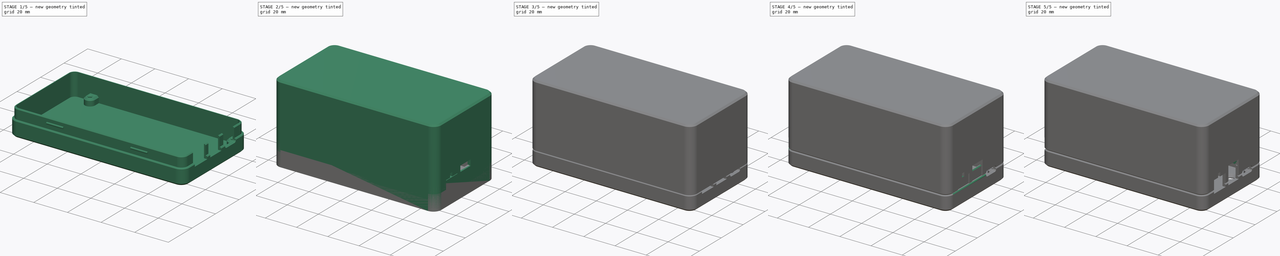
[diagram: build sequence overview — one tinted view per stage of 5, left to right]
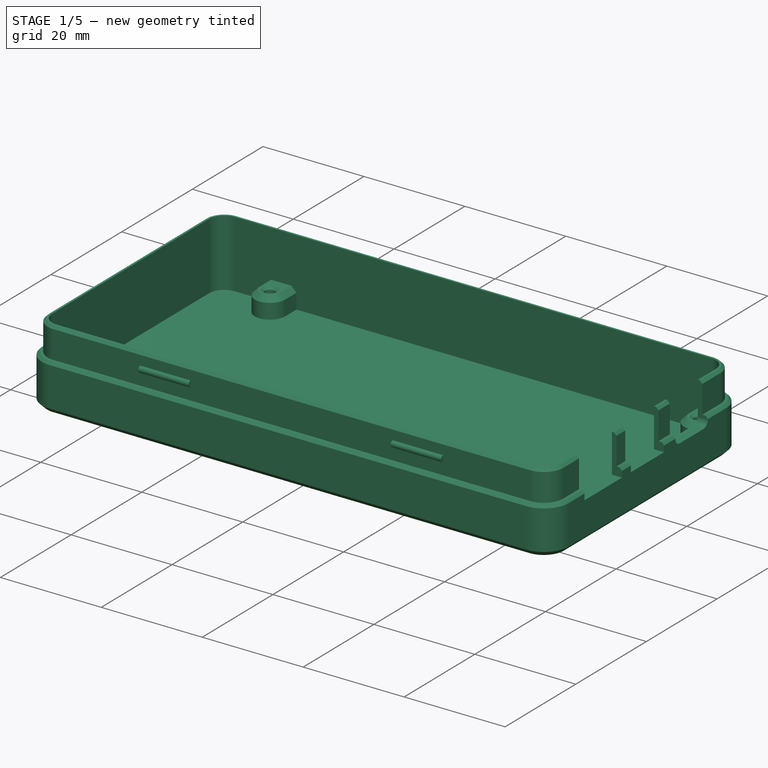
[diagram: stage 1 of 5 — iso view after this stage's code; geometry added in this stage tinted green]
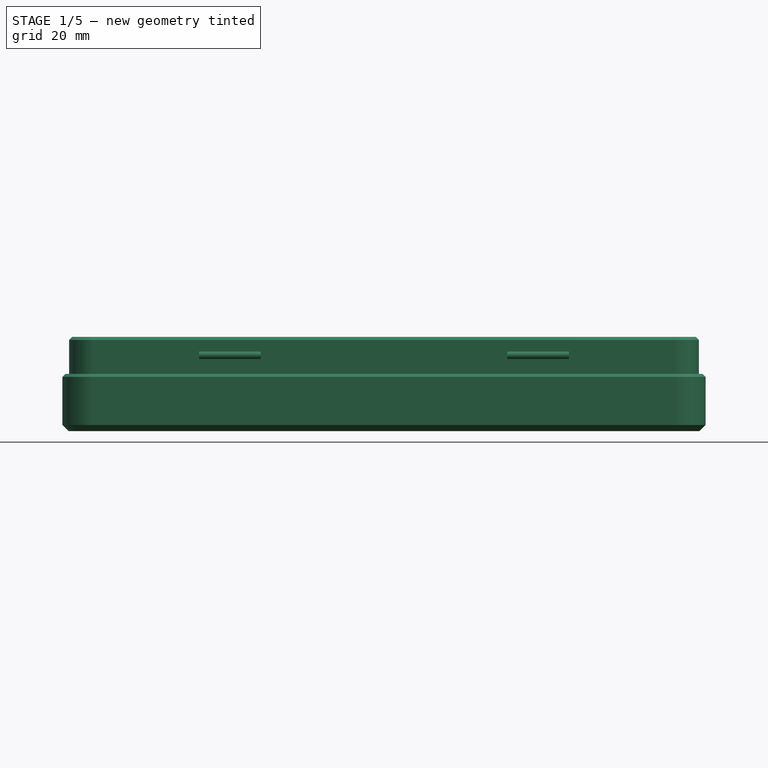
[diagram: stage 1 of 5 — front view after this stage's code; geometry added in this stage tinted green]
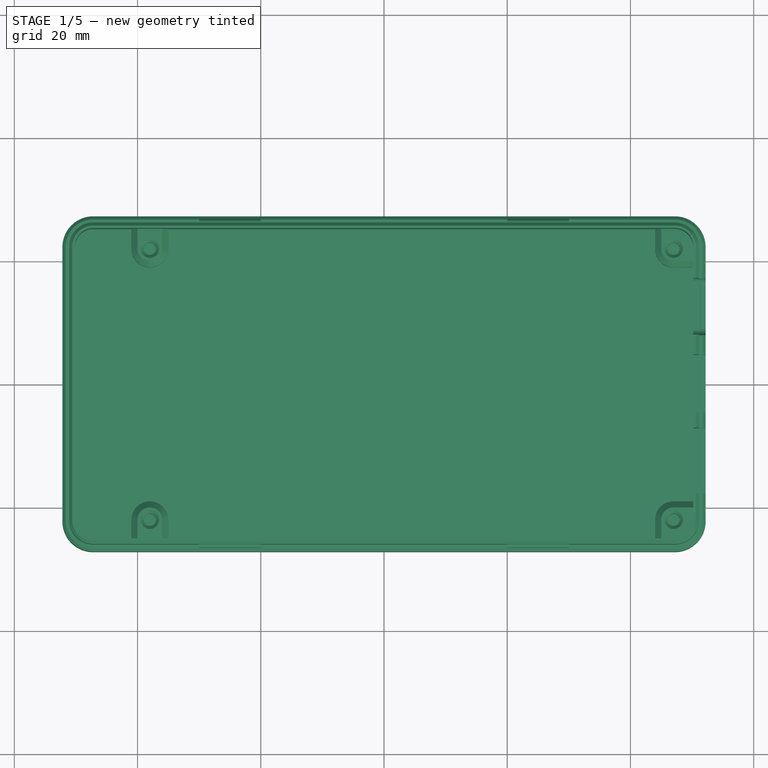
[diagram: stage 1 of 5 — top view after this stage's code; geometry added in this stage tinted green]
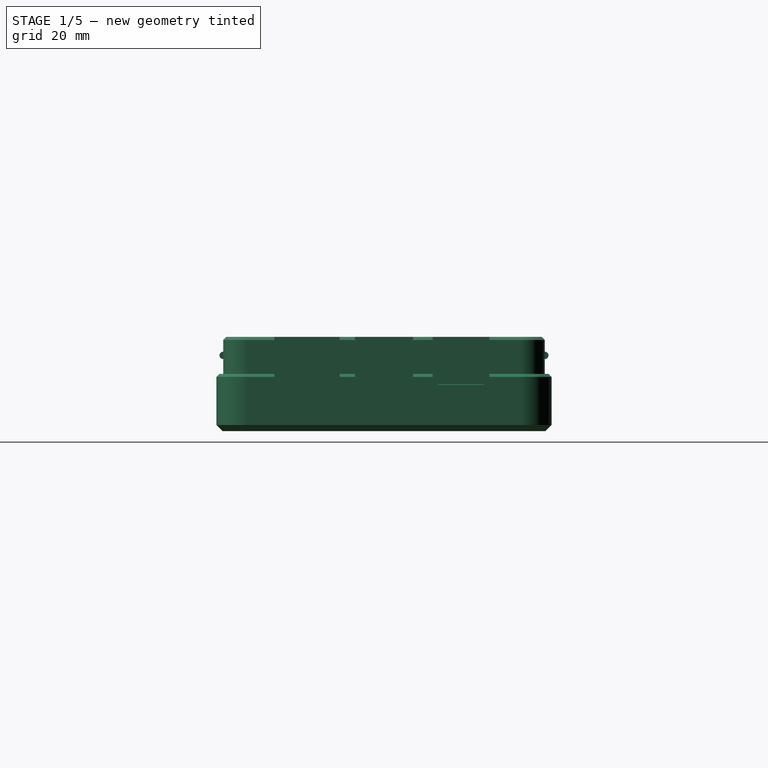
[diagram: stage 1 of 5 — right view after this stage's code; geometry added in this stage tinted green]
FCSTD DOCUMENT  (FreeCAD 0.20R24436 (Git))
Label: ESP-Hiro
License: All rights reserved
LicenseURL: http://en.wikipedia.org/wiki/All_rights_reserved
objects: App::Part×376, Part::Feature×372, Sketcher::SketchObject×83, PartDesign::Pocket×68, PartDesign::Mirrored×44, PartDesign::Chamfer×31, PartDesign::Pad×24, PartDesign::Plane×19, PartDesign::MultiTransform×17, PartDesign::Body×7, Spreadsheet::Sheet×1
note: 788 computed .brp shape members not serialized (recipe doc carries the construction recipe); baked Part::Feature solids carry a one-line shape summary decoded from their .brp

FEATURE [Part::Feature] Part__Feature  label="SOLID"
  shape: bbox 1.6 x 0.8 x 0.8 mm, 28 faces (baked)
FEATURE [App::Part] C_0603_1608Metric
  Group = -> [Part__Feature]
  Origin = -> Origin
  Placement = pos=(86.387,15.491,1.65) rot=(0,0,-1;1.5708rad)
FEATURE [Part::Feature] Part__Feature001  label="SOLID001"
  shape: bbox 1.6 x 0.8 x 0.8 mm, 28 faces (baked)
FEATURE [App::Part] C_0603_1608Metric001
  Group = -> [Part__Feature001]
  Origin = -> Origin001
  Placement = pos=(77.243,15.699,1.65) rot=(0,0,1;1.5708rad)
FEATURE [Part::Feature] Part__Feature002  label="SOLID002"
  shape: bbox 1.6 x 0.8 x 0.8 mm, 28 faces (baked)
FEATURE [App::Part] C_0603_1608Metric002
  Group = -> [Part__Feature002]
  Origin = -> Origin002
  Placement = pos=(86.387,18.552,1.65) rot=(0,0,1;1.5708rad)
FEATURE [Part::Feature] Part__Feature003  label="SOLID003"
  shape: bbox 1.6 x 0.8 x 0.8 mm, 28 faces (baked)
FEATURE [App::Part] C_0603_1608Metric003
  Group = -> [Part__Feature003]
  Origin = -> Origin003
  Placement = pos=(77.243,18.76,1.65) rot=(0,0,1;1.5708rad)
FEATURE [Part::Feature] Part__Feature004  label="SOLID004"
  shape: bbox 1.6 x 0.8 x 0.8 mm, 28 faces (baked)
FEATURE [App::Part] C_0603_1608Metric004
  Group = -> [Part__Feature004]
  Origin = -> Origin004
  Placement = pos=(75.719,18.76,1.65) rot=(0,0,1;1.5708rad)
FEATURE [Part::Feature] Part__Feature005  label="SOLID005"
  shape: bbox 3.2 x 1.6 x 1.6 mm, 28 faces (baked)
FEATURE [App::Part] C_1206_3216Metric
  Group = -> [Part__Feature005]
  Origin = -> Origin005
  Placement = pos=(68.099,19.589,1.65) rot=(0,0,1;1.5708rad)
FEATURE [Part::Feature] Part__Feature006  label="SOLID006"
  shape: bbox 3.2 x 1.6 x 1.6 mm, 28 faces (baked)
FEATURE [App::Part] C_1206_3216Metric001
  Group = -> [Part__Feature006]
  Origin = -> Origin006
  Placement = pos=(70.639,19.589,1.65) rot=(0,0,1;1.5708rad)
FEATURE [Part::Feature] Part__Feature007  label="SOLID007"
  shape: bbox 1.6 x 0.8 x 0.8 mm, 28 faces (baked)
FEATURE [App::Part] C_0603_1608Metric005
  Group = -> [Part__Feature007]
  Origin = -> Origin007
  Placement = pos=(32.193,41.158,1.65) rot=(0,0,1;0rad)
FEATURE [Part::Feature] Part__Feature008  label="SOLID008"
  shape: bbox 1.6 x 0.8 x 0.8 mm, 28 faces (baked)
FEATURE [App::Part] C_0603_1608Metric006
  Group = -> [Part__Feature008]
  Origin = -> Origin008
  Placement = pos=(32.193,27.061,1.65) rot=(0,0,1;0rad)
FEATURE [Part::Feature] Part__Feature009  label="SOLID009"
  shape: bbox 1.6 x 0.8 x 0.8 mm, 28 faces (baked)
FEATURE [App::Part] C_0603_1608Metric007
  Group = -> [Part__Feature009]
  Origin = -> Origin009
  Placement = pos=(60.26,11.694,1.65) rot=(0,0,1;1.5708rad)
FEATURE [Part::Feature] Part__Feature010  label="SOLID010"
  shape: bbox 1.6 x 0.8 x 0.8 mm, 28 faces (baked)
FEATURE [App::Part] C_0603_1608Metric008
  Group = -> [Part__Feature010]
  Origin = -> Origin010
  Placement = pos=(53.783,11.694,1.65) rot=(0,0,1;1.5708rad)
FEATURE [Part::Feature] Part__Feature011  label="SOLID011"
  shape: bbox 6.703 x 6.325 x 2.22 mm, 41 faces (baked)
FEATURE [App::Part] D_SMA
  Group = -> [Part__Feature011]
  Origin = -> Origin011
  Placement = pos=(79.564,12.397,1.65) rot=(0,0,1;0rad)
FEATURE [Part::Feature] Part__Feature012  label="SOLID012"
  shape: bbox 3.18 x 3.679 x 1.2 mm, 76 faces (baked)
FEATURE [App::Part] SOT_23  label="SOT-23"
  Group = -> [Part__Feature012]
  Origin = -> Origin012
  Placement = pos=(10.9055,41.92,1.65) rot=(0,0,1;3.14159rad)
FEATURE [Part::Feature] Part__Feature013  label="SOLID013"
  shape: bbox 1.6 x 0.8 x 0.45 mm, 26 faces (baked)
FEATURE [App::Part] R_0603_1608Metric
  Group = -> [Part__Feature013]
  Origin = -> Origin013
  Placement = pos=(76.481,21.046,1.65) rot=(0,0,1;3.14159rad)
FEATURE [Part::Feature] Part__Feature014  label="SOLID014"
  shape: bbox 1.6 x 0.8 x 0.45 mm, 26 faces (baked)
FEATURE [App::Part] R_0603_1608Metric001
  Group = -> [Part__Feature014]
  Origin = -> Origin014
  Placement = pos=(72.671,18.735,1.65) rot=(0,0,1;1.5708rad)
FEATURE [Part::Feature] Part__Feature015  label="SOLID015"
  shape: bbox 1.6 x 0.8 x 0.45 mm, 26 faces (baked)
FEATURE [App::Part] R_0603_1608Metric002
  Group = -> [Part__Feature015]
  Origin = -> Origin015
  Placement = pos=(74.195,18.735,1.65) rot=(0,0,1;1.5708rad)
FEATURE [Part::Feature] Part__Feature016  label="SOLID016"
  shape: bbox 1.6 x 0.8 x 0.45 mm, 26 faces (baked)
FEATURE [App::Part] R_0603_1608Metric003
  Group = -> [Part__Feature016]
  Origin = -> Origin016
  Placement = pos=(73.433,21.046,1.65) rot=(0,0,1;0rad)
FEATURE [Part::Feature] Part__Feature017  label="SOLID017"
  shape: bbox 1.6 x 0.8 x 0.45 mm, 26 faces (baked)
FEATURE [App::Part] R_0603_1608Metric004
  Group = -> [Part__Feature017]
  Origin = -> Origin017
  Placement = pos=(61.657,33.982,1.65) rot=(0,0,1;1.5708rad)
FEATURE [Part::Feature] Part__Feature018  label="SOLID018"
  shape: bbox 1.6 x 0.8 x 0.45 mm, 26 faces (baked)
FEATURE [App::Part] R_0603_1608Metric005
  Group = -> [Part__Feature018]
  Origin = -> Origin018
  Placement = pos=(63.181,33.982,1.65) rot=(0,0,1;1.5708rad)
FEATURE [Part::Feature] Part__Feature019  label="SOLID019"
  shape: bbox 1.6 x 0.8 x 0.45 mm, 26 faces (baked)
FEATURE [App::Part] R_0603_1608Metric006
  Group = -> [Part__Feature019]
  Origin = -> Origin019
  Placement = pos=(56.831,33.157,1.65) rot=(0,0,1;3.14159rad)
FEATURE [Part::Feature] Part__Feature020  label="SOLID020"
  shape: bbox 1.6 x 0.8 x 0.45 mm, 26 faces (baked)
FEATURE [App::Part] R_0603_1608Metric007
  Group = -> [Part__Feature020]
  Origin = -> Origin020
  Placement = pos=(56.831,31.125,1.65) rot=(0,0,1;3.14159rad)
FEATURE [Part::Feature] Part__Feature021  label="SOLID021"
  shape: bbox 1.6 x 0.8 x 0.45 mm, 26 faces (baked)
FEATURE [App::Part] R_0603_1608Metric008
  Group = -> [Part__Feature021]
  Origin = -> Origin021
  Placement = pos=(32.193,37.094,1.65) rot=(0,0,1;0rad)
FEATURE [Part::Feature] Part__Feature022  label="SOLID022"
  shape: bbox 1.6 x 0.8 x 0.45 mm, 26 faces (baked)
FEATURE [App::Part] R_0603_1608Metric009
  Group = -> [Part__Feature022]
  Origin = -> Origin022
  Placement = pos=(32.193,39.126,1.65) rot=(0,0,1;0rad)
FEATURE [Part::Feature] Part__Feature023  label="SOLID023"
  shape: bbox 1.6 x 0.8 x 0.45 mm, 26 faces (baked)
FEATURE [App::Part] R_0603_1608Metric010
  Group = -> [Part__Feature023]
  Origin = -> Origin023
  Placement = pos=(56.831,29.093,1.65) rot=(0,0,1;3.14159rad)
FEATURE [Part::Feature] Part__Feature024  label="SOLID024"
  shape: bbox 1.6 x 0.8 x 0.45 mm, 26 faces (baked)
FEATURE [App::Part] R_0603_1608Metric011
  Group = -> [Part__Feature024]
  Origin = -> Origin024
  Placement = pos=(19.747,9.916,1.65) rot=(0,0,-1;1.5708rad)
FEATURE [Part::Feature] Part__Feature025  label="SOLID025"
  shape: bbox 1.6 x 0.8 x 0.45 mm, 26 faces (baked)
FEATURE [App::Part] R_0603_1608Metric012
  Group = -> [Part__Feature025]
  Origin = -> Origin025
  Placement = pos=(19.747,13.218,1.65) rot=(0,0,-1;1.5708rad)
FEATURE [Part::Feature] Part__Feature026  label="SOLID026"
  shape: bbox 1.6 x 0.8 x 0.45 mm, 26 faces (baked)
FEATURE [App::Part] R_0603_1608Metric013
  Group = -> [Part__Feature026]
  Origin = -> Origin026
  Placement = pos=(14.6416,41.0056,1.65) rot=(0,0,1;0rad)
FEATURE [Part::Feature] Part__Feature027  label="SOLID027"
  shape: bbox 1.6 x 0.8 x 0.45 mm, 26 faces (baked)
FEATURE [App::Part] R_0603_1608Metric014
  Group = -> [Part__Feature027]
  Origin = -> Origin027
  Placement = pos=(14.667,36.84,1.65) rot=(0,0,1;0rad)
FEATURE [Part::Feature] Part__Feature028  label="SOLID028"
  shape: bbox 1.6 x 0.8 x 0.45 mm, 26 faces (baked)
FEATURE [App::Part] R_0603_1608Metric015
  Group = -> [Part__Feature028]
  Origin = -> Origin028
  Placement = pos=(14.6939,29.8068,1.65) rot=(0,0,1;0rad)
FEATURE [Part::Feature] Part__Feature029  label="SOLID029"
  shape: bbox 1.6 x 0.8 x 0.45 mm, 26 faces (baked)
FEATURE [App::Part] R_0603_1608Metric016
  Group = -> [Part__Feature029]
  Origin = -> Origin029
  Placement = pos=(14.6924,15.217,1.65) rot=(0,0,1;0rad)
FEATURE [Part::Feature] Part__Feature030  label="SOLID030"
  shape: bbox 1.6 x 0.8 x 0.45 mm, 26 faces (baked)
FEATURE [App::Part] R_0603_1608Metric017
  Group = -> [Part__Feature030]
  Origin = -> Origin030
  Placement = pos=(14.6416,10.8304,1.65) rot=(0,0,1;0rad)
FEATURE [Part::Feature] Part__Feature031  label="SOLID031"
  shape: bbox 1.6 x 0.8 x 0.45 mm, 26 faces (baked)
FEATURE [App::Part] R_0603_1608Metric018
  Group = -> [Part__Feature031]
  Origin = -> Origin031
  Placement = pos=(14.5908,42.8852,1.65) rot=(0,0,1;3.14159rad)
FEATURE [Part::Feature] Part__Feature032  label="SOLID032"
  shape: bbox 1.6 x 0.8 x 0.45 mm, 26 faces (baked)
FEATURE [App::Part] R_0603_1608Metric019
  Group = -> [Part__Feature032]
  Origin = -> Origin032
  Placement = pos=(14.667,38.618,1.65) rot=(0,0,1;3.14159rad)
FEATURE [Part::Feature] Part__Feature033  label="SOLID033"
  shape: bbox 1.6 x 0.8 x 0.45 mm, 26 faces (baked)
FEATURE [App::Part] R_0603_1608Metric020
  Group = -> [Part__Feature033]
  Origin = -> Origin033
  Placement = pos=(14.6939,31.534,1.65) rot=(0,0,1;3.14159rad)
FEATURE [Part::Feature] Part__Feature034  label="SOLID034"
  shape: bbox 1.6 x 0.8 x 0.45 mm, 26 faces (baked)
FEATURE [App::Part] R_0603_1608Metric021
  Group = -> [Part__Feature034]
  Origin = -> Origin034
  Placement = pos=(14.7046,16.9442,1.65) rot=(0,0,1;3.14159rad)
FEATURE [Part::Feature] Part__Feature035  label="SOLID035"
  shape: bbox 1.6 x 0.8 x 0.45 mm, 26 faces (baked)
FEATURE [App::Part] R_0603_1608Metric022
  Group = -> [Part__Feature035]
  Origin = -> Origin035
  Placement = pos=(14.6294,12.5068,1.65) rot=(0,0,1;3.14159rad)
FEATURE [Part::Feature] Part__Feature036  label="SOLID036"
  shape: bbox 7.934 x 7.979 x 1.75 mm, 156 faces (baked)
FEATURE [App::Part] SOIC_8_3_9x4_9mm_P1_27mm  label="SOIC-8_3.9x4.9mm_P1.27mm"
  Group = -> [Part__Feature036]
  Origin = -> Origin036
  Placement = pos=(81.85,17.126,1.65) rot=(0,0,1;3.14159rad)
FEATURE [Part::Feature] Part__Feature037  label="SOLID037"
  shape: bbox 10.49 x 10.45 x 13.1 mm, 52 faces (baked)
FEATURE [App::Part] CixiKefa_KF2EDGK_2_54_4xPlug  label="CixiKefa_KF2EDGK_2.54_4xPlug"
  Group = -> [Part__Feature037]
  Origin = -> Origin037
  Placement = pos=(73.808,45.6,1.65) rot=(0,0,1;3.14159rad)
FEATURE [Part::Feature] Part__Feature038  label="COMPOUND"
  shape: bbox 11.96 x 8.1 x 13.6 mm, 57 faces, 2 solids (baked)
FEATURE [App::Part] CixiKefa_KF2EDGV_2_54_4xSocket  label="CixiKefa_KF2EDGV_2.54_4xSocket"
  Group = -> [Part__Feature038]
  Origin = -> Origin038
  Placement = pos=(73.808,45.6,1.65) rot=(0,0,1;3.14159rad)
FEATURE [Part::Feature] Part__Feature039  label="SOLID038"
  shape: bbox 3.494 x 3.773 x 1.55 mm, 109 faces (baked)
FEATURE [App::Part] SOT_23_5  label="SOT-23-5"
  Group = -> [Part__Feature039]
  Origin = -> Origin039
  Placement = pos=(56.99,11.694,1.65) rot=(0,0,1;3.14159rad)
FEATURE [Part::Feature] Part__Feature040  label="SOLID039"
  shape: bbox 1.6 x 0.8 x 0.8 mm, 28 faces (baked)
FEATURE [App::Part] C_0603_1608Metric009
  Group = -> [Part__Feature040]
  Origin = -> Origin040
  Placement = pos=(90.994,39.888,1.65) rot=(0,0,-1;1.5708rad)
FEATURE [Part::Feature] Part__Feature041  label="SOLID040"
  shape: bbox 3.2 x 1.6 x 1.6 mm, 28 faces (baked)
FEATURE [App::Part] C_1206_3216Metric002
  Group = -> [Part__Feature041]
  Origin = -> Origin041
  Placement = pos=(80,29.601,1.65) rot=(0,0,1;3.14159rad)
FEATURE [Part::Feature] Part__Feature042  label="SOLID041"
  shape: bbox 1.6 x 0.8 x 0.8 mm, 28 faces (baked)
FEATURE [App::Part] C_0603_1608Metric010
  Group = -> [Part__Feature042]
  Origin = -> Origin042
  Placement = pos=(89.597,33.919,1.65) rot=(0,0,1;3.14159rad)
FEATURE [Part::Feature] Part__Feature043  label="SOLID042"
  shape: bbox 6.703 x 6.325 x 2.22 mm, 41 faces (baked)
FEATURE [App::Part] D_SMA001
  Group = -> [Part__Feature043]
  Origin = -> Origin043
  Placement = pos=(84.39,25.6502,1.65) rot=(0,0,1;1.5708rad)
FEATURE [Part::Feature] Part__Feature044  label="SOLID043"
  shape: bbox 3.18 x 3.679 x 1.2 mm, 76 faces (baked)
FEATURE [App::Part] SOT_23001  label="SOT-024"
  Group = -> [Part__Feature044]
  Origin = -> Origin044
  Placement = pos=(74.928,32.1415,1.65) rot=(0,0,1;3.14159rad)
FEATURE [Part::Feature] Part__Feature045  label="SOLID044"
  shape: bbox 3.18 x 3.679 x 1.2 mm, 76 faces (baked)
FEATURE [App::Part] SOT_23002  label="SOT-025"
  Group = -> [Part__Feature045]
  Origin = -> Origin045
  Placement = pos=(74.928,37.284,1.65) rot=(0,0,1;3.14159rad)
FEATURE [Part::Feature] Part__Feature046  label="SOLID045"
  shape: bbox 1.6 x 0.8 x 0.45 mm, 26 faces (baked)
FEATURE [App::Part] R_0603_1608Metric023
  Group = -> [Part__Feature046]
  Origin = -> Origin046
  Placement = pos=(93.026,45.73,1.65) rot=(0,0,1;1.5708rad)
FEATURE [Part::Feature] Part__Feature047  label="SOLID046"
  shape: bbox 1.6 x 0.8 x 0.45 mm, 26 faces (baked)
FEATURE [App::Part] R_0603_1608Metric024
  Group = -> [Part__Feature047]
  Origin = -> Origin047
  Placement = pos=(95.375,30.49,1.65) rot=(0,0,1;3.14159rad)
FEATURE [Part::Feature] Part__Feature048  label="SOLID047"
  shape: bbox 1.6 x 0.8 x 0.45 mm, 26 faces (baked)
FEATURE [App::Part] R_0603_1608Metric025
  Group = -> [Part__Feature048]
  Origin = -> Origin048
  Placement = pos=(78.675,35.76,1.65) rot=(0,0,-1;1.5708rad)
FEATURE [Part::Feature] Part__Feature049  label="SOLID048"
  shape: bbox 1.6 x 0.8 x 0.45 mm, 26 faces (baked)
FEATURE [App::Part] R_0603_1608Metric026
  Group = -> [Part__Feature049]
  Origin = -> Origin049
  Placement = pos=(74.674,29.6015,1.65) rot=(0,0,1;3.14159rad)
FEATURE [Part::Feature] Part__Feature050  label="SOLID049"
  shape: bbox 1.6 x 0.8 x 0.45 mm, 26 faces (baked)
FEATURE [App::Part] R_0603_1608Metric027
  Group = -> [Part__Feature050]
  Origin = -> Origin050
  Placement = pos=(74.674,34.744,1.65) rot=(0,0,1;3.14159rad)
FEATURE [Part::Feature] Part__Feature051  label="SOLID050"
  shape: bbox 5 x 5 x 0.92 mm, 182 faces (baked)
FEATURE [App::Part] QFN_28_1EP_5x5mm_P0_5mm_EP3_35x3_35mm  label="QFN-28-1EP_5x5mm_P0.5mm_EP3.35x3.35mm"
  Group = -> [Part__Feature051]
  Origin = -> Origin051
  Placement = pos=(84.263,37.25,1.65) rot=(0,0,1;3.14159rad)
FEATURE [Part::Feature] Part__Feature052  label="SOLID051"
  shape: bbox 11.32 x 7.9 x 3.91 mm, 144 faces (baked)
FEATURE [App::Part] XUNPU_TYPEC_304S_ACP16  label="XUNPU TYPEC-304S-ACP16"
  Group = -> [Part__Feature052]
  Origin = -> Origin052
  Placement = pos=(97.45,37.5,1.65) rot=(0,0,-1;1.5708rad)
FEATURE [Part::Feature] Part__Feature053  label="SOLID052"
  shape: bbox 10.16 x 12 x 12.6 mm, 63 faces (baked)
FEATURE [App::Part] Cixi_Kefa_Elec_KF2EDGR_5_08_2P  label="Cixi Kefa Elec KF2EDGR-5.08-2P"
  Group = -> [Part__Feature053]
  Origin = -> Origin053
  Placement = pos=(4.41,7.23,1.65) rot=(0,0,-1;1.5708rad)
FEATURE [Part::Feature] Part__Feature054  label="COMPOUND001"
  shape: bbox 12.7 x 18.22 x 15.62 mm, 487 faces, 8 solids (baked)
FEATURE [App::Part] __08_Terminal_2Pin_Plug  label="5.08_Terminal_2Pin_Plug"
  Group = -> [Part__Feature054]
  Origin = -> Origin054
  Placement = pos=(-10.85,4.69,6.28) rot=(0,0,-1;1.5708rad)
FEATURE [Part::Feature] Part__Feature055  label="SOLID053"
  shape: bbox 10.16 x 12 x 12.6 mm, 63 faces (baked)
FEATURE [App::Part] Cixi_Kefa_Elec_KF2EDGR_5_08_2P001  label="Cixi Kefa Elec KF2EDGR-5.08-2P001"
  Group = -> [Part__Feature055]
  Origin = -> Origin055
  Placement = pos=(4.41,37.71,1.65) rot=(0,0,-1;1.5708rad)
FEATURE [Part::Feature] Part__Feature056  label="COMPOUND002"
  shape: bbox 12.7 x 18.22 x 15.62 mm, 487 faces, 8 solids (baked)
FEATURE [App::Part] __08_Terminal_2Pin_Plug001  label="5.08_Terminal_2Pin_Plug001"
  Group = -> [Part__Feature056]
  Origin = -> Origin056
  Placement = pos=(-10.85,35.17,6.28) rot=(0,0,-1;1.5708rad)
FEATURE [Part::Feature] Part__Feature057  label="SOLID054"
  shape: bbox 10.16 x 12 x 12.6 mm, 63 faces (baked)
FEATURE [App::Part] Cixi_Kefa_Elec_KF2EDGR_5_08_2P002  label="Cixi Kefa Elec KF2EDGR-5.08-2P002"
  Group = -> [Part__Feature057]
  Origin = -> Origin057
  Placement = pos=(4.41,47.87,1.65) rot=(0,0,-1;1.5708rad)
FEATURE [Part::Feature] Part__Feature058  label="COMPOUND003"
  shape: bbox 12.7 x 18.22 x 15.62 mm, 487 faces, 8 solids (baked)
FEATURE [App::Part] __08_Terminal_2Pin_Plug002  label="5.08_Terminal_2Pin_Plug002"
  Group = -> [Part__Feature058]
  Origin = -> Origin058
  Placement = pos=(-10.85,45.33,6.28) rot=(0,0,-1;1.5708rad)
FEATURE [Part::Feature] Part__Feature059  label="SOLID055"
  shape: bbox 10.16 x 12 x 12.6 mm, 63 faces (baked)
FEATURE [App::Part] Cixi_Kefa_Elec_KF2EDGR_5_08_2P003  label="Cixi Kefa Elec KF2EDGR-5.08-2P003"
  Group = -> [Part__Feature059]
  Origin = -> Origin059
  Placement = pos=(4.41,27.55,1.65) rot=(0,0,-1;1.5708rad)
FEATURE [Part::Feature] Part__Feature060  label="COMPOUND004"
  shape: bbox 12.7 x 18.22 x 15.62 mm, 487 faces, 8 solids (baked)
FEATURE [App::Part] __08_Terminal_2Pin_Plug003  label="5.08_Terminal_2Pin_Plug003"
  Group = -> [Part__Feature060]
  Origin = -> Origin060
  Placement = pos=(-10.85,25.01,6.28) rot=(0,0,-1;1.5708rad)
FEATURE [Part::Feature] Part__Feature061  label="SOLID056"
  shape: bbox 10.16 x 12 x 12.6 mm, 63 faces (baked)
FEATURE [App::Part] Cixi_Kefa_Elec_KF2EDGR_5_08_2P004  label="Cixi Kefa Elec KF2EDGR-5.08-2P004"
  Group = -> [Part__Feature061]
  Origin = -> Origin061
  Placement = pos=(4.41,17.39,1.65) rot=(0,0,-1;1.5708rad)
FEATURE [Part::Feature] Part__Feature062  label="COMPOUND005"
  shape: bbox 12.7 x 18.22 x 15.62 mm, 487 faces, 8 solids (baked)
FEATURE [App::Part] __08_Terminal_2Pin_Plug004  label="5.08_Terminal_2Pin_Plug004"
  Group = -> [Part__Feature062]
  Origin = -> Origin062
  Placement = pos=(-10.85,14.85,6.28) rot=(0,0,-1;1.5708rad)
FEATURE [Part::Feature] Part__Feature063  label="COMPOUND006"
  shape: bbox 6.6 x 7.1 x 3 mm, 42 faces, 3 solids (baked)
FEATURE [App::Part] Sunltech_SLO0630H
  Group = -> [Part__Feature063]
  Origin = -> Origin063
  Placement = pos=(70.6732,13.2358,1.65) rot=(0,0,-1;1.5708rad)
FEATURE [Part::Feature] Part__Feature064  label="SOLID057"
  shape: bbox 3.18 x 3.679 x 1.2 mm, 76 faces (baked)
FEATURE [App::Part] SOT_23003  label="SOT-026"
  Group = -> [Part__Feature064]
  Origin = -> Origin064
  Placement = pos=(10.857,37.729,1.65) rot=(0,0,1;3.14159rad)
FEATURE [Part::Feature] Part__Feature065  label="SOLID058"
  shape: bbox 10.49 x 10.45 x 13.1 mm, 52 faces (baked)
FEATURE [App::Part] CixiKefa_KF2EDGK_2_54_4xPlug001  label="CixiKefa_KF2EDGK_2.54_4xPlug001"
  Group = -> [Part__Feature065]
  Origin = -> Origin065
  Placement = pos=(46.314,4.437,1.65) rot=(0,0,1;0rad)
FEATURE [Part::Feature] Part__Feature066  label="COMPOUND007"
  shape: bbox 11.96 x 8.1 x 13.6 mm, 57 faces, 2 solids (baked)
FEATURE [App::Part] CixiKefa_KF2EDGV_2_54_4xSocket001  label="CixiKefa_KF2EDGV_2.54_4xSocket001"
  Group = -> [Part__Feature066]
  Origin = -> Origin066
  Placement = pos=(46.314,4.437,1.65) rot=(0,0,1;0rad)
FEATURE [Part::Feature] Part__Feature067  label="SOLID059"
  shape: bbox 1.6 x 0.8 x 0.45 mm, 26 faces (baked)
FEATURE [App::Part] R_0603_1608Metric028
  Group = -> [Part__Feature067]
  Origin = -> Origin067
  Placement = pos=(26.669,9.662,1.65) rot=(0,0,1;0rad)
FEATURE [Part::Feature] Part__Feature068  label="SOLID060"
  shape: bbox 3.18 x 3.679 x 1.2 mm, 76 faces (baked)
FEATURE [App::Part] SOT_23004  label="SOT-027"
  Group = -> [Part__Feature068]
  Origin = -> Origin068
  Placement = pos=(10.9332,11.694,1.65) rot=(0,0,1;3.14159rad)
FEATURE [Part::Feature] Part__Feature069  label="COMPOUND008"
  shape: bbox 17.69 x 24.3 x 3.402 mm, 3507 faces (baked)
FEATURE [App::Part] ESP_12_E_better  label="ESP-12-E-better"
  Group = -> [Part__Feature069]
  Origin = -> Origin069
  Placement = pos=(37.95,40.992,1.65) rot=(0,0,1;0rad)
FEATURE [Part::Feature] Part__Feature070  label="SOLID061"
  shape: bbox 1.6 x 0.8 x 0.8 mm, 28 faces (baked)
FEATURE [App::Part] C_0603_1608Metric011
  Group = -> [Part__Feature070]
  Origin = -> Origin070
  Placement = pos=(74.915,3.914,1.65) rot=(0,0,1;3.14159rad)
FEATURE [Part::Feature] Part__Feature071  label="SOLID062"
  shape: bbox 1.6 x 0.8 x 0.45 mm, 26 faces (baked)
FEATURE [App::Part] R_0603_1608Metric029
  Group = -> [Part__Feature071]
  Origin = -> Origin071
  Placement = pos=(23.621,9.662,1.65) rot=(0,0,1;3.14159rad)
FEATURE [Part::Feature] Part__Feature072  label="SOLID063"
  shape: bbox 10.49 x 10.45 x 13.1 mm, 52 faces (baked)
FEATURE [App::Part] CixiKefa_KF2EDGK_2_54_4xPlug002  label="CixiKefa_KF2EDGK_2.54_4xPlug002"
  Group = -> [Part__Feature072]
  Origin = -> Origin072
  Placement = pos=(34.122,4.4,1.65) rot=(0,0,1;0rad)
FEATURE [Part::Feature] Part__Feature073  label="COMPOUND009"
  shape: bbox 11.96 x 8.1 x 13.6 mm, 57 faces, 2 solids (baked)
FEATURE [App::Part] CixiKefa_KF2EDGV_2_54_4xSocket002  label="CixiKefa_KF2EDGV_2.54_4xSocket002"
  Group = -> [Part__Feature073]
  Origin = -> Origin073
  Placement = pos=(34.122,4.4,1.65) rot=(0,0,1;0rad)
FEATURE [Part::Feature] Part__Feature074  label="SOLID064"
  shape: bbox 6.703 x 6.325 x 2.22 mm, 41 faces (baked)
FEATURE [App::Part] D_SMA002
  Group = -> [Part__Feature074]
  Origin = -> Origin074
  Placement = pos=(63.358,13.7184,1.65) rot=(0,0,1;1.5708rad)
FEATURE [Part::Feature] Part__Feature075  label="SOLID065"
  shape: bbox 14.4 x 10.91 x 5.8 mm, 41 faces (baked)
FEATURE [App::Part] CP_Elec_6_3x5_8  label="CP_Elec_6.3x5.8"
  Group = -> [Part__Feature075]
  Origin = -> Origin075
  Placement = pos=(11.796,22.456,1.65) rot=(0,0,1;0rad)
FEATURE [Part::Feature] Part__Feature076  label="SOLID066"
  shape: bbox 10.49 x 10.45 x 13.1 mm, 52 faces (baked)
FEATURE [App::Part] CixiKefa_KF2EDGK_2_54_4xPlug003  label="CixiKefa_KF2EDGK_2.54_4xPlug003"
  Group = -> [Part__Feature076]
  Origin = -> Origin076
  Placement = pos=(61.616,45.6,1.65) rot=(0,0,1;3.14159rad)
FEATURE [Part::Feature] Part__Feature077  label="COMPOUND010"
  shape: bbox 11.96 x 8.1 x 13.6 mm, 57 faces, 2 solids (baked)
FEATURE [App::Part] CixiKefa_KF2EDGV_2_54_4xSocket003  label="CixiKefa_KF2EDGV_2.54_4xSocket003"
  Group = -> [Part__Feature077]
  Origin = -> Origin077
  Placement = pos=(61.616,45.6,1.65) rot=(0,0,1;3.14159rad)
FEATURE [Part::Feature] Part__Feature078  label="SOLID067"
  shape: bbox 3.18 x 3.679 x 1.2 mm, 76 faces (baked)
FEATURE [App::Part] SOT_23005  label="SOT-028"
  Group = -> [Part__Feature078]
  Origin = -> Origin078
  Placement = pos=(10.8585,30.645,1.65) rot=(0,0,1;3.14159rad)
FEATURE [Part::Feature] Part__Feature079  label="SOLID068"
  shape: bbox 10.16 x 12 x 12.6 mm, 63 faces (baked)
FEATURE [App::Part] Cixi_Kefa_Elec_KF2EDGR_5_08_2P005  label="Cixi Kefa Elec KF2EDGR-5.08-2P005"
  Group = -> [Part__Feature079]
  Origin = -> Origin079
  Placement = pos=(95.59,9.95,1.65) rot=(0,0,1;1.5708rad)
FEATURE [Part::Feature] Part__Feature080  label="COMPOUND011"
  shape: bbox 12.7 x 18.22 x 15.62 mm, 487 faces, 8 solids (baked)
FEATURE [App::Part] __08_Terminal_2Pin_Plug005  label="5.08_Terminal_2Pin_Plug005"
  Group = -> [Part__Feature080]
  Origin = -> Origin080
  Placement = pos=(110.85,12.49,6.28) rot=(0,0,1;1.5708rad)
FEATURE [Part::Feature] Part__Feature081  label="SOLID069"
  shape: bbox 1.6 x 0.8 x 0.8 mm, 28 faces (baked)
FEATURE [App::Part] C_0603_1608Metric012
  Group = -> [Part__Feature081]
  Origin = -> Origin081
  Placement = pos=(88.949,14.547,1.65) rot=(0,0,1;0rad)
FEATURE [Part::Feature] Part__Feature082  label="SOLID070"
  shape: bbox 10.49 x 10.45 x 13.1 mm, 52 faces (baked)
FEATURE [App::Part] CixiKefa_KF2EDGK_2_54_4xPlug004  label="CixiKefa_KF2EDGK_2.54_4xPlug004"
  Group = -> [Part__Feature082]
  Origin = -> Origin082
  Placement = pos=(21.93,4.4,1.65) rot=(0,0,1;0rad)
FEATURE [Part::Feature] Part__Feature083  label="COMPOUND012"
  shape: bbox 11.96 x 8.1 x 13.6 mm, 57 faces, 2 solids (baked)
FEATURE [App::Part] CixiKefa_KF2EDGV_2_54_4xSocket004  label="CixiKefa_KF2EDGV_2.54_4xSocket004"
  Group = -> [Part__Feature083]
  Origin = -> Origin083
  Placement = pos=(21.93,4.4,1.65) rot=(0,0,1;0rad)
FEATURE [Part::Feature] Part__Feature084  label="SOLID071"
  shape: bbox 9.764 x 9.961 x 1.2 mm, 336 faces (baked)
FEATURE [App::Part] TSSOP_20_4_4x6_5mm_P0_65mm  label="TSSOP-20_4.4x6.5mm_P0.65mm"
  Group = -> [Part__Feature084]
  Origin = -> Origin084
  Placement = pos=(68.896,6.106,1.65) rot=(0,0,1;3.14159rad)
FEATURE [Part::Feature] Part__Feature085  label="SOLID072"
  shape: bbox 9.4 x 14.9 x 14.5 mm, 67 faces (baked)
FEATURE [App::Part] KLDX_0202_A_rD2  label="KLDX-0202-A_rD2"
  Group = -> [Part__Feature085]
  Origin = -> Origin085
  Placement = pos=(102.5,25,1.65) rot=(0.57735,0.57735,0.57735;2.0944rad)
FEATURE [Part::Feature] Part__Feature086  label="SOLID073"
  shape: bbox 10.49 x 10.45 x 13.1 mm, 52 faces (baked)
FEATURE [App::Part] CixiKefa_KF2EDGK_2_54_4xPlug005  label="CixiKefa_KF2EDGK_2.54_4xPlug005"
  Group = -> [Part__Feature086]
  Origin = -> Origin086
  Placement = pos=(58.5,4.437,1.65) rot=(0,0,1;0rad)
FEATURE [Part::Feature] Part__Feature087  label="COMPOUND013"
  shape: bbox 11.96 x 8.1 x 13.6 mm, 57 faces, 2 solids (baked)
FEATURE [App::Part] CixiKefa_KF2EDGV_2_54_4xSocket005  label="CixiKefa_KF2EDGV_2.54_4xSocket005"
  Group = -> [Part__Feature087]
  Origin = -> Origin087
  Placement = pos=(58.5,4.437,1.65) rot=(0,0,1;0rad)
FEATURE [Part::Feature] Part__Feature088  label="SOLID074"
  shape: bbox 10.49 x 10.45 x 13.1 mm, 52 faces (baked)
FEATURE [App::Part] CixiKefa_KF2EDGK_2_54_4xPlug006  label="CixiKefa_KF2EDGK_2.54_4xPlug006"
  Group = -> [Part__Feature088]
  Origin = -> Origin088
  Placement = pos=(86,45.59,1.65) rot=(0,0,1;3.14159rad)
FEATURE [Part::Feature] Part__Feature089  label="COMPOUND014"
  shape: bbox 11.96 x 8.1 x 13.6 mm, 57 faces, 2 solids (baked)
FEATURE [App::Part] CixiKefa_KF2EDGV_2_54_4xSocket006  label="CixiKefa_KF2EDGV_2.54_4xSocket006"
  Group = -> [Part__Feature089]
  Origin = -> Origin089
  Placement = pos=(86,45.59,1.65) rot=(0,0,1;3.14159rad)
FEATURE [Part::Feature] Part__Feature090  label="SOLID075"
  shape: bbox 14.4 x 10.91 x 5.8 mm, 41 faces (baked)
FEATURE [App::Part] CP_Elec_6_3x5_8001  label="CP_Elec_6.3x5.009"
  Group = -> [Part__Feature090]
  Origin = -> Origin090
  Placement = pos=(88.2,10.17,1.65) rot=(0,0,1;3.14159rad)
FEATURE [Part::Feature] Part__Feature091  label="SOLID076"
  shape: bbox 3.18 x 3.679 x 1.2 mm, 76 faces (baked)
FEATURE [App::Part] SOT_23006  label="SOT-029"
  Group = -> [Part__Feature091]
  Origin = -> Origin091
  Placement = pos=(10.857,16.106,1.65) rot=(0,0,1;3.14159rad)
FEATURE [Part::Feature] Part__Feature092  label="COMPOUND015"
  shape: bbox 100 x 50 x 1.6 mm, 78 faces (baked)
FEATURE [App::Part] ESP_Hiro_1  label="ESP-Hiro_1"
  Group = -> [C_0603_1608Metric,C_0603_1608Metric001,C_0603_1608Metric002,C_0603_1608Metric003,C_0603_1608Metric004,C_1206_3216Metric,C_1206_3216Metric001,C_0603_1608Metric005,C_0603_1608Metric006,C_0603_1608Metric007,C_0603_1608Metric008,D_SMA,SOT_23,R_0603_1608Metric,R_0603_1608Metric001,R_0603_1608Metric002,R_0603_1608Metric003,R_0603_1608Metric004,R_0603_1608Metric005,R_0603_1608Metric006,+73 more]
  Origin = -> Origin092
  Placement = pos=(-50,-25,6) rot=(0,0,1;0rad)
FEATURE [Part::Feature] Part__Feature093  label="SOLID077"
  shape: bbox 3.2 x 1.6 x 1.6 mm, 28 faces (baked)
FEATURE [App::Part] C_1206_3216Metric003
  Group = -> [Part__Feature093]
  Origin = -> Origin096
  Placement = pos=(70.639,19.589,1.65) rot=(0,0,1;1.5708rad)
FEATURE [Part::Feature] Part__Feature094  label="SOLID078"
  shape: bbox 1.6 x 0.8 x 0.8 mm, 28 faces (baked)
FEATURE [App::Part] C_0603_1608Metric014
  Group = -> [Part__Feature094]
  Origin = -> Origin098
  Placement = pos=(86.387,15.491,1.65) rot=(0,0,-1;1.5708rad)
FEATURE [Part::Feature] Part__Feature095  label="SOLID079"
  shape: bbox 1.6 x 0.8 x 0.8 mm, 28 faces (baked)
FEATURE [App::Part] C_0603_1608Metric013
  Group = -> [Part__Feature095]
  Origin = -> Origin094
  Placement = pos=(77.243,18.76,1.65) rot=(0,0,1;1.5708rad)
FEATURE [Part::Feature] Part__Feature096  label="SOLID080"
  shape: bbox 1.6 x 0.8 x 0.8 mm, 28 faces (baked)
FEATURE [App::Part] C_0603_1608Metric016
  Group = -> [Part__Feature096]
  Origin = -> Origin099
  Placement = pos=(86.387,18.552,1.65) rot=(0,0,1;1.5708rad)
FEATURE [Part::Feature] Part__Feature097  label="SOLID081"
  shape: bbox 1.6 x 0.8 x 0.8 mm, 28 faces (baked)
FEATURE [App::Part] C_0603_1608Metric015
  Group = -> [Part__Feature097]
  Origin = -> Origin097
  Placement = pos=(75.719,18.76,1.65) rot=(0,0,1;1.5708rad)
FEATURE [Part::Feature] Part__Feature098  label="SOLID082"
  shape: bbox 1.6 x 0.8 x 0.8 mm, 28 faces (baked)
FEATURE [App::Part] C_0603_1608Metric017
  Group = -> [Part__Feature098]
  Origin = -> Origin093
  Placement = pos=(77.243,15.699,1.65) rot=(0,0,1;1.5708rad)
FEATURE [Part::Feature] Part__Feature099  label="SOLID083"
  shape: bbox 1.6 x 0.8 x 0.8 mm, 28 faces (baked)
FEATURE [Part::Feature] Part__Feature100  label="SOLID084"
  shape: bbox 10.49 x 10.45 x 13.1 mm, 52 faces (baked)
FEATURE [Part::Feature] Part__Feature101  label="SOLID085"
  shape: bbox 1.6 x 0.8 x 0.45 mm, 26 faces (baked)
FEATURE [Part::Feature] Part__Feature102  label="SOLID086"
  shape: bbox 10.16 x 12 x 12.6 mm, 63 faces (baked)
FEATURE [App::Part] Cixi_Kefa_Elec_KF2EDGR_5_08_2P007  label="Cixi Kefa Elec KF2EDGR-5.08-2P007"
  Group = -> [Part__Feature102]
  Origin = -> Origin104
  Placement = pos=(95.59,9.95,1.65) rot=(0,0,1;1.5708rad)
FEATURE [Part::Feature] Part__Feature103  label="COMPOUND016"
  shape: bbox 11.96 x 8.1 x 13.6 mm, 57 faces, 2 solids (baked)
FEATURE [Part::Feature] Part__Feature104  label="SOLID087"
  shape: bbox 10.16 x 12 x 12.6 mm, 63 faces (baked)
FEATURE [Part::Feature] Part__Feature105  label="SOLID088"
  shape: bbox 10.49 x 10.45 x 13.1 mm, 52 faces (baked)
FEATURE [App::Part] CixiKefa_KF2EDGK_2_54_4xPlug007  label="CixiKefa_KF2EDGK_2.54_4xPlug007"
  Group = -> [Part__Feature105]
  Origin = -> Origin107
  Placement = pos=(58.5,4.437,1.65) rot=(0,0,1;0rad)
FEATURE [Part::Feature] Part__Feature106  label="SOLID089"
  shape: bbox 10.49 x 10.45 x 13.1 mm, 52 faces (baked)
FEATURE [App::Part] CixiKefa_KF2EDGK_2_54_4xPlug008  label="CixiKefa_KF2EDGK_2.54_4xPlug008"
  Group = -> [Part__Feature106]
  Origin = -> Origin108
  Placement = pos=(61.616,45.6,1.65) rot=(0,0,1;3.14159rad)
FEATURE [Part::Feature] Part__Feature107  label="SOLID090"
  shape: bbox 3.18 x 3.679 x 1.2 mm, 76 faces (baked)
FEATURE [App::Part] SOT_23007  label="SOT-030"
  Group = -> [Part__Feature107]
  Origin = -> Origin109
  Placement = pos=(10.8585,30.645,1.65) rot=(0,0,1;3.14159rad)
FEATURE [App::Part] R_0603_1608Metric031
  Group = -> [Part__Feature101]
  Origin = -> Origin110
  Placement = pos=(26.669,9.662,1.65) rot=(0,0,1;0rad)
FEATURE [Part::Feature] Part__Feature108  label="COMPOUND017"
  shape: bbox 17.69 x 24.3 x 3.402 mm, 3507 faces (baked)
FEATURE [App::Part] ESP_12_E_better001  label="ESP-12-E-better001"
  Group = -> [Part__Feature108]
  Origin = -> Origin185
  Placement = pos=(37.95,40.992,1.65) rot=(0,0,1;0rad)
FEATURE [Part::Feature] Part__Feature109  label="SOLID091"
  shape: bbox 10.49 x 10.45 x 13.1 mm, 52 faces (baked)
FEATURE [App::Part] CixiKefa_KF2EDGK_2_54_4xPlug009  label="CixiKefa_KF2EDGK_2.54_4xPlug009"
  Group = -> [Part__Feature109]
  Origin = -> Origin112
  Placement = pos=(34.122,4.4,1.65) rot=(0,0,1;0rad)
FEATURE [Part::Feature] Part__Feature110  label="SOLID092"
  shape: bbox 3.18 x 3.679 x 1.2 mm, 76 faces (baked)
FEATURE [App::Part] SOT_23008  label="SOT-031"
  Group = -> [Part__Feature110]
  Origin = -> Origin113
  Placement = pos=(10.9332,11.694,1.65) rot=(0,0,1;3.14159rad)
FEATURE [Part::Feature] Part__Feature111  label="COMPOUND018"
  shape: bbox 11.96 x 8.1 x 13.6 mm, 57 faces, 2 solids (baked)
FEATURE [App::Part] CixiKefa_KF2EDGV_2_54_4xSocket007  label="CixiKefa_KF2EDGV_2.54_4xSocket007"
  Group = -> [Part__Feature111]
  Origin = -> Origin114
  Placement = pos=(46.314,4.437,1.65) rot=(0,0,1;0rad)
FEATURE [Part::Feature] Part__Feature112  label="COMPOUND019"
  shape: bbox 11.96 x 8.1 x 13.6 mm, 57 faces, 2 solids (baked)
FEATURE [App::Part] CixiKefa_KF2EDGV_2_54_4xSocket008  label="CixiKefa_KF2EDGV_2.54_4xSocket008"
  Group = -> [Part__Feature112]
  Origin = -> Origin115
  Placement = pos=(86,45.59,1.65) rot=(0,0,1;3.14159rad)
FEATURE [App::Part] CixiKefa_KF2EDGV_2_54_4xSocket009  label="CixiKefa_KF2EDGV_2.54_4xSocket009"
  Group = -> [Part__Feature103]
  Origin = -> Origin105
  Placement = pos=(34.122,4.4,1.65) rot=(0,0,1;0rad)
FEATURE [Part::Feature] Part__Feature113  label="SOLID093"
  shape: bbox 3.18 x 3.679 x 1.2 mm, 76 faces (baked)
FEATURE [App::Part] SOT_23009  label="SOT-032"
  Group = -> [Part__Feature113]
  Origin = -> Origin117
  Placement = pos=(10.857,37.729,1.65) rot=(0,0,1;3.14159rad)
FEATURE [Part::Feature] Part__Feature114  label="COMPOUND020"
  shape: bbox 12.7 x 18.22 x 15.62 mm, 487 faces, 8 solids (baked)
FEATURE [App::Part] __08_Terminal_2Pin_Plug008  label="5.08_Terminal_2Pin_Plug008"
  Group = -> [Part__Feature114]
  Origin = -> Origin116
  Placement = pos=(-10.85,45.33,6.28) rot=(0,0,-1;1.5708rad)
FEATURE [App::Part] Cixi_Kefa_Elec_KF2EDGR_5_08_2P008  label="Cixi Kefa Elec KF2EDGR-5.08-2P008"
  Group = -> [Part__Feature104]
  Origin = -> Origin118
  Placement = pos=(4.41,27.55,1.65) rot=(0,0,-1;1.5708rad)
FEATURE [Part::Feature] Part__Feature115  label="SOLID094"
  shape: bbox 1.6 x 0.8 x 0.45 mm, 26 faces (baked)
FEATURE [App::Part] R_0603_1608Metric030
  Group = -> [Part__Feature115]
  Origin = -> Origin103
  Placement = pos=(23.621,9.662,1.65) rot=(0,0,1;3.14159rad)
FEATURE [Part::Feature] Part__Feature116  label="SOLID095"
  shape: bbox 9.764 x 9.961 x 1.2 mm, 336 faces (baked)
FEATURE [App::Part] CixiKefa_KF2EDGK_2_54_4xPlug010  label="CixiKefa_KF2EDGK_2.54_4xPlug010"
  Group = -> [Part__Feature100]
  Origin = -> Origin120
  Placement = pos=(46.314,4.437,1.65) rot=(0,0,1;0rad)
FEATURE [Part::Feature] Part__Feature117  label="SOLID096"
  shape: bbox 10.16 x 12 x 12.6 mm, 63 faces (baked)
FEATURE [Part::Feature] Part__Feature118  label="SOLID097"
  shape: bbox 11.32 x 7.9 x 3.91 mm, 144 faces (baked)
FEATURE [Part::Feature] Part__Feature119  label="SOLID098"
  shape: bbox 10.16 x 12 x 12.6 mm, 63 faces (baked)
FEATURE [App::Part] Cixi_Kefa_Elec_KF2EDGR_5_08_2P006  label="Cixi Kefa Elec KF2EDGR-5.08-2P006"
  Group = -> [Part__Feature119]
  Origin = -> Origin101
  Placement = pos=(4.41,7.23,1.65) rot=(0,0,-1;1.5708rad)
FEATURE [Part::Feature] Part__Feature120  label="SOLID099"
  shape: bbox 1.6 x 0.8 x 0.8 mm, 28 faces (baked)
FEATURE [Part::Feature] Part__Feature121  label="COMPOUND021"
  shape: bbox 6.6 x 7.1 x 3 mm, 42 faces, 3 solids (baked)
FEATURE [App::Part] Sunltech_SLO0630H001
  Group = -> [Part__Feature121]
  Origin = -> Origin121
  Placement = pos=(70.6732,13.2358,1.65) rot=(0,0,-1;1.5708rad)
FEATURE [Part::Feature] Part__Feature122  label="COMPOUND022"
  shape: bbox 11.96 x 8.1 x 13.6 mm, 57 faces, 2 solids (baked)
FEATURE [App::Part] CixiKefa_KF2EDGV_2_54_4xSocket010  label="CixiKefa_KF2EDGV_2.54_4xSocket010"
  Group = -> [Part__Feature122]
  Origin = -> Origin122
  Placement = pos=(21.93,4.4,1.65) rot=(0,0,1;0rad)
FEATURE [App::Part] XUNPU_TYPEC_304S_ACP017  label="XUNPU TYPEC-304S-ACP017"
  Group = -> [Part__Feature118]
  Origin = -> Origin123
  Placement = pos=(97.45,37.5,1.65) rot=(0,0,-1;1.5708rad)
FEATURE [Part::Feature] Part__Feature123  label="COMPOUND023"
  shape: bbox 12.7 x 18.22 x 15.62 mm, 487 faces, 8 solids (baked)
FEATURE [App::Part] __08_Terminal_2Pin_Plug009  label="5.08_Terminal_2Pin_Plug009"
  Group = -> [Part__Feature123]
  Origin = -> Origin128
  Placement = pos=(-10.85,25.01,6.28) rot=(0,0,-1;1.5708rad)
FEATURE [Part::Feature] Part__Feature124  label="SOLID100"
  shape: bbox 10.16 x 12 x 12.6 mm, 63 faces (baked)
FEATURE [App::Part] Cixi_Kefa_Elec_KF2EDGR_5_08_2P009  label="Cixi Kefa Elec KF2EDGR-5.08-2P009"
  Group = -> [Part__Feature124]
  Origin = -> Origin124
  Placement = pos=(4.41,47.87,1.65) rot=(0,0,-1;1.5708rad)
FEATURE [Part::Feature] Part__Feature125  label="COMPOUND024"
  shape: bbox 100 x 50 x 1.6 mm, 78 faces (baked)
FEATURE [Part::Feature] Part__Feature126  label="COMPOUND025"
  shape: bbox 12.7 x 18.22 x 15.62 mm, 487 faces, 8 solids (baked)
FEATURE [App::Part] __08_Terminal_2Pin_Plug007  label="5.08_Terminal_2Pin_Plug007"
  Group = -> [Part__Feature126]
  Origin = -> Origin111
  Placement = pos=(-10.85,14.85,6.28) rot=(0,0,-1;1.5708rad)
FEATURE [Part::Feature] Part__Feature127  label="SOLID101"
  shape: bbox 1.6 x 0.8 x 0.45 mm, 26 faces (baked)
FEATURE [Part::Feature] Part__Feature128  label="SOLID102"
  shape: bbox 1.6 x 0.8 x 0.45 mm, 26 faces (baked)
FEATURE [App::Part] R_0603_1608Metric032
  Group = -> [Part__Feature128]
  Origin = -> Origin129
  Placement = pos=(14.667,38.618,1.65) rot=(0,0,1;3.14159rad)
FEATURE [Part::Feature] Part__Feature129  label="SOLID103"
  shape: bbox 1.6 x 0.8 x 0.45 mm, 26 faces (baked)
FEATURE [App::Part] R_0603_1608Metric033
  Group = -> [Part__Feature129]
  Origin = -> Origin130
  Placement = pos=(19.747,9.916,1.65) rot=(0,0,-1;1.5708rad)
FEATURE [Part::Feature] Part__Feature130  label="COMPOUND026"
  shape: bbox 11.96 x 8.1 x 13.6 mm, 57 faces, 2 solids (baked)
FEATURE [App::Part] CixiKefa_KF2EDGV_2_54_4xSocket011  label="CixiKefa_KF2EDGV_2.54_4xSocket011"
  Group = -> [Part__Feature130]
  Origin = -> Origin131
  Placement = pos=(61.616,45.6,1.65) rot=(0,0,1;3.14159rad)
FEATURE [Part::Feature] Part__Feature131  label="SOLID104"
  shape: bbox 1.6 x 0.8 x 0.8 mm, 28 faces (baked)
FEATURE [Part::Feature] Part__Feature132  label="SOLID105"
  shape: bbox 1.6 x 0.8 x 0.45 mm, 26 faces (baked)
FEATURE [App::Part] R_0603_1608Metric034
  Group = -> [Part__Feature132]
  Origin = -> Origin133
  Placement = pos=(14.6924,15.217,1.65) rot=(0,0,1;0rad)
FEATURE [App::Part] R_0603_1608Metric035
  Group = -> [Part__Feature127]
  Origin = -> Origin134
  Placement = pos=(56.831,29.093,1.65) rot=(0,0,1;3.14159rad)
FEATURE [App::Part] TSSOP_20_4_4x6_5mm_P0_65mm001  label="TSSOP-20_4.4x6.5mm_P0.65mm001"
  Group = -> [Part__Feature116]
  Origin = -> Origin119
  Placement = pos=(68.896,6.106,1.65) rot=(0,0,1;3.14159rad)
FEATURE [Part::Feature] Part__Feature133  label="SOLID106"
  shape: bbox 9.4 x 14.9 x 14.5 mm, 67 faces (baked)
FEATURE [Part::Feature] Part__Feature134  label="SOLID107"
  shape: bbox 1.6 x 0.8 x 0.45 mm, 26 faces (baked)
FEATURE [App::Part] R_0603_1608Metric036
  Group = -> [Part__Feature134]
  Origin = -> Origin137
  Placement = pos=(14.667,36.84,1.65) rot=(0,0,1;0rad)
FEATURE [Part::Feature] Part__Feature135  label="SOLID108"
  shape: bbox 1.6 x 0.8 x 0.8 mm, 28 faces (baked)
FEATURE [App::Part] C_0603_1608Metric018
  Group = -> [Part__Feature135]
  Origin = -> Origin139
  Placement = pos=(53.783,11.694,1.65) rot=(0,0,1;1.5708rad)
FEATURE [Part::Feature] Part__Feature136  label="SOLID109"
  shape: bbox 1.6 x 0.8 x 0.45 mm, 26 faces (baked)
FEATURE [App::Part] R_0603_1608Metric037
  Group = -> [Part__Feature136]
  Origin = -> Origin140
  Placement = pos=(32.193,37.094,1.65) rot=(0,0,1;0rad)
FEATURE [Part::Feature] Part__Feature137  label="SOLID110"
  shape: bbox 1.6 x 0.8 x 0.45 mm, 26 faces (baked)
FEATURE [App::Part] R_0603_1608Metric038
  Group = -> [Part__Feature137]
  Origin = -> Origin142
  Placement = pos=(73.433,21.046,1.65) rot=(0,0,1;0rad)
FEATURE [Part::Feature] Part__Feature138  label="SOLID111"
  shape: bbox 1.6 x 0.8 x 0.45 mm, 26 faces (baked)
FEATURE [App::Part] R_0603_1608Metric039
  Group = -> [Part__Feature138]
  Origin = -> Origin143
  Placement = pos=(14.6939,29.8068,1.65) rot=(0,0,1;0rad)
FEATURE [Part::Feature] Part__Feature139  label="SOLID112"
  shape: bbox 5 x 5 x 0.92 mm, 182 faces (baked)
FEATURE [App::Part] QFN_28_1EP_5x5mm_P0_5mm_EP3_35x3_35mm001  label="QFN-28-1EP_5x5mm_P0.5mm_EP3.35x3.35mm001"
  Group = -> [Part__Feature139]
  Origin = -> Origin127
  Placement = pos=(84.263,37.25,1.65) rot=(0,0,1;3.14159rad)
FEATURE [Part::Feature] Part__Feature140  label="SOLID113"
  shape: bbox 14.4 x 10.91 x 5.8 mm, 41 faces (baked)
FEATURE [App::Part] CP_Elec_6_3x5_8003  label="CP_Elec_6.3x5.011"
  Group = -> [Part__Feature140]
  Origin = -> Origin152
  Placement = pos=(11.796,22.456,1.65) rot=(0,0,1;0rad)
FEATURE [Part::Feature] Part__Feature141  label="SOLID114"
  shape: bbox 1.6 x 0.8 x 0.45 mm, 26 faces (baked)
FEATURE [App::Part] R_0603_1608Metric040
  Group = -> [Part__Feature141]
  Origin = -> Origin144
  Placement = pos=(14.7046,16.9442,1.65) rot=(0,0,1;3.14159rad)
FEATURE [Part::Feature] Part__Feature142  label="COMPOUND027"
  shape: bbox 12.7 x 18.22 x 15.62 mm, 487 faces, 8 solids (baked)
FEATURE [App::Part] __08_Terminal_2Pin_Plug006  label="5.08_Terminal_2Pin_Plug006"
  Group = -> [Part__Feature142]
  Origin = -> Origin100
  Placement = pos=(-10.85,35.17,6.28) rot=(0,0,-1;1.5708rad)
FEATURE [Part::Feature] Part__Feature143  label="SOLID115"
  shape: bbox 6.703 x 6.325 x 2.22 mm, 41 faces (baked)
FEATURE [App::Part] D_SMA003
  Group = -> [Part__Feature143]
  Origin = -> Origin145
  Placement = pos=(63.358,13.7184,1.65) rot=(0,0,1;1.5708rad)
FEATURE [App::Part] KLDX_0202_A_rD003  label="KLDX-0202-A_rD003"
  Group = -> [Part__Feature133]
  Origin = -> Origin146
  Placement = pos=(102.5,25,1.65) rot=(0.57735,0.57735,0.57735;2.0944rad)
FEATURE [Part::Feature] Part__Feature144  label="COMPOUND028"
  shape: bbox 11.96 x 8.1 x 13.6 mm, 57 faces, 2 solids (baked)
FEATURE [App::Part] CixiKefa_KF2EDGV_2_54_4xSocket012  label="CixiKefa_KF2EDGV_2.54_4xSocket012"
  Group = -> [Part__Feature144]
  Origin = -> Origin147
  Placement = pos=(73.808,45.6,1.65) rot=(0,0,1;3.14159rad)
FEATURE [Part::Feature] Part__Feature145  label="SOLID116"
  shape: bbox 1.6 x 0.8 x 0.8 mm, 28 faces (baked)
FEATURE [Part::Feature] Part__Feature146  label="SOLID117"
  shape: bbox 1.6 x 0.8 x 0.45 mm, 26 faces (baked)
FEATURE [App::Part] R_0603_1608Metric041
  Group = -> [Part__Feature146]
  Origin = -> Origin148
  Placement = pos=(74.674,34.744,1.65) rot=(0,0,1;3.14159rad)
FEATURE [Part::Feature] Part__Feature147  label="SOLID118"
  shape: bbox 1.6 x 0.8 x 0.8 mm, 28 faces (baked)
FEATURE [Part::Feature] Part__Feature148  label="SOLID119"
  shape: bbox 6.703 x 6.325 x 2.22 mm, 41 faces (baked)
FEATURE [Part::Feature] Part__Feature149  label="SOLID120"
  shape: bbox 1.6 x 0.8 x 0.45 mm, 26 faces (baked)
FEATURE [App::Part] R_0603_1608Metric042
  Group = -> [Part__Feature149]
  Origin = -> Origin149
  Placement = pos=(19.747,13.218,1.65) rot=(0,0,-1;1.5708rad)
FEATURE [Part::Feature] Part__Feature150  label="SOLID121"
  shape: bbox 3.494 x 3.773 x 1.55 mm, 109 faces (baked)
FEATURE [App::Part] SOT_23_006  label="SOT-23-006"
  Group = -> [Part__Feature150]
  Origin = -> Origin150
  Placement = pos=(56.99,11.694,1.65) rot=(0,0,1;3.14159rad)
FEATURE [Part::Feature] Part__Feature151  label="SOLID122"
  shape: bbox 1.6 x 0.8 x 0.45 mm, 26 faces (baked)
FEATURE [App::Part] R_0603_1608Metric043
  Group = -> [Part__Feature151]
  Origin = -> Origin151
  Placement = pos=(14.6416,10.8304,1.65) rot=(0,0,1;0rad)
FEATURE [Part::Feature] Part__Feature152  label="SOLID123"
  shape: bbox 1.6 x 0.8 x 0.8 mm, 28 faces (baked)
FEATURE [App::Part] C_0603_1608Metric019
  Group = -> [Part__Feature147]
  Origin = -> Origin166
  Placement = pos=(89.597,33.919,1.65) rot=(0,0,1;3.14159rad)
FEATURE [App::Part] C_0603_1608Metric020
  Group = -> [Part__Feature152]
  Origin = -> Origin138
  Placement = pos=(90.994,39.888,1.65) rot=(0,0,-1;1.5708rad)
FEATURE [Part::Feature] Part__Feature153  label="SOLID124"
  shape: bbox 3.18 x 3.679 x 1.2 mm, 76 faces (baked)
FEATURE [App::Part] SOT_23011  label="SOT-034"
  Group = -> [Part__Feature153]
  Origin = -> Origin153
  Placement = pos=(74.928,32.1415,1.65) rot=(0,0,1;3.14159rad)
FEATURE [Part::Feature] Part__Feature154  label="SOLID125"
  shape: bbox 3.18 x 3.679 x 1.2 mm, 76 faces (baked)
FEATURE [App::Part] SOT_23012  label="SOT-035"
  Group = -> [Part__Feature154]
  Origin = -> Origin154
  Placement = pos=(10.9055,41.92,1.65) rot=(0,0,1;3.14159rad)
FEATURE [Part::Feature] Part__Feature155  label="SOLID126"
  shape: bbox 3.18 x 3.679 x 1.2 mm, 76 faces (baked)
FEATURE [App::Part] SOT_23013  label="SOT-036"
  Group = -> [Part__Feature155]
  Origin = -> Origin155
  Placement = pos=(74.928,37.284,1.65) rot=(0,0,1;3.14159rad)
FEATURE [Part::Feature] Part__Feature156  label="SOLID127"
  shape: bbox 1.6 x 0.8 x 0.45 mm, 26 faces (baked)
FEATURE [App::Part] R_0603_1608Metric044
  Group = -> [Part__Feature156]
  Origin = -> Origin156
  Placement = pos=(74.674,29.6015,1.65) rot=(0,0,1;3.14159rad)
FEATURE [Part::Feature] Part__Feature157  label="SOLID128"
  shape: bbox 1.6 x 0.8 x 0.45 mm, 26 faces (baked)
FEATURE [App::Part] R_0603_1608Metric045
  Group = -> [Part__Feature157]
  Origin = -> Origin158
  Placement = pos=(76.481,21.046,1.65) rot=(0,0,1;3.14159rad)
FEATURE [Part::Feature] Part__Feature158  label="SOLID129"
  shape: bbox 1.6 x 0.8 x 0.45 mm, 26 faces (baked)
FEATURE [App::Part] R_0603_1608Metric046
  Group = -> [Part__Feature158]
  Origin = -> Origin159
  Placement = pos=(14.6939,31.534,1.65) rot=(0,0,1;3.14159rad)
FEATURE [Part::Feature] Part__Feature159  label="SOLID130"
  shape: bbox 1.6 x 0.8 x 0.45 mm, 26 faces (baked)
FEATURE [App::Part] R_0603_1608Metric047
  Group = -> [Part__Feature159]
  Origin = -> Origin160
  Placement = pos=(14.5908,42.8852,1.65) rot=(0,0,1;3.14159rad)
FEATURE [Part::Feature] Part__Feature160  label="COMPOUND029"
  shape: bbox 12.7 x 18.22 x 15.62 mm, 487 faces, 8 solids (baked)
FEATURE [Part::Feature] Part__Feature161  label="SOLID131"
  shape: bbox 10.16 x 12 x 12.6 mm, 63 faces (baked)
FEATURE [App::Part] Cixi_Kefa_Elec_KF2EDGR_5_08_2P010  label="Cixi Kefa Elec KF2EDGR-5.08-2P010"
  Group = -> [Part__Feature161]
  Origin = -> Origin161
  Placement = pos=(4.41,37.71,1.65) rot=(0,0,-1;1.5708rad)
FEATURE [Part::Feature] Part__Feature162  label="SOLID132"
  shape: bbox 6.703 x 6.325 x 2.22 mm, 41 faces (baked)
FEATURE [App::Part] D_SMA004
  Group = -> [Part__Feature162]
  Origin = -> Origin157
  Placement = pos=(84.39,25.6502,1.65) rot=(0,0,1;1.5708rad)
FEATURE [Part::Feature] Part__Feature163  label="SOLID133"
  shape: bbox 1.6 x 0.8 x 0.45 mm, 26 faces (baked)
FEATURE [App::Part] R_0603_1608Metric049
  Group = -> [Part__Feature163]
  Origin = -> Origin163
  Placement = pos=(14.6294,12.5068,1.65) rot=(0,0,1;3.14159rad)
FEATURE [Part::Feature] Part__Feature164  label="SOLID134"
  shape: bbox 1.6 x 0.8 x 0.45 mm, 26 faces (baked)
FEATURE [App::Part] Cixi_Kefa_Elec_KF2EDGR_5_08_2P011  label="Cixi Kefa Elec KF2EDGR-5.08-2P011"
  Group = -> [Part__Feature117]
  Origin = -> Origin164
  Placement = pos=(4.41,17.39,1.65) rot=(0,0,-1;1.5708rad)
FEATURE [Part::Feature] Part__Feature165  label="SOLID135"
  shape: bbox 1.6 x 0.8 x 0.45 mm, 26 faces (baked)
FEATURE [App::Part] R_0603_1608Metric050
  Group = -> [Part__Feature165]
  Origin = -> Origin165
  Placement = pos=(14.6416,41.0056,1.65) rot=(0,0,1;0rad)
FEATURE [Part::Feature] Part__Feature166  label="COMPOUND030"
  shape: bbox 12.7 x 18.22 x 15.62 mm, 487 faces, 8 solids (baked)
FEATURE [Part::Feature] Part__Feature167  label="SOLID136"
  shape: bbox 1.6 x 0.8 x 0.8 mm, 28 faces (baked)
FEATURE [Part::Feature] Part__Feature168  label="SOLID137"
  shape: bbox 1.6 x 0.8 x 0.45 mm, 26 faces (baked)
FEATURE [App::Part] R_0603_1608Metric051
  Group = -> [Part__Feature168]
  Origin = -> Origin167
  Placement = pos=(61.657,33.982,1.65) rot=(0,0,1;1.5708rad)
FEATURE [App::Part] R_0603_1608Metric052
  Group = -> [Part__Feature164]
  Origin = -> Origin168
  Placement = pos=(56.831,33.157,1.65) rot=(0,0,1;3.14159rad)
FEATURE [Part::Feature] Part__Feature169  label="SOLID138"
  shape: bbox 10.49 x 10.45 x 13.1 mm, 52 faces (baked)
FEATURE [App::Part] D_SMA005
  Group = -> [Part__Feature148]
  Origin = -> Origin170
  Placement = pos=(79.564,12.397,1.65) rot=(0,0,1;0rad)
FEATURE [Part::Feature] Part__Feature170  label="SOLID139"
  shape: bbox 1.6 x 0.8 x 0.45 mm, 26 faces (baked)
FEATURE [App::Part] CixiKefa_KF2EDGK_2_54_4xPlug013  label="CixiKefa_KF2EDGK_2.54_4xPlug013"
  Group = -> [Part__Feature169]
  Origin = -> Origin171
  Placement = pos=(86,45.59,1.65) rot=(0,0,1;3.14159rad)
FEATURE [Part::Feature] Part__Feature171  label="SOLID140"
  shape: bbox 1.6 x 0.8 x 0.45 mm, 26 faces (baked)
FEATURE [App::Part] R_0603_1608Metric053
  Group = -> [Part__Feature171]
  Origin = -> Origin172
  Placement = pos=(72.671,18.735,1.65) rot=(0,0,1;1.5708rad)
FEATURE [Part::Feature] Part__Feature172  label="SOLID141"
  shape: bbox 14.4 x 10.91 x 5.8 mm, 41 faces (baked)
FEATURE [App::Part] CP_Elec_6_3x5_8002  label="CP_Elec_6.3x5.010"
  Group = -> [Part__Feature172]
  Origin = -> Origin136
  Placement = pos=(88.2,10.17,1.65) rot=(0,0,1;3.14159rad)
FEATURE [App::Part] C_0603_1608Metric021
  Group = -> [Part__Feature131]
  Origin = -> Origin132
  Placement = pos=(60.26,11.694,1.65) rot=(0,0,1;1.5708rad)
FEATURE [Part::Feature] Part__Feature173  label="SOLID142"
  shape: bbox 10.49 x 10.45 x 13.1 mm, 52 faces (baked)
FEATURE [App::Part] CixiKefa_KF2EDGK_2_54_4xPlug012  label="CixiKefa_KF2EDGK_2.54_4xPlug012"
  Group = -> [Part__Feature173]
  Origin = -> Origin141
  Placement = pos=(73.808,45.6,1.65) rot=(0,0,1;3.14159rad)
FEATURE [App::Part] __08_Terminal_2Pin_Plug010  label="5.08_Terminal_2Pin_Plug010"
  Group = -> [Part__Feature166]
  Origin = -> Origin174
  Placement = pos=(110.85,12.49,6.28) rot=(0,0,1;1.5708rad)
FEATURE [App::Part] C_0603_1608Metric022
  Group = -> [Part__Feature167]
  Origin = -> Origin175
  Placement = pos=(88.949,14.547,1.65) rot=(0,0,1;0rad)
FEATURE [Part::Feature] Part__Feature174  label="COMPOUND031"
  shape: bbox 11.96 x 8.1 x 13.6 mm, 57 faces, 2 solids (baked)
FEATURE [App::Part] CixiKefa_KF2EDGV_2_54_4xSocket013  label="CixiKefa_KF2EDGV_2.54_4xSocket013"
  Group = -> [Part__Feature174]
  Origin = -> Origin169
  Placement = pos=(58.5,4.437,1.65) rot=(0,0,1;0rad)
FEATURE [Part::Feature] Part__Feature175  label="SOLID143"
  shape: bbox 1.6 x 0.8 x 0.45 mm, 26 faces (baked)
FEATURE [App::Part] R_0603_1608Metric054
  Group = -> [Part__Feature175]
  Origin = -> Origin178
  Placement = pos=(32.193,39.126,1.65) rot=(0,0,1;0rad)
FEATURE [App::Part] C_0603_1608Metric023
  Group = -> [Part__Feature145]
  Origin = -> Origin173
  Placement = pos=(32.193,27.061,1.65) rot=(0,0,1;0rad)
FEATURE [App::Part] C_0603_1608Metric024
  Group = -> [Part__Feature099]
  Origin = -> Origin176
  Placement = pos=(32.193,41.158,1.65) rot=(0,0,1;0rad)
FEATURE [Part::Feature] Part__Feature176  label="SOLID144"
  shape: bbox 3.2 x 1.6 x 1.6 mm, 28 faces (baked)
FEATURE [App::Part] C_1206_3216Metric005
  Group = -> [Part__Feature176]
  Origin = -> Origin177
  Placement = pos=(80,29.601,1.65) rot=(0,0,1;3.14159rad)
FEATURE [Part::Feature] Part__Feature177  label="SOLID145"
  shape: bbox 3.18 x 3.679 x 1.2 mm, 76 faces (baked)
FEATURE [App::Part] SOT_23010  label="SOT-033"
  Group = -> [Part__Feature177]
  Origin = -> Origin126
  Placement = pos=(10.857,16.106,1.65) rot=(0,0,1;3.14159rad)
FEATURE [App::Part] __08_Terminal_2Pin_Plug011  label="5.08_Terminal_2Pin_Plug011"
  Group = -> [Part__Feature160]
  Origin = -> Origin125
  Placement = pos=(-10.85,4.69,6.28) rot=(0,0,-1;1.5708rad)
FEATURE [Part::Feature] Part__Feature178  label="SOLID146"
  shape: bbox 1.6 x 0.8 x 0.45 mm, 26 faces (baked)
FEATURE [App::Part] R_0603_1608Metric048
  Group = -> [Part__Feature178]
  Origin = -> Origin162
  Placement = pos=(63.181,33.982,1.65) rot=(0,0,1;1.5708rad)
FEATURE [Part::Feature] Part__Feature179  label="SOLID147"
  shape: bbox 1.6 x 0.8 x 0.45 mm, 26 faces (baked)
FEATURE [App::Part] R_0603_1608Metric055
  Group = -> [Part__Feature179]
  Origin = -> Origin180
  Placement = pos=(74.195,18.735,1.65) rot=(0,0,1;1.5708rad)
FEATURE [App::Part] R_0603_1608Metric056
  Group = -> [Part__Feature170]
  Origin = -> Origin181
  Placement = pos=(56.831,31.125,1.65) rot=(0,0,1;3.14159rad)
FEATURE [Part::Feature] Part__Feature180  label="SOLID148"
  shape: bbox 7.934 x 7.979 x 1.75 mm, 156 faces (baked)
FEATURE [App::Part] SOIC_8_3_9x4_9mm_P1_27mm001  label="SOIC-8_3.9x4.9mm_P1.27mm001"
  Group = -> [Part__Feature180]
  Origin = -> Origin179
  Placement = pos=(81.85,17.126,1.65) rot=(0,0,1;3.14159rad)
FEATURE [Part::Feature] Part__Feature181  label="SOLID149"
  shape: bbox 1.6 x 0.8 x 0.45 mm, 26 faces (baked)
FEATURE [App::Part] R_0603_1608Metric057
  Group = -> [Part__Feature181]
  Origin = -> Origin182
  Placement = pos=(93.026,45.73,1.65) rot=(0,0,1;1.5708rad)
FEATURE [Part::Feature] Part__Feature182  label="SOLID150"
  shape: bbox 3.2 x 1.6 x 1.6 mm, 28 faces (baked)
FEATURE [App::Part] C_1206_3216Metric004
  Group = -> [Part__Feature182]
  Origin = -> Origin095
  Placement = pos=(68.099,19.589,1.65) rot=(0,0,1;1.5708rad)
FEATURE [Part::Feature] Part__Feature183  label="SOLID151"
  shape: bbox 10.49 x 10.45 x 13.1 mm, 52 faces (baked)
FEATURE [App::Part] CixiKefa_KF2EDGK_2_54_4xPlug011  label="CixiKefa_KF2EDGK_2.54_4xPlug011"
  Group = -> [Part__Feature183]
  Origin = -> Origin135
  Placement = pos=(21.93,4.4,1.65) rot=(0,0,1;0rad)
FEATURE [Part::Feature] Part__Feature184  label="SOLID152"
  shape: bbox 1.6 x 0.8 x 0.45 mm, 26 faces (baked)
FEATURE [App::Part] R_0603_1608Metric058
  Group = -> [Part__Feature184]
  Origin = -> Origin183
  Placement = pos=(78.675,35.76,1.65) rot=(0,0,-1;1.5708rad)
FEATURE [Part::Feature] Part__Feature185  label="SOLID153"
  shape: bbox 1.6 x 0.8 x 0.45 mm, 26 faces (baked)
FEATURE [App::Part] R_0603_1608Metric059
  Group = -> [Part__Feature185]
  Origin = -> Origin184
  Placement = pos=(95.375,30.49,1.65) rot=(0,0,1;3.14159rad)
FEATURE [App::Part] C_0603_1608Metric025
  Group = -> [Part__Feature120]
  Origin = -> Origin102
  Placement = pos=(74.915,3.914,1.65) rot=(0,0,1;3.14159rad)
FEATURE [App::Part] ESP_Hiro_002  label="ESP-Hiro_2"
  Group = -> [C_0603_1608Metric014,C_0603_1608Metric017,C_0603_1608Metric016,C_0603_1608Metric013,C_0603_1608Metric015,C_1206_3216Metric004,C_1206_3216Metric003,C_0603_1608Metric024,C_0603_1608Metric023,C_0603_1608Metric021,C_0603_1608Metric018,D_SMA005,SOT_23012,R_0603_1608Metric045,R_0603_1608Metric053,R_0603_1608Metric055,R_0603_1608Metric038,R_0603_1608Metric051,R_0603_1608Metric048,R_0603_1608Metric052,+73 more]
  Origin = -> Origin106
  Placement = pos=(100,-25,6) rot=(0,0,1;0rad)
FEATURE [Sketcher::SketchObject] Sketch
  FullyConstrained = true
  MapMode = 5
  Support = -> [XY_Plane187]
  sketch-geometry (16):
    g0: LineSegment StartX=-50 StartY=-25 StartZ=0 EndX=50 EndY=-25 EndZ=0
    g1: LineSegment StartX=50 StartY=-25 StartZ=0 EndX=50 EndY=25 EndZ=0
    g2: LineSegment StartX=50 StartY=25 StartZ=0 EndX=-50 EndY=25 EndZ=0
    g3: LineSegment StartX=-50 StartY=25 StartZ=0 EndX=-50 EndY=-25 EndZ=0
    g4: Circle CenterX=-38 CenterY=22 CenterZ=0 NormalX=0 NormalY=0 NormalZ=1 AngleXU=0 Radius=1.35
    g5: Circle CenterX=47 CenterY=22 CenterZ=0 NormalX=0 NormalY=0 NormalZ=1 AngleXU=0 Radius=1.35
    g6: Circle CenterX=47 CenterY=-22 CenterZ=0 NormalX=0 NormalY=0 NormalZ=1 AngleXU=0 Radius=1.35
    g7: Circle CenterX=-38 CenterY=-22 CenterZ=0 NormalX=0 NormalY=0 NormalZ=1 AngleXU=0 Radius=1.35
    g8: ArcOfCircle CenterX=-47.2 CenterY=22.2 CenterZ=0 NormalX=0 NormalY=0 NormalZ=1 AngleXU=0 Radius=3 StartAngle=1.5708 EndAngle=3.14159
    g9: ArcOfCircle CenterX=-47.2 CenterY=22.2 CenterZ=0 NormalX=0 NormalY=0 NormalZ=1 AngleXU=0 Radius=5 StartAngle=1.5708 EndAngle=3.14159
    g10: LineSegment StartX=-47.2 StartY=27.2 StartZ=0 EndX=0 EndY=27.2 EndZ=0
    g11: LineSegment StartX=-47.2 StartY=25.2 StartZ=0 EndX=0 EndY=25.2 EndZ=0
    g12: LineSegment StartX=0 StartY=27.2 StartZ=0 EndX=0 EndY=25.2 EndZ=0
    g13: LineSegment StartX=-52.2 StartY=22.2 StartZ=0 EndX=-52.2 EndY=0 EndZ=0
    g14: LineSegment StartX=-50.2 StartY=22.2 StartZ=0 EndX=-50.2 EndY=0 EndZ=0
    g15: LineSegment StartX=-52.2 StartY=0 StartZ=0 EndX=-50.2 EndY=0 EndZ=0
  constraints (46):
    c: Coincident(g0,g1)
    c: Coincident(g1,g2)
    c: Coincident(g2,g3)
    c: Coincident(g3,g0)
    c: Horizontal(g0)
    c: Vertical(g3)
    c: Symmetric(g2,g1,g-2)
    c: Symmetric(g0,g1,g-1)
    c: Distance(g2) = 100
    c: Distance(g3) = 50
    c: Equal(g4,g5)
    c: Equal(g5,g6)
    c: Equal(g6,g7)
    c: Diameter(g6) = 2.7
    c: DistanceY(g6,g5) = 44
    c: Horizontal(g5,g4)
    c: Horizontal(g7,g6)
    c: DistanceX(g4,g5) = 85
    c: Symmetric(g5,g6,g-1)
    c: DistanceX(g-1,g5) = 47
    c: Vertical(g7,g4)
    c: Coincident(g9,g8)
    c: Vertical(g9,g8)
    c: Vertical(g8,g8)
    c: Horizontal(g9,g8)
    c: Horizontal(g8,g8)
    c: DistanceX(g9,g8) = 2
    c: Radius(g9) = 5
    c: DistanceX(g8,g2) = 0.2
    c: Coincident(g10,g9)
    c: PointOnObject(g10,g-2)
    c: Horizontal(g10)
    c: Coincident(g11,g8)
    c: PointOnObject(g11,g-2)
    c: Horizontal(g11)
    c: Coincident(g12,g10)
    c: Coincident(g12,g11)
    c: Coincident(g13,g9)
    c: PointOnObject(g13,g-1)
    c: Vertical(g13)
    c: Coincident(g14,g8)
    c: PointOnObject(g14,g-1)
    c: Vertical(g14)
    c: Coincident(g15,g13)
    c: Coincident(g15,g14)
    c: DistanceY(g2,g8) = 0.2
FEATURE [PartDesign::Pad] Pad  label="Wall"
  Direction = (1,1,1)
  Length = 7.6
  Length2 = 100
  Profile = -> Sketch
  Refine = true
  Type = 0
  expr: Length = <<Variables>>.ShoeWall
FEATURE [PartDesign::Mirrored] Mirrored
  MirrorPlane = -> Sketch [V_Axis]
  Overlap = 0
  Refine = true
FEATURE [PartDesign::Mirrored] Mirrored001
  MirrorPlane = -> Sketch [H_Axis]
  Overlap = 0
  Refine = true
FEATURE [PartDesign::MultiTransform] MultiTransform
  BaseFeature = -> Pad
  Originals = -> [Pad]
  Overlap = 0
  Refine = true
  Transformations = -> [Mirrored,Mirrored001]
FEATURE [Spreadsheet::Sheet] Spreadsheet  label="Variables"
  cells = B2=Bottom Wallheight; C2(BotWall)=15.3; D2=BotWall; B3=Shoe Wallheight; C3(ShoeWall)=7.6; D3=ShoeWall; F3=Shoe is only lower part; B4=Slim Wallheight; C4(SlimWall)=17.8; D4=SlimWall; F4=Slim is the only one with openings for all 4pin headers; B5=Thicc Wallheight; C5(ThiccWall)=33; D5=ThiccWall; F5=Thicc is completely closed up top; B6=Extrathicc Wallheight; C6(ExtrathiccWall)=50; D6=ExtrathiccWall; F6=Extrathicc is like Thicc but Thiccer; B8=Top/Bot overlap; C8(Overlap)=6; D8=Overlap; F8=Overlap between top and bottom half for snapfit shell
FEATURE [Sketcher::SketchObject] Sketch001
  FullyConstrained = true
  MapMode = 5
  Support = -> [XY_Plane187]
  sketch-geometry (5):
    g0: ArcOfCircle CenterX=-47.2 CenterY=22.2 CenterZ=0 NormalX=0 NormalY=0 NormalZ=1 AngleXU=0 Radius=3 StartAngle=1.5708 EndAngle=3.14159
    g1: LineSegment StartX=-47.2 StartY=25.2 StartZ=0 EndX=0 EndY=25.2 EndZ=0
    g2: LineSegment StartX=-50.2 StartY=22.2 StartZ=0 EndX=-50.2 EndY=0 EndZ=0
    g3: LineSegment StartX=-50.2 StartY=0 StartZ=0 EndX=0 EndY=0 EndZ=0
    g4: LineSegment StartX=0 StartY=0 StartZ=0 EndX=0 EndY=25.2 EndZ=0
  constraints (15):
    c: Vertical(g0,g0)
    c: Horizontal(g0,g0)
    c: Radius(g0) = 3
    c: DistanceY(g-1,g0) = 25.2
    c: DistanceX(g0,g-1) = 50.2
    c: Coincident(g1,g0)
    c: PointOnObject(g1,g-2)
    c: Horizontal(g1)
    c: Coincident(g2,g0)
    c: PointOnObject(g2,g-1)
    c: Vertical(g2)
    c: Coincident(g3,g2)
    c: Coincident(g3,g-1)
    c: Coincident(g4,g3)
    c: Coincident(g4,g1)
FEATURE [PartDesign::Pad] Pad001  label="Floor"
  BaseFeature = -> MultiTransform
  Direction = (1,1,1)
  Length = 2
  Length2 = 100
  Profile = -> Sketch001
  Refine = true
  Type = 0
FEATURE [PartDesign::Mirrored] Mirrored002
  MirrorPlane = -> Sketch001 [V_Axis]
  Overlap = 0
  Refine = true
FEATURE [PartDesign::Mirrored] Mirrored003
  MirrorPlane = -> Sketch001 [H_Axis]
  Overlap = 0
  Refine = true
FEATURE [PartDesign::MultiTransform] MultiTransform001
  BaseFeature = -> Pad001
  Originals = -> [Pad001]
  Overlap = 0
  Refine = true
  Transformations = -> [Mirrored002,Mirrored003]
FEATURE [PartDesign::Plane] DatumPlane  label="InnerFloor"
  AttachmentOffset = pos=(0,0,2) rot=(0,0,1;0rad)
  Length = 119.472
  MapMode = 5
  Placement = pos=(0,0,2) rot=(0,0,1;0rad)
  ResizeMode = 0
  Support = -> [XY_Plane187]
  Width = 69.4723
FEATURE [Sketcher::SketchObject] Sketch002
  FullyConstrained = true
  MapMode = 5
  Placement = pos=(0,0,2) rot=(0,0,1;0rad)
  Support = -> [MultiTransform001]
  sketch-geometry (12):
    g0: Circle CenterX=47 CenterY=22 CenterZ=0 NormalX=0 NormalY=0 NormalZ=1 AngleXU=0 Radius=1
    g1: ArcOfCircle CenterX=47.2 CenterY=22.2 CenterZ=0 NormalX=0 NormalY=0 NormalZ=1 AngleXU=0 Radius=3 StartAngle=0 EndAngle=1.5708
    g2: ArcOfCircle CenterX=47 CenterY=22 CenterZ=0 NormalX=0 NormalY=0 NormalZ=1 AngleXU=0 Radius=3 StartAngle=3.14159 EndAngle=4.71239
    g3: LineSegment StartX=44 StartY=22 StartZ=0 EndX=44 EndY=25.2 EndZ=0
    g4: LineSegment StartX=47.2 StartY=25.2 StartZ=0 EndX=44 EndY=25.2 EndZ=0
    g5: LineSegment StartX=47 StartY=19 StartZ=0 EndX=50.2 EndY=19 EndZ=0
    g6: LineSegment StartX=50.2 StartY=22.2 StartZ=0 EndX=50.2 EndY=19 EndZ=0
    g7: Circle CenterX=-38 CenterY=22 CenterZ=0 NormalX=0 NormalY=0 NormalZ=1 AngleXU=0 Radius=1
    g8: ArcOfCircle CenterX=-38 CenterY=22 CenterZ=0 NormalX=0 NormalY=0 NormalZ=1 AngleXU=0 Radius=3 StartAngle=3.14159 EndAngle=6.28319
    g9: LineSegment StartX=-35 StartY=22 StartZ=0 EndX=-35 EndY=25.2 EndZ=0
    g10: LineSegment StartX=-41 StartY=22 StartZ=0 EndX=-41 EndY=25.2 EndZ=0
    g11: LineSegment StartX=-41 StartY=25.2 StartZ=0 EndX=-35 EndY=25.2 EndZ=0
  constraints (37):
    c: DistanceY(g-1,g0) = 22
    c: DistanceX(g-1,g0) = 47
    c: DistanceX(g0,g1) = 0.2
    c: DistanceY(g0,g1) = 0.2
    c: Radius(g1) = 3
    c: Vertical(g1,g1)
    c: Horizontal(g1,g1)
    c: Diameter(g0) = 2
    c: Coincident(g2,g0)
    c: Horizontal(g2,g0)
    c: Vertical(g2,g0)
    c: Radius(g2) = 3
    c: Coincident(g3,g2)
    c: Vertical(g3)
    c: Coincident(g4,g1)
    c: Coincident(g4,g3)
    c: Horizontal(g4)
    c: Coincident(g5,g2)
    c: Horizontal(g5)
    c: Coincident(g6,g1)
    c: Coincident(g6,g5)
    c: Vertical(g6)
    c: Equal(g7,g0)
    c: Horizontal(g7,g0)
    c: DistanceX(g7,g0) = 85
    c: Coincident(g8,g7)
    c: Radius(g8) = 3
    c: Horizontal(g8,g7)
    c: Horizontal(g7,g8)
    c: Coincident(g9,g8)
    c: Vertical(g9)
    c: Coincident(g10,g8)
    c: Vertical(g10)
    c: Coincident(g11,g10)
    c: Coincident(g11,g9)
    c: Horizontal(g11)
    c: Horizontal(g9,g3)
FEATURE [PartDesign::Pad] Pad002  label="Headers"
  BaseFeature = -> MultiTransform001
  Direction = (1,1,1)
  Length = 4
  Length2 = 100
  Profile = -> Sketch002
  Refine = true
  Type = 0
FEATURE [PartDesign::Mirrored] Mirrored004
  BaseFeature = -> Pad002
  MirrorPlane = -> Sketch002 [H_Axis]
  Originals = -> [Pad002]
  Overlap = 0
  Refine = true
FEATURE [PartDesign::Body] Body005  label="ThiccBottom"
  Group = -> [Sketch036,Pad013,MultiTransform009,Mirrored025,Mirrored023,Sketch035,Pad011,MultiTransform008,Mirrored024,Mirrored022,DatumPlane008,Sketch037,Pad012,Mirrored026,Sketch038,Sketch034,Pocket029,MultiTransform007,Mirrored019,Mirrored029,Sketch042,Pad014,Pocket031,Mirrored030,DatumPlane011,DatumPlane009,Sketch045,Sketch032,Sketch052,Sketch043,Sketch053,Sketch051,Sketch048,Sketch047,Chamfer023,+14 more]
  Origin = -> Origin192
  Tip = -> Chamfer025
FEATURE [App::Part] Part002  label="Thicc"
  Group = -> [Body005,Body004]
  Origin = -> Origin193
  Placement = pos=(0,150,0) rot=(0,0,1;0rad)
FEATURE [Sketcher::SketchObject] Sketch060  label="Snap002"
  FullyConstrained = true
  MapMode = 5
  Placement = pos=(0,0,0) rot=(0.57735,0.57735,0.57735;2.0944rad)
  Support = -> [YZ_Plane195]
  expr: Constraints[5] = <<Variables>>.BotWall - <<Variables>>.Overlap / 2
  sketch-geometry (2):
    g0: ArcOfCircle CenterX=-26.1 CenterY=12.3 CenterZ=0 NormalX=0 NormalY=0 NormalZ=1 AngleXU=0 Radius=0.6 StartAngle=1.5708 EndAngle=4.71239
    g1: LineSegment StartX=-26.1 StartY=12.9 StartZ=0 EndX=-26.1 EndY=11.7 EndZ=0
  constraints (7):
    c: Vertical(g0,g0)
    c: Vertical(g0,g0)
    c: Coincident(g1,g0)
    c: Coincident(g1,g0)
    c: Radius(g0) = 0.6
    c: DistanceY(g-1,g0) = 12.3
    c: DistanceX(g0,g-1) = 26.1
FEATURE [PartDesign::Plane] DatumPlane014  label="Left004"
  AttachmentOffset = pos=(0,0,-52.2) rot=(0,1,0;3.14159rad)
  Length = 67.175
  MapMode = 5
  Placement = pos=(-52.2,1.16e-14,-1.16e-14) rot=(-0.57735,0.57735,0.57735;4.18879rad)
  ResizeMode = 0
  Support = -> [YZ_Plane196]
  Width = 87.775
FEATURE [PartDesign::Plane] DatumPlane015  label="Top002"
  AttachmentOffset = pos=(0,0,50) rot=(0,0,1;0rad)
  Length = 119.472
  MapMode = 5
  Placement = pos=(0,0,50) rot=(0,0,1;0rad)
  ResizeMode = 0
  Support = -> [XY_Plane195]
  Width = 69.4723
  expr: .AttachmentOffset.Base.z = <<Variables>>.ExtrathiccWall
FEATURE [Sketcher::SketchObject] Sketch058
  FullyConstrained = true
  MapMode = 5
  Placement = pos=(0,0,50) rot=(0,0,1;0rad)
  Support = -> [DatumPlane015]
  sketch-geometry (5):
    g0: ArcOfCircle CenterX=-47.2 CenterY=22.2 CenterZ=0 NormalX=0 NormalY=0 NormalZ=1 AngleXU=0 Radius=3 StartAngle=1.5708 EndAngle=3.14159
    g1: LineSegment StartX=-50.2 StartY=22.2 StartZ=0 EndX=-50.2 EndY=0 EndZ=0
    g2: LineSegment StartX=-50.2 StartY=0 StartZ=0 EndX=0 EndY=0 EndZ=0
    g3: LineSegment StartX=0 StartY=0 StartZ=0 EndX=0 EndY=25.2 EndZ=0
    g4: LineSegment StartX=0 StartY=25.2 StartZ=0 EndX=-47.2 EndY=25.2 EndZ=0
  constraints (15):
    c: Coincident(g1,g0)
    c: PointOnObject(g1,g-1)
    c: Vertical(g1)
    c: Coincident(g2,g1)
    c: Coincident(g2,g-1)
    c: Coincident(g3,g2)
    c: PointOnObject(g3,g-2)
    c: Coincident(g4,g3)
    c: Coincident(g4,g0)
    c: Horizontal(g4)
    c: Vertical(g0,g0)
    c: Horizontal(g0,g0)
    c: Radius(g0) = 3
    c: DistanceY(g2,g0) = 22.2
    c: DistanceX(g0,g2) = 47.2
FEATURE [PartDesign::Mirrored] Mirrored032
  MirrorPlane = -> Sketch058 [V_Axis]
  Overlap = 0
  Placement = pos=(0,0,50) rot=(0,0,1;0rad)
  Refine = true
FEATURE [PartDesign::Plane] DatumPlane016  label="InnerFloor003"
  AttachmentOffset = pos=(0,0,2) rot=(0,0,1;0rad)
  Length = 119.472
  MapMode = 5
  Placement = pos=(0,0,2) rot=(0,0,1;0rad)
  ResizeMode = 0
  Support = -> [XY_Plane196]
  Width = 69.4723
FEATURE [Sketcher::SketchObject] Sketch066  label="BJ011"
  FullyConstrained = true
  MapMode = 5
  Placement = pos=(-52.2,1.16e-14,-1.16e-14) rot=(-0.57735,0.57735,0.57735;4.18879rad)
  Support = -> [DatumPlane014]
  expr: Constraints[21] = Sketch059.Constraints[21]
  expr: Constraints[19] = Sketch059.Constraints[19]
  expr: Constraints[18] = Sketch059.Constraints[18]
  expr: Constraints[22] = Sketch059.Constraints[22]
  expr: Constraints[17] = Sketch059.Constraints[17]
  expr: Constraints[16] = Sketch059.Constraints[16]
  sketch-geometry (13):
    g0: LineSegment StartX=15.02 StartY=7.6 StartZ=0 EndX=25.62 EndY=7.6 EndZ=0
    g1: LineSegment StartX=25.62 StartY=7.6 StartZ=0 EndX=25.62 EndY=15.6 EndZ=0
    g2: LineSegment StartX=25.62 StartY=15.6 StartZ=0 EndX=20.32 EndY=15.6 EndZ=0
    g3: LineSegment StartX=20.32 StartY=15.6 StartZ=0 EndX=20.32 EndY=18.1 EndZ=0
    g4: LineSegment StartX=20.32 StartY=18.1 StartZ=0 EndX=18.32 EndY=18.1 EndZ=0
    g5: LineSegment StartX=18.32 StartY=18.1 StartZ=0 EndX=18.32 EndY=15.6 EndZ=0
    g6: LineSegment StartX=18.32 StartY=15.6 StartZ=0 EndX=15.02 EndY=15.6 EndZ=0
    g7: LineSegment StartX=15.02 StartY=15.6 StartZ=0 EndX=15.02 EndY=7.6 EndZ=0
    g8: LineSegment StartX=15.02 StartY=7.6 StartZ=0 EndX=20.32 EndY=7.6 EndZ=0
    g9: LineSegment StartX=20.32 StartY=7.6 StartZ=0 EndX=25.62 EndY=7.6 EndZ=0
    g10: LineSegment StartX=25.62 StartY=7.6 StartZ=0 EndX=25.62 EndY=-42.4 EndZ=0
    g11: LineSegment StartX=25.62 StartY=-42.4 StartZ=0 EndX=15.02 EndY=-42.4 EndZ=0
    g12: LineSegment StartX=15.02 StartY=-42.4 StartZ=0 EndX=15.02 EndY=7.6 EndZ=0
  constraints (37):
    c: Horizontal(g0)
    c: Coincident(g0,g1)
    c: Vertical(g1)
    c: Coincident(g1,g2)
    c: Horizontal(g2)
    c: Coincident(g2,g3)
    c: Vertical(g3)
    c: Coincident(g3,g4)
    c: Coincident(g4,g5)
    c: Vertical(g5)
    c: Coincident(g5,g6)
    c: Horizontal(g6)
    c: Coincident(g6,g7)
    c: Coincident(g7,g0)
    c: Vertical(g7)
    c: Horizontal(g4)
    c: DistanceX(g4,g4) = 2
    c: DistanceY(g3,g3) = 2.5
    c: DistanceY(g1,g1) = 8
    c: DistanceX(g0,g0) = 10.6
    c: Horizontal(g5,g2)
    c: DistanceY(g-1,g0) = 7.6
    c: DistanceX(g6,g6) = 3.3
    c: Coincident(g8,g0)
    c: Coincident(g9,g8)
    c: Coincident(g9,g0)
    c: Equal(g9,g8)
    c: Horizontal(g8)
    c: Coincident(g10,g1)
    c: Vertical(g10)
    c: Coincident(g11,g10)
    c: Horizontal(g11)
    c: Coincident(g12,g11)
    c: Coincident(g12,g7)
    c: Vertical(g12)
    c: DistanceY(g12,g12) = 50
    c: DistanceX(g-1,g8) = 20.32
FEATURE [PartDesign::Plane] DatumPlane017  label="Left005"
  AttachmentOffset = pos=(0,0,-52.2) rot=(0,1,0;3.14159rad)
  Length = 64.8307
  MapMode = 5
  Placement = pos=(-52.2,1.16e-14,-1.16e-14) rot=(-0.57735,0.57735,0.57735;4.18879rad)
  ResizeMode = 0
  Support = -> [YZ_Plane195]
  Width = 60.4307
FEATURE [Sketcher::SketchObject] Sketch059  label="J011"
  FullyConstrained = true
  MapMode = 5
  Placement = pos=(-52.2,1.16e-14,-1.16e-14) rot=(-0.57735,0.57735,0.57735;4.18879rad)
  Support = -> [DatumPlane017]
  sketch-geometry (10):
    g0: LineSegment StartX=-5.3 StartY=7.6 StartZ=0 EndX=5.3 EndY=7.6 EndZ=0
    g1: LineSegment StartX=5.3 StartY=7.6 StartZ=0 EndX=5.3 EndY=15.6 EndZ=0
    g2: LineSegment StartX=5.3 StartY=15.6 StartZ=0 EndX=9e-16 EndY=15.6 EndZ=0
    g3: LineSegment StartX=9e-16 StartY=15.6 StartZ=0 EndX=9e-16 EndY=18.1 EndZ=0
    g4: LineSegment StartX=9e-16 StartY=18.1 StartZ=0 EndX=-2 EndY=18.1 EndZ=0
    g5: LineSegment StartX=-2 StartY=18.1 StartZ=0 EndX=-2 EndY=15.6 EndZ=0
    g6: LineSegment StartX=-2 StartY=15.6 StartZ=0 EndX=-5.3 EndY=15.6 EndZ=0
    g7: LineSegment StartX=-5.3 StartY=15.6 StartZ=0 EndX=-5.3 EndY=7.6 EndZ=0
    g8: LineSegment StartX=-5.3 StartY=7.6 StartZ=0 EndX=0 EndY=7.6 EndZ=0
    g9: LineSegment StartX=0 StartY=7.6 StartZ=0 EndX=5.3 EndY=7.6 EndZ=0
  constraints (29):
    c: Horizontal(g0)
    c: Coincident(g0,g1)
    c: Vertical(g1)
    c: Coincident(g1,g2)
    c: Horizontal(g2)
    c: Coincident(g2,g3)
    c: Vertical(g3)
    c: Coincident(g3,g4)
    c: Coincident(g4,g5)
    c: Vertical(g5)
    c: Coincident(g5,g6)
    c: Horizontal(g6)
    c: Coincident(g6,g7)
    c: Coincident(g7,g0)
    c: Vertical(g7)
    c: Horizontal(g4)
    c: DistanceX(g4,g4) = 2
    c: DistanceY(g3,g3) = 2.5
    c: DistanceY(g1,g1) = 8
    c: DistanceX(g0,g0) = 10.6
    c: Horizontal(g5,g2)
    c: DistanceY(g-1,g0) = 7.6
    c: DistanceX(g6,g6) = 3.3
    c: Coincident(g8,g0)
    c: Coincident(g9,g8)
    c: Coincident(g9,g0)
    c: Equal(g9,g8)
    c: Horizontal(g8)
    c: DistanceX(g8,g-1) = 0
FEATURE [Sketcher::SketchObject] Sketch063  label="J012"
  FullyConstrained = true
  MapMode = 5
  Placement = pos=(-52.2,1.16e-14,-1.16e-14) rot=(-0.57735,0.57735,0.57735;4.18879rad)
  Support = -> [DatumPlane017]
  sketch-geometry (10):
    g0: LineSegment StartX=-15.46 StartY=7.6 StartZ=0 EndX=-4.86 EndY=7.6 EndZ=0
    g1: LineSegment StartX=-4.86 StartY=7.6 StartZ=0 EndX=-4.86 EndY=15.6 EndZ=0
    g2: LineSegment StartX=-4.86 StartY=15.6 StartZ=0 EndX=-9.76 EndY=15.6 EndZ=0
    g3: LineSegment StartX=-9.76 StartY=15.6 StartZ=0 EndX=-9.76 EndY=18.1 EndZ=0
    g4: LineSegment StartX=-9.76 StartY=18.1 StartZ=0 EndX=-11.76 EndY=18.1 EndZ=0
    g5: LineSegment StartX=-11.76 StartY=18.1 StartZ=0 EndX=-11.76 EndY=15.6 EndZ=0
    g6: LineSegment StartX=-11.76 StartY=15.6 StartZ=0 EndX=-15.46 EndY=15.6 EndZ=0
    g7: LineSegment StartX=-15.46 StartY=15.6 StartZ=0 EndX=-15.46 EndY=7.6 EndZ=0
    g8: LineSegment StartX=-15.46 StartY=7.6 StartZ=0 EndX=-10.16 EndY=7.6 EndZ=0
    g9: LineSegment StartX=-10.16 StartY=7.6 StartZ=0 EndX=-4.86 EndY=7.6 EndZ=0
  constraints (29):
    c: Horizontal(g0)
    c: Coincident(g0,g1)
    c: Vertical(g1)
    c: Coincident(g1,g2)
    c: Horizontal(g2)
    c: Coincident(g2,g3)
    c: Vertical(g3)
    c: Coincident(g3,g4)
    c: Coincident(g4,g5)
    c: Vertical(g5)
    c: Coincident(g5,g6)
    c: Horizontal(g6)
    c: Coincident(g6,g7)
    c: Coincident(g7,g0)
    c: Vertical(g7)
    c: Horizontal(g4)
    c: DistanceX(g4,g4) = 2
    c: DistanceY(g3,g3) = 2.5
    c: DistanceY(g1,g1) = 8
    c: DistanceX(g0,g0) = 10.6
    c: Horizontal(g5,g2)
    c: DistanceY(g-1,g0) = 7.6
    c: DistanceX(g6,g6) = 3.7
    c: Coincident(g8,g0)
    c: Coincident(g9,g8)
    c: Coincident(g9,g0)
    c: Equal(g9,g8)
    c: Horizontal(g8)
    c: DistanceX(g8,g-1) = 10.16
FEATURE [PartDesign::Plane] DatumPlane018  label="Right004"
  AttachmentOffset = pos=(0,0,52.2) rot=(0,0,1;0rad)
  Length = 67.175
  MapMode = 5
  Placement = pos=(52.2,-1.16e-14,1.16e-14) rot=(0.57735,0.57735,0.57735;2.0944rad)
  ResizeMode = 0
  Support = -> [YZ_Plane196]
  Width = 87.775
FEATURE [Sketcher::SketchObject] Sketch064  label="Barrel005"
  FullyConstrained = true
  MapMode = 5
  Placement = pos=(52.2,-1.16e-14,1.16e-14) rot=(0.57735,0.57735,0.57735;2.0944rad)
  Support = -> [DatumPlane018]
  expr: Constraints[8] = Sketch082.Constraints[8]
  expr: Constraints[9] = Sketch082.Constraints[9]
  sketch-geometry (4):
    g0: LineSegment StartX=-4.7 StartY=-31 StartZ=0 EndX=4.7 EndY=-31 EndZ=0
    g1: LineSegment StartX=4.7 StartY=-31 StartZ=0 EndX=4.7 EndY=19 EndZ=0
    g2: LineSegment StartX=4.7 StartY=19 StartZ=0 EndX=-4.7 EndY=19 EndZ=0
    g3: LineSegment StartX=-4.7 StartY=19 StartZ=0 EndX=-4.7 EndY=-31 EndZ=0
  constraints (11):
    c: Coincident(g0,g1)
    c: Coincident(g1,g2)
    c: Coincident(g2,g3)
    c: Coincident(g3,g0)
    c: Horizontal(g0)
    c: Vertical(g1)
    c: Vertical(g3)
    c: Symmetric(g2,g1,g-2)
    c: Distance(g2) = 9.4
    c: DistanceY(g1,g1) = 50
    c: DistanceY(g-1,g2) = 19
FEATURE [Sketcher::SketchObject] Sketch065  label="USB005"
  FullyConstrained = true
  MapMode = 5
  Placement = pos=(52.2,-1.16e-14,1.16e-14) rot=(0.57735,0.57735,0.57735;2.0944rad)
  Support = -> [DatumPlane018]
  sketch-geometry (8):
    g0: LineSegment StartX=7.9 StartY=-40.25 StartZ=0 EndX=7.9 EndY=9.75 EndZ=0
    g1: LineSegment StartX=9.15 StartY=11 StartZ=0 EndX=15.85 EndY=11 EndZ=0
    g2: LineSegment StartX=17.1 StartY=9.75 StartZ=0 EndX=17.1 EndY=-40.25 EndZ=0
    g3: ArcOfCircle CenterX=15.85 CenterY=9.75 CenterZ=0 NormalX=0 NormalY=0 NormalZ=1 AngleXU=0 Radius=1.25 StartAngle=0 EndAngle=1.5708
    g4: ArcOfCircle CenterX=9.15 CenterY=9.75 CenterZ=0 NormalX=0 NormalY=0 NormalZ=1 AngleXU=0 Radius=1.25 StartAngle=1.5708 EndAngle=3.14159
    g5: LineSegment StartX=9.15 StartY=11 StartZ=0 EndX=12.5 EndY=11 EndZ=0
    g6: LineSegment StartX=12.5 StartY=11 StartZ=0 EndX=15.85 EndY=11 EndZ=0
    g7: LineSegment StartX=7.9 StartY=-40.25 StartZ=0 EndX=17.1 EndY=-40.25 EndZ=0
  constraints (25):
    c: Vertical(g0)
    c: Horizontal(g1)
    c: Vertical(g2)
    c: Coincident(g3,g1)
    c: Coincident(g3,g2)
    c: Coincident(g4,g0)
    c: Coincident(g4,g1)
    c: Equal(g3,g4)
    c: Radius(g3) = 1.25
    c: Horizontal(g0,g4)
    c: Horizontal(g3,g2)
    c: Vertical(g1,g3)
    c: Vertical(g1,g4)
    c: DistanceX(g0,g2) = 9.2
    c: Coincident(g5,g1)
    c: Coincident(g6,g5)
    c: Coincident(g6,g1)
    c: Equal(g5,g6)
    c: Horizontal(g5)
    c: DistanceX(g-1,g5) = 12.5
    c: DistanceY(g-1,g1) = 11
    c: DistanceY(g2,g2) = 50
    c: Coincident(g7,g0)
    c: Coincident(g7,g2)
    c: Horizontal(g7)
FEATURE [Sketcher::SketchObject] Sketch067
  FullyConstrained = true
  MapMode = 5
  Placement = pos=(0,0,0) rot=(0.57735,0.57735,0.57735;2.0944rad)
  Support = -> [YZ_Plane196]
  expr: Constraints[5] = <<Variables>>.BotWall - <<Variables>>.Overlap / 2
  sketch-geometry (2):
    g0: ArcOfCircle CenterX=-26.1 CenterY=12.3 CenterZ=0 NormalX=0 NormalY=0 NormalZ=1 AngleXU=0 Radius=0.6 StartAngle=1.5708 EndAngle=4.71239
    g1: LineSegment StartX=-26.1 StartY=12.9 StartZ=0 EndX=-26.1 EndY=11.7 EndZ=0
  constraints (7):
    c: Coincident(g1,g0)
    c: Coincident(g1,g0)
    c: Vertical(g1)
    c: Vertical(g0,g0)
    c: Radius(g0) = 0.6
    c: DistanceY(g-1,g0) = 12.3
    c: DistanceX(g0,g-1) = 26.1
FEATURE [Sketcher::SketchObject] Sketch070  label="J013"
  FullyConstrained = true
  MapMode = 5
  Placement = pos=(-52.2,1.16e-14,-1.16e-14) rot=(-0.57735,0.57735,0.57735;4.18879rad)
  Support = -> [DatumPlane017]
  sketch-geometry (10):
    g0: LineSegment StartX=15.02 StartY=7.6 StartZ=0 EndX=25.62 EndY=7.6 EndZ=0
    g1: LineSegment StartX=25.62 StartY=7.6 StartZ=0 EndX=25.62 EndY=15.6 EndZ=0
    g2: LineSegment StartX=25.62 StartY=15.6 StartZ=0 EndX=20.72 EndY=15.6 EndZ=0
    g3: LineSegment StartX=20.72 StartY=15.6 StartZ=0 EndX=20.72 EndY=18.1 EndZ=0
    g4: LineSegment StartX=20.72 StartY=18.1 StartZ=0 EndX=18.72 EndY=18.1 EndZ=0
    g5: LineSegment StartX=18.72 StartY=18.1 StartZ=0 EndX=18.72 EndY=15.6 EndZ=0
    g6: LineSegment StartX=18.72 StartY=15.6 StartZ=0 EndX=15.02 EndY=15.6 EndZ=0
    g7: LineSegment StartX=15.02 StartY=15.6 StartZ=0 EndX=15.02 EndY=7.6 EndZ=0
    g8: LineSegment StartX=15.02 StartY=7.6 StartZ=0 EndX=20.32 EndY=7.6 EndZ=0
    g9: LineSegment StartX=20.32 StartY=7.6 StartZ=0 EndX=25.62 EndY=7.6 EndZ=0
  constraints (29):
    c: Horizontal(g0)
    c: Coincident(g0,g1)
    c: Vertical(g1)
    c: Coincident(g1,g2)
    c: Horizontal(g2)
    c: Coincident(g2,g3)
    c: Vertical(g3)
    c: Coincident(g3,g4)
    c: Coincident(g4,g5)
    c: Vertical(g5)
    c: Coincident(g5,g6)
    c: Horizontal(g6)
    c: Coincident(g6,g7)
    c: Coincident(g7,g0)
    c: Vertical(g7)
    c: Horizontal(g4)
    c: DistanceX(g4,g4) = 2
    c: DistanceY(g3,g3) = 2.5
    c: DistanceY(g1,g1) = 8
    c: DistanceX(g0,g0) = 10.6
    c: Horizontal(g5,g2)
    c: DistanceY(g-1,g0) = 7.6
    c: DistanceX(g6,g6) = 3.7
    c: Coincident(g8,g0)
    c: Coincident(g9,g8)
    c: Coincident(g9,g0)
    c: Equal(g9,g8)
    c: Horizontal(g8)
    c: DistanceX(g-1,g8) = 20.32
FEATURE [Sketcher::SketchObject] Sketch071  label="J014"
  FullyConstrained = true
  MapMode = 5
  Placement = pos=(-52.2,1.16e-14,-1.16e-14) rot=(-0.57735,0.57735,0.57735;4.18879rad)
  Support = -> [DatumPlane017]
  sketch-geometry (10):
    g0: LineSegment StartX=4.86 StartY=7.6 StartZ=0 EndX=15.46 EndY=7.6 EndZ=0
    g1: LineSegment StartX=15.46 StartY=7.6 StartZ=0 EndX=15.46 EndY=15.6 EndZ=0
    g2: LineSegment StartX=15.46 StartY=15.6 StartZ=0 EndX=10.56 EndY=15.6 EndZ=0
    g3: LineSegment StartX=10.56 StartY=15.6 StartZ=0 EndX=10.56 EndY=18.1 EndZ=0
    g4: LineSegment StartX=10.56 StartY=18.1 StartZ=0 EndX=8.56 EndY=18.1 EndZ=0
    g5: LineSegment StartX=8.56 StartY=18.1 StartZ=0 EndX=8.56 EndY=15.6 EndZ=0
    g6: LineSegment StartX=8.56 StartY=15.6 StartZ=0 EndX=4.86 EndY=15.6 EndZ=0
    g7: LineSegment StartX=4.86 StartY=15.6 StartZ=0 EndX=4.86 EndY=7.6 EndZ=0
    g8: LineSegment StartX=4.86 StartY=7.6 StartZ=0 EndX=10.16 EndY=7.6 EndZ=0
    g9: LineSegment StartX=10.16 StartY=7.6 StartZ=0 EndX=15.46 EndY=7.6 EndZ=0
  constraints (29):
    c: Horizontal(g0)
    c: Coincident(g0,g1)
    c: Vertical(g1)
    c: Coincident(g1,g2)
    c: Horizontal(g2)
    c: Coincident(g2,g3)
    c: Vertical(g3)
    c: Coincident(g3,g4)
    c: Coincident(g4,g5)
    c: Vertical(g5)
    c: Coincident(g5,g6)
    c: Horizontal(g6)
    c: Coincident(g6,g7)
    c: Coincident(g7,g0)
    c: Vertical(g7)
    c: Horizontal(g4)
    c: DistanceX(g4,g4) = 2
    c: DistanceY(g3,g3) = 2.5
    c: DistanceY(g1,g1) = 8
    c: DistanceX(g0,g0) = 10.6
    c: Horizontal(g5,g2)
    c: DistanceY(g-1,g0) = 7.6
    c: DistanceX(g6,g6) = 3.7
    c: Coincident(g8,g0)
    c: Coincident(g9,g8)
    c: Coincident(g9,g0)
    c: Equal(g9,g8)
    c: Horizontal(g8)
    c: DistanceX(g-1,g8) = 10.16
FEATURE [PartDesign::Plane] DatumPlane019  label="Right005"
  AttachmentOffset = pos=(0,0,52.2) rot=(0,0,1;0rad)
  Length = 64.8307
  MapMode = 5
  Placement = pos=(52.2,-1.16e-14,1.16e-14) rot=(0.57735,0.57735,0.57735;2.0944rad)
  ResizeMode = 0
  Support = -> [YZ_Plane195]
  Width = 60.4307
FEATURE [Sketcher::SketchObject] Sketch062  label="DC005"
  FullyConstrained = true
  MapMode = 5
  Placement = pos=(52.2,-1.16e-14,1.16e-14) rot=(0.57735,0.57735,0.57735;2.0944rad)
  Support = -> [DatumPlane019]
  sketch-geometry (10):
    g0: LineSegment StartX=-17.8 StartY=7.6 StartZ=0 EndX=-7.2 EndY=7.6 EndZ=0
    g1: LineSegment StartX=-7.2 StartY=7.6 StartZ=0 EndX=-7.2 EndY=15.6 EndZ=0
    g2: LineSegment StartX=-7.2 StartY=15.6 StartZ=0 EndX=-12.1 EndY=15.6 EndZ=0
    g3: LineSegment StartX=-12.1 StartY=15.6 StartZ=0 EndX=-12.1 EndY=18.1 EndZ=0
    g4: LineSegment StartX=-12.1 StartY=18.1 StartZ=0 EndX=-14.1 EndY=18.1 EndZ=0
    g5: LineSegment StartX=-14.1 StartY=18.1 StartZ=0 EndX=-14.1 EndY=15.6 EndZ=0
    g6: LineSegment StartX=-14.1 StartY=15.6 StartZ=0 EndX=-17.8 EndY=15.6 EndZ=0
    g7: LineSegment StartX=-17.8 StartY=15.6 StartZ=0 EndX=-17.8 EndY=7.6 EndZ=0
    g8: LineSegment StartX=-17.8 StartY=7.6 StartZ=0 EndX=-12.5 EndY=7.6 EndZ=0
    g9: LineSegment StartX=-12.5 StartY=7.6 StartZ=0 EndX=-7.2 EndY=7.6 EndZ=0
  constraints (29):
    c: Horizontal(g0)
    c: Coincident(g0,g1)
    c: Vertical(g1)
    c: Coincident(g1,g2)
    c: Horizontal(g2)
    c: Coincident(g2,g3)
    c: Vertical(g3)
    c: Coincident(g3,g4)
    c: Horizontal(g4)
    c: Coincident(g4,g5)
    c: Vertical(g5)
    c: Coincident(g5,g6)
    c: Horizontal(g6)
    c: Coincident(g6,g7)
    c: Coincident(g7,g0)
    c: Vertical(g7)
    c: DistanceX(g0,g0) = 10.6
    c: DistanceY(g1,g1) = 8
    c: Horizontal(g5,g2)
    c: DistanceY(g3,g3) = 2.5
    c: DistanceX(g4,g4) = 2
    c: Coincident(g8,g0)
    c: Coincident(g9,g8)
    c: Coincident(g9,g0)
    c: Equal(g9,g8)
    c: Horizontal(g9)
    c: DistanceX(g8,g-1) = 12.5
    c: DistanceY(g-1,g8) = 7.6
    c: DistanceX(g6,g6) = 3.7
FEATURE [Sketcher::SketchObject] Sketch069  label="USB006"
  FullyConstrained = true
  MapMode = 5
  Placement = pos=(52.2,-1.16e-14,1.16e-14) rot=(0.57735,0.57735,0.57735;2.0944rad)
  Support = -> [DatumPlane019]
  sketch-geometry (8):
    g0: ArcOfCircle CenterX=9.15 CenterY=8.75 CenterZ=0 NormalX=0 NormalY=0 NormalZ=1 AngleXU=0 Radius=1.25 StartAngle=3.14159 EndAngle=4.71239
    g1: ArcOfCircle CenterX=15.85 CenterY=8.75 CenterZ=0 NormalX=0 NormalY=0 NormalZ=1 AngleXU=0 Radius=1.25 StartAngle=4.71239 EndAngle=6.28319
    g2: LineSegment StartX=9.15 StartY=7.5 StartZ=0 EndX=15.85 EndY=7.5 EndZ=0
    g3: LineSegment StartX=17.1 StartY=8.75 StartZ=0 EndX=17.1 EndY=58.75 EndZ=0
    g4: LineSegment StartX=7.9 StartY=8.75 StartZ=0 EndX=7.9 EndY=58.75 EndZ=0
    g5: LineSegment StartX=7.9 StartY=58.75 StartZ=0 EndX=17.1 EndY=58.75 EndZ=0
    g6: LineSegment StartX=9.15 StartY=7.5 StartZ=0 EndX=12.5 EndY=7.5 EndZ=0
    g7: LineSegment StartX=12.5 StartY=7.5 StartZ=0 EndX=15.85 EndY=7.5 EndZ=0
  constraints (25):
    c: Coincident(g2,g0)
    c: Coincident(g2,g1)
    c: Coincident(g3,g1)
    c: Vertical(g3)
    c: Coincident(g4,g0)
    c: Vertical(g4)
    c: Coincident(g5,g4)
    c: Coincident(g5,g3)
    c: Horizontal(g5)
    c: Horizontal(g0,g1)
    c: Horizontal(g0,g0)
    c: Horizontal(g0,g1)
    c: Horizontal(g1,g1)
    c: Vertical(g0,g0)
    c: Vertical(g1,g1)
    c: DistanceX(g0,g1) = 9.2
    c: Coincident(g6,g0)
    c: Coincident(g7,g6)
    c: Coincident(g7,g1)
    c: Equal(g7,g6)
    c: Horizontal(g7)
    c: DistanceX(g-1,g6) = 12.5
    c: Radius(g0) = 1.25
    c: DistanceY(g-1,g0) = 7.5
    c: DistanceY(g3,g3) = 50
FEATURE [Sketcher::SketchObject] Sketch072  label="Screwholes006"
  FullyConstrained = true
  MapMode = 5
  Placement = pos=(0,0,2) rot=(0,0,1;0rad)
  Support = -> [DatumPlane016]
  sketch-geometry (4):
    g0: Circle CenterX=-40 CenterY=15 CenterZ=0 NormalX=0 NormalY=0 NormalZ=1 AngleXU=0 Radius=2
    g1: Circle CenterX=40 CenterY=15 CenterZ=0 NormalX=0 NormalY=0 NormalZ=1 AngleXU=0 Radius=2
    g2: Circle CenterX=40 CenterY=-15 CenterZ=0 NormalX=0 NormalY=0 NormalZ=1 AngleXU=0 Radius=2
    g3: Circle CenterX=-40 CenterY=-15 CenterZ=0 NormalX=0 NormalY=0 NormalZ=1 AngleXU=0 Radius=2
  constraints (10):
    c: Equal(g0,g1)
    c: Equal(g1,g2)
    c: Equal(g2,g3)
    c: Diameter(g1) = 4
    c: Horizontal(g2,g3)
    c: Vertical(g2,g1)
    c: Symmetric(g0,g3,g-1)
    c: DistanceY(g3,g0) = 30
    c: DistanceX(g0,g1) = 80
    c: Symmetric(g1,g0,g-2)
FEATURE [Sketcher::SketchObject] Sketch073  label="BJ012"
  FullyConstrained = true
  MapMode = 5
  Placement = pos=(-52.2,1.16e-14,-1.16e-14) rot=(-0.57735,0.57735,0.57735;4.18879rad)
  Support = -> [DatumPlane014]
  expr: Constraints[16] = Sketch059.Constraints[16]
  expr: Constraints[17] = Sketch059.Constraints[17]
  expr: Constraints[22] = Sketch059.Constraints[22]
  expr: Constraints[18] = Sketch059.Constraints[18]
  expr: Constraints[19] = Sketch059.Constraints[19]
  expr: Constraints[21] = Sketch059.Constraints[21]
  expr: Constraints[28] = Sketch059.Constraints[28]
  sketch-geometry (13):
    g0: LineSegment StartX=-5.3 StartY=7.6 StartZ=0 EndX=5.3 EndY=7.6 EndZ=0
    g1: LineSegment StartX=5.3 StartY=7.6 StartZ=0 EndX=5.3 EndY=15.6 EndZ=0
    g2: LineSegment StartX=5.3 StartY=15.6 StartZ=0 EndX=0 EndY=15.6 EndZ=0
    g3: LineSegment StartX=4e-16 StartY=15.6 StartZ=0 EndX=4e-16 EndY=18.1 EndZ=0
    g4: LineSegment StartX=4e-16 StartY=18.1 StartZ=0 EndX=-2 EndY=18.1 EndZ=0
    g5: LineSegment StartX=-2 StartY=18.1 StartZ=0 EndX=-2 EndY=15.6 EndZ=0
    g6: LineSegment StartX=-2 StartY=15.6 StartZ=0 EndX=-5.3 EndY=15.6 EndZ=0
    g7: LineSegment StartX=-5.3 StartY=15.6 StartZ=0 EndX=-5.3 EndY=7.6 EndZ=0
    g8: LineSegment StartX=-5.3 StartY=7.6 StartZ=0 EndX=0 EndY=7.6 EndZ=0
    g9: LineSegment StartX=0 StartY=7.6 StartZ=0 EndX=5.3 EndY=7.6 EndZ=0
    g10: LineSegment StartX=5.3 StartY=7.6 StartZ=0 EndX=5.3 EndY=-42.4 EndZ=0
    g11: LineSegment StartX=5.3 StartY=-42.4 StartZ=0 EndX=-5.3 EndY=-42.4 EndZ=0
    g12: LineSegment StartX=-5.3 StartY=-42.4 StartZ=0 EndX=-5.3 EndY=7.6 EndZ=0
  constraints (37):
    c: Horizontal(g0)
    c: Coincident(g0,g1)
    c: Vertical(g1)
    c: Coincident(g1,g2)
    c: Horizontal(g2)
    c: Coincident(g2,g3)
    c: Vertical(g3)
    c: Coincident(g3,g4)
    c: Coincident(g4,g5)
    c: Vertical(g5)
    c: Coincident(g5,g6)
    c: Horizontal(g6)
    c: Coincident(g6,g7)
    c: Coincident(g7,g0)
    c: Vertical(g7)
    c: Horizontal(g4)
    c: DistanceX(g4,g4) = 2
    c: DistanceY(g3,g3) = 2.5
    c: DistanceY(g1,g1) = 8
    c: DistanceX(g0,g0) = 10.6
    c: Horizontal(g5,g2)
    c: DistanceY(g-1,g0) = 7.6
    c: DistanceX(g6,g6) = 3.3
    c: Coincident(g8,g0)
    c: Coincident(g9,g8)
    c: Coincident(g9,g0)
    c: Equal(g9,g8)
    c: Horizontal(g8)
    c: DistanceX(g8,g-1) = 0
    c: Coincident(g10,g1)
    c: Vertical(g10)
    c: Coincident(g11,g10)
    c: Horizontal(g11)
    c: Coincident(g12,g11)
    c: Coincident(g12,g7)
    c: Vertical(g12)
    c: DistanceY(g12,g12) = 50
FEATURE [Sketcher::SketchObject] Sketch074
  FullyConstrained = true
  MapMode = 5
  Support = -> [XY_Plane196]
  sketch-geometry (5):
    g0: ArcOfCircle CenterX=-47.2 CenterY=22.2 CenterZ=0 NormalX=0 NormalY=0 NormalZ=1 AngleXU=0 Radius=3 StartAngle=1.5708 EndAngle=3.14159
    g1: LineSegment StartX=-47.2 StartY=25.2 StartZ=0 EndX=0 EndY=25.2 EndZ=0
    g2: LineSegment StartX=-50.2 StartY=22.2 StartZ=0 EndX=-50.2 EndY=0 EndZ=0
    g3: LineSegment StartX=-50.2 StartY=0 StartZ=0 EndX=0 EndY=0 EndZ=0
    g4: LineSegment StartX=0 StartY=0 StartZ=0 EndX=0 EndY=25.2 EndZ=0
  constraints (15):
    c: Vertical(g0,g0)
    c: Horizontal(g0,g0)
    c: Radius(g0) = 3
    c: DistanceY(g-1,g0) = 25.2
    c: DistanceX(g0,g-1) = 50.2
    c: Coincident(g1,g0)
    c: PointOnObject(g1,g-2)
    c: Horizontal(g1)
    c: Coincident(g2,g0)
    c: PointOnObject(g2,g-1)
    c: Vertical(g2)
    c: Coincident(g3,g2)
    c: Coincident(g3,g-1)
    c: Coincident(g4,g3)
    c: Coincident(g4,g1)
FEATURE [Sketcher::SketchObject] Sketch075  label="BJ013"
  FullyConstrained = true
  MapMode = 5
  Placement = pos=(-52.2,1.16e-14,-1.16e-14) rot=(-0.57735,0.57735,0.57735;4.18879rad)
  Support = -> [DatumPlane014]
  expr: Constraints[21] = Sketch059.Constraints[21]
  expr: Constraints[19] = Sketch059.Constraints[19]
  expr: Constraints[18] = Sketch059.Constraints[18]
  expr: Constraints[22] = Sketch059.Constraints[22]
  expr: Constraints[17] = Sketch059.Constraints[17]
  expr: Constraints[16] = Sketch059.Constraints[16]
  sketch-geometry (13):
    g0: LineSegment StartX=-15.46 StartY=7.6 StartZ=0 EndX=-4.86 EndY=7.6 EndZ=0
    g1: LineSegment StartX=-4.86 StartY=7.6 StartZ=0 EndX=-4.86 EndY=15.6 EndZ=0
    g2: LineSegment StartX=-4.86 StartY=15.6 StartZ=0 EndX=-10.16 EndY=15.6 EndZ=0
    g3: LineSegment StartX=-10.16 StartY=15.6 StartZ=0 EndX=-10.16 EndY=18.1 EndZ=0
    g4: LineSegment StartX=-10.16 StartY=18.1 StartZ=0 EndX=-12.16 EndY=18.1 EndZ=0
    g5: LineSegment StartX=-12.16 StartY=18.1 StartZ=0 EndX=-12.16 EndY=15.6 EndZ=0
    g6: LineSegment StartX=-12.16 StartY=15.6 StartZ=0 EndX=-15.46 EndY=15.6 EndZ=0
    g7: LineSegment StartX=-15.46 StartY=15.6 StartZ=0 EndX=-15.46 EndY=7.6 EndZ=0
    g8: LineSegment StartX=-15.46 StartY=7.6 StartZ=0 EndX=-10.16 EndY=7.6 EndZ=0
    g9: LineSegment StartX=-10.16 StartY=7.6 StartZ=0 EndX=-4.86 EndY=7.6 EndZ=0
    g10: LineSegment StartX=-4.86 StartY=7.6 StartZ=0 EndX=-4.86 EndY=-42.4 EndZ=0
    g11: LineSegment StartX=-4.86 StartY=-42.4 StartZ=0 EndX=-15.46 EndY=-42.4 EndZ=0
    g12: LineSegment StartX=-15.46 StartY=-42.4 StartZ=0 EndX=-15.46 EndY=7.6 EndZ=0
  constraints (37):
    c: Horizontal(g0)
    c: Coincident(g0,g1)
    c: Vertical(g1)
    c: Coincident(g1,g2)
    c: Horizontal(g2)
    c: Coincident(g2,g3)
    c: Vertical(g3)
    c: Coincident(g3,g4)
    c: Coincident(g4,g5)
    c: Vertical(g5)
    c: Coincident(g5,g6)
    c: Horizontal(g6)
    c: Coincident(g6,g7)
    c: Coincident(g7,g0)
    c: Vertical(g7)
    c: Horizontal(g4)
    c: DistanceX(g4,g4) = 2
    c: DistanceY(g3,g3) = 2.5
    c: DistanceY(g1,g1) = 8
    c: DistanceX(g0,g0) = 10.6
    c: Horizontal(g5,g2)
    c: DistanceY(g-1,g0) = 7.6
    c: DistanceX(g6,g6) = 3.3
    c: Coincident(g8,g0)
    c: Coincident(g9,g8)
    c: Coincident(g9,g0)
    c: Equal(g9,g8)
    c: Horizontal(g8)
    c: Coincident(g10,g1)
    c: Vertical(g10)
    c: Coincident(g11,g10)
    c: Horizontal(g11)
    c: Coincident(g12,g11)
    c: Coincident(g12,g7)
    c: Vertical(g12)
    c: DistanceY(g12,g12) = 50
    c: DistanceX(g8,g-1) = 10.16
FEATURE [Sketcher::SketchObject] Sketch076
  FullyConstrained = true
  MapMode = 5
  Support = -> [XY_Plane196]
  sketch-geometry (16):
    g0: LineSegment StartX=-50 StartY=-25 StartZ=0 EndX=50 EndY=-25 EndZ=0
    g1: LineSegment StartX=50 StartY=-25 StartZ=0 EndX=50 EndY=25 EndZ=0
    g2: LineSegment StartX=50 StartY=25 StartZ=0 EndX=-50 EndY=25 EndZ=0
    g3: LineSegment StartX=-50 StartY=25 StartZ=0 EndX=-50 EndY=-25 EndZ=0
    g4: Circle CenterX=-38 CenterY=22 CenterZ=0 NormalX=0 NormalY=0 NormalZ=1 AngleXU=0 Radius=1.35
    g5: Circle CenterX=47 CenterY=22 CenterZ=0 NormalX=0 NormalY=0 NormalZ=1 AngleXU=0 Radius=1.35
    g6: Circle CenterX=47 CenterY=-22 CenterZ=0 NormalX=0 NormalY=0 NormalZ=1 AngleXU=0 Radius=1.35
    g7: Circle CenterX=-38 CenterY=-22 CenterZ=0 NormalX=0 NormalY=0 NormalZ=1 AngleXU=0 Radius=1.35
    g8: ArcOfCircle CenterX=-47.2 CenterY=22.2 CenterZ=0 NormalX=0 NormalY=0 NormalZ=1 AngleXU=0 Radius=3 StartAngle=1.5708 EndAngle=3.14159
    g9: ArcOfCircle CenterX=-47.2 CenterY=22.2 CenterZ=0 NormalX=0 NormalY=0 NormalZ=1 AngleXU=0 Radius=5 StartAngle=1.5708 EndAngle=3.14159
    g10: LineSegment StartX=-47.2 StartY=27.2 StartZ=0 EndX=0 EndY=27.2 EndZ=0
    g11: LineSegment StartX=-47.2 StartY=25.2 StartZ=0 EndX=0 EndY=25.2 EndZ=0
    g12: LineSegment StartX=0 StartY=27.2 StartZ=0 EndX=0 EndY=25.2 EndZ=0
    g13: LineSegment StartX=-52.2 StartY=22.2 StartZ=0 EndX=-52.2 EndY=0 EndZ=0
    g14: LineSegment StartX=-50.2 StartY=22.2 StartZ=0 EndX=-50.2 EndY=0 EndZ=0
    g15: LineSegment StartX=-52.2 StartY=0 StartZ=0 EndX=-50.2 EndY=0 EndZ=0
  constraints (46):
    c: Coincident(g0,g1)
    c: Coincident(g1,g2)
    c: Coincident(g2,g3)
    c: Coincident(g3,g0)
    c: Horizontal(g0)
    c: Vertical(g3)
    c: Symmetric(g2,g1,g-2)
    c: Symmetric(g0,g1,g-1)
    c: Distance(g2) = 100
    c: Distance(g3) = 50
    c: Equal(g4,g5)
    c: Equal(g5,g6)
    c: Equal(g6,g7)
    c: Diameter(g6) = 2.7
    c: DistanceY(g6,g5) = 44
    c: Horizontal(g5,g4)
    c: Horizontal(g7,g6)
    c: DistanceX(g4,g5) = 85
    c: Symmetric(g5,g6,g-1)
    c: DistanceX(g-1,g5) = 47
    c: Vertical(g7,g4)
    c: Coincident(g9,g8)
    c: Vertical(g9,g8)
    c: Vertical(g8,g8)
    c: Horizontal(g9,g8)
    c: Horizontal(g8,g8)
    c: DistanceX(g9,g8) = 2
    c: Radius(g9) = 5
    c: DistanceX(g8,g2) = 0.2
    c: Coincident(g10,g9)
    c: PointOnObject(g10,g-2)
    c: Horizontal(g10)
    c: Coincident(g11,g8)
    c: PointOnObject(g11,g-2)
    c: Horizontal(g11)
    c: Coincident(g12,g10)
    c: Coincident(g12,g11)
    c: Coincident(g13,g9)
    c: PointOnObject(g13,g-1)
    c: Vertical(g13)
    c: Coincident(g14,g8)
    c: PointOnObject(g14,g-1)
    c: Vertical(g14)
    c: Coincident(g15,g13)
    c: Coincident(g15,g14)
    c: DistanceY(g2,g8) = 0.2
FEATURE [PartDesign::Pad] Pad017  label="Wall003"
  Direction = (1,1,1)
  Length = 15.3
  Length2 = 100
  Profile = -> Sketch076
  Refine = true
  Type = 0
  expr: Length = <<Variables>>.BotWall
FEATURE [PartDesign::Mirrored] Mirrored031
  MirrorPlane = -> Sketch076 [H_Axis]
  Overlap = 0
  Refine = true
FEATURE [PartDesign::Mirrored] Mirrored033
  MirrorPlane = -> Sketch076 [V_Axis]
  Overlap = 0
  Refine = true
FEATURE [PartDesign::MultiTransform] MultiTransform015
  BaseFeature = -> Pad017
  Originals = -> [Pad017]
  Overlap = 0
  Refine = true
  Transformations = -> [Mirrored033,Mirrored031]
FEATURE [PartDesign::Body] Body007  label="ExtraThiccTop"
  Group = -> [DatumPlane015,Sketch081,Pad021,Sketch080,Pocket064,MultiTransform013,Mirrored041,Mirrored036,Sketch058,Pad022,MultiTransform016,Mirrored032,Mirrored039,Sketch067,Pocket055,Pad018,Pocket061,Mirrored040,DatumPlane018,DatumPlane014,Sketch079,Sketch064,Sketch065,Sketch073,Sketch078,Sketch075,Sketch077,Sketch066,Chamfer032,Chamfer030,Chamfer027,Pocket058,Pocket070,Pocket059,Pocket069,Pocket062,+3 more]
  Origin = -> Origin197
  Tip = -> Pocket054
FEATURE [Sketcher::SketchObject] Sketch082  label="Barrel006"
  FullyConstrained = true
  MapMode = 5
  Placement = pos=(52.2,-1.16e-14,1.16e-14) rot=(0.57735,0.57735,0.57735;2.0944rad)
  Support = -> [DatumPlane019]
  sketch-geometry (4):
    g0: LineSegment StartX=-4.7 StartY=7.6 StartZ=0 EndX=4.7 EndY=7.6 EndZ=0
    g1: LineSegment StartX=4.7 StartY=7.6 StartZ=0 EndX=4.7 EndY=57.6 EndZ=0
    g2: LineSegment StartX=4.7 StartY=57.6 StartZ=0 EndX=-4.7 EndY=57.6 EndZ=0
    g3: LineSegment StartX=-4.7 StartY=57.6 StartZ=0 EndX=-4.7 EndY=7.6 EndZ=0
  constraints (11):
    c: Coincident(g0,g1)
    c: Coincident(g1,g2)
    c: Coincident(g2,g3)
    c: Coincident(g3,g0)
    c: Horizontal(g0)
    c: Vertical(g1)
    c: Vertical(g3)
    c: Symmetric(g2,g1,g-2)
    c: Distance(g2) = 9.4
    c: DistanceY(g1,g1) = 50
    c: DistanceY(g-1,g0) = 7.6
FEATURE [PartDesign::Mirrored] Mirrored043
  MirrorPlane = -> Sketch074 [V_Axis]
  Overlap = 0
  Refine = true
FEATURE [Sketcher::SketchObject] Sketch083  label="J015"
  FullyConstrained = true
  MapMode = 5
  Placement = pos=(-52.2,1.16e-14,-1.16e-14) rot=(-0.57735,0.57735,0.57735;4.18879rad)
  Support = -> [DatumPlane017]
  expr: Constraints[28] = 5.08 * 4
  sketch-geometry (10):
    g0: LineSegment StartX=-25.62 StartY=7.6 StartZ=0 EndX=-15.02 EndY=7.6 EndZ=0
    g1: LineSegment StartX=-15.02 StartY=7.6 StartZ=0 EndX=-15.02 EndY=15.6 EndZ=0
    g2: LineSegment StartX=-15.02 StartY=15.6 StartZ=0 EndX=-19.92 EndY=15.6 EndZ=0
    g3: LineSegment StartX=-19.92 StartY=15.6 StartZ=0 EndX=-19.92 EndY=18.1 EndZ=0
    g4: LineSegment StartX=-19.92 StartY=18.1 StartZ=0 EndX=-21.92 EndY=18.1 EndZ=0
    g5: LineSegment StartX=-21.92 StartY=18.1 StartZ=0 EndX=-21.92 EndY=15.6 EndZ=0
    g6: LineSegment StartX=-21.92 StartY=15.6 StartZ=0 EndX=-25.62 EndY=15.6 EndZ=0
    g7: LineSegment StartX=-25.62 StartY=15.6 StartZ=0 EndX=-25.62 EndY=7.6 EndZ=0
    g8: LineSegment StartX=-25.62 StartY=7.6 StartZ=0 EndX=-20.32 EndY=7.6 EndZ=0
    g9: LineSegment StartX=-20.32 StartY=7.6 StartZ=0 EndX=-15.02 EndY=7.6 EndZ=0
  constraints (29):
    c: Horizontal(g0)
    c: Coincident(g0,g1)
    c: Vertical(g1)
    c: Coincident(g1,g2)
    c: Horizontal(g2)
    c: Coincident(g2,g3)
    c: Vertical(g3)
    c: Coincident(g3,g4)
    c: Coincident(g4,g5)
    c: Vertical(g5)
    c: Coincident(g5,g6)
    c: Horizontal(g6)
    c: Coincident(g6,g7)
    c: Coincident(g7,g0)
    c: Vertical(g7)
    c: Horizontal(g4)
    c: DistanceX(g4,g4) = 2
    c: DistanceY(g3,g3) = 2.5
    c: DistanceY(g1,g1) = 8
    c: DistanceX(g0,g0) = 10.6
    c: Horizontal(g5,g2)
    c: DistanceY(g-1,g0) = 7.6
    c: DistanceX(g6,g6) = 3.7
    c: Coincident(g8,g0)
    c: Coincident(g9,g8)
    c: Coincident(g9,g0)
    c: Equal(g9,g8)
    c: Horizontal(g8)
    c: DistanceX(g8,g-1) = 20.32
FEATURE [PartDesign::Pad] Pad023  label="Floor003"
  BaseFeature = -> MultiTransform015
  Direction = (1,1,1)
  Length = 2
  Length2 = 100
  Profile = -> Sketch074
  Refine = true
  Type = 0
FEATURE [PartDesign::MultiTransform] MultiTransform012
  BaseFeature = -> Pad023
  Originals = -> [Pad023]
  Overlap = 0
  Refine = true
  Transformations = -> [Mirrored043,Mirrored037]
FEATURE [Sketcher::SketchObject] Sketch061
  FullyConstrained = true
  MapMode = 5
  Placement = pos=(0,0,2) rot=(0,0,1;0rad)
  Support = -> [MultiTransform012]
  sketch-geometry (12):
    g0: Circle CenterX=47 CenterY=22 CenterZ=0 NormalX=0 NormalY=0 NormalZ=1 AngleXU=0 Radius=1
    g1: ArcOfCircle CenterX=47.2 CenterY=22.2 CenterZ=0 NormalX=0 NormalY=0 NormalZ=1 AngleXU=0 Radius=3 StartAngle=0 EndAngle=1.5708
    g2: ArcOfCircle CenterX=47 CenterY=22 CenterZ=0 NormalX=0 NormalY=0 NormalZ=1 AngleXU=0 Radius=3 StartAngle=3.14159 EndAngle=4.71239
    g3: LineSegment StartX=44 StartY=22 StartZ=0 EndX=44 EndY=25.2 EndZ=0
    g4: LineSegment StartX=47.2 StartY=25.2 StartZ=0 EndX=44 EndY=25.2 EndZ=0
    g5: LineSegment StartX=47 StartY=19 StartZ=0 EndX=50.2 EndY=19 EndZ=0
    g6: LineSegment StartX=50.2 StartY=22.2 StartZ=0 EndX=50.2 EndY=19 EndZ=0
    g7: Circle CenterX=-38 CenterY=22 CenterZ=0 NormalX=0 NormalY=0 NormalZ=1 AngleXU=0 Radius=1
    g8: ArcOfCircle CenterX=-38 CenterY=22 CenterZ=0 NormalX=0 NormalY=0 NormalZ=1 AngleXU=0 Radius=3 StartAngle=3.14159 EndAngle=6.28319
    g9: LineSegment StartX=-35 StartY=22 StartZ=0 EndX=-35 EndY=25.2 EndZ=0
    g10: LineSegment StartX=-41 StartY=22 StartZ=0 EndX=-41 EndY=25.2 EndZ=0
    g11: LineSegment StartX=-41 StartY=25.2 StartZ=0 EndX=-35 EndY=25.2 EndZ=0
  constraints (37):
    c: DistanceY(g-1,g0) = 22
    c: DistanceX(g-1,g0) = 47
    c: DistanceX(g0,g1) = 0.2
    c: DistanceY(g0,g1) = 0.2
    c: Radius(g1) = 3
    c: Vertical(g1,g1)
    c: Horizontal(g1,g1)
    c: Diameter(g0) = 2
    c: Coincident(g2,g0)
    c: Horizontal(g2,g0)
    c: Vertical(g2,g0)
    c: Radius(g2) = 3
    c: Coincident(g3,g2)
    c: Vertical(g3)
    c: Coincident(g4,g1)
    c: Coincident(g4,g3)
    c: Horizontal(g4)
    c: Coincident(g5,g2)
    c: Horizontal(g5)
    c: Coincident(g6,g1)
    c: Coincident(g6,g5)
    c: Vertical(g6)
    c: Equal(g7,g0)
    c: Horizontal(g7,g0)
    c: DistanceX(g7,g0) = 85
    c: Coincident(g8,g7)
    c: Radius(g8) = 3
    c: Horizontal(g8,g7)
    c: Horizontal(g7,g8)
    c: Coincident(g9,g8)
    c: Vertical(g9)
    c: Coincident(g10,g8)
    c: Vertical(g10)
    c: Coincident(g11,g10)
    c: Coincident(g11,g9)
    c: Horizontal(g11)
    c: Horizontal(g9,g3)
FEATURE [PartDesign::Pad] Pad019  label="Headers003"
  BaseFeature = -> MultiTransform012
  Direction = (1,1,1)
  Length = 4
  Length2 = 100
  Profile = -> Sketch061
  Refine = true
  Type = 0
FEATURE [PartDesign::Mirrored] Mirrored035
  BaseFeature = -> Pad019
  MirrorPlane = -> Sketch061 [H_Axis]
  Originals = -> [Pad019]
  Overlap = 0
  Refine = true
FEATURE [Sketcher::SketchObject] Sketch068
  FullyConstrained = true
  MapMode = 5
  Placement = pos=(0,0,15.3) rot=(0,0,1;0rad)
  Support = -> [Mirrored035]
  sketch-geometry (8):
    g0: ArcOfCircle CenterX=-47.2 CenterY=22.2 CenterZ=0 NormalX=0 NormalY=0 NormalZ=1 AngleXU=0 Radius=5 StartAngle=1.5708 EndAngle=3.14159
    g1: ArcOfCircle CenterX=-47.2 CenterY=22.2 CenterZ=0 NormalX=0 NormalY=0 NormalZ=1 AngleXU=0 Radius=3.9 StartAngle=1.5708 EndAngle=3.14159
    g2: LineSegment StartX=-51.1 StartY=22.2 StartZ=0 EndX=-51.1 EndY=0 EndZ=0
    g3: LineSegment StartX=-51.1 StartY=0 StartZ=0 EndX=-52.2 EndY=0 EndZ=0
    g4: LineSegment StartX=-52.2 StartY=0 StartZ=0 EndX=-52.2 EndY=22.2 EndZ=0
    g5: LineSegment StartX=-47.2 StartY=27.2 StartZ=0 EndX=0 EndY=27.2 EndZ=0
    g6: LineSegment StartX=0 StartY=27.2 StartZ=0 EndX=0 EndY=26.1 EndZ=0
    g7: LineSegment StartX=0 StartY=26.1 StartZ=0 EndX=-47.2 EndY=26.1 EndZ=0
  constraints (23):
    c: Coincident(g1,g0)
    c: Vertical(g0,g1)
    c: Vertical(g1,g0)
    c: Horizontal(g0,g1)
    c: Horizontal(g1,g0)
    c: Radius(g0) = 5
    c: DistanceY(g1,g0) = 1.1
    c: DistanceX(g0,g-1) = 47.2
    c: DistanceY(g-1,g0) = 22.2
    c: Tangent(g1,g2) = -1.5708
    c: Coincident(g2,g3)
    c: PointOnObject(g3,g-1)
    c: Coincident(g3,g4)
    c: Coincident(g4,g0)
    c: Vertical(g4)
    c: Horizontal(g3)
    c: Tangent(g0,g5) = 1.5708
    c: Coincident(g5,g6)
    c: PointOnObject(g6,g-2)
    c: Vertical(g6)
    c: Coincident(g6,g7)
    c: Coincident(g7,g1)
    c: Horizontal(g7)
FEATURE [PartDesign::Pocket] Pocket060
  BaseFeature = -> Mirrored035
  Length = 6
  Length2 = 100
  Profile = -> Sketch068
  Refine = true
  Type = 0
  expr: Length = <<Variables>>.Overlap
FEATURE [PartDesign::Mirrored] Mirrored038
  MirrorPlane = -> Sketch068 [V_Axis]
  Overlap = 0
  Refine = true
FEATURE [PartDesign::Mirrored] Mirrored042
  MirrorPlane = -> Sketch068 [H_Axis]
  Overlap = 0
  Refine = true
FEATURE [PartDesign::MultiTransform] MultiTransform014
  BaseFeature = -> Pocket060
  Originals = -> [Pocket060]
  Overlap = 0
  Refine = true
  Transformations = -> [Mirrored038,Mirrored042]
FEATURE [PartDesign::Pad] Pad020
  BaseFeature = -> MultiTransform014
  Direction = (1,1,1)
  Length = 60
  Length2 = 100
  Midplane = true
  Profile = -> Sketch060
  Refine = true
  Type = 0
FEATURE [PartDesign::Pocket] Pocket068
  BaseFeature = -> Pad020
  Length = 40
  Length2 = 100
  Midplane = true
  Profile = -> Sketch060
  Refine = true
  Reversed = true
  Type = 0
FEATURE [PartDesign::Mirrored] Mirrored034
  BaseFeature = -> Pocket068
  MirrorPlane = -> Sketch060 [V_Axis]
  Originals = -> [Pad020,Pocket068]
  Overlap = 0
  Refine = true
FEATURE [PartDesign::Chamfer] Chamfer034
  Angle = 45
  Base = -> Mirrored034 [Edge9]
  BaseFeature = -> Mirrored034
  ChamferType = 0
  FlipDirection = false
  Refine = true
  Size = 1
  Size2 = 1
  SupportTransform = false
FEATURE [PartDesign::Chamfer] Chamfer026
  Angle = 45
  Base = -> Chamfer034 [Edge149,Edge164,Edge154,Edge131]
  BaseFeature = -> Chamfer034
  ChamferType = 0
  FlipDirection = false
  Refine = true
  Size = 1
  Size2 = 1
  SupportTransform = false
FEATURE [PartDesign::Chamfer] Chamfer029
  Angle = 45
  Base = -> Chamfer026 [Edge66,Edge19,Edge165,Edge140]
  BaseFeature = -> Chamfer026
  ChamferType = 0
  FlipDirection = false
  Refine = true
  Size = 0.5
  Size2 = 1
  SupportTransform = false
FEATURE [PartDesign::Chamfer] Chamfer028
  Angle = 45
  Base = -> Chamfer029 [Edge45]
  BaseFeature = -> Chamfer029
  ChamferType = 0
  FlipDirection = false
  Refine = true
  Size = 0.5
  Size2 = 1
  SupportTransform = false
FEATURE [PartDesign::Chamfer] Chamfer033
  Angle = 45
  Base = -> Chamfer028 [Edge160]
  BaseFeature = -> Chamfer028
  ChamferType = 0
  FlipDirection = false
  Refine = true
  Size = 0.5
  Size2 = 1
  SupportTransform = false
FEATURE [PartDesign::Pocket] Pocket063  label="BHoleUSB002"
  BaseFeature = -> Chamfer033
  Length = 5
  Length2 = 100
  Profile = -> Sketch069
  Refine = true
  Type = 0
FEATURE [PartDesign::Pocket] Pocket066  label="BHoleBarrel002"
  BaseFeature = -> Pocket063
  Length = 5
  Length2 = 100
  Profile = -> Sketch082
  Refine = true
  Type = 0
FEATURE [PartDesign::Pocket] Pocket053  label="BHoleDC002"
  BaseFeature = -> Pocket066
  Length = 10
  Length2 = 100
  Profile = -> Sketch062
  Refine = true
  Type = 0
FEATURE [PartDesign::Body] Body006  label="ExtraThiccBottom"
  Group = -> [Sketch076,Pad017,MultiTransform015,Mirrored033,Mirrored031,Sketch074,Pad023,MultiTransform012,Mirrored043,Mirrored037,DatumPlane016,Sketch061,Pad019,Mirrored035,Sketch072,Sketch068,Pocket060,MultiTransform014,Mirrored038,Mirrored042,Sketch060,Pad020,Pocket068,Mirrored034,DatumPlane019,DatumPlane017,Sketch069,Sketch082,Sketch062,Sketch059,Sketch083,Sketch063,Sketch071,Sketch070,Chamfer034,+14 more]
  Origin = -> Origin196
  Tip = -> Chamfer031
FEATURE [App::Part] Part003  label="ExtraThicc"
  Group = -> [Body006,Body007]
  Origin = -> Origin195
  Placement = pos=(150,150,0) rot=(0,0,1;0rad)
FEATURE [Part::Feature] Part__Feature186  label="SOLID154"
  shape: bbox 3.2 x 1.6 x 1.6 mm, 28 faces (baked)
FEATURE [App::Part] C_1206_3216Metric006
  Group = -> [Part__Feature186]
  Origin = -> Origin201
  Placement = pos=(70.639,19.589,1.65) rot=(0,0,1;1.5708rad)
FEATURE [Part::Feature] Part__Feature187  label="SOLID155"
  shape: bbox 1.6 x 0.8 x 0.8 mm, 28 faces (baked)
FEATURE [App::Part] C_0603_1608Metric027
  Group = -> [Part__Feature187]
  Origin = -> Origin203
  Placement = pos=(86.387,15.491,1.65) rot=(0,0,-1;1.5708rad)
FEATURE [Part::Feature] Part__Feature188  label="SOLID156"
  shape: bbox 1.6 x 0.8 x 0.8 mm, 28 faces (baked)
FEATURE [App::Part] C_0603_1608Metric026
  Group = -> [Part__Feature188]
  Origin = -> Origin199
  Placement = pos=(77.243,18.76,1.65) rot=(0,0,1;1.5708rad)
FEATURE [Part::Feature] Part__Feature189  label="SOLID157"
  shape: bbox 1.6 x 0.8 x 0.8 mm, 28 faces (baked)
FEATURE [App::Part] C_0603_1608Metric029
  Group = -> [Part__Feature189]
  Origin = -> Origin204
  Placement = pos=(86.387,18.552,1.65) rot=(0,0,1;1.5708rad)
FEATURE [Part::Feature] Part__Feature190  label="SOLID158"
  shape: bbox 1.6 x 0.8 x 0.8 mm, 28 faces (baked)
FEATURE [App::Part] C_0603_1608Metric028
  Group = -> [Part__Feature190]
  Origin = -> Origin202
  Placement = pos=(75.719,18.76,1.65) rot=(0,0,1;1.5708rad)
FEATURE [Part::Feature] Part__Feature191  label="SOLID159"
  shape: bbox 1.6 x 0.8 x 0.8 mm, 28 faces (baked)
FEATURE [App::Part] C_0603_1608Metric030
  Group = -> [Part__Feature191]
  Origin = -> Origin198
  Placement = pos=(77.243,15.699,1.65) rot=(0,0,1;1.5708rad)
FEATURE [Part::Feature] Part__Feature192  label="SOLID160"
  shape: bbox 1.6 x 0.8 x 0.8 mm, 28 faces (baked)
FEATURE [Part::Feature] Part__Feature193  label="SOLID161"
  shape: bbox 10.49 x 10.45 x 13.1 mm, 52 faces (baked)
FEATURE [Part::Feature] Part__Feature194  label="SOLID162"
  shape: bbox 1.6 x 0.8 x 0.45 mm, 26 faces (baked)
FEATURE [Part::Feature] Part__Feature195  label="SOLID163"
  shape: bbox 10.16 x 12 x 12.6 mm, 63 faces (baked)
FEATURE [App::Part] Cixi_Kefa_Elec_KF2EDGR_5_08_2P013  label="Cixi Kefa Elec KF2EDGR-5.08-2P013"
  Group = -> [Part__Feature195]
  Origin = -> Origin209
  Placement = pos=(95.59,9.95,1.65) rot=(0,0,1;1.5708rad)
FEATURE [Part::Feature] Part__Feature196  label="COMPOUND032"
  shape: bbox 11.96 x 8.1 x 13.6 mm, 57 faces, 2 solids (baked)
FEATURE [Part::Feature] Part__Feature197  label="SOLID164"
  shape: bbox 10.16 x 12 x 12.6 mm, 63 faces (baked)
FEATURE [Part::Feature] Part__Feature198  label="SOLID165"
  shape: bbox 10.49 x 10.45 x 13.1 mm, 52 faces (baked)
FEATURE [App::Part] CixiKefa_KF2EDGK_2_54_4xPlug014  label="CixiKefa_KF2EDGK_2.54_4xPlug014"
  Group = -> [Part__Feature198]
  Origin = -> Origin212
  Placement = pos=(58.5,4.437,1.65) rot=(0,0,1;0rad)
FEATURE [Part::Feature] Part__Feature199  label="SOLID166"
  shape: bbox 10.49 x 10.45 x 13.1 mm, 52 faces (baked)
FEATURE [App::Part] CixiKefa_KF2EDGK_2_54_4xPlug015  label="CixiKefa_KF2EDGK_2.54_4xPlug015"
  Group = -> [Part__Feature199]
  Origin = -> Origin213
  Placement = pos=(61.616,45.6,1.65) rot=(0,0,1;3.14159rad)
FEATURE [Part::Feature] Part__Feature200  label="SOLID167"
  shape: bbox 3.18 x 3.679 x 1.2 mm, 76 faces (baked)
FEATURE [App::Part] SOT_23014  label="SOT-037"
  Group = -> [Part__Feature200]
  Origin = -> Origin214
  Placement = pos=(10.8585,30.645,1.65) rot=(0,0,1;3.14159rad)
FEATURE [App::Part] R_0603_1608Metric061
  Group = -> [Part__Feature194]
  Origin = -> Origin215
  Placement = pos=(26.669,9.662,1.65) rot=(0,0,1;0rad)
FEATURE [Part::Feature] Part__Feature201  label="COMPOUND033"
  shape: bbox 17.69 x 24.3 x 3.402 mm, 3507 faces (baked)
FEATURE [App::Part] ESP_12_E_better002  label="ESP-12-E-better002"
  Group = -> [Part__Feature201]
  Origin = -> Origin290
  Placement = pos=(37.95,40.992,1.65) rot=(0,0,1;0rad)
FEATURE [Part::Feature] Part__Feature202  label="SOLID168"
  shape: bbox 10.49 x 10.45 x 13.1 mm, 52 faces (baked)
FEATURE [App::Part] CixiKefa_KF2EDGK_2_54_4xPlug016  label="CixiKefa_KF2EDGK_2.54_4xPlug016"
  Group = -> [Part__Feature202]
  Origin = -> Origin217
  Placement = pos=(34.122,4.4,1.65) rot=(0,0,1;0rad)
FEATURE [Part::Feature] Part__Feature203  label="SOLID169"
  shape: bbox 3.18 x 3.679 x 1.2 mm, 76 faces (baked)
FEATURE [App::Part] SOT_23015  label="SOT-038"
  Group = -> [Part__Feature203]
  Origin = -> Origin218
  Placement = pos=(10.9332,11.694,1.65) rot=(0,0,1;3.14159rad)
FEATURE [Part::Feature] Part__Feature204  label="COMPOUND034"
  shape: bbox 11.96 x 8.1 x 13.6 mm, 57 faces, 2 solids (baked)
FEATURE [App::Part] CixiKefa_KF2EDGV_2_54_4xSocket015  label="CixiKefa_KF2EDGV_2.54_4xSocket015"
  Group = -> [Part__Feature204]
  Origin = -> Origin219
  Placement = pos=(46.314,4.437,1.65) rot=(0,0,1;0rad)
FEATURE [Part::Feature] Part__Feature205  label="COMPOUND035"
  shape: bbox 11.96 x 8.1 x 13.6 mm, 57 faces, 2 solids (baked)
FEATURE [App::Part] CixiKefa_KF2EDGV_2_54_4xSocket014  label="CixiKefa_KF2EDGV_2.54_4xSocket014"
  Group = -> [Part__Feature205]
  Origin = -> Origin220
  Placement = pos=(86,45.59,1.65) rot=(0,0,1;3.14159rad)
FEATURE [App::Part] CixiKefa_KF2EDGV_2_54_4xSocket016  label="CixiKefa_KF2EDGV_2.54_4xSocket016"
  Group = -> [Part__Feature196]
  Origin = -> Origin210
  Placement = pos=(34.122,4.4,1.65) rot=(0,0,1;0rad)
FEATURE [Part::Feature] Part__Feature206  label="SOLID170"
  shape: bbox 3.18 x 3.679 x 1.2 mm, 76 faces (baked)
FEATURE [App::Part] SOT_23016  label="SOT-039"
  Group = -> [Part__Feature206]
  Origin = -> Origin222
  Placement = pos=(10.857,37.729,1.65) rot=(0,0,1;3.14159rad)
FEATURE [Part::Feature] Part__Feature207  label="COMPOUND036"
  shape: bbox 12.7 x 18.22 x 15.62 mm, 487 faces, 8 solids (baked)
FEATURE [App::Part] __08_Terminal_2Pin_Plug014  label="5.08_Terminal_2Pin_Plug014"
  Group = -> [Part__Feature207]
  Origin = -> Origin221
  Placement = pos=(-10.85,45.33,6.28) rot=(0,0,-1;1.5708rad)
FEATURE [App::Part] Cixi_Kefa_Elec_KF2EDGR_5_08_2P014  label="Cixi Kefa Elec KF2EDGR-5.08-2P014"
  Group = -> [Part__Feature197]
  Origin = -> Origin223
  Placement = pos=(4.41,27.55,1.65) rot=(0,0,-1;1.5708rad)
FEATURE [Part::Feature] Part__Feature208  label="SOLID171"
  shape: bbox 1.6 x 0.8 x 0.45 mm, 26 faces (baked)
FEATURE [App::Part] R_0603_1608Metric060
  Group = -> [Part__Feature208]
  Origin = -> Origin208
  Placement = pos=(23.621,9.662,1.65) rot=(0,0,1;3.14159rad)
FEATURE [Part::Feature] Part__Feature209  label="SOLID172"
  shape: bbox 9.764 x 9.961 x 1.2 mm, 336 faces (baked)
FEATURE [App::Part] CixiKefa_KF2EDGK_2_54_4xPlug017  label="CixiKefa_KF2EDGK_2.54_4xPlug017"
  Group = -> [Part__Feature193]
  Origin = -> Origin225
  Placement = pos=(46.314,4.437,1.65) rot=(0,0,1;0rad)
FEATURE [Part::Feature] Part__Feature210  label="SOLID173"
  shape: bbox 10.16 x 12 x 12.6 mm, 63 faces (baked)
FEATURE [Part::Feature] Part__Feature211  label="SOLID174"
  shape: bbox 11.32 x 7.9 x 3.91 mm, 144 faces (baked)
FEATURE [Part::Feature] Part__Feature212  label="SOLID175"
  shape: bbox 10.16 x 12 x 12.6 mm, 63 faces (baked)
FEATURE [App::Part] Cixi_Kefa_Elec_KF2EDGR_5_08_2P012  label="Cixi Kefa Elec KF2EDGR-5.08-2P012"
  Group = -> [Part__Feature212]
  Origin = -> Origin206
  Placement = pos=(4.41,7.23,1.65) rot=(0,0,-1;1.5708rad)
FEATURE [Part::Feature] Part__Feature213  label="SOLID176"
  shape: bbox 1.6 x 0.8 x 0.8 mm, 28 faces (baked)
FEATURE [Part::Feature] Part__Feature214  label="COMPOUND037"
  shape: bbox 6.6 x 7.1 x 3 mm, 42 faces, 3 solids (baked)
FEATURE [App::Part] Sunltech_SLO0630H002
  Group = -> [Part__Feature214]
  Origin = -> Origin226
  Placement = pos=(70.6732,13.2358,1.65) rot=(0,0,-1;1.5708rad)
FEATURE [Part::Feature] Part__Feature215  label="COMPOUND038"
  shape: bbox 11.96 x 8.1 x 13.6 mm, 57 faces, 2 solids (baked)
FEATURE [App::Part] CixiKefa_KF2EDGV_2_54_4xSocket017  label="CixiKefa_KF2EDGV_2.54_4xSocket017"
  Group = -> [Part__Feature215]
  Origin = -> Origin227
  Placement = pos=(21.93,4.4,1.65) rot=(0,0,1;0rad)
FEATURE [App::Part] XUNPU_TYPEC_304S_ACP018  label="XUNPU TYPEC-304S-ACP018"
  Group = -> [Part__Feature211]
  Origin = -> Origin228
  Placement = pos=(97.45,37.5,1.65) rot=(0,0,-1;1.5708rad)
FEATURE [Part::Feature] Part__Feature216  label="COMPOUND039"
  shape: bbox 12.7 x 18.22 x 15.62 mm, 487 faces, 8 solids (baked)
FEATURE [App::Part] __08_Terminal_2Pin_Plug015  label="5.08_Terminal_2Pin_Plug015"
  Group = -> [Part__Feature216]
  Origin = -> Origin233
  Placement = pos=(-10.85,25.01,6.28) rot=(0,0,-1;1.5708rad)
FEATURE [Part::Feature] Part__Feature217  label="SOLID177"
  shape: bbox 10.16 x 12 x 12.6 mm, 63 faces (baked)
FEATURE [App::Part] Cixi_Kefa_Elec_KF2EDGR_5_08_2P015  label="Cixi Kefa Elec KF2EDGR-5.08-2P015"
  Group = -> [Part__Feature217]
  Origin = -> Origin229
  Placement = pos=(4.41,47.87,1.65) rot=(0,0,-1;1.5708rad)
FEATURE [Part::Feature] Part__Feature218  label="COMPOUND040"
  shape: bbox 100 x 50 x 1.6 mm, 78 faces (baked)
FEATURE [Part::Feature] Part__Feature219  label="COMPOUND041"
  shape: bbox 12.7 x 18.22 x 15.62 mm, 487 faces, 8 solids (baked)
FEATURE [App::Part] __08_Terminal_2Pin_Plug013  label="5.08_Terminal_2Pin_Plug013"
  Group = -> [Part__Feature219]
  Origin = -> Origin216
  Placement = pos=(-10.85,14.85,6.28) rot=(0,0,-1;1.5708rad)
FEATURE [Part::Feature] Part__Feature220  label="SOLID178"
  shape: bbox 1.6 x 0.8 x 0.45 mm, 26 faces (baked)
FEATURE [Part::Feature] Part__Feature221  label="SOLID179"
  shape: bbox 1.6 x 0.8 x 0.45 mm, 26 faces (baked)
FEATURE [App::Part] R_0603_1608Metric062
  Group = -> [Part__Feature221]
  Origin = -> Origin234
  Placement = pos=(14.667,38.618,1.65) rot=(0,0,1;3.14159rad)
FEATURE [Part::Feature] Part__Feature222  label="SOLID180"
  shape: bbox 1.6 x 0.8 x 0.45 mm, 26 faces (baked)
FEATURE [App::Part] R_0603_1608Metric063
  Group = -> [Part__Feature222]
  Origin = -> Origin235
  Placement = pos=(19.747,9.916,1.65) rot=(0,0,-1;1.5708rad)
FEATURE [Part::Feature] Part__Feature223  label="COMPOUND042"
  shape: bbox 11.96 x 8.1 x 13.6 mm, 57 faces, 2 solids (baked)
FEATURE [App::Part] CixiKefa_KF2EDGV_2_54_4xSocket018  label="CixiKefa_KF2EDGV_2.54_4xSocket018"
  Group = -> [Part__Feature223]
  Origin = -> Origin236
  Placement = pos=(61.616,45.6,1.65) rot=(0,0,1;3.14159rad)
FEATURE [Part::Feature] Part__Feature224  label="SOLID181"
  shape: bbox 1.6 x 0.8 x 0.8 mm, 28 faces (baked)
FEATURE [Part::Feature] Part__Feature225  label="SOLID182"
  shape: bbox 1.6 x 0.8 x 0.45 mm, 26 faces (baked)
FEATURE [App::Part] R_0603_1608Metric064
  Group = -> [Part__Feature225]
  Origin = -> Origin238
  Placement = pos=(14.6924,15.217,1.65) rot=(0,0,1;0rad)
FEATURE [App::Part] R_0603_1608Metric065
  Group = -> [Part__Feature220]
  Origin = -> Origin239
  Placement = pos=(56.831,29.093,1.65) rot=(0,0,1;3.14159rad)
FEATURE [App::Part] TSSOP_20_4_4x6_5mm_P0_65mm002  label="TSSOP-20_4.4x6.5mm_P0.65mm002"
  Group = -> [Part__Feature209]
  Origin = -> Origin224
  Placement = pos=(68.896,6.106,1.65) rot=(0,0,1;3.14159rad)
FEATURE [Part::Feature] Part__Feature226  label="SOLID183"
  shape: bbox 9.4 x 14.9 x 14.5 mm, 67 faces (baked)
FEATURE [Part::Feature] Part__Feature227  label="SOLID184"
  shape: bbox 1.6 x 0.8 x 0.45 mm, 26 faces (baked)
FEATURE [App::Part] R_0603_1608Metric066
  Group = -> [Part__Feature227]
  Origin = -> Origin242
  Placement = pos=(14.667,36.84,1.65) rot=(0,0,1;0rad)
FEATURE [Part::Feature] Part__Feature228  label="SOLID185"
  shape: bbox 1.6 x 0.8 x 0.8 mm, 28 faces (baked)
FEATURE [App::Part] C_0603_1608Metric031
  Group = -> [Part__Feature228]
  Origin = -> Origin244
  Placement = pos=(53.783,11.694,1.65) rot=(0,0,1;1.5708rad)
FEATURE [Part::Feature] Part__Feature229  label="SOLID186"
  shape: bbox 1.6 x 0.8 x 0.45 mm, 26 faces (baked)
FEATURE [App::Part] R_0603_1608Metric067
  Group = -> [Part__Feature229]
  Origin = -> Origin245
  Placement = pos=(32.193,37.094,1.65) rot=(0,0,1;0rad)
FEATURE [Part::Feature] Part__Feature230  label="SOLID187"
  shape: bbox 1.6 x 0.8 x 0.45 mm, 26 faces (baked)
FEATURE [App::Part] R_0603_1608Metric068
  Group = -> [Part__Feature230]
  Origin = -> Origin247
  Placement = pos=(73.433,21.046,1.65) rot=(0,0,1;0rad)
FEATURE [Part::Feature] Part__Feature231  label="SOLID188"
  shape: bbox 1.6 x 0.8 x 0.45 mm, 26 faces (baked)
FEATURE [App::Part] R_0603_1608Metric069
  Group = -> [Part__Feature231]
  Origin = -> Origin248
  Placement = pos=(14.6939,29.8068,1.65) rot=(0,0,1;0rad)
FEATURE [Part::Feature] Part__Feature232  label="SOLID189"
  shape: bbox 5 x 5 x 0.92 mm, 182 faces (baked)
FEATURE [App::Part] QFN_28_1EP_5x5mm_P0_5mm_EP3_35x3_35mm002  label="QFN-28-1EP_5x5mm_P0.5mm_EP3.35x3.35mm002"
  Group = -> [Part__Feature232]
  Origin = -> Origin232
  Placement = pos=(84.263,37.25,1.65) rot=(0,0,1;3.14159rad)
FEATURE [Part::Feature] Part__Feature233  label="SOLID190"
  shape: bbox 14.4 x 10.91 x 5.8 mm, 41 faces (baked)
FEATURE [App::Part] CP_Elec_6_3x5_8005  label="CP_Elec_6.3x5.013"
  Group = -> [Part__Feature233]
  Origin = -> Origin257
  Placement = pos=(11.796,22.456,1.65) rot=(0,0,1;0rad)
FEATURE [Part::Feature] Part__Feature234  label="SOLID191"
  shape: bbox 1.6 x 0.8 x 0.45 mm, 26 faces (baked)
FEATURE [App::Part] R_0603_1608Metric070
  Group = -> [Part__Feature234]
  Origin = -> Origin249
  Placement = pos=(14.7046,16.9442,1.65) rot=(0,0,1;3.14159rad)
FEATURE [Part::Feature] Part__Feature235  label="COMPOUND043"
  shape: bbox 12.7 x 18.22 x 15.62 mm, 487 faces, 8 solids (baked)
FEATURE [App::Part] __08_Terminal_2Pin_Plug012  label="5.08_Terminal_2Pin_Plug012"
  Group = -> [Part__Feature235]
  Origin = -> Origin205
  Placement = pos=(-10.85,35.17,6.28) rot=(0,0,-1;1.5708rad)
FEATURE [Part::Feature] Part__Feature236  label="SOLID192"
  shape: bbox 6.703 x 6.325 x 2.22 mm, 41 faces (baked)
FEATURE [App::Part] D_SMA006
  Group = -> [Part__Feature236]
  Origin = -> Origin250
  Placement = pos=(63.358,13.7184,1.65) rot=(0,0,1;1.5708rad)
FEATURE [App::Part] KLDX_0202_A_rD004  label="KLDX-0202-A_rD004"
  Group = -> [Part__Feature226]
  Origin = -> Origin251
  Placement = pos=(102.5,25,1.65) rot=(0.57735,0.57735,0.57735;2.0944rad)
FEATURE [Part::Feature] Part__Feature237  label="COMPOUND044"
  shape: bbox 11.96 x 8.1 x 13.6 mm, 57 faces, 2 solids (baked)
FEATURE [App::Part] CixiKefa_KF2EDGV_2_54_4xSocket019  label="CixiKefa_KF2EDGV_2.54_4xSocket019"
  Group = -> [Part__Feature237]
  Origin = -> Origin252
  Placement = pos=(73.808,45.6,1.65) rot=(0,0,1;3.14159rad)
FEATURE [Part::Feature] Part__Feature238  label="SOLID193"
  shape: bbox 1.6 x 0.8 x 0.8 mm, 28 faces (baked)
FEATURE [Part::Feature] Part__Feature239  label="SOLID194"
  shape: bbox 1.6 x 0.8 x 0.45 mm, 26 faces (baked)
FEATURE [App::Part] R_0603_1608Metric071
  Group = -> [Part__Feature239]
  Origin = -> Origin253
  Placement = pos=(74.674,34.744,1.65) rot=(0,0,1;3.14159rad)
FEATURE [Part::Feature] Part__Feature240  label="SOLID195"
  shape: bbox 1.6 x 0.8 x 0.8 mm, 28 faces (baked)
FEATURE [Part::Feature] Part__Feature241  label="SOLID196"
  shape: bbox 6.703 x 6.325 x 2.22 mm, 41 faces (baked)
FEATURE [Part::Feature] Part__Feature242  label="SOLID197"
  shape: bbox 1.6 x 0.8 x 0.45 mm, 26 faces (baked)
FEATURE [App::Part] R_0603_1608Metric072
  Group = -> [Part__Feature242]
  Origin = -> Origin254
  Placement = pos=(19.747,13.218,1.65) rot=(0,0,-1;1.5708rad)
FEATURE [Part::Feature] Part__Feature243  label="SOLID198"
  shape: bbox 3.494 x 3.773 x 1.55 mm, 109 faces (baked)
FEATURE [App::Part] SOT_23_007  label="SOT-23-007"
  Group = -> [Part__Feature243]
  Origin = -> Origin255
  Placement = pos=(56.99,11.694,1.65) rot=(0,0,1;3.14159rad)
FEATURE [Part::Feature] Part__Feature244  label="SOLID199"
  shape: bbox 1.6 x 0.8 x 0.45 mm, 26 faces (baked)
FEATURE [App::Part] R_0603_1608Metric073
  Group = -> [Part__Feature244]
  Origin = -> Origin256
  Placement = pos=(14.6416,10.8304,1.65) rot=(0,0,1;0rad)
FEATURE [Part::Feature] Part__Feature245  label="SOLID200"
  shape: bbox 1.6 x 0.8 x 0.8 mm, 28 faces (baked)
FEATURE [App::Part] C_0603_1608Metric032
  Group = -> [Part__Feature240]
  Origin = -> Origin271
  Placement = pos=(89.597,33.919,1.65) rot=(0,0,1;3.14159rad)
FEATURE [App::Part] C_0603_1608Metric033
  Group = -> [Part__Feature245]
  Origin = -> Origin243
  Placement = pos=(90.994,39.888,1.65) rot=(0,0,-1;1.5708rad)
FEATURE [Part::Feature] Part__Feature246  label="SOLID201"
  shape: bbox 3.18 x 3.679 x 1.2 mm, 76 faces (baked)
FEATURE [App::Part] SOT_23018  label="SOT-041"
  Group = -> [Part__Feature246]
  Origin = -> Origin258
  Placement = pos=(74.928,32.1415,1.65) rot=(0,0,1;3.14159rad)
FEATURE [Part::Feature] Part__Feature247  label="SOLID202"
  shape: bbox 3.18 x 3.679 x 1.2 mm, 76 faces (baked)
FEATURE [App::Part] SOT_23019  label="SOT-042"
  Group = -> [Part__Feature247]
  Origin = -> Origin259
  Placement = pos=(10.9055,41.92,1.65) rot=(0,0,1;3.14159rad)
FEATURE [Part::Feature] Part__Feature248  label="SOLID203"
  shape: bbox 3.18 x 3.679 x 1.2 mm, 76 faces (baked)
FEATURE [App::Part] SOT_23020  label="SOT-043"
  Group = -> [Part__Feature248]
  Origin = -> Origin260
  Placement = pos=(74.928,37.284,1.65) rot=(0,0,1;3.14159rad)
FEATURE [Part::Feature] Part__Feature249  label="SOLID204"
  shape: bbox 1.6 x 0.8 x 0.45 mm, 26 faces (baked)
FEATURE [App::Part] R_0603_1608Metric074
  Group = -> [Part__Feature249]
  Origin = -> Origin261
  Placement = pos=(74.674,29.6015,1.65) rot=(0,0,1;3.14159rad)
FEATURE [Part::Feature] Part__Feature250  label="SOLID205"
  shape: bbox 1.6 x 0.8 x 0.45 mm, 26 faces (baked)
FEATURE [App::Part] R_0603_1608Metric075
  Group = -> [Part__Feature250]
  Origin = -> Origin263
  Placement = pos=(76.481,21.046,1.65) rot=(0,0,1;3.14159rad)
FEATURE [Part::Feature] Part__Feature251  label="SOLID206"
  shape: bbox 1.6 x 0.8 x 0.45 mm, 26 faces (baked)
FEATURE [App::Part] R_0603_1608Metric076
  Group = -> [Part__Feature251]
  Origin = -> Origin264
  Placement = pos=(14.6939,31.534,1.65) rot=(0,0,1;3.14159rad)
FEATURE [Part::Feature] Part__Feature252  label="SOLID207"
  shape: bbox 1.6 x 0.8 x 0.45 mm, 26 faces (baked)
FEATURE [App::Part] R_0603_1608Metric077
  Group = -> [Part__Feature252]
  Origin = -> Origin265
  Placement = pos=(14.5908,42.8852,1.65) rot=(0,0,1;3.14159rad)
FEATURE [Part::Feature] Part__Feature253  label="COMPOUND045"
  shape: bbox 12.7 x 18.22 x 15.62 mm, 487 faces, 8 solids (baked)
FEATURE [Part::Feature] Part__Feature254  label="SOLID208"
  shape: bbox 10.16 x 12 x 12.6 mm, 63 faces (baked)
FEATURE [App::Part] Cixi_Kefa_Elec_KF2EDGR_5_08_2P016  label="Cixi Kefa Elec KF2EDGR-5.08-2P016"
  Group = -> [Part__Feature254]
  Origin = -> Origin266
  Placement = pos=(4.41,37.71,1.65) rot=(0,0,-1;1.5708rad)
FEATURE [Part::Feature] Part__Feature255  label="SOLID209"
  shape: bbox 6.703 x 6.325 x 2.22 mm, 41 faces (baked)
FEATURE [App::Part] D_SMA007
  Group = -> [Part__Feature255]
  Origin = -> Origin262
  Placement = pos=(84.39,25.6502,1.65) rot=(0,0,1;1.5708rad)
FEATURE [Part::Feature] Part__Feature256  label="SOLID210"
  shape: bbox 1.6 x 0.8 x 0.45 mm, 26 faces (baked)
FEATURE [App::Part] R_0603_1608Metric079
  Group = -> [Part__Feature256]
  Origin = -> Origin268
  Placement = pos=(14.6294,12.5068,1.65) rot=(0,0,1;3.14159rad)
FEATURE [Part::Feature] Part__Feature257  label="SOLID211"
  shape: bbox 1.6 x 0.8 x 0.45 mm, 26 faces (baked)
FEATURE [App::Part] Cixi_Kefa_Elec_KF2EDGR_5_08_2P017  label="Cixi Kefa Elec KF2EDGR-5.08-2P017"
  Group = -> [Part__Feature210]
  Origin = -> Origin269
  Placement = pos=(4.41,17.39,1.65) rot=(0,0,-1;1.5708rad)
FEATURE [Part::Feature] Part__Feature258  label="SOLID212"
  shape: bbox 1.6 x 0.8 x 0.45 mm, 26 faces (baked)
FEATURE [App::Part] R_0603_1608Metric080
  Group = -> [Part__Feature258]
  Origin = -> Origin270
  Placement = pos=(14.6416,41.0056,1.65) rot=(0,0,1;0rad)
FEATURE [Part::Feature] Part__Feature259  label="COMPOUND046"
  shape: bbox 12.7 x 18.22 x 15.62 mm, 487 faces, 8 solids (baked)
FEATURE [Part::Feature] Part__Feature260  label="SOLID213"
  shape: bbox 1.6 x 0.8 x 0.8 mm, 28 faces (baked)
FEATURE [Part::Feature] Part__Feature261  label="SOLID214"
  shape: bbox 1.6 x 0.8 x 0.45 mm, 26 faces (baked)
FEATURE [App::Part] R_0603_1608Metric081
  Group = -> [Part__Feature261]
  Origin = -> Origin272
  Placement = pos=(61.657,33.982,1.65) rot=(0,0,1;1.5708rad)
FEATURE [App::Part] R_0603_1608Metric082
  Group = -> [Part__Feature257]
  Origin = -> Origin273
  Placement = pos=(56.831,33.157,1.65) rot=(0,0,1;3.14159rad)
FEATURE [Part::Feature] Part__Feature262  label="SOLID215"
  shape: bbox 10.49 x 10.45 x 13.1 mm, 52 faces (baked)
FEATURE [App::Part] D_SMA008
  Group = -> [Part__Feature241]
  Origin = -> Origin275
  Placement = pos=(79.564,12.397,1.65) rot=(0,0,1;0rad)
FEATURE [Part::Feature] Part__Feature263  label="SOLID216"
  shape: bbox 1.6 x 0.8 x 0.45 mm, 26 faces (baked)
FEATURE [App::Part] CixiKefa_KF2EDGK_2_54_4xPlug020  label="CixiKefa_KF2EDGK_2.54_4xPlug020"
  Group = -> [Part__Feature262]
  Origin = -> Origin276
  Placement = pos=(86,45.59,1.65) rot=(0,0,1;3.14159rad)
FEATURE [Part::Feature] Part__Feature264  label="SOLID217"
  shape: bbox 1.6 x 0.8 x 0.45 mm, 26 faces (baked)
FEATURE [App::Part] R_0603_1608Metric083
  Group = -> [Part__Feature264]
  Origin = -> Origin277
  Placement = pos=(72.671,18.735,1.65) rot=(0,0,1;1.5708rad)
FEATURE [Part::Feature] Part__Feature265  label="SOLID218"
  shape: bbox 14.4 x 10.91 x 5.8 mm, 41 faces (baked)
FEATURE [App::Part] CP_Elec_6_3x5_8004  label="CP_Elec_6.3x5.012"
  Group = -> [Part__Feature265]
  Origin = -> Origin241
  Placement = pos=(88.2,10.17,1.65) rot=(0,0,1;3.14159rad)
FEATURE [App::Part] C_0603_1608Metric034
  Group = -> [Part__Feature224]
  Origin = -> Origin237
  Placement = pos=(60.26,11.694,1.65) rot=(0,0,1;1.5708rad)
FEATURE [Part::Feature] Part__Feature266  label="SOLID219"
  shape: bbox 10.49 x 10.45 x 13.1 mm, 52 faces (baked)
FEATURE [App::Part] CixiKefa_KF2EDGK_2_54_4xPlug019  label="CixiKefa_KF2EDGK_2.54_4xPlug019"
  Group = -> [Part__Feature266]
  Origin = -> Origin246
  Placement = pos=(73.808,45.6,1.65) rot=(0,0,1;3.14159rad)
FEATURE [App::Part] __08_Terminal_2Pin_Plug016  label="5.08_Terminal_2Pin_Plug016"
  Group = -> [Part__Feature259]
  Origin = -> Origin279
  Placement = pos=(110.85,12.49,6.28) rot=(0,0,1;1.5708rad)
FEATURE [App::Part] C_0603_1608Metric035
  Group = -> [Part__Feature260]
  Origin = -> Origin280
  Placement = pos=(88.949,14.547,1.65) rot=(0,0,1;0rad)
FEATURE [Part::Feature] Part__Feature267  label="COMPOUND047"
  shape: bbox 11.96 x 8.1 x 13.6 mm, 57 faces, 2 solids (baked)
FEATURE [App::Part] CixiKefa_KF2EDGV_2_54_4xSocket020  label="CixiKefa_KF2EDGV_2.54_4xSocket020"
  Group = -> [Part__Feature267]
  Origin = -> Origin274
  Placement = pos=(58.5,4.437,1.65) rot=(0,0,1;0rad)
FEATURE [Part::Feature] Part__Feature268  label="SOLID220"
  shape: bbox 1.6 x 0.8 x 0.45 mm, 26 faces (baked)
FEATURE [App::Part] R_0603_1608Metric084
  Group = -> [Part__Feature268]
  Origin = -> Origin283
  Placement = pos=(32.193,39.126,1.65) rot=(0,0,1;0rad)
FEATURE [App::Part] C_0603_1608Metric036
  Group = -> [Part__Feature238]
  Origin = -> Origin278
  Placement = pos=(32.193,27.061,1.65) rot=(0,0,1;0rad)
FEATURE [App::Part] C_0603_1608Metric037
  Group = -> [Part__Feature192]
  Origin = -> Origin281
  Placement = pos=(32.193,41.158,1.65) rot=(0,0,1;0rad)
FEATURE [Part::Feature] Part__Feature269  label="SOLID221"
  shape: bbox 3.2 x 1.6 x 1.6 mm, 28 faces (baked)
FEATURE [App::Part] C_1206_3216Metric008
  Group = -> [Part__Feature269]
  Origin = -> Origin282
  Placement = pos=(80,29.601,1.65) rot=(0,0,1;3.14159rad)
FEATURE [Part::Feature] Part__Feature270  label="SOLID222"
  shape: bbox 3.18 x 3.679 x 1.2 mm, 76 faces (baked)
FEATURE [App::Part] SOT_23017  label="SOT-040"
  Group = -> [Part__Feature270]
  Origin = -> Origin231
  Placement = pos=(10.857,16.106,1.65) rot=(0,0,1;3.14159rad)
FEATURE [App::Part] __08_Terminal_2Pin_Plug017  label="5.08_Terminal_2Pin_Plug017"
  Group = -> [Part__Feature253]
  Origin = -> Origin230
  Placement = pos=(-10.85,4.69,6.28) rot=(0,0,-1;1.5708rad)
FEATURE [Part::Feature] Part__Feature271  label="SOLID223"
  shape: bbox 1.6 x 0.8 x 0.45 mm, 26 faces (baked)
FEATURE [App::Part] R_0603_1608Metric078
  Group = -> [Part__Feature271]
  Origin = -> Origin267
  Placement = pos=(63.181,33.982,1.65) rot=(0,0,1;1.5708rad)
FEATURE [Part::Feature] Part__Feature272  label="SOLID224"
  shape: bbox 1.6 x 0.8 x 0.45 mm, 26 faces (baked)
FEATURE [App::Part] R_0603_1608Metric085
  Group = -> [Part__Feature272]
  Origin = -> Origin285
  Placement = pos=(74.195,18.735,1.65) rot=(0,0,1;1.5708rad)
FEATURE [App::Part] R_0603_1608Metric086
  Group = -> [Part__Feature263]
  Origin = -> Origin286
  Placement = pos=(56.831,31.125,1.65) rot=(0,0,1;3.14159rad)
FEATURE [Part::Feature] Part__Feature273  label="SOLID225"
  shape: bbox 7.934 x 7.979 x 1.75 mm, 156 faces (baked)
FEATURE [App::Part] SOIC_8_3_9x4_9mm_P1_27mm002  label="SOIC-8_3.9x4.9mm_P1.27mm002"
  Group = -> [Part__Feature273]
  Origin = -> Origin284
  Placement = pos=(81.85,17.126,1.65) rot=(0,0,1;3.14159rad)
FEATURE [Part::Feature] Part__Feature274  label="SOLID226"
  shape: bbox 1.6 x 0.8 x 0.45 mm, 26 faces (baked)
FEATURE [App::Part] R_0603_1608Metric087
  Group = -> [Part__Feature274]
  Origin = -> Origin287
  Placement = pos=(93.026,45.73,1.65) rot=(0,0,1;1.5708rad)
FEATURE [Part::Feature] Part__Feature275  label="SOLID227"
  shape: bbox 3.2 x 1.6 x 1.6 mm, 28 faces (baked)
FEATURE [App::Part] C_1206_3216Metric007
  Group = -> [Part__Feature275]
  Origin = -> Origin200
  Placement = pos=(68.099,19.589,1.65) rot=(0,0,1;1.5708rad)
FEATURE [Part::Feature] Part__Feature276  label="SOLID228"
  shape: bbox 10.49 x 10.45 x 13.1 mm, 52 faces (baked)
FEATURE [App::Part] CixiKefa_KF2EDGK_2_54_4xPlug018  label="CixiKefa_KF2EDGK_2.54_4xPlug018"
  Group = -> [Part__Feature276]
  Origin = -> Origin240
  Placement = pos=(21.93,4.4,1.65) rot=(0,0,1;0rad)
FEATURE [Part::Feature] Part__Feature277  label="SOLID229"
  shape: bbox 1.6 x 0.8 x 0.45 mm, 26 faces (baked)
FEATURE [App::Part] R_0603_1608Metric088
  Group = -> [Part__Feature277]
  Origin = -> Origin288
  Placement = pos=(78.675,35.76,1.65) rot=(0,0,-1;1.5708rad)
FEATURE [Part::Feature] Part__Feature278  label="SOLID230"
  shape: bbox 1.6 x 0.8 x 0.45 mm, 26 faces (baked)
FEATURE [App::Part] R_0603_1608Metric089
  Group = -> [Part__Feature278]
  Origin = -> Origin289
  Placement = pos=(95.375,30.49,1.65) rot=(0,0,1;3.14159rad)
FEATURE [App::Part] C_0603_1608Metric038
  Group = -> [Part__Feature213]
  Origin = -> Origin207
  Placement = pos=(74.915,3.914,1.65) rot=(0,0,1;3.14159rad)
FEATURE [App::Part] ESP_Hiro_003  label="ESP-Hiro_3"
  Group = -> [C_0603_1608Metric027,C_0603_1608Metric030,C_0603_1608Metric029,C_0603_1608Metric026,C_0603_1608Metric028,C_1206_3216Metric007,C_1206_3216Metric006,C_0603_1608Metric037,C_0603_1608Metric036,C_0603_1608Metric034,C_0603_1608Metric031,D_SMA008,SOT_23019,R_0603_1608Metric075,R_0603_1608Metric083,R_0603_1608Metric085,R_0603_1608Metric068,R_0603_1608Metric081,R_0603_1608Metric078,R_0603_1608Metric082,+73 more]
  Origin = -> Origin211
  Placement = pos=(-50,125,6) rot=(0,0,1;0rad)
FEATURE [Part::Feature] Part__Feature279  label="SOLID231"
  shape: bbox 3.2 x 1.6 x 1.6 mm, 28 faces (baked)
FEATURE [App::Part] C_1206_3216Metric009
  Group = -> [Part__Feature279]
  Origin = -> Origin294
  Placement = pos=(70.639,19.589,1.65) rot=(0,0,1;1.5708rad)
FEATURE [Part::Feature] Part__Feature280  label="SOLID232"
  shape: bbox 1.6 x 0.8 x 0.8 mm, 28 faces (baked)
FEATURE [App::Part] C_0603_1608Metric040
  Group = -> [Part__Feature280]
  Origin = -> Origin296
  Placement = pos=(86.387,15.491,1.65) rot=(0,0,-1;1.5708rad)
FEATURE [Part::Feature] Part__Feature281  label="SOLID233"
  shape: bbox 1.6 x 0.8 x 0.8 mm, 28 faces (baked)
FEATURE [App::Part] C_0603_1608Metric039
  Group = -> [Part__Feature281]
  Origin = -> Origin292
  Placement = pos=(77.243,18.76,1.65) rot=(0,0,1;1.5708rad)
FEATURE [Part::Feature] Part__Feature282  label="SOLID234"
  shape: bbox 1.6 x 0.8 x 0.8 mm, 28 faces (baked)
FEATURE [App::Part] C_0603_1608Metric042
  Group = -> [Part__Feature282]
  Origin = -> Origin297
  Placement = pos=(86.387,18.552,1.65) rot=(0,0,1;1.5708rad)
FEATURE [Part::Feature] Part__Feature283  label="SOLID235"
  shape: bbox 1.6 x 0.8 x 0.8 mm, 28 faces (baked)
FEATURE [App::Part] C_0603_1608Metric041
  Group = -> [Part__Feature283]
  Origin = -> Origin295
  Placement = pos=(75.719,18.76,1.65) rot=(0,0,1;1.5708rad)
FEATURE [Part::Feature] Part__Feature284  label="SOLID236"
  shape: bbox 1.6 x 0.8 x 0.8 mm, 28 faces (baked)
FEATURE [App::Part] C_0603_1608Metric043
  Group = -> [Part__Feature284]
  Origin = -> Origin291
  Placement = pos=(77.243,15.699,1.65) rot=(0,0,1;1.5708rad)
FEATURE [Part::Feature] Part__Feature285  label="SOLID237"
  shape: bbox 1.6 x 0.8 x 0.8 mm, 28 faces (baked)
FEATURE [Part::Feature] Part__Feature286  label="SOLID238"
  shape: bbox 10.49 x 10.45 x 13.1 mm, 52 faces (baked)
FEATURE [Part::Feature] Part__Feature287  label="SOLID239"
  shape: bbox 1.6 x 0.8 x 0.45 mm, 26 faces (baked)
FEATURE [Part::Feature] Part__Feature288  label="SOLID240"
  shape: bbox 10.16 x 12 x 12.6 mm, 63 faces (baked)
FEATURE [App::Part] Cixi_Kefa_Elec_KF2EDGR_5_08_2P019  label="Cixi Kefa Elec KF2EDGR-5.08-2P019"
  Group = -> [Part__Feature288]
  Origin = -> Origin302
  Placement = pos=(95.59,9.95,1.65) rot=(0,0,1;1.5708rad)
FEATURE [Part::Feature] Part__Feature289  label="COMPOUND048"
  shape: bbox 11.96 x 8.1 x 13.6 mm, 57 faces, 2 solids (baked)
FEATURE [Part::Feature] Part__Feature290  label="SOLID241"
  shape: bbox 10.16 x 12 x 12.6 mm, 63 faces (baked)
FEATURE [Part::Feature] Part__Feature291  label="SOLID242"
  shape: bbox 10.49 x 10.45 x 13.1 mm, 52 faces (baked)
FEATURE [App::Part] CixiKefa_KF2EDGK_2_54_4xPlug021  label="CixiKefa_KF2EDGK_2.54_4xPlug021"
  Group = -> [Part__Feature291]
  Origin = -> Origin305
  Placement = pos=(58.5,4.437,1.65) rot=(0,0,1;0rad)
FEATURE [Part::Feature] Part__Feature292  label="SOLID243"
  shape: bbox 10.49 x 10.45 x 13.1 mm, 52 faces (baked)
FEATURE [App::Part] CixiKefa_KF2EDGK_2_54_4xPlug022  label="CixiKefa_KF2EDGK_2.54_4xPlug022"
  Group = -> [Part__Feature292]
  Origin = -> Origin306
  Placement = pos=(61.616,45.6,1.65) rot=(0,0,1;3.14159rad)
FEATURE [Part::Feature] Part__Feature293  label="SOLID244"
  shape: bbox 3.18 x 3.679 x 1.2 mm, 76 faces (baked)
FEATURE [App::Part] SOT_23021  label="SOT-044"
  Group = -> [Part__Feature293]
  Origin = -> Origin307
  Placement = pos=(10.8585,30.645,1.65) rot=(0,0,1;3.14159rad)
FEATURE [App::Part] R_0603_1608Metric091
  Group = -> [Part__Feature287]
  Origin = -> Origin308
  Placement = pos=(26.669,9.662,1.65) rot=(0,0,1;0rad)
FEATURE [Part::Feature] Part__Feature294  label="COMPOUND049"
  shape: bbox 17.69 x 24.3 x 3.402 mm, 3507 faces (baked)
FEATURE [App::Part] ESP_12_E_better003  label="ESP-12-E-better003"
  Group = -> [Part__Feature294]
  Origin = -> Origin383
  Placement = pos=(37.95,40.992,1.65) rot=(0,0,1;0rad)
FEATURE [Part::Feature] Part__Feature295  label="SOLID245"
  shape: bbox 10.49 x 10.45 x 13.1 mm, 52 faces (baked)
FEATURE [App::Part] CixiKefa_KF2EDGK_2_54_4xPlug023  label="CixiKefa_KF2EDGK_2.54_4xPlug023"
  Group = -> [Part__Feature295]
  Origin = -> Origin310
  Placement = pos=(34.122,4.4,1.65) rot=(0,0,1;0rad)
FEATURE [Part::Feature] Part__Feature296  label="SOLID246"
  shape: bbox 3.18 x 3.679 x 1.2 mm, 76 faces (baked)
FEATURE [App::Part] SOT_23022  label="SOT-045"
  Group = -> [Part__Feature296]
  Origin = -> Origin311
  Placement = pos=(10.9332,11.694,1.65) rot=(0,0,1;3.14159rad)
FEATURE [Part::Feature] Part__Feature297  label="COMPOUND050"
  shape: bbox 11.96 x 8.1 x 13.6 mm, 57 faces, 2 solids (baked)
FEATURE [App::Part] CixiKefa_KF2EDGV_2_54_4xSocket022  label="CixiKefa_KF2EDGV_2.54_4xSocket022"
  Group = -> [Part__Feature297]
  Origin = -> Origin312
  Placement = pos=(46.314,4.437,1.65) rot=(0,0,1;0rad)
FEATURE [Part::Feature] Part__Feature298  label="COMPOUND051"
  shape: bbox 11.96 x 8.1 x 13.6 mm, 57 faces, 2 solids (baked)
FEATURE [App::Part] CixiKefa_KF2EDGV_2_54_4xSocket021  label="CixiKefa_KF2EDGV_2.54_4xSocket021"
  Group = -> [Part__Feature298]
  Origin = -> Origin313
  Placement = pos=(86,45.59,1.65) rot=(0,0,1;3.14159rad)
FEATURE [App::Part] CixiKefa_KF2EDGV_2_54_4xSocket023  label="CixiKefa_KF2EDGV_2.54_4xSocket023"
  Group = -> [Part__Feature289]
  Origin = -> Origin303
  Placement = pos=(34.122,4.4,1.65) rot=(0,0,1;0rad)
FEATURE [Part::Feature] Part__Feature299  label="SOLID247"
  shape: bbox 3.18 x 3.679 x 1.2 mm, 76 faces (baked)
FEATURE [App::Part] SOT_23023  label="SOT-046"
  Group = -> [Part__Feature299]
  Origin = -> Origin315
  Placement = pos=(10.857,37.729,1.65) rot=(0,0,1;3.14159rad)
FEATURE [Part::Feature] Part__Feature300  label="COMPOUND052"
  shape: bbox 12.7 x 18.22 x 15.62 mm, 487 faces, 8 solids (baked)
FEATURE [App::Part] __08_Terminal_2Pin_Plug020  label="5.08_Terminal_2Pin_Plug020"
  Group = -> [Part__Feature300]
  Origin = -> Origin314
  Placement = pos=(-10.85,45.33,6.28) rot=(0,0,-1;1.5708rad)
FEATURE [App::Part] Cixi_Kefa_Elec_KF2EDGR_5_08_2P020  label="Cixi Kefa Elec KF2EDGR-5.08-2P020"
  Group = -> [Part__Feature290]
  Origin = -> Origin316
  Placement = pos=(4.41,27.55,1.65) rot=(0,0,-1;1.5708rad)
FEATURE [Part::Feature] Part__Feature301  label="SOLID248"
  shape: bbox 1.6 x 0.8 x 0.45 mm, 26 faces (baked)
FEATURE [App::Part] R_0603_1608Metric090
  Group = -> [Part__Feature301]
  Origin = -> Origin301
  Placement = pos=(23.621,9.662,1.65) rot=(0,0,1;3.14159rad)
FEATURE [Part::Feature] Part__Feature302  label="SOLID249"
  shape: bbox 9.764 x 9.961 x 1.2 mm, 336 faces (baked)
FEATURE [App::Part] CixiKefa_KF2EDGK_2_54_4xPlug024  label="CixiKefa_KF2EDGK_2.54_4xPlug024"
  Group = -> [Part__Feature286]
  Origin = -> Origin318
  Placement = pos=(46.314,4.437,1.65) rot=(0,0,1;0rad)
FEATURE [Part::Feature] Part__Feature303  label="SOLID250"
  shape: bbox 10.16 x 12 x 12.6 mm, 63 faces (baked)
FEATURE [Part::Feature] Part__Feature304  label="SOLID251"
  shape: bbox 11.32 x 7.9 x 3.91 mm, 144 faces (baked)
FEATURE [Part::Feature] Part__Feature305  label="SOLID252"
  shape: bbox 10.16 x 12 x 12.6 mm, 63 faces (baked)
FEATURE [App::Part] Cixi_Kefa_Elec_KF2EDGR_5_08_2P018  label="Cixi Kefa Elec KF2EDGR-5.08-2P018"
  Group = -> [Part__Feature305]
  Origin = -> Origin299
  Placement = pos=(4.41,7.23,1.65) rot=(0,0,-1;1.5708rad)
FEATURE [Part::Feature] Part__Feature306  label="SOLID253"
  shape: bbox 1.6 x 0.8 x 0.8 mm, 28 faces (baked)
FEATURE [Part::Feature] Part__Feature307  label="COMPOUND053"
  shape: bbox 6.6 x 7.1 x 3 mm, 42 faces, 3 solids (baked)
FEATURE [App::Part] Sunltech_SLO0630H003
  Group = -> [Part__Feature307]
  Origin = -> Origin319
  Placement = pos=(70.6732,13.2358,1.65) rot=(0,0,-1;1.5708rad)
FEATURE [Part::Feature] Part__Feature308  label="COMPOUND054"
  shape: bbox 11.96 x 8.1 x 13.6 mm, 57 faces, 2 solids (baked)
FEATURE [App::Part] CixiKefa_KF2EDGV_2_54_4xSocket024  label="CixiKefa_KF2EDGV_2.54_4xSocket024"
  Group = -> [Part__Feature308]
  Origin = -> Origin320
  Placement = pos=(21.93,4.4,1.65) rot=(0,0,1;0rad)
FEATURE [App::Part] XUNPU_TYPEC_304S_ACP019  label="XUNPU TYPEC-304S-ACP019"
  Group = -> [Part__Feature304]
  Origin = -> Origin321
  Placement = pos=(97.45,37.5,1.65) rot=(0,0,-1;1.5708rad)
FEATURE [Part::Feature] Part__Feature309  label="COMPOUND055"
  shape: bbox 12.7 x 18.22 x 15.62 mm, 487 faces, 8 solids (baked)
FEATURE [App::Part] __08_Terminal_2Pin_Plug021  label="5.08_Terminal_2Pin_Plug021"
  Group = -> [Part__Feature309]
  Origin = -> Origin326
  Placement = pos=(-10.85,25.01,6.28) rot=(0,0,-1;1.5708rad)
FEATURE [Part::Feature] Part__Feature310  label="SOLID254"
  shape: bbox 10.16 x 12 x 12.6 mm, 63 faces (baked)
FEATURE [App::Part] Cixi_Kefa_Elec_KF2EDGR_5_08_2P021  label="Cixi Kefa Elec KF2EDGR-5.08-2P021"
  Group = -> [Part__Feature310]
  Origin = -> Origin322
  Placement = pos=(4.41,47.87,1.65) rot=(0,0,-1;1.5708rad)
FEATURE [Part::Feature] Part__Feature311  label="COMPOUND056"
  shape: bbox 100 x 50 x 1.6 mm, 78 faces (baked)
FEATURE [Part::Feature] Part__Feature312  label="COMPOUND057"
  shape: bbox 12.7 x 18.22 x 15.62 mm, 487 faces, 8 solids (baked)
FEATURE [App::Part] __08_Terminal_2Pin_Plug019  label="5.08_Terminal_2Pin_Plug019"
  Group = -> [Part__Feature312]
  Origin = -> Origin309
  Placement = pos=(-10.85,14.85,6.28) rot=(0,0,-1;1.5708rad)
FEATURE [Part::Feature] Part__Feature313  label="SOLID255"
  shape: bbox 1.6 x 0.8 x 0.45 mm, 26 faces (baked)
FEATURE [Part::Feature] Part__Feature314  label="SOLID256"
  shape: bbox 1.6 x 0.8 x 0.45 mm, 26 faces (baked)
FEATURE [App::Part] R_0603_1608Metric092
  Group = -> [Part__Feature314]
  Origin = -> Origin327
  Placement = pos=(14.667,38.618,1.65) rot=(0,0,1;3.14159rad)
FEATURE [Part::Feature] Part__Feature315  label="SOLID257"
  shape: bbox 1.6 x 0.8 x 0.45 mm, 26 faces (baked)
FEATURE [App::Part] R_0603_1608Metric093
  Group = -> [Part__Feature315]
  Origin = -> Origin328
  Placement = pos=(19.747,9.916,1.65) rot=(0,0,-1;1.5708rad)
FEATURE [Part::Feature] Part__Feature316  label="COMPOUND058"
  shape: bbox 11.96 x 8.1 x 13.6 mm, 57 faces, 2 solids (baked)
FEATURE [App::Part] CixiKefa_KF2EDGV_2_54_4xSocket025  label="CixiKefa_KF2EDGV_2.54_4xSocket025"
  Group = -> [Part__Feature316]
  Origin = -> Origin329
  Placement = pos=(61.616,45.6,1.65) rot=(0,0,1;3.14159rad)
FEATURE [Part::Feature] Part__Feature317  label="SOLID258"
  shape: bbox 1.6 x 0.8 x 0.8 mm, 28 faces (baked)
FEATURE [Part::Feature] Part__Feature318  label="SOLID259"
  shape: bbox 1.6 x 0.8 x 0.45 mm, 26 faces (baked)
FEATURE [App::Part] R_0603_1608Metric094
  Group = -> [Part__Feature318]
  Origin = -> Origin331
  Placement = pos=(14.6924,15.217,1.65) rot=(0,0,1;0rad)
FEATURE [App::Part] R_0603_1608Metric095
  Group = -> [Part__Feature313]
  Origin = -> Origin332
  Placement = pos=(56.831,29.093,1.65) rot=(0,0,1;3.14159rad)
FEATURE [App::Part] TSSOP_20_4_4x6_5mm_P0_65mm003  label="TSSOP-20_4.4x6.5mm_P0.65mm003"
  Group = -> [Part__Feature302]
  Origin = -> Origin317
  Placement = pos=(68.896,6.106,1.65) rot=(0,0,1;3.14159rad)
FEATURE [Part::Feature] Part__Feature319  label="SOLID260"
  shape: bbox 9.4 x 14.9 x 14.5 mm, 67 faces (baked)
FEATURE [Part::Feature] Part__Feature320  label="SOLID261"
  shape: bbox 1.6 x 0.8 x 0.45 mm, 26 faces (baked)
FEATURE [App::Part] R_0603_1608Metric096
  Group = -> [Part__Feature320]
  Origin = -> Origin335
  Placement = pos=(14.667,36.84,1.65) rot=(0,0,1;0rad)
FEATURE [Part::Feature] Part__Feature321  label="SOLID262"
  shape: bbox 1.6 x 0.8 x 0.8 mm, 28 faces (baked)
FEATURE [App::Part] C_0603_1608Metric044
  Group = -> [Part__Feature321]
  Origin = -> Origin337
  Placement = pos=(53.783,11.694,1.65) rot=(0,0,1;1.5708rad)
FEATURE [Part::Feature] Part__Feature322  label="SOLID263"
  shape: bbox 1.6 x 0.8 x 0.45 mm, 26 faces (baked)
FEATURE [App::Part] R_0603_1608Metric097
  Group = -> [Part__Feature322]
  Origin = -> Origin338
  Placement = pos=(32.193,37.094,1.65) rot=(0,0,1;0rad)
FEATURE [Part::Feature] Part__Feature323  label="SOLID264"
  shape: bbox 1.6 x 0.8 x 0.45 mm, 26 faces (baked)
FEATURE [App::Part] R_0603_1608Metric098
  Group = -> [Part__Feature323]
  Origin = -> Origin340
  Placement = pos=(73.433,21.046,1.65) rot=(0,0,1;0rad)
FEATURE [Part::Feature] Part__Feature324  label="SOLID265"
  shape: bbox 1.6 x 0.8 x 0.45 mm, 26 faces (baked)
FEATURE [App::Part] R_0603_1608Metric099
  Group = -> [Part__Feature324]
  Origin = -> Origin341
  Placement = pos=(14.6939,29.8068,1.65) rot=(0,0,1;0rad)
FEATURE [Part::Feature] Part__Feature325  label="SOLID266"
  shape: bbox 5 x 5 x 0.92 mm, 182 faces (baked)
FEATURE [App::Part] QFN_28_1EP_5x5mm_P0_5mm_EP3_35x3_35mm003  label="QFN-28-1EP_5x5mm_P0.5mm_EP3.35x3.35mm003"
  Group = -> [Part__Feature325]
  Origin = -> Origin325
  Placement = pos=(84.263,37.25,1.65) rot=(0,0,1;3.14159rad)
FEATURE [Part::Feature] Part__Feature326  label="SOLID267"
  shape: bbox 14.4 x 10.91 x 5.8 mm, 41 faces (baked)
FEATURE [App::Part] CP_Elec_6_3x5_8007  label="CP_Elec_6.3x5.015"
  Group = -> [Part__Feature326]
  Origin = -> Origin350
  Placement = pos=(11.796,22.456,1.65) rot=(0,0,1;0rad)
FEATURE [Part::Feature] Part__Feature327  label="SOLID268"
  shape: bbox 1.6 x 0.8 x 0.45 mm, 26 faces (baked)
FEATURE [App::Part] R_0603_1608Metric100
  Group = -> [Part__Feature327]
  Origin = -> Origin342
  Placement = pos=(14.7046,16.9442,1.65) rot=(0,0,1;3.14159rad)
FEATURE [Part::Feature] Part__Feature328  label="COMPOUND059"
  shape: bbox 12.7 x 18.22 x 15.62 mm, 487 faces, 8 solids (baked)
FEATURE [App::Part] __08_Terminal_2Pin_Plug018  label="5.08_Terminal_2Pin_Plug018"
  Group = -> [Part__Feature328]
  Origin = -> Origin298
  Placement = pos=(-10.85,35.17,6.28) rot=(0,0,-1;1.5708rad)
FEATURE [Part::Feature] Part__Feature329  label="SOLID269"
  shape: bbox 6.703 x 6.325 x 2.22 mm, 41 faces (baked)
FEATURE [App::Part] D_SMA009
  Group = -> [Part__Feature329]
  Origin = -> Origin343
  Placement = pos=(63.358,13.7184,1.65) rot=(0,0,1;1.5708rad)
FEATURE [App::Part] KLDX_0202_A_rD005  label="KLDX-0202-A_rD005"
  Group = -> [Part__Feature319]
  Origin = -> Origin344
  Placement = pos=(102.5,25,1.65) rot=(0.57735,0.57735,0.57735;2.0944rad)
FEATURE [Part::Feature] Part__Feature330  label="COMPOUND060"
  shape: bbox 11.96 x 8.1 x 13.6 mm, 57 faces, 2 solids (baked)
FEATURE [App::Part] CixiKefa_KF2EDGV_2_54_4xSocket026  label="CixiKefa_KF2EDGV_2.54_4xSocket026"
  Group = -> [Part__Feature330]
  Origin = -> Origin345
  Placement = pos=(73.808,45.6,1.65) rot=(0,0,1;3.14159rad)
FEATURE [Part::Feature] Part__Feature331  label="SOLID270"
  shape: bbox 1.6 x 0.8 x 0.8 mm, 28 faces (baked)
FEATURE [Part::Feature] Part__Feature332  label="SOLID271"
  shape: bbox 1.6 x 0.8 x 0.45 mm, 26 faces (baked)
FEATURE [App::Part] R_0603_1608Metric101
  Group = -> [Part__Feature332]
  Origin = -> Origin346
  Placement = pos=(74.674,34.744,1.65) rot=(0,0,1;3.14159rad)
FEATURE [Part::Feature] Part__Feature333  label="SOLID272"
  shape: bbox 1.6 x 0.8 x 0.8 mm, 28 faces (baked)
FEATURE [Part::Feature] Part__Feature334  label="SOLID273"
  shape: bbox 6.703 x 6.325 x 2.22 mm, 41 faces (baked)
FEATURE [Part::Feature] Part__Feature335  label="SOLID274"
  shape: bbox 1.6 x 0.8 x 0.45 mm, 26 faces (baked)
FEATURE [App::Part] R_0603_1608Metric102
  Group = -> [Part__Feature335]
  Origin = -> Origin347
  Placement = pos=(19.747,13.218,1.65) rot=(0,0,-1;1.5708rad)
FEATURE [Part::Feature] Part__Feature336  label="SOLID275"
  shape: bbox 3.494 x 3.773 x 1.55 mm, 109 faces (baked)
FEATURE [App::Part] SOT_23_008  label="SOT-23-008"
  Group = -> [Part__Feature336]
  Origin = -> Origin348
  Placement = pos=(56.99,11.694,1.65) rot=(0,0,1;3.14159rad)
FEATURE [Part::Feature] Part__Feature337  label="SOLID276"
  shape: bbox 1.6 x 0.8 x 0.45 mm, 26 faces (baked)
FEATURE [App::Part] R_0603_1608Metric103
  Group = -> [Part__Feature337]
  Origin = -> Origin349
  Placement = pos=(14.6416,10.8304,1.65) rot=(0,0,1;0rad)
FEATURE [Part::Feature] Part__Feature338  label="SOLID277"
  shape: bbox 1.6 x 0.8 x 0.8 mm, 28 faces (baked)
FEATURE [App::Part] C_0603_1608Metric045
  Group = -> [Part__Feature333]
  Origin = -> Origin364
  Placement = pos=(89.597,33.919,1.65) rot=(0,0,1;3.14159rad)
FEATURE [App::Part] C_0603_1608Metric046
  Group = -> [Part__Feature338]
  Origin = -> Origin336
  Placement = pos=(90.994,39.888,1.65) rot=(0,0,-1;1.5708rad)
FEATURE [Part::Feature] Part__Feature339  label="SOLID278"
  shape: bbox 3.18 x 3.679 x 1.2 mm, 76 faces (baked)
FEATURE [App::Part] SOT_23025  label="SOT-048"
  Group = -> [Part__Feature339]
  Origin = -> Origin351
  Placement = pos=(74.928,32.1415,1.65) rot=(0,0,1;3.14159rad)
FEATURE [Part::Feature] Part__Feature340  label="SOLID279"
  shape: bbox 3.18 x 3.679 x 1.2 mm, 76 faces (baked)
FEATURE [App::Part] SOT_23026  label="SOT-049"
  Group = -> [Part__Feature340]
  Origin = -> Origin352
  Placement = pos=(10.9055,41.92,1.65) rot=(0,0,1;3.14159rad)
FEATURE [Part::Feature] Part__Feature341  label="SOLID280"
  shape: bbox 3.18 x 3.679 x 1.2 mm, 76 faces (baked)
FEATURE [App::Part] SOT_23027  label="SOT-050"
  Group = -> [Part__Feature341]
  Origin = -> Origin353
  Placement = pos=(74.928,37.284,1.65) rot=(0,0,1;3.14159rad)
FEATURE [Part::Feature] Part__Feature342  label="SOLID281"
  shape: bbox 1.6 x 0.8 x 0.45 mm, 26 faces (baked)
FEATURE [App::Part] R_0603_1608Metric104
  Group = -> [Part__Feature342]
  Origin = -> Origin354
  Placement = pos=(74.674,29.6015,1.65) rot=(0,0,1;3.14159rad)
FEATURE [Part::Feature] Part__Feature343  label="SOLID282"
  shape: bbox 1.6 x 0.8 x 0.45 mm, 26 faces (baked)
FEATURE [App::Part] R_0603_1608Metric105
  Group = -> [Part__Feature343]
  Origin = -> Origin356
  Placement = pos=(76.481,21.046,1.65) rot=(0,0,1;3.14159rad)
FEATURE [Part::Feature] Part__Feature344  label="SOLID283"
  shape: bbox 1.6 x 0.8 x 0.45 mm, 26 faces (baked)
FEATURE [App::Part] R_0603_1608Metric106
  Group = -> [Part__Feature344]
  Origin = -> Origin357
  Placement = pos=(14.6939,31.534,1.65) rot=(0,0,1;3.14159rad)
FEATURE [Part::Feature] Part__Feature345  label="SOLID284"
  shape: bbox 1.6 x 0.8 x 0.45 mm, 26 faces (baked)
FEATURE [App::Part] R_0603_1608Metric107
  Group = -> [Part__Feature345]
  Origin = -> Origin358
  Placement = pos=(14.5908,42.8852,1.65) rot=(0,0,1;3.14159rad)
FEATURE [Part::Feature] Part__Feature346  label="COMPOUND061"
  shape: bbox 12.7 x 18.22 x 15.62 mm, 487 faces, 8 solids (baked)
FEATURE [Part::Feature] Part__Feature347  label="SOLID285"
  shape: bbox 10.16 x 12 x 12.6 mm, 63 faces (baked)
FEATURE [App::Part] Cixi_Kefa_Elec_KF2EDGR_5_08_2P022  label="Cixi Kefa Elec KF2EDGR-5.08-2P022"
  Group = -> [Part__Feature347]
  Origin = -> Origin359
  Placement = pos=(4.41,37.71,1.65) rot=(0,0,-1;1.5708rad)
FEATURE [Part::Feature] Part__Feature348  label="SOLID286"
  shape: bbox 6.703 x 6.325 x 2.22 mm, 41 faces (baked)
FEATURE [App::Part] D_SMA010
  Group = -> [Part__Feature348]
  Origin = -> Origin355
  Placement = pos=(84.39,25.6502,1.65) rot=(0,0,1;1.5708rad)
FEATURE [Part::Feature] Part__Feature349  label="SOLID287"
  shape: bbox 1.6 x 0.8 x 0.45 mm, 26 faces (baked)
FEATURE [App::Part] R_0603_1608Metric109
  Group = -> [Part__Feature349]
  Origin = -> Origin361
  Placement = pos=(14.6294,12.5068,1.65) rot=(0,0,1;3.14159rad)
FEATURE [Part::Feature] Part__Feature350  label="SOLID288"
  shape: bbox 1.6 x 0.8 x 0.45 mm, 26 faces (baked)
FEATURE [App::Part] Cixi_Kefa_Elec_KF2EDGR_5_08_2P023  label="Cixi Kefa Elec KF2EDGR-5.08-2P023"
  Group = -> [Part__Feature303]
  Origin = -> Origin362
  Placement = pos=(4.41,17.39,1.65) rot=(0,0,-1;1.5708rad)
FEATURE [Part::Feature] Part__Feature351  label="SOLID289"
  shape: bbox 1.6 x 0.8 x 0.45 mm, 26 faces (baked)
FEATURE [App::Part] R_0603_1608Metric110
  Group = -> [Part__Feature351]
  Origin = -> Origin363
  Placement = pos=(14.6416,41.0056,1.65) rot=(0,0,1;0rad)
FEATURE [Part::Feature] Part__Feature352  label="COMPOUND062"
  shape: bbox 12.7 x 18.22 x 15.62 mm, 487 faces, 8 solids (baked)
FEATURE [Part::Feature] Part__Feature353  label="SOLID290"
  shape: bbox 1.6 x 0.8 x 0.8 mm, 28 faces (baked)
FEATURE [Part::Feature] Part__Feature354  label="SOLID291"
  shape: bbox 1.6 x 0.8 x 0.45 mm, 26 faces (baked)
FEATURE [App::Part] R_0603_1608Metric111
  Group = -> [Part__Feature354]
  Origin = -> Origin365
  Placement = pos=(61.657,33.982,1.65) rot=(0,0,1;1.5708rad)
FEATURE [App::Part] R_0603_1608Metric112
  Group = -> [Part__Feature350]
  Origin = -> Origin366
  Placement = pos=(56.831,33.157,1.65) rot=(0,0,1;3.14159rad)
FEATURE [Part::Feature] Part__Feature355  label="SOLID292"
  shape: bbox 10.49 x 10.45 x 13.1 mm, 52 faces (baked)
FEATURE [App::Part] D_SMA011
  Group = -> [Part__Feature334]
  Origin = -> Origin368
  Placement = pos=(79.564,12.397,1.65) rot=(0,0,1;0rad)
FEATURE [Part::Feature] Part__Feature356  label="SOLID293"
  shape: bbox 1.6 x 0.8 x 0.45 mm, 26 faces (baked)
FEATURE [App::Part] CixiKefa_KF2EDGK_2_54_4xPlug027  label="CixiKefa_KF2EDGK_2.54_4xPlug027"
  Group = -> [Part__Feature355]
  Origin = -> Origin369
  Placement = pos=(86,45.59,1.65) rot=(0,0,1;3.14159rad)
FEATURE [Part::Feature] Part__Feature357  label="SOLID294"
  shape: bbox 1.6 x 0.8 x 0.45 mm, 26 faces (baked)
FEATURE [App::Part] R_0603_1608Metric113
  Group = -> [Part__Feature357]
  Origin = -> Origin370
  Placement = pos=(72.671,18.735,1.65) rot=(0,0,1;1.5708rad)
FEATURE [Part::Feature] Part__Feature358  label="SOLID295"
  shape: bbox 14.4 x 10.91 x 5.8 mm, 41 faces (baked)
FEATURE [App::Part] CP_Elec_6_3x5_8006  label="CP_Elec_6.3x5.014"
  Group = -> [Part__Feature358]
  Origin = -> Origin334
  Placement = pos=(88.2,10.17,1.65) rot=(0,0,1;3.14159rad)
FEATURE [App::Part] C_0603_1608Metric047
  Group = -> [Part__Feature317]
  Origin = -> Origin330
  Placement = pos=(60.26,11.694,1.65) rot=(0,0,1;1.5708rad)
FEATURE [Part::Feature] Part__Feature359  label="SOLID296"
  shape: bbox 10.49 x 10.45 x 13.1 mm, 52 faces (baked)
FEATURE [App::Part] CixiKefa_KF2EDGK_2_54_4xPlug026  label="CixiKefa_KF2EDGK_2.54_4xPlug026"
  Group = -> [Part__Feature359]
  Origin = -> Origin339
  Placement = pos=(73.808,45.6,1.65) rot=(0,0,1;3.14159rad)
FEATURE [App::Part] __08_Terminal_2Pin_Plug022  label="5.08_Terminal_2Pin_Plug022"
  Group = -> [Part__Feature352]
  Origin = -> Origin372
  Placement = pos=(110.85,12.49,6.28) rot=(0,0,1;1.5708rad)
FEATURE [App::Part] C_0603_1608Metric048
  Group = -> [Part__Feature353]
  Origin = -> Origin373
  Placement = pos=(88.949,14.547,1.65) rot=(0,0,1;0rad)
FEATURE [Part::Feature] Part__Feature360  label="COMPOUND063"
  shape: bbox 11.96 x 8.1 x 13.6 mm, 57 faces, 2 solids (baked)
FEATURE [App::Part] CixiKefa_KF2EDGV_2_54_4xSocket027  label="CixiKefa_KF2EDGV_2.54_4xSocket027"
  Group = -> [Part__Feature360]
  Origin = -> Origin367
  Placement = pos=(58.5,4.437,1.65) rot=(0,0,1;0rad)
FEATURE [Part::Feature] Part__Feature361  label="SOLID297"
  shape: bbox 1.6 x 0.8 x 0.45 mm, 26 faces (baked)
FEATURE [App::Part] R_0603_1608Metric114
  Group = -> [Part__Feature361]
  Origin = -> Origin376
  Placement = pos=(32.193,39.126,1.65) rot=(0,0,1;0rad)
FEATURE [App::Part] C_0603_1608Metric049
  Group = -> [Part__Feature331]
  Origin = -> Origin371
  Placement = pos=(32.193,27.061,1.65) rot=(0,0,1;0rad)
FEATURE [App::Part] C_0603_1608Metric050
  Group = -> [Part__Feature285]
  Origin = -> Origin374
  Placement = pos=(32.193,41.158,1.65) rot=(0,0,1;0rad)
FEATURE [Part::Feature] Part__Feature362  label="SOLID298"
  shape: bbox 3.2 x 1.6 x 1.6 mm, 28 faces (baked)
FEATURE [App::Part] C_1206_3216Metric011
  Group = -> [Part__Feature362]
  Origin = -> Origin375
  Placement = pos=(80,29.601,1.65) rot=(0,0,1;3.14159rad)
FEATURE [Part::Feature] Part__Feature363  label="SOLID299"
  shape: bbox 3.18 x 3.679 x 1.2 mm, 76 faces (baked)
FEATURE [App::Part] SOT_23024  label="SOT-047"
  Group = -> [Part__Feature363]
  Origin = -> Origin324
  Placement = pos=(10.857,16.106,1.65) rot=(0,0,1;3.14159rad)
FEATURE [App::Part] __08_Terminal_2Pin_Plug023  label="5.08_Terminal_2Pin_Plug023"
  Group = -> [Part__Feature346]
  Origin = -> Origin323
  Placement = pos=(-10.85,4.69,6.28) rot=(0,0,-1;1.5708rad)
FEATURE [Part::Feature] Part__Feature364  label="SOLID300"
  shape: bbox 1.6 x 0.8 x 0.45 mm, 26 faces (baked)
FEATURE [App::Part] R_0603_1608Metric108
  Group = -> [Part__Feature364]
  Origin = -> Origin360
  Placement = pos=(63.181,33.982,1.65) rot=(0,0,1;1.5708rad)
FEATURE [Part::Feature] Part__Feature365  label="SOLID301"
  shape: bbox 1.6 x 0.8 x 0.45 mm, 26 faces (baked)
FEATURE [App::Part] R_0603_1608Metric115
  Group = -> [Part__Feature365]
  Origin = -> Origin378
  Placement = pos=(74.195,18.735,1.65) rot=(0,0,1;1.5708rad)
FEATURE [App::Part] R_0603_1608Metric116
  Group = -> [Part__Feature356]
  Origin = -> Origin379
  Placement = pos=(56.831,31.125,1.65) rot=(0,0,1;3.14159rad)
FEATURE [Part::Feature] Part__Feature366  label="SOLID302"
  shape: bbox 7.934 x 7.979 x 1.75 mm, 156 faces (baked)
FEATURE [App::Part] SOIC_8_3_9x4_9mm_P1_27mm003  label="SOIC-8_3.9x4.9mm_P1.27mm003"
  Group = -> [Part__Feature366]
  Origin = -> Origin377
  Placement = pos=(81.85,17.126,1.65) rot=(0,0,1;3.14159rad)
FEATURE [Part::Feature] Part__Feature367  label="SOLID303"
  shape: bbox 1.6 x 0.8 x 0.45 mm, 26 faces (baked)
FEATURE [App::Part] R_0603_1608Metric117
  Group = -> [Part__Feature367]
  Origin = -> Origin380
  Placement = pos=(93.026,45.73,1.65) rot=(0,0,1;1.5708rad)
FEATURE [Part::Feature] Part__Feature368  label="SOLID304"
  shape: bbox 3.2 x 1.6 x 1.6 mm, 28 faces (baked)
FEATURE [App::Part] C_1206_3216Metric010
  Group = -> [Part__Feature368]
  Origin = -> Origin293
  Placement = pos=(68.099,19.589,1.65) rot=(0,0,1;1.5708rad)
FEATURE [Part::Feature] Part__Feature369  label="SOLID305"
  shape: bbox 10.49 x 10.45 x 13.1 mm, 52 faces (baked)
FEATURE [App::Part] CixiKefa_KF2EDGK_2_54_4xPlug025  label="CixiKefa_KF2EDGK_2.54_4xPlug025"
  Group = -> [Part__Feature369]
  Origin = -> Origin333
  Placement = pos=(21.93,4.4,1.65) rot=(0,0,1;0rad)
FEATURE [Part::Feature] Part__Feature370  label="SOLID306"
  shape: bbox 1.6 x 0.8 x 0.45 mm, 26 faces (baked)
FEATURE [App::Part] R_0603_1608Metric118
  Group = -> [Part__Feature370]
  Origin = -> Origin381
  Placement = pos=(78.675,35.76,1.65) rot=(0,0,-1;1.5708rad)
FEATURE [Part::Feature] Part__Feature371  label="SOLID307"
  shape: bbox 1.6 x 0.8 x 0.45 mm, 26 faces (baked)
FEATURE [App::Part] R_0603_1608Metric119
  Group = -> [Part__Feature371]
  Origin = -> Origin382
  Placement = pos=(95.375,30.49,1.65) rot=(0,0,1;3.14159rad)
FEATURE [App::Part] C_0603_1608Metric051
  Group = -> [Part__Feature306]
  Origin = -> Origin300
  Placement = pos=(74.915,3.914,1.65) rot=(0,0,1;3.14159rad)
FEATURE [App::Part] ESP_Hiro_004  label="ESP-Hiro_4"
  Group = -> [C_0603_1608Metric040,C_0603_1608Metric043,C_0603_1608Metric042,C_0603_1608Metric039,C_0603_1608Metric041,C_1206_3216Metric010,C_1206_3216Metric009,C_0603_1608Metric050,C_0603_1608Metric049,C_0603_1608Metric047,C_0603_1608Metric044,D_SMA011,SOT_23026,R_0603_1608Metric105,R_0603_1608Metric113,R_0603_1608Metric115,R_0603_1608Metric098,R_0603_1608Metric111,R_0603_1608Metric108,R_0603_1608Metric112,+73 more]
  Origin = -> Origin304
  Placement = pos=(100,125,6) rot=(0,0,1;0rad)
FEATURE [PartDesign::Pocket] Pocket073
  BaseFeature = -> Mirrored004
  Length = 5
  Length2 = 100
  Profile = -> Sketch003
  Refine = true
  Type = 0
FEATURE [PartDesign::Chamfer] Chamfer035
  Angle = 45
  Base = -> Pocket073 [Edge95,Edge110,Edge91,Edge102]
  BaseFeature = -> Pocket073
  ChamferType = 0
  FlipDirection = false
  Refine = true
  Size = 1
  Size2 = 1
  SupportTransform = false
FEATURE [PartDesign::Chamfer] Chamfer036
  Angle = 45
  Base = -> Chamfer035 [Edge30,Edge93]
  BaseFeature = -> Chamfer035
  ChamferType = 0
  FlipDirection = false
  Refine = true
  Size = 1
  Size2 = 1
  SupportTransform = false
FEATURE [PartDesign::Chamfer] Chamfer037
  Angle = 45
  Base = -> Chamfer036 [Edge120,Edge141,Edge125,Edge92]
  BaseFeature = -> Chamfer036
  ChamferType = 0
  FlipDirection = false
  Refine = true
  Size = 0.5
  Size2 = 1
  SupportTransform = false
FEATURE [PartDesign::Chamfer] Chamfer038
  Angle = 45
  Base = -> Chamfer037 [Edge72,Edge73,Edge71,Edge70]
  BaseFeature = -> Chamfer037
  ChamferType = 0
  FlipDirection = false
  Refine = true
  Size = 1.5
  Size2 = 1
  SupportTransform = false
FEATURE [PartDesign::Body] Body  label="ShoeBottom"
  Group = -> [Sketch,Pad,MultiTransform,Mirrored,Mirrored001,Sketch001,Pad001,MultiTransform001,Mirrored002,Mirrored003,DatumPlane,Sketch002,Pad002,Mirrored004,Sketch003,Pocket073,Chamfer035,Chamfer036,Chamfer037,Chamfer038]
  Origin = -> Origin187
  Tip = -> Chamfer038
FEATURE [App::Part] Part  label="Shoe"
  Group = -> [Body]
  Origin = -> Origin186
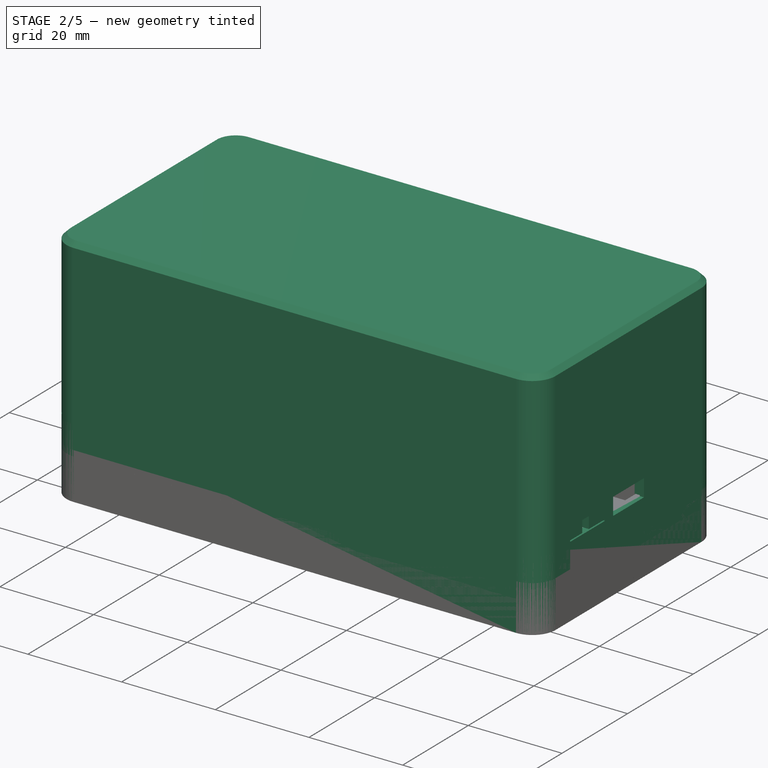
[diagram: stage 2 of 5 — iso view after this stage's code; geometry added in this stage tinted green]
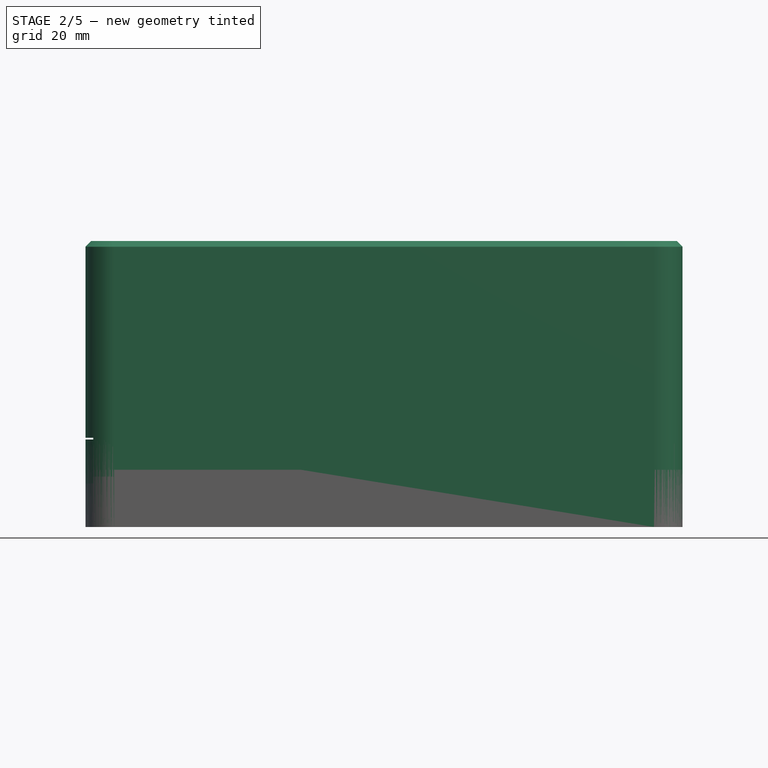
[diagram: stage 2 of 5 — front view after this stage's code; geometry added in this stage tinted green]
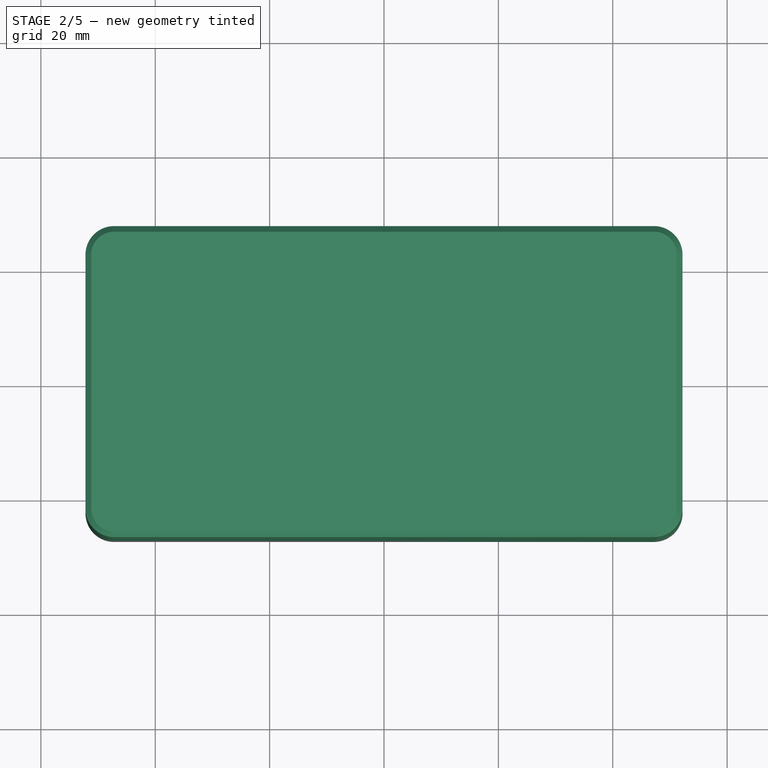
[diagram: stage 2 of 5 — top view after this stage's code; geometry added in this stage tinted green]
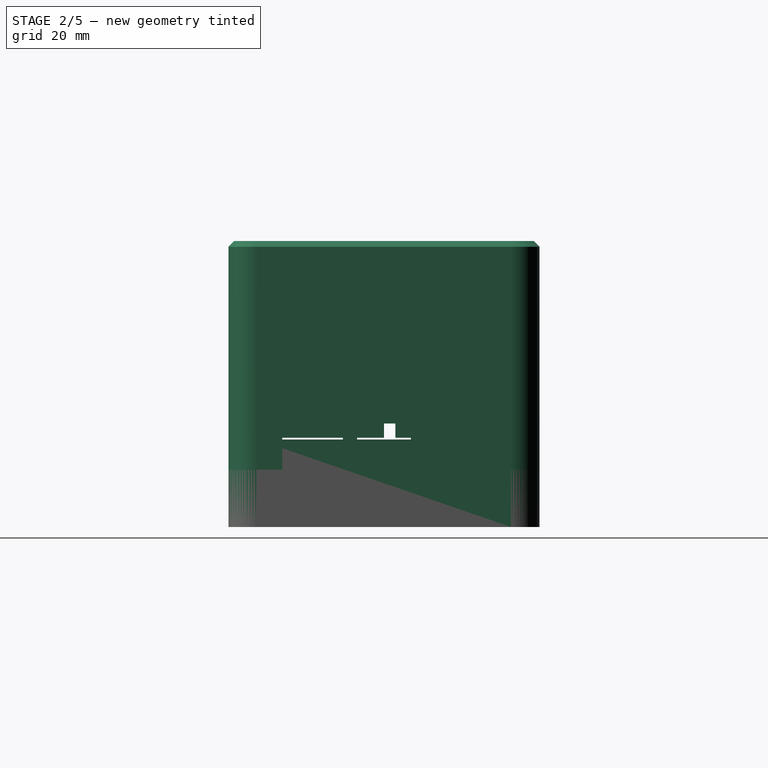
[diagram: stage 2 of 5 — right view after this stage's code; geometry added in this stage tinted green]
FEATURE [PartDesign::Body] Body002  label="SlimBottom"
  Group = -> [Sketch004,Pad003,MultiTransform002,Mirrored005,Mirrored006,Sketch005,Pad004,MultiTransform003,Mirrored007,Mirrored008,DatumPlane001,Sketch006,Pad005,Mirrored009,Sketch007,Sketch010,Pocket001,MultiTransform005,Mirrored012,Mirrored013,Sketch012,Pad008,Pocket002,Mirrored016,DatumPlane004,DatumPlane005,Sketch014,Sketch015,Sketch016,Sketch020,Sketch021,Sketch022,Sketch023,Sketch024,Chamfer,Chamfer001,+13 more]
  Origin = -> Origin190
  Tip = -> Chamfer016
FEATURE [App::Part] Part001  label="Slim"
  Group = -> [Body002,Body003]
  Origin = -> Origin188
  Placement = pos=(150,0,0) rot=(0,0,1;0rad)
FEATURE [PartDesign::Plane] DatumPlane008  label="InnerFloor002"
  AttachmentOffset = pos=(0,0,2) rot=(0,0,1;0rad)
  Length = 119.472
  MapMode = 5
  Placement = pos=(0,0,2) rot=(0,0,1;0rad)
  ResizeMode = 0
  Support = -> [XY_Plane193]
  Width = 69.4723
FEATURE [Sketcher::SketchObject] Sketch035
  FullyConstrained = true
  MapMode = 5
  Support = -> [XY_Plane193]
  sketch-geometry (5):
    g0: ArcOfCircle CenterX=-47.2 CenterY=22.2 CenterZ=0 NormalX=0 NormalY=0 NormalZ=1 AngleXU=0 Radius=3 StartAngle=1.5708 EndAngle=3.14159
    g1: LineSegment StartX=-47.2 StartY=25.2 StartZ=0 EndX=0 EndY=25.2 EndZ=0
    g2: LineSegment StartX=-50.2 StartY=22.2 StartZ=0 EndX=-50.2 EndY=0 EndZ=0
    g3: LineSegment StartX=-50.2 StartY=0 StartZ=0 EndX=0 EndY=0 EndZ=0
    g4: LineSegment StartX=0 StartY=0 StartZ=0 EndX=0 EndY=25.2 EndZ=0
  constraints (15):
    c: Vertical(g0,g0)
    c: Horizontal(g0,g0)
    c: Radius(g0) = 3
    c: DistanceY(g-1,g0) = 25.2
    c: DistanceX(g0,g-1) = 50.2
    c: Coincident(g1,g0)
    c: PointOnObject(g1,g-2)
    c: Horizontal(g1)
    c: Coincident(g2,g0)
    c: PointOnObject(g2,g-1)
    c: Vertical(g2)
    c: Coincident(g3,g2)
    c: Coincident(g3,g-1)
    c: Coincident(g4,g3)
    c: Coincident(g4,g1)
FEATURE [PartDesign::Mirrored] Mirrored022
  MirrorPlane = -> Sketch035 [H_Axis]
  Overlap = 0
  Refine = true
FEATURE [Sketcher::SketchObject] Sketch036
  FullyConstrained = true
  MapMode = 5
  Support = -> [XY_Plane193]
  sketch-geometry (16):
    g0: LineSegment StartX=-50 StartY=-25 StartZ=0 EndX=50 EndY=-25 EndZ=0
    g1: LineSegment StartX=50 StartY=-25 StartZ=0 EndX=50 EndY=25 EndZ=0
    g2: LineSegment StartX=50 StartY=25 StartZ=0 EndX=-50 EndY=25 EndZ=0
    g3: LineSegment StartX=-50 StartY=25 StartZ=0 EndX=-50 EndY=-25 EndZ=0
    g4: Circle CenterX=-38 CenterY=22 CenterZ=0 NormalX=0 NormalY=0 NormalZ=1 AngleXU=0 Radius=1.35
    g5: Circle CenterX=47 CenterY=22 CenterZ=0 NormalX=0 NormalY=0 NormalZ=1 AngleXU=0 Radius=1.35
    g6: Circle CenterX=47 CenterY=-22 CenterZ=0 NormalX=0 NormalY=0 NormalZ=1 AngleXU=0 Radius=1.35
    g7: Circle CenterX=-38 CenterY=-22 CenterZ=0 NormalX=0 NormalY=0 NormalZ=1 AngleXU=0 Radius=1.35
    g8: ArcOfCircle CenterX=-47.2 CenterY=22.2 CenterZ=0 NormalX=0 NormalY=0 NormalZ=1 AngleXU=0 Radius=3 StartAngle=1.5708 EndAngle=3.14159
    g9: ArcOfCircle CenterX=-47.2 CenterY=22.2 CenterZ=0 NormalX=0 NormalY=0 NormalZ=1 AngleXU=0 Radius=5 StartAngle=1.5708 EndAngle=3.14159
    g10: LineSegment StartX=-47.2 StartY=27.2 StartZ=0 EndX=0 EndY=27.2 EndZ=0
    g11: LineSegment StartX=-47.2 StartY=25.2 StartZ=0 EndX=0 EndY=25.2 EndZ=0
    g12: LineSegment StartX=0 StartY=27.2 StartZ=0 EndX=0 EndY=25.2 EndZ=0
    g13: LineSegment StartX=-52.2 StartY=22.2 StartZ=0 EndX=-52.2 EndY=0 EndZ=0
    g14: LineSegment StartX=-50.2 StartY=22.2 StartZ=0 EndX=-50.2 EndY=0 EndZ=0
    g15: LineSegment StartX=-52.2 StartY=0 StartZ=0 EndX=-50.2 EndY=0 EndZ=0
  constraints (46):
    c: Coincident(g0,g1)
    c: Coincident(g1,g2)
    c: Coincident(g2,g3)
    c: Coincident(g3,g0)
    c: Horizontal(g0)
    c: Vertical(g3)
    c: Symmetric(g2,g1,g-2)
    c: Symmetric(g0,g1,g-1)
    c: Distance(g2) = 100
    c: Distance(g3) = 50
    c: Equal(g4,g5)
    c: Equal(g5,g6)
    c: Equal(g6,g7)
    c: Diameter(g6) = 2.7
    c: DistanceY(g6,g5) = 44
    c: Horizontal(g5,g4)
    c: Horizontal(g7,g6)
    c: DistanceX(g4,g5) = 85
    c: Symmetric(g5,g6,g-1)
    c: DistanceX(g-1,g5) = 47
    c: Vertical(g7,g4)
    c: Coincident(g9,g8)
    c: Vertical(g9,g8)
    c: Vertical(g8,g8)
    c: Horizontal(g9,g8)
    c: Horizontal(g8,g8)
    c: DistanceX(g9,g8) = 2
    c: Radius(g9) = 5
    c: DistanceX(g8,g2) = 0.2
    c: Coincident(g10,g9)
    c: PointOnObject(g10,g-2)
    c: Horizontal(g10)
    c: Coincident(g11,g8)
    c: PointOnObject(g11,g-2)
    c: Horizontal(g11)
    c: Coincident(g12,g10)
    c: Coincident(g12,g11)
    c: Coincident(g13,g9)
    c: PointOnObject(g13,g-1)
    c: Vertical(g13)
    c: Coincident(g14,g8)
    c: PointOnObject(g14,g-1)
    c: Vertical(g14)
    c: Coincident(g15,g13)
    c: Coincident(g15,g14)
    c: DistanceY(g2,g8) = 0.2
FEATURE [PartDesign::Mirrored] Mirrored023
  MirrorPlane = -> Sketch036 [H_Axis]
  Overlap = 0
  Refine = true
FEATURE [PartDesign::Mirrored] Mirrored024
  MirrorPlane = -> Sketch035 [V_Axis]
  Overlap = 0
  Refine = true
FEATURE [PartDesign::Mirrored] Mirrored025
  MirrorPlane = -> Sketch036 [V_Axis]
  Overlap = 0
  Refine = true
FEATURE [PartDesign::Pad] Pad013  label="Wall002"
  Direction = (1,1,1)
  Length = 15.3
  Length2 = 100
  Profile = -> Sketch036
  Refine = true
  Type = 0
  expr: Length = <<Variables>>.BotWall
FEATURE [PartDesign::MultiTransform] MultiTransform009
  BaseFeature = -> Pad013
  Originals = -> [Pad013]
  Overlap = 0
  Refine = true
  Transformations = -> [Mirrored025,Mirrored023]
FEATURE [PartDesign::Pad] Pad011  label="Floor002"
  BaseFeature = -> MultiTransform009
  Direction = (1,1,1)
  Length = 2
  Length2 = 100
  Profile = -> Sketch035
  Refine = true
  Type = 0
FEATURE [PartDesign::Mirrored] Mirrored037
  MirrorPlane = -> Sketch074 [H_Axis]
  Overlap = 0
  Refine = true
FEATURE [Sketcher::SketchObject] Sketch077  label="BJ014"
  FullyConstrained = true
  MapMode = 5
  Placement = pos=(-52.2,1.16e-14,-1.16e-14) rot=(-0.57735,0.57735,0.57735;4.18879rad)
  Support = -> [DatumPlane014]
  expr: Constraints[21] = Sketch059.Constraints[21]
  expr: Constraints[19] = Sketch059.Constraints[19]
  expr: Constraints[18] = Sketch059.Constraints[18]
  expr: Constraints[22] = Sketch059.Constraints[22]
  expr: Constraints[17] = Sketch059.Constraints[17]
  expr: Constraints[16] = Sketch059.Constraints[16]
  sketch-geometry (13):
    g0: LineSegment StartX=4.86 StartY=7.6 StartZ=0 EndX=15.46 EndY=7.6 EndZ=0
    g1: LineSegment StartX=15.46 StartY=7.6 StartZ=0 EndX=15.46 EndY=15.6 EndZ=0
    g2: LineSegment StartX=15.46 StartY=15.6 StartZ=0 EndX=10.16 EndY=15.6 EndZ=0
    g3: LineSegment StartX=10.16 StartY=15.6 StartZ=0 EndX=10.16 EndY=18.1 EndZ=0
    g4: LineSegment StartX=10.16 StartY=18.1 StartZ=0 EndX=8.16 EndY=18.1 EndZ=0
    g5: LineSegment StartX=8.16 StartY=18.1 StartZ=0 EndX=8.16 EndY=15.6 EndZ=0
    g6: LineSegment StartX=8.16 StartY=15.6 StartZ=0 EndX=4.86 EndY=15.6 EndZ=0
    g7: LineSegment StartX=4.86 StartY=15.6 StartZ=0 EndX=4.86 EndY=7.6 EndZ=0
    g8: LineSegment StartX=4.86 StartY=7.6 StartZ=0 EndX=10.16 EndY=7.6 EndZ=0
    g9: LineSegment StartX=10.16 StartY=7.6 StartZ=0 EndX=15.46 EndY=7.6 EndZ=0
    g10: LineSegment StartX=15.46 StartY=7.6 StartZ=0 EndX=15.46 EndY=-42.4 EndZ=0
    g11: LineSegment StartX=15.46 StartY=-42.4 StartZ=0 EndX=4.86 EndY=-42.4 EndZ=0
    g12: LineSegment StartX=4.86 StartY=-42.4 StartZ=0 EndX=4.86 EndY=7.6 EndZ=0
  constraints (37):
    c: Horizontal(g0)
    c: Coincident(g0,g1)
    c: Vertical(g1)
    c: Coincident(g1,g2)
    c: Horizontal(g2)
    c: Coincident(g2,g3)
    c: Vertical(g3)
    c: Coincident(g3,g4)
    c: Coincident(g4,g5)
    c: Vertical(g5)
    c: Coincident(g5,g6)
    c: Horizontal(g6)
    c: Coincident(g6,g7)
    c: Coincident(g7,g0)
    c: Vertical(g7)
    c: Horizontal(g4)
    c: DistanceX(g4,g4) = 2
    c: DistanceY(g3,g3) = 2.5
    c: DistanceY(g1,g1) = 8
    c: DistanceX(g0,g0) = 10.6
    c: Horizontal(g5,g2)
    c: DistanceY(g-1,g0) = 7.6
    c: DistanceX(g6,g6) = 3.3
    c: Coincident(g8,g0)
    c: Coincident(g9,g8)
    c: Coincident(g9,g0)
    c: Equal(g9,g8)
    c: Horizontal(g8)
    c: Coincident(g10,g1)
    c: Vertical(g10)
    c: Coincident(g11,g10)
    c: Horizontal(g11)
    c: Coincident(g12,g11)
    c: Coincident(g12,g7)
    c: Vertical(g12)
    c: DistanceY(g12,g12) = 50
    c: DistanceX(g-1,g8) = 10.16
FEATURE [PartDesign::Mirrored] Mirrored039
  MirrorPlane = -> Sketch058 [H_Axis]
  Overlap = 0
  Placement = pos=(0,0,50) rot=(0,0,1;0rad)
  Refine = true
FEATURE [Sketcher::SketchObject] Sketch078  label="BJ015"
  FullyConstrained = true
  MapMode = 5
  Placement = pos=(-52.2,1.16e-14,-1.16e-14) rot=(-0.57735,0.57735,0.57735;4.18879rad)
  Support = -> [DatumPlane014]
  expr: Constraints[21] = Sketch059.Constraints[21]
  expr: Constraints[19] = Sketch059.Constraints[19]
  expr: Constraints[18] = Sketch059.Constraints[18]
  expr: Constraints[22] = Sketch059.Constraints[22]
  expr: Constraints[17] = Sketch059.Constraints[17]
  expr: Constraints[16] = Sketch059.Constraints[16]
  sketch-geometry (13):
    g0: LineSegment StartX=-25.62 StartY=7.6 StartZ=0 EndX=-15.02 EndY=7.6 EndZ=0
    g1: LineSegment StartX=-15.02 StartY=7.6 StartZ=0 EndX=-15.02 EndY=15.6 EndZ=0
    g2: LineSegment StartX=-15.02 StartY=15.6 StartZ=0 EndX=-20.32 EndY=15.6 EndZ=0
    g3: LineSegment StartX=-20.32 StartY=15.6 StartZ=0 EndX=-20.32 EndY=18.1 EndZ=0
    g4: LineSegment StartX=-20.32 StartY=18.1 StartZ=0 EndX=-22.32 EndY=18.1 EndZ=0
    g5: LineSegment StartX=-22.32 StartY=18.1 StartZ=0 EndX=-22.32 EndY=15.6 EndZ=0
    g6: LineSegment StartX=-22.32 StartY=15.6 StartZ=0 EndX=-25.62 EndY=15.6 EndZ=0
    g7: LineSegment StartX=-25.62 StartY=15.6 StartZ=0 EndX=-25.62 EndY=7.6 EndZ=0
    g8: LineSegment StartX=-25.62 StartY=7.6 StartZ=0 EndX=-20.32 EndY=7.6 EndZ=0
    g9: LineSegment StartX=-20.32 StartY=7.6 StartZ=0 EndX=-15.02 EndY=7.6 EndZ=0
    g10: LineSegment StartX=-15.02 StartY=7.6 StartZ=0 EndX=-15.02 EndY=-42.4 EndZ=0
    g11: LineSegment StartX=-15.02 StartY=-42.4 StartZ=0 EndX=-25.62 EndY=-42.4 EndZ=0
    g12: LineSegment StartX=-25.62 StartY=-42.4 StartZ=0 EndX=-25.62 EndY=7.6 EndZ=0
  constraints (37):
    c: Horizontal(g0)
    c: Coincident(g0,g1)
    c: Vertical(g1)
    c: Coincident(g1,g2)
    c: Horizontal(g2)
    c: Coincident(g2,g3)
    c: Vertical(g3)
    c: Coincident(g3,g4)
    c: Coincident(g4,g5)
    c: Vertical(g5)
    c: Coincident(g5,g6)
    c: Horizontal(g6)
    c: Coincident(g6,g7)
    c: Coincident(g7,g0)
    c: Vertical(g7)
    c: Horizontal(g4)
    c: DistanceX(g4,g4) = 2
    c: DistanceY(g3,g3) = 2.5
    c: DistanceY(g1,g1) = 8
    c: DistanceX(g0,g0) = 10.6
    c: Horizontal(g5,g2)
    c: DistanceY(g-1,g0) = 7.6
    c: DistanceX(g6,g6) = 3.3
    c: Coincident(g8,g0)
    c: Coincident(g9,g8)
    c: Coincident(g9,g0)
    c: Equal(g9,g8)
    c: Horizontal(g8)
    c: Coincident(g10,g1)
    c: Vertical(g10)
    c: Coincident(g11,g10)
    c: Horizontal(g11)
    c: Coincident(g12,g11)
    c: Coincident(g12,g7)
    c: Vertical(g12)
    c: DistanceY(g12,g12) = 50
    c: DistanceX(g8,g-1) = 20.32
FEATURE [Sketcher::SketchObject] Sketch079  label="DC006"
  FullyConstrained = true
  MapMode = 5
  Placement = pos=(52.2,-1.16e-14,1.16e-14) rot=(0.57735,0.57735,0.57735;2.0944rad)
  Support = -> [DatumPlane018]
  expr: Constraints[14] = Sketch062.Constraints[17]
  expr: Constraints[22] = Sketch062.Constraints[27]
  expr: Constraints[17] = Sketch062.Constraints[20]
  expr: Constraints[13] = Sketch062.Constraints[16]
  expr: Constraints[16] = Sketch062.Constraints[19]
  expr: Constraints[21] = Sketch062.Constraints[26]
  expr: Constraints[23] = Sketch062.Constraints[28]
  sketch-geometry (12):
    g0: LineSegment StartX=-7.2 StartY=7.6 StartZ=0 EndX=-7.2 EndY=15.6 EndZ=0
    g1: LineSegment StartX=-7.2 StartY=15.6 StartZ=0 EndX=-12.1 EndY=15.6 EndZ=0
    g2: LineSegment StartX=-12.1 StartY=15.6 StartZ=0 EndX=-12.1 EndY=18.1 EndZ=0
    g3: LineSegment StartX=-12.1 StartY=18.1 StartZ=0 EndX=-14.1 EndY=18.1 EndZ=0
    g4: LineSegment StartX=-14.1 StartY=18.1 StartZ=0 EndX=-14.1 EndY=15.6 EndZ=0
    g5: LineSegment StartX=-14.1 StartY=15.6 StartZ=0 EndX=-17.8 EndY=15.6 EndZ=0
    g6: LineSegment StartX=-17.8 StartY=15.6 StartZ=0 EndX=-17.8 EndY=7.6 EndZ=0
    g7: LineSegment StartX=-17.8 StartY=7.6 StartZ=0 EndX=-12.5 EndY=7.6 EndZ=0
    g8: LineSegment StartX=-12.5 StartY=7.6 StartZ=0 EndX=-7.2 EndY=7.6 EndZ=0
    g9: LineSegment StartX=-7.2 StartY=7.6 StartZ=0 EndX=-7.2 EndY=2.6 EndZ=0
    g10: LineSegment StartX=-7.2 StartY=2.6 StartZ=0 EndX=-17.8 EndY=2.6 EndZ=0
    g11: LineSegment StartX=-17.8 StartY=7.6 StartZ=0 EndX=-17.8 EndY=2.6 EndZ=0
  constraints (35):
    c: Vertical(g0)
    c: Coincident(g0,g1)
    c: Horizontal(g1)
    c: Coincident(g1,g2)
    c: Vertical(g2)
    c: Coincident(g2,g3)
    c: Horizontal(g3)
    c: Coincident(g3,g4)
    c: Vertical(g4)
    c: Coincident(g4,g5)
    c: Horizontal(g5)
    c: Coincident(g5,g6)
    c: Vertical(g6)
    c: DistanceX(g6,g0) = 10.6
    c: DistanceY(g0,g0) = 8
    c: Horizontal(g4,g1)
    c: DistanceY(g2,g2) = 2.5
    c: DistanceX(g3,g3) = 2
    c: Coincident(g8,g7)
    c: Equal(g8,g7)
    c: Horizontal(g8)
    c: DistanceX(g7,g-1) = 12.5
    c: DistanceY(g-1,g7) = 7.6
    c: DistanceX(g5,g5) = 3.7
    c: Coincident(g8,g0)
    c: Coincident(g7,g6)
    c: Horizontal(g7)
    c: Coincident(g9,g0)
    c: Vertical(g9)
    c: DistanceY(g9,g9) = 5
    c: Coincident(g10,g9)
    c: Horizontal(g10)
    c: Coincident(g11,g6)
    c: Coincident(g11,g10)
    c: Vertical(g11)
FEATURE [Sketcher::SketchObject] Sketch081
  FullyConstrained = true
  MapMode = 5
  Placement = pos=(0,0,50) rot=(0,0,1;0rad)
  Support = -> [DatumPlane015]
  sketch-geometry (8):
    g0: ArcOfCircle CenterX=-47.2 CenterY=22.2 CenterZ=0 NormalX=0 NormalY=0 NormalZ=1 AngleXU=0 Radius=5 StartAngle=1.5708 EndAngle=3.14159
    g1: ArcOfCircle CenterX=-47.2 CenterY=22.2 CenterZ=0 NormalX=0 NormalY=0 NormalZ=1 AngleXU=0 Radius=3 StartAngle=1.5708 EndAngle=3.14159
    g2: LineSegment StartX=-47.2 StartY=27.2 StartZ=0 EndX=0 EndY=27.2 EndZ=0
    g3: LineSegment StartX=0 StartY=27.2 StartZ=0 EndX=0 EndY=25.2 EndZ=0
    g4: LineSegment StartX=0 StartY=25.2 StartZ=0 EndX=-47.2 EndY=25.2 EndZ=0
    g5: LineSegment StartX=-50.2 StartY=22.2 StartZ=0 EndX=-50.2 EndY=0 EndZ=0
    g6: LineSegment StartX=-50.2 StartY=0 StartZ=0 EndX=-52.2 EndY=0 EndZ=0
    g7: LineSegment StartX=-52.2 StartY=0 StartZ=0 EndX=-52.2 EndY=22.2 EndZ=0
  constraints (25):
    c: Coincident(g1,g0)
    c: Vertical(g0,g1)
    c: Vertical(g1,g0)
    c: Horizontal(g0,g1)
    c: Horizontal(g1,g0)
    c: Radius(g1) = 3
    c: Radius(g0) = 5
    c: Coincident(g2,g0)
    c: PointOnObject(g2,g-2)
    c: Horizontal(g2)
    c: Coincident(g3,g2)
    c: PointOnObject(g3,g-2)
    c: Coincident(g4,g3)
    c: Coincident(g4,g1)
    c: Horizontal(g4)
    c: Coincident(g5,g1)
    c: PointOnObject(g5,g-1)
    c: Vertical(g5)
    c: Coincident(g6,g5)
    c: PointOnObject(g6,g-1)
    c: Coincident(g7,g6)
    c: Coincident(g7,g0)
    c: Vertical(g7)
    c: DistanceY(g-1,g0) = 22.2
    c: DistanceX(g0,g-1) = 47.2
FEATURE [PartDesign::Mirrored] Mirrored036
  MirrorPlane = -> Sketch081 [H_Axis]
  Overlap = 0
  Placement = pos=(0,0,50) rot=(0,0,1;0rad)
  Refine = true
FEATURE [PartDesign::Pad] Pad021
  Direction = (1,1,1)
  Length = 40.5
  Length2 = 100
  Placement = pos=(0,0,50) rot=(0,0,1;0rad)
  Profile = -> Sketch081
  Refine = true
  Reversed = true
  Type = 0
  expr: Length = <<Variables>>.ExtrathiccWall - <<Variables>>.BotWall + <<Variables>>.Overlap - 0.2
FEATURE [Sketcher::SketchObject] Sketch080
  FullyConstrained = true
  MapMode = 5
  Placement = pos=(0,0,9.5) rot=(1,0,0;3.14159rad)
  Support = -> [Pad021]
  sketch-geometry (8):
    g0: ArcOfCircle CenterX=-47.2 CenterY=-22.2 CenterZ=0 NormalX=0 NormalY=0 NormalZ=1 AngleXU=0 Radius=3 StartAngle=3.14159 EndAngle=4.71239
    g1: ArcOfCircle CenterX=-47.2 CenterY=-22.2 CenterZ=0 NormalX=0 NormalY=0 NormalZ=1 AngleXU=0 Radius=4.1 StartAngle=3.14159 EndAngle=4.71239
    g2: LineSegment StartX=-50.2 StartY=-22.2 StartZ=0 EndX=-50.2 EndY=0 EndZ=0
    g3: LineSegment StartX=-50.2 StartY=0 StartZ=0 EndX=-51.3 EndY=0 EndZ=0
    g4: LineSegment StartX=-51.3 StartY=0 StartZ=0 EndX=-51.3 EndY=-22.2 EndZ=0
    g5: LineSegment StartX=-47.2 StartY=-25.2 StartZ=0 EndX=0 EndY=-25.2 EndZ=0
    g6: LineSegment StartX=0 StartY=-25.2 StartZ=0 EndX=0 EndY=-26.3 EndZ=0
    g7: LineSegment StartX=0 StartY=-26.3 StartZ=0 EndX=-47.2 EndY=-26.3 EndZ=0
  constraints (25):
    c: Coincident(g1,g0)
    c: Horizontal(g1,g0)
    c: Horizontal(g0,g0)
    c: Vertical(g0,g0)
    c: Vertical(g0,g1)
    c: Radius(g0) = 3
    c: DistanceX(g1,g0) = 1.1
    c: DistanceY(g0,g-1) = 22.2
    c: DistanceX(g0,g-1) = 47.2
    c: Coincident(g2,g0)
    c: PointOnObject(g2,g-1)
    c: Vertical(g2)
    c: Coincident(g3,g2)
    c: PointOnObject(g3,g-1)
    c: Coincident(g4,g3)
    c: Vertical(g4)
    c: Coincident(g4,g1)
    c: Coincident(g5,g0)
    c: PointOnObject(g5,g-2)
    c: Horizontal(g5)
    c: Coincident(g6,g5)
    c: PointOnObject(g6,g-2)
    c: Coincident(g7,g6)
    c: Coincident(g7,g1)
    c: Horizontal(g7)
FEATURE [PartDesign::Pocket] Pocket064
  BaseFeature = -> Pad021
  Length = 6
  Length2 = 100
  Placement = pos=(0,0,50) rot=(0,0,1;0rad)
  Profile = -> Sketch080
  Refine = true
  Type = 0
  expr: Length = <<Variables>>.Overlap
FEATURE [PartDesign::Mirrored] Mirrored041
  MirrorPlane = -> Sketch081 [V_Axis]
  Overlap = 0
  Placement = pos=(0,0,50) rot=(0,0,1;0rad)
  Refine = true
FEATURE [PartDesign::MultiTransform] MultiTransform013
  BaseFeature = -> Pocket064
  Originals = -> [Pad021,Pocket064]
  Overlap = 0
  Placement = pos=(0,0,50) rot=(0,0,1;0rad)
  Refine = true
  Transformations = -> [Mirrored041,Mirrored036]
FEATURE [PartDesign::Pad] Pad022
  BaseFeature = -> MultiTransform013
  Direction = (1,1,1)
  Length = 2
  Length2 = 100
  Placement = pos=(0,0,50) rot=(0,0,1;0rad)
  Profile = -> Sketch058
  Refine = true
  Reversed = true
  Type = 0
FEATURE [PartDesign::MultiTransform] MultiTransform016
  BaseFeature = -> Pad022
  Originals = -> [Pad022]
  Overlap = 0
  Placement = pos=(0,0,50) rot=(0,0,1;0rad)
  Refine = true
  Transformations = -> [Mirrored032,Mirrored039]
FEATURE [PartDesign::Pocket] Pocket055
  BaseFeature = -> MultiTransform016
  Length = 61
  Length2 = 100
  Midplane = true
  Placement = pos=(0,0,50) rot=(0,0,1;0rad)
  Profile = -> Sketch067
  Refine = true
  Type = 0
FEATURE [PartDesign::Pad] Pad018
  BaseFeature = -> Pocket055
  Direction = (1,1,1)
  Length = 39
  Length2 = 100
  Midplane = true
  Placement = pos=(0,0,50) rot=(0,0,1;0rad)
  Profile = -> Sketch067
  Refine = true
  Type = 0
FEATURE [PartDesign::Pocket] Pocket061
  BaseFeature = -> Pad018
  Length = 0.2
  Length2 = 100
  Placement = pos=(0,0,50) rot=(0,0,1;0rad)
  Profile = -> Pad018 [Face36]
  Refine = true
  Type = 0
FEATURE [PartDesign::Mirrored] Mirrored040
  BaseFeature = -> Pocket061
  MirrorPlane = -> Sketch067 [V_Axis]
  Originals = -> [Pocket055,Pad018,Pocket061]
  Overlap = 0
  Placement = pos=(0,0,50) rot=(0,0,1;0rad)
  Refine = true
FEATURE [PartDesign::Chamfer] Chamfer032
  Angle = 45
  Base = -> Mirrored040 [Edge19]
  BaseFeature = -> Mirrored040
  ChamferType = 0
  FlipDirection = false
  Placement = pos=(0,0,50) rot=(0,0,1;0rad)
  Refine = true
  Size = 0.5
  Size2 = 1
  SupportTransform = false
FEATURE [PartDesign::Chamfer] Chamfer030
  Angle = 45
  Base = -> Chamfer032 [Edge13]
  BaseFeature = -> Chamfer032
  ChamferType = 0
  FlipDirection = false
  Placement = pos=(0,0,50) rot=(0,0,1;0rad)
  Refine = true
  Size = 1
  Size2 = 1
  SupportTransform = false
FEATURE [PartDesign::Chamfer] Chamfer027
  Angle = 45
  Base = -> Chamfer030 [Edge122]
  BaseFeature = -> Chamfer030
  ChamferType = 0
  FlipDirection = false
  Placement = pos=(0,0,50) rot=(0,0,1;0rad)
  Refine = true
  Size = 0.2999
  Size2 = 1
  SupportTransform = false
FEATURE [PartDesign::Pocket] Pocket058  label="HoleDC002"
  BaseFeature = -> Chamfer027
  Length = 10
  Length2 = 100
  Placement = pos=(0,0,50) rot=(0,0,1;0rad)
  Profile = -> Sketch079
  Refine = true
  Type = 0
FEATURE [PartDesign::Pocket] Pocket070  label="HoleBarrel002"
  BaseFeature = -> Pocket058
  Length = 15
  Length2 = 100
  Placement = pos=(0,0,50) rot=(0,0,1;0rad)
  Profile = -> Sketch064
  Refine = true
  Type = 0
FEATURE [PartDesign::Pocket] Pocket059  label="HoleUSB002"
  BaseFeature = -> Pocket070
  Length = 5
  Length2 = 100
  Placement = pos=(0,0,50) rot=(0,0,1;0rad)
  Profile = -> Sketch065
  Refine = true
  Type = 0
FEATURE [PartDesign::Pocket] Pocket069  label="HoleJ015"
  BaseFeature = -> Pocket059
  Length = 10
  Length2 = 100
  Placement = pos=(0,0,50) rot=(0,0,1;0rad)
  Profile = -> Sketch078
  Refine = true
  Type = 0
FEATURE [PartDesign::Pocket] Pocket062  label="HoleJ013"
  BaseFeature = -> Pocket069
  Length = 10
  Length2 = 100
  Placement = pos=(0,0,50) rot=(0,0,1;0rad)
  Profile = -> Sketch075
  Refine = true
  Type = 0
FEATURE [PartDesign::Pocket] Pocket051  label="HoleJ011"
  BaseFeature = -> Pocket062
  Length = 10
  Length2 = 100
  Placement = pos=(0,0,50) rot=(0,0,1;0rad)
  Profile = -> Sketch073
  Refine = true
  Type = 0
FEATURE [PartDesign::Pocket] Pocket067  label="HoleJ014"
  BaseFeature = -> Pocket051
  Length = 10
  Length2 = 100
  Placement = pos=(0,0,50) rot=(0,0,1;0rad)
  Profile = -> Sketch077
  Refine = true
  Type = 0
FEATURE [PartDesign::Pocket] Pocket054  label="HoleJ012"
  BaseFeature = -> Pocket067
  Length = 10
  Length2 = 100
  Placement = pos=(0,0,50) rot=(0,0,1;0rad)
  Profile = -> Sketch066
  Refine = true
  Type = 0
FEATURE [PartDesign::Pocket] Pocket065  label="BHoleJ014"
  BaseFeature = -> Pocket053
  Length = 10
  Length2 = 100
  Profile = -> Sketch083
  Refine = true
  Type = 0
FEATURE [PartDesign::Pocket] Pocket052  label="BHoleJ011"
  BaseFeature = -> Pocket065
  Length = 10
  Length2 = 100
  Profile = -> Sketch063
  Refine = true
  Type = 0
FEATURE [PartDesign::Pocket] Pocket056  label="BHoleJ012"
  BaseFeature = -> Pocket052
  Length = 10
  Length2 = 100
  Profile = -> Sketch059
  Refine = true
  Type = 0
FEATURE [PartDesign::Pocket] Pocket057  label="BHoleJ013"
  BaseFeature = -> Pocket056
  Length = 10
  Length2 = 100
  Profile = -> Sketch071
  Refine = true
  Type = 0
FEATURE [PartDesign::Pocket] Pocket071  label="BHoleJ015"
  BaseFeature = -> Pocket057
  Length = 10
  Length2 = 100
  Profile = -> Sketch070
  Refine = true
  Type = 0
FEATURE [PartDesign::Pocket] Pocket072  label="Screwholes007"
  BaseFeature = -> Pocket071
  Length = 5
  Length2 = 100
  Profile = -> Sketch072
  Refine = true
  Type = 0
FEATURE [PartDesign::Chamfer] Chamfer031  label="ScrewholeChamfer002"
  Angle = 45
  Base = -> Pocket072 [Edge202,Edge203,Edge201,Edge200]
  BaseFeature = -> Pocket072
  ChamferType = 0
  FlipDirection = false
  Refine = true
  Size = 1.5
  Size2 = 1
  SupportTransform = false
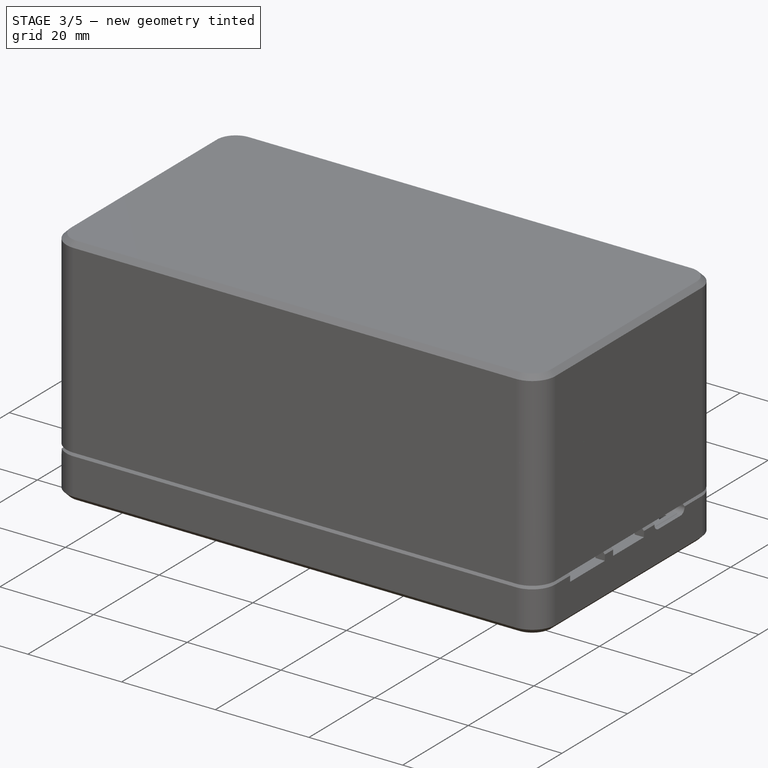
[diagram: stage 3 of 5 — iso view after this stage's code; geometry added in this stage tinted green]
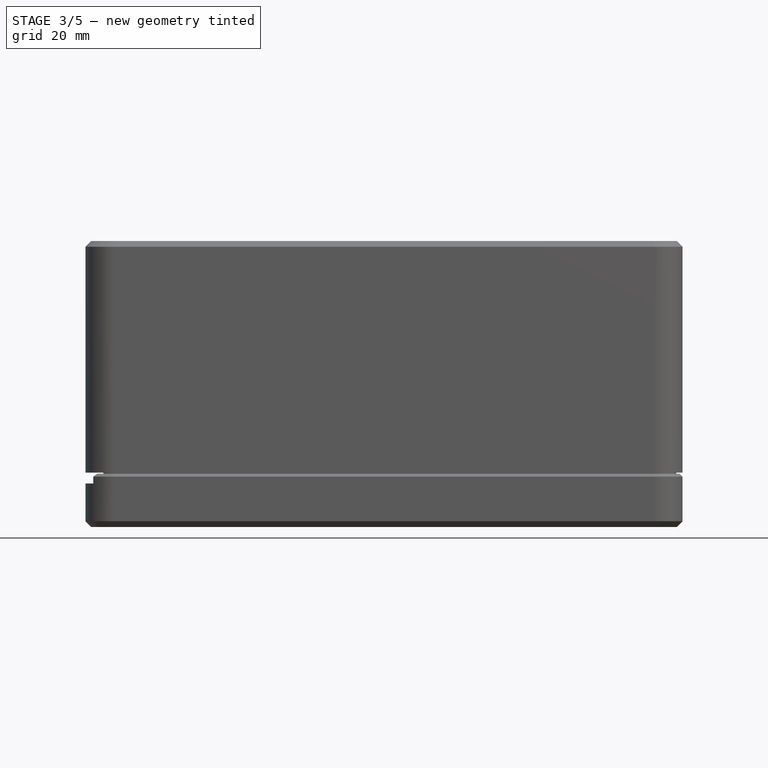
[diagram: stage 3 of 5 — front view after this stage's code; geometry added in this stage tinted green]
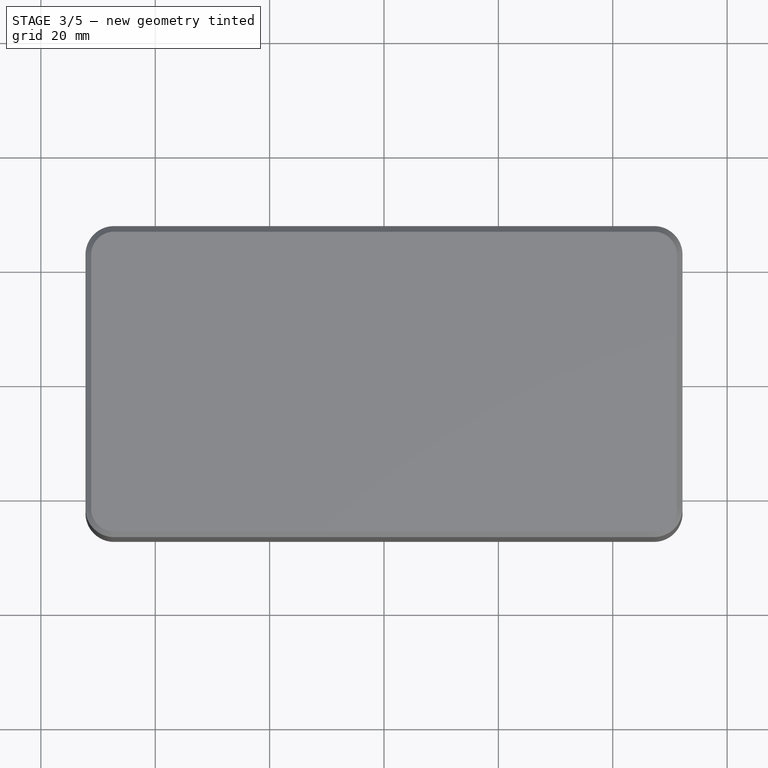
[diagram: stage 3 of 5 — top view after this stage's code; geometry added in this stage tinted green]
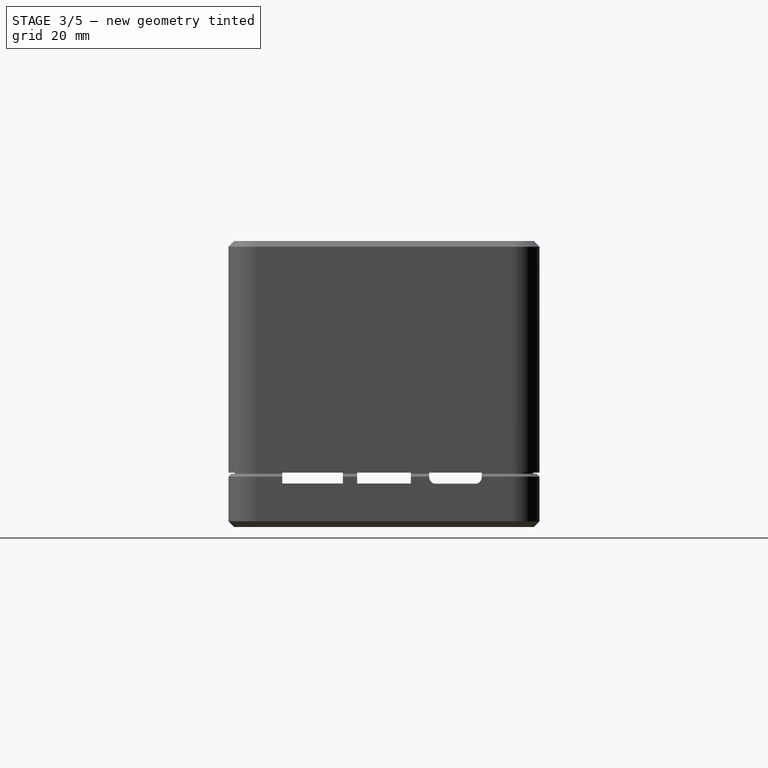
[diagram: stage 3 of 5 — right view after this stage's code; geometry added in this stage tinted green]
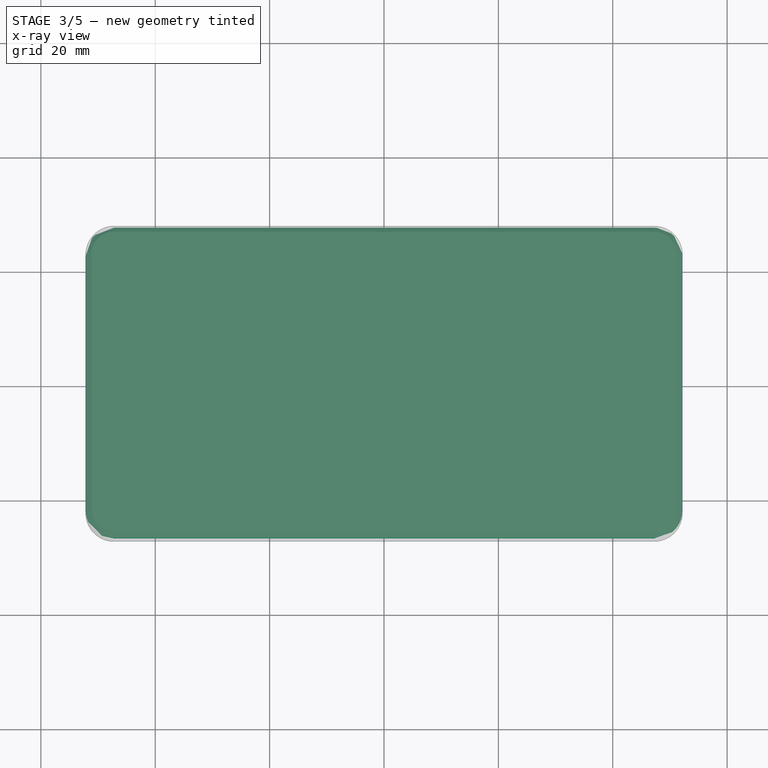
[diagram: stage 3 of 5 — x-ray composite at the top view; earlier geometry ghosted, this stage's added geometry solid]
FEATURE [PartDesign::MultiTransform] MultiTransform008
  BaseFeature = -> Pad011
  Originals = -> [Pad011]
  Overlap = 0
  Refine = true
  Transformations = -> [Mirrored024,Mirrored022]
FEATURE [Sketcher::SketchObject] Sketch037
  FullyConstrained = true
  MapMode = 5
  Placement = pos=(0,0,2) rot=(0,0,1;0rad)
  Support = -> [MultiTransform008]
  sketch-geometry (12):
    g0: Circle CenterX=47 CenterY=22 CenterZ=0 NormalX=0 NormalY=0 NormalZ=1 AngleXU=0 Radius=1
    g1: ArcOfCircle CenterX=47.2 CenterY=22.2 CenterZ=0 NormalX=0 NormalY=0 NormalZ=1 AngleXU=0 Radius=3 StartAngle=0 EndAngle=1.5708
    g2: ArcOfCircle CenterX=47 CenterY=22 CenterZ=0 NormalX=0 NormalY=0 NormalZ=1 AngleXU=0 Radius=3 StartAngle=3.14159 EndAngle=4.71239
    g3: LineSegment StartX=44 StartY=22 StartZ=0 EndX=44 EndY=25.2 EndZ=0
    g4: LineSegment StartX=47.2 StartY=25.2 StartZ=0 EndX=44 EndY=25.2 EndZ=0
    g5: LineSegment StartX=47 StartY=19 StartZ=0 EndX=50.2 EndY=19 EndZ=0
    g6: LineSegment StartX=50.2 StartY=22.2 StartZ=0 EndX=50.2 EndY=19 EndZ=0
    g7: Circle CenterX=-38 CenterY=22 CenterZ=0 NormalX=0 NormalY=0 NormalZ=1 AngleXU=0 Radius=1
    g8: ArcOfCircle CenterX=-38 CenterY=22 CenterZ=0 NormalX=0 NormalY=0 NormalZ=1 AngleXU=0 Radius=3 StartAngle=3.14159 EndAngle=6.28319
    g9: LineSegment StartX=-35 StartY=22 StartZ=0 EndX=-35 EndY=25.2 EndZ=0
    g10: LineSegment StartX=-41 StartY=22 StartZ=0 EndX=-41 EndY=25.2 EndZ=0
    g11: LineSegment StartX=-41 StartY=25.2 StartZ=0 EndX=-35 EndY=25.2 EndZ=0
  constraints (37):
    c: DistanceY(g-1,g0) = 22
    c: DistanceX(g-1,g0) = 47
    c: DistanceX(g0,g1) = 0.2
    c: DistanceY(g0,g1) = 0.2
    c: Radius(g1) = 3
    c: Vertical(g1,g1)
    c: Horizontal(g1,g1)
    c: Diameter(g0) = 2
    c: Coincident(g2,g0)
    c: Horizontal(g2,g0)
    c: Vertical(g2,g0)
    c: Radius(g2) = 3
    c: Coincident(g3,g2)
    c: Vertical(g3)
    c: Coincident(g4,g1)
    c: Coincident(g4,g3)
    c: Horizontal(g4)
    c: Coincident(g5,g2)
    c: Horizontal(g5)
    c: Coincident(g6,g1)
    c: Coincident(g6,g5)
    c: Vertical(g6)
    c: Equal(g7,g0)
    c: Horizontal(g7,g0)
    c: DistanceX(g7,g0) = 85
    c: Coincident(g8,g7)
    c: Radius(g8) = 3
    c: Horizontal(g8,g7)
    c: Horizontal(g7,g8)
    c: Coincident(g9,g8)
    c: Vertical(g9)
    c: Coincident(g10,g8)
    c: Vertical(g10)
    c: Coincident(g11,g10)
    c: Coincident(g11,g9)
    c: Horizontal(g11)
    c: Horizontal(g9,g3)
FEATURE [PartDesign::Pad] Pad012  label="Headers002"
  BaseFeature = -> MultiTransform008
  Direction = (1,1,1)
  Length = 4
  Length2 = 100
  Profile = -> Sketch037
  Refine = true
  Type = 0
FEATURE [PartDesign::Mirrored] Mirrored026
  BaseFeature = -> Pad012
  MirrorPlane = -> Sketch037 [H_Axis]
  Originals = -> [Pad012]
  Overlap = 0
  Refine = true
FEATURE [Sketcher::SketchObject] Sketch034
  FullyConstrained = true
  MapMode = 5
  Placement = pos=(0,0,15.3) rot=(0,0,1;0rad)
  Support = -> [Mirrored026]
  sketch-geometry (8):
    g0: ArcOfCircle CenterX=-47.2 CenterY=22.2 CenterZ=0 NormalX=0 NormalY=0 NormalZ=1 AngleXU=0 Radius=5 StartAngle=1.5708 EndAngle=3.14159
    g1: ArcOfCircle CenterX=-47.2 CenterY=22.2 CenterZ=0 NormalX=0 NormalY=0 NormalZ=1 AngleXU=0 Radius=3.9 StartAngle=1.5708 EndAngle=3.14159
    g2: LineSegment StartX=-51.1 StartY=22.2 StartZ=0 EndX=-51.1 EndY=0 EndZ=0
    g3: LineSegment StartX=-51.1 StartY=0 StartZ=0 EndX=-52.2 EndY=0 EndZ=0
    g4: LineSegment StartX=-52.2 StartY=0 StartZ=0 EndX=-52.2 EndY=22.2 EndZ=0
    g5: LineSegment StartX=-47.2 StartY=27.2 StartZ=0 EndX=0 EndY=27.2 EndZ=0
    g6: LineSegment StartX=0 StartY=27.2 StartZ=0 EndX=0 EndY=26.1 EndZ=0
    g7: LineSegment StartX=0 StartY=26.1 StartZ=0 EndX=-47.2 EndY=26.1 EndZ=0
  constraints (23):
    c: Coincident(g1,g0)
    c: Vertical(g0,g1)
    c: Vertical(g1,g0)
    c: Horizontal(g0,g1)
    c: Horizontal(g1,g0)
    c: Radius(g0) = 5
    c: DistanceY(g1,g0) = 1.1
    c: DistanceX(g0,g-1) = 47.2
    c: DistanceY(g-1,g0) = 22.2
    c: Tangent(g1,g2) = -1.5708
    c: Coincident(g2,g3)
    c: PointOnObject(g3,g-1)
    c: Coincident(g3,g4)
    c: Coincident(g4,g0)
    c: Vertical(g4)
    c: Horizontal(g3)
    c: Tangent(g0,g5) = 1.5708
    c: Coincident(g5,g6)
    c: PointOnObject(g6,g-2)
    c: Vertical(g6)
    c: Coincident(g6,g7)
    c: Coincident(g7,g1)
    c: Horizontal(g7)
FEATURE [PartDesign::Pocket] Pocket029
  BaseFeature = -> Mirrored026
  Length = 6
  Length2 = 100
  Profile = -> Sketch034
  Refine = true
  Type = 0
  expr: Length = <<Variables>>.Overlap
FEATURE [PartDesign::Mirrored] Mirrored019
  MirrorPlane = -> Sketch034 [V_Axis]
  Overlap = 0
  Refine = true
FEATURE [Sketcher::SketchObject] Sketch038  label="Screwholes005"
  FullyConstrained = true
  MapMode = 5
  Placement = pos=(0,0,2) rot=(0,0,1;0rad)
  Support = -> [DatumPlane008]
  sketch-geometry (4):
    g0: Circle CenterX=-40 CenterY=15 CenterZ=0 NormalX=0 NormalY=0 NormalZ=1 AngleXU=0 Radius=2
    g1: Circle CenterX=40 CenterY=15 CenterZ=0 NormalX=0 NormalY=0 NormalZ=1 AngleXU=0 Radius=2
    g2: Circle CenterX=40 CenterY=-15 CenterZ=0 NormalX=0 NormalY=0 NormalZ=1 AngleXU=0 Radius=2
    g3: Circle CenterX=-40 CenterY=-15 CenterZ=0 NormalX=0 NormalY=0 NormalZ=1 AngleXU=0 Radius=2
  constraints (10):
    c: Equal(g0,g1)
    c: Equal(g1,g2)
    c: Equal(g2,g3)
    c: Diameter(g1) = 4
    c: Horizontal(g2,g3)
    c: Vertical(g2,g1)
    c: Symmetric(g0,g3,g-1)
    c: DistanceY(g3,g0) = 30
    c: DistanceX(g0,g1) = 80
    c: Symmetric(g1,g0,g-2)
FEATURE [PartDesign::Plane] DatumPlane009  label="Left002"
  AttachmentOffset = pos=(0,0,-52.2) rot=(0,1,0;3.14159rad)
  Length = 64.8307
  MapMode = 5
  Placement = pos=(-52.2,1.16e-14,-1.16e-14) rot=(-0.57735,0.57735,0.57735;4.18879rad)
  ResizeMode = 0
  Support = -> [YZ_Plane192]
  Width = 60.4307
FEATURE [Sketcher::SketchObject] Sketch042  label="Snap001"
  FullyConstrained = true
  MapMode = 5
  Placement = pos=(0,0,0) rot=(0.57735,0.57735,0.57735;2.0944rad)
  Support = -> [YZ_Plane192]
  expr: Constraints[5] = <<Variables>>.BotWall - <<Variables>>.Overlap / 2
  sketch-geometry (2):
    g0: ArcOfCircle CenterX=-26.1 CenterY=12.3 CenterZ=0 NormalX=0 NormalY=0 NormalZ=1 AngleXU=0 Radius=0.6 StartAngle=1.5708 EndAngle=4.71239
    g1: LineSegment StartX=-26.1 StartY=12.9 StartZ=0 EndX=-26.1 EndY=11.7 EndZ=0
  constraints (7):
    c: Vertical(g0,g0)
    c: Vertical(g0,g0)
    c: Coincident(g1,g0)
    c: Coincident(g1,g0)
    c: Radius(g0) = 0.6
    c: DistanceY(g-1,g0) = 12.3
    c: DistanceX(g0,g-1) = 26.1
FEATURE [Sketcher::SketchObject] Sketch043  label="J006"
  FullyConstrained = true
  MapMode = 5
  Placement = pos=(-52.2,1.16e-14,-1.16e-14) rot=(-0.57735,0.57735,0.57735;4.18879rad)
  Support = -> [DatumPlane009]
  sketch-geometry (10):
    g0: LineSegment StartX=-5.3 StartY=7.6 StartZ=0 EndX=5.3 EndY=7.6 EndZ=0
    g1: LineSegment StartX=5.3 StartY=7.6 StartZ=0 EndX=5.3 EndY=15.6 EndZ=0
    g2: LineSegment StartX=5.3 StartY=15.6 StartZ=0 EndX=9e-16 EndY=15.6 EndZ=0
    g3: LineSegment StartX=9e-16 StartY=15.6 StartZ=0 EndX=9e-16 EndY=18.1 EndZ=0
    g4: LineSegment StartX=9e-16 StartY=18.1 StartZ=0 EndX=-2 EndY=18.1 EndZ=0
    g5: LineSegment StartX=-2 StartY=18.1 StartZ=0 EndX=-2 EndY=15.6 EndZ=0
    g6: LineSegment StartX=-2 StartY=15.6 StartZ=0 EndX=-5.3 EndY=15.6 EndZ=0
    g7: LineSegment StartX=-5.3 StartY=15.6 StartZ=0 EndX=-5.3 EndY=7.6 EndZ=0
    g8: LineSegment StartX=-5.3 StartY=7.6 StartZ=0 EndX=0 EndY=7.6 EndZ=0
    g9: LineSegment StartX=0 StartY=7.6 StartZ=0 EndX=5.3 EndY=7.6 EndZ=0
  constraints (29):
    c: Horizontal(g0)
    c: Coincident(g0,g1)
    c: Vertical(g1)
    c: Coincident(g1,g2)
    c: Horizontal(g2)
    c: Coincident(g2,g3)
    c: Vertical(g3)
    c: Coincident(g3,g4)
    c: Coincident(g4,g5)
    c: Vertical(g5)
    c: Coincident(g5,g6)
    c: Horizontal(g6)
    c: Coincident(g6,g7)
    c: Coincident(g7,g0)
    c: Vertical(g7)
    c: Horizontal(g4)
    c: DistanceX(g4,g4) = 2
    c: DistanceY(g3,g3) = 2.5
    c: DistanceY(g1,g1) = 8
    c: DistanceX(g0,g0) = 10.6
    c: Horizontal(g5,g2)
    c: DistanceY(g-1,g0) = 7.6
    c: DistanceX(g6,g6) = 3.3
    c: Coincident(g8,g0)
    c: Coincident(g9,g8)
    c: Coincident(g9,g0)
    c: Equal(g9,g8)
    c: Horizontal(g8)
    c: DistanceX(g8,g-1) = 0
FEATURE [PartDesign::Plane] DatumPlane010  label="Top001"
  AttachmentOffset = pos=(0,0,33) rot=(0,0,1;0rad)
  Length = 119.472
  MapMode = 5
  Placement = pos=(0,0,33) rot=(0,0,1;0rad)
  ResizeMode = 0
  Support = -> [XY_Plane192]
  Width = 69.4723
  expr: .AttachmentOffset.Base.z = <<Variables>>.ThiccWall
FEATURE [Sketcher::SketchObject] Sketch033
  FullyConstrained = true
  MapMode = 5
  Placement = pos=(0,0,33) rot=(0,0,1;0rad)
  Support = -> [DatumPlane010]
  sketch-geometry (8):
    g0: ArcOfCircle CenterX=-47.2 CenterY=22.2 CenterZ=0 NormalX=0 NormalY=0 NormalZ=1 AngleXU=0 Radius=5 StartAngle=1.5708 EndAngle=3.14159
    g1: ArcOfCircle CenterX=-47.2 CenterY=22.2 CenterZ=0 NormalX=0 NormalY=0 NormalZ=1 AngleXU=0 Radius=3 StartAngle=1.5708 EndAngle=3.14159
    g2: LineSegment StartX=-47.2 StartY=27.2 StartZ=0 EndX=0 EndY=27.2 EndZ=0
    g3: LineSegment StartX=0 StartY=27.2 StartZ=0 EndX=0 EndY=25.2 EndZ=0
    g4: LineSegment StartX=0 StartY=25.2 StartZ=0 EndX=-47.2 EndY=25.2 EndZ=0
    g5: LineSegment StartX=-50.2 StartY=22.2 StartZ=0 EndX=-50.2 EndY=0 EndZ=0
    g6: LineSegment StartX=-50.2 StartY=0 StartZ=0 EndX=-52.2 EndY=0 EndZ=0
    g7: LineSegment StartX=-52.2 StartY=0 StartZ=0 EndX=-52.2 EndY=22.2 EndZ=0
  constraints (25):
    c: Coincident(g1,g0)
    c: Vertical(g0,g1)
    c: Vertical(g1,g0)
    c: Horizontal(g0,g1)
    c: Horizontal(g1,g0)
    c: Radius(g1) = 3
    c: Radius(g0) = 5
    c: Coincident(g2,g0)
    c: PointOnObject(g2,g-2)
    c: Horizontal(g2)
    c: Coincident(g3,g2)
    c: PointOnObject(g3,g-2)
    c: Coincident(g4,g3)
    c: Coincident(g4,g1)
    c: Horizontal(g4)
    c: Coincident(g5,g1)
    c: PointOnObject(g5,g-1)
    c: Vertical(g5)
    c: Coincident(g6,g5)
    c: PointOnObject(g6,g-1)
    c: Coincident(g7,g6)
    c: Coincident(g7,g0)
    c: Vertical(g7)
    c: DistanceY(g-1,g0) = 22.2
    c: DistanceX(g0,g-1) = 47.2
FEATURE [PartDesign::Mirrored] Mirrored018
  MirrorPlane = -> Sketch033 [V_Axis]
  Overlap = 0
  Placement = pos=(0,0,33) rot=(0,0,1;0rad)
  Refine = true
FEATURE [PartDesign::Mirrored] Mirrored020
  MirrorPlane = -> Sketch033 [H_Axis]
  Overlap = 0
  Placement = pos=(0,0,33) rot=(0,0,1;0rad)
  Refine = true
FEATURE [PartDesign::Pad] Pad010
  Direction = (1,1,1)
  Length = 23.5
  Length2 = 100
  Placement = pos=(0,0,33) rot=(0,0,1;0rad)
  Profile = -> Sketch033
  Refine = true
  Reversed = true
  Type = 0
  expr: Length = <<Variables>>.ThiccWall - <<Variables>>.BotWall + <<Variables>>.Overlap - 0.2
FEATURE [Sketcher::SketchObject] Sketch031
  FullyConstrained = true
  MapMode = 5
  Placement = pos=(0,0,9.5) rot=(1,0,0;3.14159rad)
  Support = -> [Pad010]
  sketch-geometry (8):
    g0: ArcOfCircle CenterX=-47.2 CenterY=-22.2 CenterZ=0 NormalX=0 NormalY=0 NormalZ=1 AngleXU=0 Radius=3 StartAngle=3.14159 EndAngle=4.71239
    g1: ArcOfCircle CenterX=-47.2 CenterY=-22.2 CenterZ=0 NormalX=0 NormalY=0 NormalZ=1 AngleXU=0 Radius=4.1 StartAngle=3.14159 EndAngle=4.71239
    g2: LineSegment StartX=-50.2 StartY=-22.2 StartZ=0 EndX=-50.2 EndY=0 EndZ=0
    g3: LineSegment StartX=-50.2 StartY=0 StartZ=0 EndX=-51.3 EndY=0 EndZ=0
    g4: LineSegment StartX=-51.3 StartY=0 StartZ=0 EndX=-51.3 EndY=-22.2 EndZ=0
    g5: LineSegment StartX=-47.2 StartY=-25.2 StartZ=0 EndX=0 EndY=-25.2 EndZ=0
    g6: LineSegment StartX=0 StartY=-25.2 StartZ=0 EndX=0 EndY=-26.3 EndZ=0
    g7: LineSegment StartX=0 StartY=-26.3 StartZ=0 EndX=-47.2 EndY=-26.3 EndZ=0
  constraints (25):
    c: Coincident(g1,g0)
    c: Horizontal(g1,g0)
    c: Horizontal(g0,g0)
    c: Vertical(g0,g0)
    c: Vertical(g0,g1)
    c: Radius(g0) = 3
    c: DistanceX(g1,g0) = 1.1
    c: DistanceY(g0,g-1) = 22.2
    c: DistanceX(g0,g-1) = 47.2
    c: Coincident(g2,g0)
    c: PointOnObject(g2,g-1)
    c: Vertical(g2)
    c: Coincident(g3,g2)
    c: PointOnObject(g3,g-1)
    c: Coincident(g4,g3)
    c: Vertical(g4)
    c: Coincident(g4,g1)
    c: Coincident(g5,g0)
    c: PointOnObject(g5,g-2)
    c: Horizontal(g5)
    c: Coincident(g6,g5)
    c: PointOnObject(g6,g-2)
    c: Coincident(g7,g6)
    c: Coincident(g7,g1)
    c: Horizontal(g7)
FEATURE [PartDesign::Pocket] Pocket028
  BaseFeature = -> Pad010
  Length = 6
  Length2 = 100
  Placement = pos=(0,0,33) rot=(0,0,1;0rad)
  Profile = -> Sketch031
  Refine = true
  Type = 0
  expr: Length = <<Variables>>.Overlap
FEATURE [PartDesign::MultiTransform] MultiTransform011
  BaseFeature = -> Pocket028
  Originals = -> [Pad010,Pocket028]
  Overlap = 0
  Placement = pos=(0,0,33) rot=(0,0,1;0rad)
  Refine = true
  Transformations = -> [Mirrored018,Mirrored020]
FEATURE [Sketcher::SketchObject] Sketch044
  FullyConstrained = true
  MapMode = 5
  Placement = pos=(0,0,33) rot=(0,0,1;0rad)
  Support = -> [DatumPlane010]
  sketch-geometry (5):
    g0: ArcOfCircle CenterX=-47.2 CenterY=22.2 CenterZ=0 NormalX=0 NormalY=0 NormalZ=1 AngleXU=0 Radius=3 StartAngle=1.5708 EndAngle=3.14159
    g1: LineSegment StartX=-50.2 StartY=22.2 StartZ=0 EndX=-50.2 EndY=0 EndZ=0
    g2: LineSegment StartX=-50.2 StartY=0 StartZ=0 EndX=0 EndY=0 EndZ=0
    g3: LineSegment StartX=0 StartY=0 StartZ=0 EndX=0 EndY=25.2 EndZ=0
    g4: LineSegment StartX=0 StartY=25.2 StartZ=0 EndX=-47.2 EndY=25.2 EndZ=0
  constraints (15):
    c: Coincident(g1,g0)
    c: PointOnObject(g1,g-1)
    c: Vertical(g1)
    c: Coincident(g2,g1)
    c: Coincident(g2,g-1)
    c: Coincident(g3,g2)
    c: PointOnObject(g3,g-2)
    c: Coincident(g4,g3)
    c: Coincident(g4,g0)
    c: Horizontal(g4)
    c: Vertical(g0,g0)
    c: Horizontal(g0,g0)
    c: Radius(g0) = 3
    c: DistanceY(g2,g0) = 22.2
    c: DistanceX(g0,g2) = 47.2
FEATURE [PartDesign::Mirrored] Mirrored021
  MirrorPlane = -> Sketch044 [V_Axis]
  Overlap = 0
  Placement = pos=(0,0,33) rot=(0,0,1;0rad)
  Refine = true
FEATURE [PartDesign::Mirrored] Mirrored027
  MirrorPlane = -> Sketch044 [H_Axis]
  Overlap = 0
  Placement = pos=(0,0,33) rot=(0,0,1;0rad)
  Refine = true
FEATURE [PartDesign::Pad] Pad015
  BaseFeature = -> MultiTransform011
  Direction = (1,1,1)
  Length = 2
  Length2 = 100
  Placement = pos=(0,0,33) rot=(0,0,1;0rad)
  Profile = -> Sketch044
  Refine = true
  Reversed = true
  Type = 0
FEATURE [PartDesign::MultiTransform] MultiTransform010
  BaseFeature = -> Pad015
  Originals = -> [Pad015]
  Overlap = 0
  Placement = pos=(0,0,33) rot=(0,0,1;0rad)
  Refine = true
  Transformations = -> [Mirrored021,Mirrored027]
FEATURE [PartDesign::Mirrored] Mirrored029
  MirrorPlane = -> Sketch034 [H_Axis]
  Overlap = 0
  Refine = true
FEATURE [PartDesign::MultiTransform] MultiTransform007
  BaseFeature = -> Pocket029
  Originals = -> [Pocket029]
  Overlap = 0
  Refine = true
  Transformations = -> [Mirrored019,Mirrored029]
FEATURE [PartDesign::Pad] Pad014
  BaseFeature = -> MultiTransform007
  Direction = (1,1,1)
  Length = 60
  Length2 = 100
  Midplane = true
  Profile = -> Sketch042
  Refine = true
  Type = 0
FEATURE [PartDesign::Pocket] Pocket031
  BaseFeature = -> Pad014
  Length = 40
  Length2 = 100
  Midplane = true
  Profile = -> Sketch042
  Refine = true
  Reversed = true
  Type = 0
FEATURE [Sketcher::SketchObject] Sketch047  label="J007"
  FullyConstrained = true
  MapMode = 5
  Placement = pos=(-52.2,1.16e-14,-1.16e-14) rot=(-0.57735,0.57735,0.57735;4.18879rad)
  Support = -> [DatumPlane009]
  sketch-geometry (10):
    g0: LineSegment StartX=15.02 StartY=7.6 StartZ=0 EndX=25.62 EndY=7.6 EndZ=0
    g1: LineSegment StartX=25.62 StartY=7.6 StartZ=0 EndX=25.62 EndY=15.6 EndZ=0
    g2: LineSegment StartX=25.62 StartY=15.6 StartZ=0 EndX=20.72 EndY=15.6 EndZ=0
    g3: LineSegment StartX=20.72 StartY=15.6 StartZ=0 EndX=20.72 EndY=18.1 EndZ=0
    g4: LineSegment StartX=20.72 StartY=18.1 StartZ=0 EndX=18.72 EndY=18.1 EndZ=0
    g5: LineSegment StartX=18.72 StartY=18.1 StartZ=0 EndX=18.72 EndY=15.6 EndZ=0
    g6: LineSegment StartX=18.72 StartY=15.6 StartZ=0 EndX=15.02 EndY=15.6 EndZ=0
    g7: LineSegment StartX=15.02 StartY=15.6 StartZ=0 EndX=15.02 EndY=7.6 EndZ=0
    g8: LineSegment StartX=15.02 StartY=7.6 StartZ=0 EndX=20.32 EndY=7.6 EndZ=0
    g9: LineSegment StartX=20.32 StartY=7.6 StartZ=0 EndX=25.62 EndY=7.6 EndZ=0
  constraints (29):
    c: Horizontal(g0)
    c: Coincident(g0,g1)
    c: Vertical(g1)
    c: Coincident(g1,g2)
    c: Horizontal(g2)
    c: Coincident(g2,g3)
    c: Vertical(g3)
    c: Coincident(g3,g4)
    c: Coincident(g4,g5)
    c: Vertical(g5)
    c: Coincident(g5,g6)
    c: Horizontal(g6)
    c: Coincident(g6,g7)
    c: Coincident(g7,g0)
    c: Vertical(g7)
    c: Horizontal(g4)
    c: DistanceX(g4,g4) = 2
    c: DistanceY(g3,g3) = 2.5
    c: DistanceY(g1,g1) = 8
    c: DistanceX(g0,g0) = 10.6
    c: Horizontal(g5,g2)
    c: DistanceY(g-1,g0) = 7.6
    c: DistanceX(g6,g6) = 3.7
    c: Coincident(g8,g0)
    c: Coincident(g9,g8)
    c: Coincident(g9,g0)
    c: Equal(g9,g8)
    c: Horizontal(g8)
    c: DistanceX(g-1,g8) = 20.32
FEATURE [Sketcher::SketchObject] Sketch048  label="J008"
  FullyConstrained = true
  MapMode = 5
  Placement = pos=(-52.2,1.16e-14,-1.16e-14) rot=(-0.57735,0.57735,0.57735;4.18879rad)
  Support = -> [DatumPlane009]
  sketch-geometry (10):
    g0: LineSegment StartX=4.86 StartY=7.6 StartZ=0 EndX=15.46 EndY=7.6 EndZ=0
    g1: LineSegment StartX=15.46 StartY=7.6 StartZ=0 EndX=15.46 EndY=15.6 EndZ=0
    g2: LineSegment StartX=15.46 StartY=15.6 StartZ=0 EndX=10.56 EndY=15.6 EndZ=0
    g3: LineSegment StartX=10.56 StartY=15.6 StartZ=0 EndX=10.56 EndY=18.1 EndZ=0
    g4: LineSegment StartX=10.56 StartY=18.1 StartZ=0 EndX=8.56 EndY=18.1 EndZ=0
    g5: LineSegment StartX=8.56 StartY=18.1 StartZ=0 EndX=8.56 EndY=15.6 EndZ=0
    g6: LineSegment StartX=8.56 StartY=15.6 StartZ=0 EndX=4.86 EndY=15.6 EndZ=0
    g7: LineSegment StartX=4.86 StartY=15.6 StartZ=0 EndX=4.86 EndY=7.6 EndZ=0
    g8: LineSegment StartX=4.86 StartY=7.6 StartZ=0 EndX=10.16 EndY=7.6 EndZ=0
    g9: LineSegment StartX=10.16 StartY=7.6 StartZ=0 EndX=15.46 EndY=7.6 EndZ=0
  constraints (29):
    c: Horizontal(g0)
    c: Coincident(g0,g1)
    c: Vertical(g1)
    c: Coincident(g1,g2)
    c: Horizontal(g2)
    c: Coincident(g2,g3)
    c: Vertical(g3)
    c: Coincident(g3,g4)
    c: Coincident(g4,g5)
    c: Vertical(g5)
    c: Coincident(g5,g6)
    c: Horizontal(g6)
    c: Coincident(g6,g7)
    c: Coincident(g7,g0)
    c: Vertical(g7)
    c: Horizontal(g4)
    c: DistanceX(g4,g4) = 2
    c: DistanceY(g3,g3) = 2.5
    c: DistanceY(g1,g1) = 8
    c: DistanceX(g0,g0) = 10.6
    c: Horizontal(g5,g2)
    c: DistanceY(g-1,g0) = 7.6
    c: DistanceX(g6,g6) = 3.7
    c: Coincident(g8,g0)
    c: Coincident(g9,g8)
    c: Coincident(g9,g0)
    c: Equal(g9,g8)
    c: Horizontal(g8)
    c: DistanceX(g-1,g8) = 10.16
FEATURE [PartDesign::Plane] DatumPlane011  label="Right002"
  AttachmentOffset = pos=(0,0,52.2) rot=(0,0,1;0rad)
  Length = 64.8307
  MapMode = 5
  Placement = pos=(52.2,-1.16e-14,1.16e-14) rot=(0.57735,0.57735,0.57735;2.0944rad)
  ResizeMode = 0
  Support = -> [YZ_Plane192]
  Width = 60.4307
FEATURE [Sketcher::SketchObject] Sketch032  label="Barrel003"
  FullyConstrained = true
  MapMode = 5
  Placement = pos=(52.2,-1.16e-14,1.16e-14) rot=(0.57735,0.57735,0.57735;2.0944rad)
  Support = -> [DatumPlane011]
  sketch-geometry (4):
    g0: LineSegment StartX=-4.7 StartY=7.6 StartZ=0 EndX=4.7 EndY=7.6 EndZ=0
    g1: LineSegment StartX=4.7 StartY=7.6 StartZ=0 EndX=4.7 EndY=57.6 EndZ=0
    g2: LineSegment StartX=4.7 StartY=57.6 StartZ=0 EndX=-4.7 EndY=57.6 EndZ=0
    g3: LineSegment StartX=-4.7 StartY=57.6 StartZ=0 EndX=-4.7 EndY=7.6 EndZ=0
  constraints (11):
    c: Coincident(g0,g1)
    c: Coincident(g1,g2)
    c: Coincident(g2,g3)
    c: Coincident(g3,g0)
    c: Horizontal(g0)
    c: Vertical(g1)
    c: Vertical(g3)
    c: Symmetric(g2,g1,g-2)
    c: Distance(g2) = 9.4
    c: DistanceY(g1,g1) = 50
    c: DistanceY(g-1,g0) = 7.6
FEATURE [Sketcher::SketchObject] Sketch045  label="USB003"
  FullyConstrained = true
  MapMode = 5
  Placement = pos=(52.2,-1.16e-14,1.16e-14) rot=(0.57735,0.57735,0.57735;2.0944rad)
  Support = -> [DatumPlane011]
  sketch-geometry (8):
    g0: ArcOfCircle CenterX=9.15 CenterY=8.75 CenterZ=0 NormalX=0 NormalY=0 NormalZ=1 AngleXU=0 Radius=1.25 StartAngle=3.14159 EndAngle=4.71239
    g1: ArcOfCircle CenterX=15.85 CenterY=8.75 CenterZ=0 NormalX=0 NormalY=0 NormalZ=1 AngleXU=0 Radius=1.25 StartAngle=4.71239 EndAngle=6.28319
    g2: LineSegment StartX=9.15 StartY=7.5 StartZ=0 EndX=15.85 EndY=7.5 EndZ=0
    g3: LineSegment StartX=17.1 StartY=8.75 StartZ=0 EndX=17.1 EndY=58.75 EndZ=0
    g4: LineSegment StartX=7.9 StartY=8.75 StartZ=0 EndX=7.9 EndY=58.75 EndZ=0
    g5: LineSegment StartX=7.9 StartY=58.75 StartZ=0 EndX=17.1 EndY=58.75 EndZ=0
    g6: LineSegment StartX=9.15 StartY=7.5 StartZ=0 EndX=12.5 EndY=7.5 EndZ=0
    g7: LineSegment StartX=12.5 StartY=7.5 StartZ=0 EndX=15.85 EndY=7.5 EndZ=0
  constraints (25):
    c: Coincident(g2,g0)
    c: Coincident(g2,g1)
    c: Coincident(g3,g1)
    c: Vertical(g3)
    c: Coincident(g4,g0)
    c: Vertical(g4)
    c: Coincident(g5,g4)
    c: Coincident(g5,g3)
    c: Horizontal(g5)
    c: Horizontal(g0,g1)
    c: Horizontal(g0,g0)
    c: Horizontal(g0,g1)
    c: Horizontal(g1,g1)
    c: Vertical(g0,g0)
    c: Vertical(g1,g1)
    c: DistanceX(g0,g1) = 9.2
    c: Coincident(g6,g0)
    c: Coincident(g7,g6)
    c: Coincident(g7,g1)
    c: Equal(g7,g6)
    c: Horizontal(g7)
    c: DistanceX(g-1,g6) = 12.5
    c: Radius(g0) = 1.25
    c: DistanceY(g-1,g0) = 7.5
    c: DistanceY(g3,g3) = 50
FEATURE [PartDesign::Plane] DatumPlane012  label="Right003"
  AttachmentOffset = pos=(0,0,52.2) rot=(0,0,1;0rad)
  Length = 65.6342
  MapMode = 5
  Placement = pos=(52.2,-1.16e-14,1.16e-14) rot=(0.57735,0.57735,0.57735;2.0944rad)
  ResizeMode = 0
  Support = -> [YZ_Plane194]
  Width = 69.2342
FEATURE [Sketcher::SketchObject] Sketch041  label="DC003"
  FullyConstrained = true
  MapMode = 5
  Placement = pos=(52.2,-1.16e-14,1.16e-14) rot=(0.57735,0.57735,0.57735;2.0944rad)
  Support = -> [DatumPlane012]
  expr: Constraints[23] = Sketch052.Constraints[28]
  expr: Constraints[21] = Sketch052.Constraints[26]
  expr: Constraints[16] = Sketch052.Constraints[19]
  expr: Constraints[13] = Sketch052.Constraints[16]
  expr: Constraints[17] = Sketch052.Constraints[20]
  expr: Constraints[22] = Sketch052.Constraints[27]
  expr: Constraints[14] = Sketch052.Constraints[17]
  sketch-geometry (12):
    g0: LineSegment StartX=-7.2 StartY=7.6 StartZ=0 EndX=-7.2 EndY=15.6 EndZ=0
    g1: LineSegment StartX=-7.2 StartY=15.6 StartZ=0 EndX=-12.1 EndY=15.6 EndZ=0
    g2: LineSegment StartX=-12.1 StartY=15.6 StartZ=0 EndX=-12.1 EndY=18.1 EndZ=0
    g3: LineSegment StartX=-12.1 StartY=18.1 StartZ=0 EndX=-14.1 EndY=18.1 EndZ=0
    g4: LineSegment StartX=-14.1 StartY=18.1 StartZ=0 EndX=-14.1 EndY=15.6 EndZ=0
    g5: LineSegment StartX=-14.1 StartY=15.6 StartZ=0 EndX=-17.8 EndY=15.6 EndZ=0
    g6: LineSegment StartX=-17.8 StartY=15.6 StartZ=0 EndX=-17.8 EndY=7.6 EndZ=0
    g7: LineSegment StartX=-17.8 StartY=7.6 StartZ=0 EndX=-12.5 EndY=7.6 EndZ=0
    g8: LineSegment StartX=-12.5 StartY=7.6 StartZ=0 EndX=-7.2 EndY=7.6 EndZ=0
    g9: LineSegment StartX=-7.2 StartY=7.6 StartZ=0 EndX=-7.2 EndY=2.6 EndZ=0
    g10: LineSegment StartX=-7.2 StartY=2.6 StartZ=0 EndX=-17.8 EndY=2.6 EndZ=0
    g11: LineSegment StartX=-17.8 StartY=7.6 StartZ=0 EndX=-17.8 EndY=2.6 EndZ=0
  constraints (35):
    c: Vertical(g0)
    c: Coincident(g0,g1)
    c: Horizontal(g1)
    c: Coincident(g1,g2)
    c: Vertical(g2)
    c: Coincident(g2,g3)
    c: Horizontal(g3)
    c: Coincident(g3,g4)
    c: Vertical(g4)
    c: Coincident(g4,g5)
    c: Horizontal(g5)
    c: Coincident(g5,g6)
    c: Vertical(g6)
    c: DistanceX(g6,g0) = 10.6
    c: DistanceY(g0,g0) = 8
    c: Horizontal(g4,g1)
    c: DistanceY(g2,g2) = 2.5
    c: DistanceX(g3,g3) = 2
    c: Coincident(g8,g7)
    c: Equal(g8,g7)
    c: Horizontal(g8)
    c: DistanceX(g7,g-1) = 12.5
    c: DistanceY(g-1,g7) = 7.6
    c: DistanceX(g5,g5) = 3.7
    c: Coincident(g8,g0)
    c: Coincident(g7,g6)
    c: Horizontal(g7)
    c: Coincident(g9,g0)
    c: Vertical(g9)
    c: DistanceY(g9,g9) = 5
    c: Coincident(g10,g9)
    c: Horizontal(g10)
    c: Coincident(g11,g6)
    c: Coincident(g11,g10)
    c: Vertical(g11)
FEATURE [Sketcher::SketchObject] Sketch049  label="Barrel004"
  FullyConstrained = true
  MapMode = 5
  Placement = pos=(52.2,-1.16e-14,1.16e-14) rot=(0.57735,0.57735,0.57735;2.0944rad)
  Support = -> [DatumPlane012]
  expr: Constraints[9] = Sketch032.Constraints[9]
  expr: Constraints[8] = Sketch032.Constraints[8]
  sketch-geometry (4):
    g0: LineSegment StartX=-4.7 StartY=-31 StartZ=0 EndX=4.7 EndY=-31 EndZ=0
    g1: LineSegment StartX=4.7 StartY=-31 StartZ=0 EndX=4.7 EndY=19 EndZ=0
    g2: LineSegment StartX=4.7 StartY=19 StartZ=0 EndX=-4.7 EndY=19 EndZ=0
    g3: LineSegment StartX=-4.7 StartY=19 StartZ=0 EndX=-4.7 EndY=-31 EndZ=0
  constraints (11):
    c: Coincident(g0,g1)
    c: Coincident(g1,g2)
    c: Coincident(g2,g3)
    c: Coincident(g3,g0)
    c: Horizontal(g0)
    c: Vertical(g1)
    c: Vertical(g3)
    c: Symmetric(g2,g1,g-2)
    c: Distance(g2) = 9.4
    c: DistanceY(g1,g1) = 50
    c: DistanceY(g-1,g2) = 19
FEATURE [PartDesign::Plane] DatumPlane013  label="Left003"
  AttachmentOffset = pos=(0,0,-52.2) rot=(0,1,0;3.14159rad)
  Length = 65.6342
  MapMode = 5
  Placement = pos=(-52.2,1.16e-14,-1.16e-14) rot=(-0.57735,0.57735,0.57735;4.18879rad)
  ResizeMode = 0
  Support = -> [YZ_Plane194]
  Width = 69.2342
FEATURE [Sketcher::SketchObject] Sketch039  label="BJ006"
  FullyConstrained = true
  MapMode = 5
  Placement = pos=(-52.2,1.16e-14,-1.16e-14) rot=(-0.57735,0.57735,0.57735;4.18879rad)
  Support = -> [DatumPlane013]
  expr: Constraints[16] = Sketch043.Constraints[16]
  expr: Constraints[17] = Sketch043.Constraints[17]
  expr: Constraints[22] = Sketch043.Constraints[22]
  expr: Constraints[18] = Sketch043.Constraints[18]
  expr: Constraints[19] = Sketch043.Constraints[19]
  expr: Constraints[21] = Sketch043.Constraints[21]
  sketch-geometry (13):
    g0: LineSegment StartX=15.02 StartY=7.6 StartZ=0 EndX=25.62 EndY=7.6 EndZ=0
    g1: LineSegment StartX=25.62 StartY=7.6 StartZ=0 EndX=25.62 EndY=15.6 EndZ=0
    g2: LineSegment StartX=25.62 StartY=15.6 StartZ=0 EndX=20.32 EndY=15.6 EndZ=0
    g3: LineSegment StartX=20.32 StartY=15.6 StartZ=0 EndX=20.32 EndY=18.1 EndZ=0
    g4: LineSegment StartX=20.32 StartY=18.1 StartZ=0 EndX=18.32 EndY=18.1 EndZ=0
    g5: LineSegment StartX=18.32 StartY=18.1 StartZ=0 EndX=18.32 EndY=15.6 EndZ=0
    g6: LineSegment StartX=18.32 StartY=15.6 StartZ=0 EndX=15.02 EndY=15.6 EndZ=0
    g7: LineSegment StartX=15.02 StartY=15.6 StartZ=0 EndX=15.02 EndY=7.6 EndZ=0
    g8: LineSegment StartX=15.02 StartY=7.6 StartZ=0 EndX=20.32 EndY=7.6 EndZ=0
    g9: LineSegment StartX=20.32 StartY=7.6 StartZ=0 EndX=25.62 EndY=7.6 EndZ=0
    g10: LineSegment StartX=25.62 StartY=7.6 StartZ=0 EndX=25.62 EndY=-42.4 EndZ=0
    g11: LineSegment StartX=25.62 StartY=-42.4 StartZ=0 EndX=15.02 EndY=-42.4 EndZ=0
    g12: LineSegment StartX=15.02 StartY=-42.4 StartZ=0 EndX=15.02 EndY=7.6 EndZ=0
  constraints (37):
    c: Horizontal(g0)
    c: Coincident(g0,g1)
    c: Vertical(g1)
    c: Coincident(g1,g2)
    c: Horizontal(g2)
    c: Coincident(g2,g3)
    c: Vertical(g3)
    c: Coincident(g3,g4)
    c: Coincident(g4,g5)
    c: Vertical(g5)
    c: Coincident(g5,g6)
    c: Horizontal(g6)
    c: Coincident(g6,g7)
    c: Coincident(g7,g0)
    c: Vertical(g7)
    c: Horizontal(g4)
    c: DistanceX(g4,g4) = 2
    c: DistanceY(g3,g3) = 2.5
    c: DistanceY(g1,g1) = 8
    c: DistanceX(g0,g0) = 10.6
    c: Horizontal(g5,g2)
    c: DistanceY(g-1,g0) = 7.6
    c: DistanceX(g6,g6) = 3.3
    c: Coincident(g8,g0)
    c: Coincident(g9,g8)
    c: Coincident(g9,g0)
    c: Equal(g9,g8)
    c: Horizontal(g8)
    c: Coincident(g10,g1)
    c: Vertical(g10)
    c: Coincident(g11,g10)
    c: Horizontal(g11)
    c: Coincident(g12,g11)
    c: Coincident(g12,g7)
    c: Vertical(g12)
    c: DistanceY(g12,g12) = 50
    c: DistanceX(g-1,g8) = 20.32
FEATURE [Sketcher::SketchObject] Sketch046  label="BJ007"
  FullyConstrained = true
  MapMode = 5
  Placement = pos=(-52.2,1.16e-14,-1.16e-14) rot=(-0.57735,0.57735,0.57735;4.18879rad)
  Support = -> [DatumPlane013]
  expr: Constraints[16] = Sketch043.Constraints[16]
  expr: Constraints[17] = Sketch043.Constraints[17]
  expr: Constraints[22] = Sketch043.Constraints[22]
  expr: Constraints[18] = Sketch043.Constraints[18]
  expr: Constraints[19] = Sketch043.Constraints[19]
  expr: Constraints[21] = Sketch043.Constraints[21]
  sketch-geometry (13):
    g0: LineSegment StartX=-15.46 StartY=7.6 StartZ=0 EndX=-4.86 EndY=7.6 EndZ=0
    g1: LineSegment StartX=-4.86 StartY=7.6 StartZ=0 EndX=-4.86 EndY=15.6 EndZ=0
    g2: LineSegment StartX=-4.86 StartY=15.6 StartZ=0 EndX=-10.16 EndY=15.6 EndZ=0
    g3: LineSegment StartX=-10.16 StartY=15.6 StartZ=0 EndX=-10.16 EndY=18.1 EndZ=0
    g4: LineSegment StartX=-10.16 StartY=18.1 StartZ=0 EndX=-12.16 EndY=18.1 EndZ=0
    g5: LineSegment StartX=-12.16 StartY=18.1 StartZ=0 EndX=-12.16 EndY=15.6 EndZ=0
    g6: LineSegment StartX=-12.16 StartY=15.6 StartZ=0 EndX=-15.46 EndY=15.6 EndZ=0
    g7: LineSegment StartX=-15.46 StartY=15.6 StartZ=0 EndX=-15.46 EndY=7.6 EndZ=0
    g8: LineSegment StartX=-15.46 StartY=7.6 StartZ=0 EndX=-10.16 EndY=7.6 EndZ=0
    g9: LineSegment StartX=-10.16 StartY=7.6 StartZ=0 EndX=-4.86 EndY=7.6 EndZ=0
    g10: LineSegment StartX=-4.86 StartY=7.6 StartZ=0 EndX=-4.86 EndY=-42.4 EndZ=0
    g11: LineSegment StartX=-4.86 StartY=-42.4 StartZ=0 EndX=-15.46 EndY=-42.4 EndZ=0
    g12: LineSegment StartX=-15.46 StartY=-42.4 StartZ=0 EndX=-15.46 EndY=7.6 EndZ=0
  constraints (37):
    c: Horizontal(g0)
    c: Coincident(g0,g1)
    c: Vertical(g1)
    c: Coincident(g1,g2)
    c: Horizontal(g2)
    c: Coincident(g2,g3)
    c: Vertical(g3)
    c: Coincident(g3,g4)
    c: Coincident(g4,g5)
    c: Vertical(g5)
    c: Coincident(g5,g6)
    c: Horizontal(g6)
    c: Coincident(g6,g7)
    c: Coincident(g7,g0)
    c: Vertical(g7)
    c: Horizontal(g4)
    c: DistanceX(g4,g4) = 2
    c: DistanceY(g3,g3) = 2.5
    c: DistanceY(g1,g1) = 8
    c: DistanceX(g0,g0) = 10.6
    c: Horizontal(g5,g2)
    c: DistanceY(g-1,g0) = 7.6
    c: DistanceX(g6,g6) = 3.3
    c: Coincident(g8,g0)
    c: Coincident(g9,g8)
    c: Coincident(g9,g0)
    c: Equal(g9,g8)
    c: Horizontal(g8)
    c: Coincident(g10,g1)
    c: Vertical(g10)
    c: Coincident(g11,g10)
    c: Horizontal(g11)
    c: Coincident(g12,g11)
    c: Coincident(g12,g7)
    c: Vertical(g12)
    c: DistanceY(g12,g12) = 50
    c: DistanceX(g8,g-1) = 10.16
FEATURE [Sketcher::SketchObject] Sketch050  label="BJ008"
  FullyConstrained = true
  MapMode = 5
  Placement = pos=(-52.2,1.16e-14,-1.16e-14) rot=(-0.57735,0.57735,0.57735;4.18879rad)
  Support = -> [DatumPlane013]
  expr: Constraints[16] = Sketch043.Constraints[16]
  expr: Constraints[17] = Sketch043.Constraints[17]
  expr: Constraints[22] = Sketch043.Constraints[22]
  expr: Constraints[18] = Sketch043.Constraints[18]
  expr: Constraints[19] = Sketch043.Constraints[19]
  expr: Constraints[21] = Sketch043.Constraints[21]
  sketch-geometry (13):
    g0: LineSegment StartX=-25.62 StartY=7.6 StartZ=0 EndX=-15.02 EndY=7.6 EndZ=0
    g1: LineSegment StartX=-15.02 StartY=7.6 StartZ=0 EndX=-15.02 EndY=15.6 EndZ=0
    g2: LineSegment StartX=-15.02 StartY=15.6 StartZ=0 EndX=-20.32 EndY=15.6 EndZ=0
    g3: LineSegment StartX=-20.32 StartY=15.6 StartZ=0 EndX=-20.32 EndY=18.1 EndZ=0
    g4: LineSegment StartX=-20.32 StartY=18.1 StartZ=0 EndX=-22.32 EndY=18.1 EndZ=0
    g5: LineSegment StartX=-22.32 StartY=18.1 StartZ=0 EndX=-22.32 EndY=15.6 EndZ=0
    g6: LineSegment StartX=-22.32 StartY=15.6 StartZ=0 EndX=-25.62 EndY=15.6 EndZ=0
    g7: LineSegment StartX=-25.62 StartY=15.6 StartZ=0 EndX=-25.62 EndY=7.6 EndZ=0
    g8: LineSegment StartX=-25.62 StartY=7.6 StartZ=0 EndX=-20.32 EndY=7.6 EndZ=0
    g9: LineSegment StartX=-20.32 StartY=7.6 StartZ=0 EndX=-15.02 EndY=7.6 EndZ=0
    g10: LineSegment StartX=-15.02 StartY=7.6 StartZ=0 EndX=-15.02 EndY=-42.4 EndZ=0
    g11: LineSegment StartX=-15.02 StartY=-42.4 StartZ=0 EndX=-25.62 EndY=-42.4 EndZ=0
    g12: LineSegment StartX=-25.62 StartY=-42.4 StartZ=0 EndX=-25.62 EndY=7.6 EndZ=0
  constraints (37):
    c: Horizontal(g0)
    c: Coincident(g0,g1)
    c: Vertical(g1)
    c: Coincident(g1,g2)
    c: Horizontal(g2)
    c: Coincident(g2,g3)
    c: Vertical(g3)
    c: Coincident(g3,g4)
    c: Coincident(g4,g5)
    c: Vertical(g5)
    c: Coincident(g5,g6)
    c: Horizontal(g6)
    c: Coincident(g6,g7)
    c: Coincident(g7,g0)
    c: Vertical(g7)
    c: Horizontal(g4)
    c: DistanceX(g4,g4) = 2
    c: DistanceY(g3,g3) = 2.5
    c: DistanceY(g1,g1) = 8
    c: DistanceX(g0,g0) = 10.6
    c: Horizontal(g5,g2)
    c: DistanceY(g-1,g0) = 7.6
    c: DistanceX(g6,g6) = 3.3
    c: Coincident(g8,g0)
    c: Coincident(g9,g8)
    c: Coincident(g9,g0)
    c: Equal(g9,g8)
    c: Horizontal(g8)
    c: Coincident(g10,g1)
    c: Vertical(g10)
    c: Coincident(g11,g10)
    c: Horizontal(g11)
    c: Coincident(g12,g11)
    c: Coincident(g12,g7)
    c: Vertical(g12)
    c: DistanceY(g12,g12) = 50
    c: DistanceX(g8,g-1) = 20.32
FEATURE [Sketcher::SketchObject] Sketch051  label="J009"
  FullyConstrained = true
  MapMode = 5
  Placement = pos=(-52.2,1.16e-14,-1.16e-14) rot=(-0.57735,0.57735,0.57735;4.18879rad)
  Support = -> [DatumPlane009]
  sketch-geometry (10):
    g0: LineSegment StartX=-15.46 StartY=7.6 StartZ=0 EndX=-4.86 EndY=7.6 EndZ=0
    g1: LineSegment StartX=-4.86 StartY=7.6 StartZ=0 EndX=-4.86 EndY=15.6 EndZ=0
    g2: LineSegment StartX=-4.86 StartY=15.6 StartZ=0 EndX=-9.76 EndY=15.6 EndZ=0
    g3: LineSegment StartX=-9.76 StartY=15.6 StartZ=0 EndX=-9.76 EndY=18.1 EndZ=0
    g4: LineSegment StartX=-9.76 StartY=18.1 StartZ=0 EndX=-11.76 EndY=18.1 EndZ=0
    g5: LineSegment StartX=-11.76 StartY=18.1 StartZ=0 EndX=-11.76 EndY=15.6 EndZ=0
    g6: LineSegment StartX=-11.76 StartY=15.6 StartZ=0 EndX=-15.46 EndY=15.6 EndZ=0
    g7: LineSegment StartX=-15.46 StartY=15.6 StartZ=0 EndX=-15.46 EndY=7.6 EndZ=0
    g8: LineSegment StartX=-15.46 StartY=7.6 StartZ=0 EndX=-10.16 EndY=7.6 EndZ=0
    g9: LineSegment StartX=-10.16 StartY=7.6 StartZ=0 EndX=-4.86 EndY=7.6 EndZ=0
  constraints (29):
    c: Horizontal(g0)
    c: Coincident(g0,g1)
    c: Vertical(g1)
    c: Coincident(g1,g2)
    c: Horizontal(g2)
    c: Coincident(g2,g3)
    c: Vertical(g3)
    c: Coincident(g3,g4)
    c: Coincident(g4,g5)
    c: Vertical(g5)
    c: Coincident(g5,g6)
    c: Horizontal(g6)
    c: Coincident(g6,g7)
    c: Coincident(g7,g0)
    c: Vertical(g7)
    c: Horizontal(g4)
    c: DistanceX(g4,g4) = 2
    c: DistanceY(g3,g3) = 2.5
    c: DistanceY(g1,g1) = 8
    c: DistanceX(g0,g0) = 10.6
    c: Horizontal(g5,g2)
    c: DistanceY(g-1,g0) = 7.6
    c: DistanceX(g6,g6) = 3.7
    c: Coincident(g8,g0)
    c: Coincident(g9,g8)
    c: Coincident(g9,g0)
    c: Equal(g9,g8)
    c: Horizontal(g8)
    c: DistanceX(g8,g-1) = 10.16
FEATURE [Sketcher::SketchObject] Sketch052  label="DC004"
  FullyConstrained = true
  MapMode = 5
  Placement = pos=(52.2,-1.16e-14,1.16e-14) rot=(0.57735,0.57735,0.57735;2.0944rad)
  Support = -> [DatumPlane011]
  sketch-geometry (10):
    g0: LineSegment StartX=-17.8 StartY=7.6 StartZ=0 EndX=-7.2 EndY=7.6 EndZ=0
    g1: LineSegment StartX=-7.2 StartY=7.6 StartZ=0 EndX=-7.2 EndY=15.6 EndZ=0
    g2: LineSegment StartX=-7.2 StartY=15.6 StartZ=0 EndX=-12.1 EndY=15.6 EndZ=0
    g3: LineSegment StartX=-12.1 StartY=15.6 StartZ=0 EndX=-12.1 EndY=18.1 EndZ=0
    g4: LineSegment StartX=-12.1 StartY=18.1 StartZ=0 EndX=-14.1 EndY=18.1 EndZ=0
    g5: LineSegment StartX=-14.1 StartY=18.1 StartZ=0 EndX=-14.1 EndY=15.6 EndZ=0
    g6: LineSegment StartX=-14.1 StartY=15.6 StartZ=0 EndX=-17.8 EndY=15.6 EndZ=0
    g7: LineSegment StartX=-17.8 StartY=15.6 StartZ=0 EndX=-17.8 EndY=7.6 EndZ=0
    g8: LineSegment StartX=-17.8 StartY=7.6 StartZ=0 EndX=-12.5 EndY=7.6 EndZ=0
    g9: LineSegment StartX=-12.5 StartY=7.6 StartZ=0 EndX=-7.2 EndY=7.6 EndZ=0
  constraints (29):
    c: Horizontal(g0)
    c: Coincident(g0,g1)
    c: Vertical(g1)
    c: Coincident(g1,g2)
    c: Horizontal(g2)
    c: Coincident(g2,g3)
    c: Vertical(g3)
    c: Coincident(g3,g4)
    c: Horizontal(g4)
    c: Coincident(g4,g5)
    c: Vertical(g5)
    c: Coincident(g5,g6)
    c: Horizontal(g6)
    c: Coincident(g6,g7)
    c: Coincident(g7,g0)
    c: Vertical(g7)
    c: DistanceX(g0,g0) = 10.6
    c: DistanceY(g1,g1) = 8
    c: Horizontal(g5,g2)
    c: DistanceY(g3,g3) = 2.5
    c: DistanceX(g4,g4) = 2
    c: Coincident(g8,g0)
    c: Coincident(g9,g8)
    c: Coincident(g9,g0)
    c: Equal(g9,g8)
    c: Horizontal(g9)
    c: DistanceX(g8,g-1) = 12.5
    c: DistanceY(g-1,g8) = 7.6
    c: DistanceX(g6,g6) = 3.7
FEATURE [PartDesign::Mirrored] Mirrored030
  BaseFeature = -> Pocket031
  MirrorPlane = -> Sketch042 [V_Axis]
  Originals = -> [Pad014,Pocket031]
  Overlap = 0
  Refine = true
FEATURE [Sketcher::SketchObject] Sketch053  label="J010"
  FullyConstrained = true
  MapMode = 5
  Placement = pos=(-52.2,1.16e-14,-1.16e-14) rot=(-0.57735,0.57735,0.57735;4.18879rad)
  Support = -> [DatumPlane009]
  expr: Constraints[28] = 5.08 * 4
  sketch-geometry (10):
    g0: LineSegment StartX=-25.62 StartY=7.6 StartZ=0 EndX=-15.02 EndY=7.6 EndZ=0
    g1: LineSegment StartX=-15.02 StartY=7.6 StartZ=0 EndX=-15.02 EndY=15.6 EndZ=0
    g2: LineSegment StartX=-15.02 StartY=15.6 StartZ=0 EndX=-19.92 EndY=15.6 EndZ=0
    g3: LineSegment StartX=-19.92 StartY=15.6 StartZ=0 EndX=-19.92 EndY=18.1 EndZ=0
    g4: LineSegment StartX=-19.92 StartY=18.1 StartZ=0 EndX=-21.92 EndY=18.1 EndZ=0
    g5: LineSegment StartX=-21.92 StartY=18.1 StartZ=0 EndX=-21.92 EndY=15.6 EndZ=0
    g6: LineSegment StartX=-21.92 StartY=15.6 StartZ=0 EndX=-25.62 EndY=15.6 EndZ=0
    g7: LineSegment StartX=-25.62 StartY=15.6 StartZ=0 EndX=-25.62 EndY=7.6 EndZ=0
    g8: LineSegment StartX=-25.62 StartY=7.6 StartZ=0 EndX=-20.32 EndY=7.6 EndZ=0
    g9: LineSegment StartX=-20.32 StartY=7.6 StartZ=0 EndX=-15.02 EndY=7.6 EndZ=0
  constraints (29):
    c: Horizontal(g0)
    c: Coincident(g0,g1)
    c: Vertical(g1)
    c: Coincident(g1,g2)
    c: Horizontal(g2)
    c: Coincident(g2,g3)
    c: Vertical(g3)
    c: Coincident(g3,g4)
    c: Coincident(g4,g5)
    c: Vertical(g5)
    c: Coincident(g5,g6)
    c: Horizontal(g6)
    c: Coincident(g6,g7)
    c: Coincident(g7,g0)
    c: Vertical(g7)
    c: Horizontal(g4)
    c: DistanceX(g4,g4) = 2
    c: DistanceY(g3,g3) = 2.5
    c: DistanceY(g1,g1) = 8
    c: DistanceX(g0,g0) = 10.6
    c: Horizontal(g5,g2)
    c: DistanceY(g-1,g0) = 7.6
    c: DistanceX(g6,g6) = 3.7
    c: Coincident(g8,g0)
    c: Coincident(g9,g8)
    c: Coincident(g9,g0)
    c: Equal(g9,g8)
    c: Horizontal(g8)
    c: DistanceX(g8,g-1) = 20.32
FEATURE [Sketcher::SketchObject] Sketch054  label="BJ009"
  FullyConstrained = true
  MapMode = 5
  Placement = pos=(-52.2,1.16e-14,-1.16e-14) rot=(-0.57735,0.57735,0.57735;4.18879rad)
  Support = -> [DatumPlane013]
  expr: Constraints[16] = Sketch043.Constraints[16]
  expr: Constraints[17] = Sketch043.Constraints[17]
  expr: Constraints[22] = Sketch043.Constraints[22]
  expr: Constraints[18] = Sketch043.Constraints[18]
  expr: Constraints[19] = Sketch043.Constraints[19]
  expr: Constraints[21] = Sketch043.Constraints[21]
  sketch-geometry (13):
    g0: LineSegment StartX=4.86 StartY=7.6 StartZ=0 EndX=15.46 EndY=7.6 EndZ=0
    g1: LineSegment StartX=15.46 StartY=7.6 StartZ=0 EndX=15.46 EndY=15.6 EndZ=0
    g2: LineSegment StartX=15.46 StartY=15.6 StartZ=0 EndX=10.16 EndY=15.6 EndZ=0
    g3: LineSegment StartX=10.16 StartY=15.6 StartZ=0 EndX=10.16 EndY=18.1 EndZ=0
    g4: LineSegment StartX=10.16 StartY=18.1 StartZ=0 EndX=8.16 EndY=18.1 EndZ=0
    g5: LineSegment StartX=8.16 StartY=18.1 StartZ=0 EndX=8.16 EndY=15.6 EndZ=0
    g6: LineSegment StartX=8.16 StartY=15.6 StartZ=0 EndX=4.86 EndY=15.6 EndZ=0
    g7: LineSegment StartX=4.86 StartY=15.6 StartZ=0 EndX=4.86 EndY=7.6 EndZ=0
    g8: LineSegment StartX=4.86 StartY=7.6 StartZ=0 EndX=10.16 EndY=7.6 EndZ=0
    g9: LineSegment StartX=10.16 StartY=7.6 StartZ=0 EndX=15.46 EndY=7.6 EndZ=0
    g10: LineSegment StartX=15.46 StartY=7.6 StartZ=0 EndX=15.46 EndY=-42.4 EndZ=0
    g11: LineSegment StartX=15.46 StartY=-42.4 StartZ=0 EndX=4.86 EndY=-42.4 EndZ=0
    g12: LineSegment StartX=4.86 StartY=-42.4 StartZ=0 EndX=4.86 EndY=7.6 EndZ=0
  constraints (37):
    c: Horizontal(g0)
    c: Coincident(g0,g1)
    c: Vertical(g1)
    c: Coincident(g1,g2)
    c: Horizontal(g2)
    c: Coincident(g2,g3)
    c: Vertical(g3)
    c: Coincident(g3,g4)
    c: Coincident(g4,g5)
    c: Vertical(g5)
    c: Coincident(g5,g6)
    c: Horizontal(g6)
    c: Coincident(g6,g7)
    c: Coincident(g7,g0)
    c: Vertical(g7)
    c: Horizontal(g4)
    c: DistanceX(g4,g4) = 2
    c: DistanceY(g3,g3) = 2.5
    c: DistanceY(g1,g1) = 8
    c: DistanceX(g0,g0) = 10.6
    c: Horizontal(g5,g2)
    c: DistanceY(g-1,g0) = 7.6
    c: DistanceX(g6,g6) = 3.3
    c: Coincident(g8,g0)
    c: Coincident(g9,g8)
    c: Coincident(g9,g0)
    c: Equal(g9,g8)
    c: Horizontal(g8)
    c: Coincident(g10,g1)
    c: Vertical(g10)
    c: Coincident(g11,g10)
    c: Horizontal(g11)
    c: Coincident(g12,g11)
    c: Coincident(g12,g7)
    c: Vertical(g12)
    c: DistanceY(g12,g12) = 50
    c: DistanceX(g-1,g8) = 10.16
FEATURE [Sketcher::SketchObject] Sketch055
  FullyConstrained = true
  MapMode = 5
  Placement = pos=(0,0,0) rot=(0.57735,0.57735,0.57735;2.0944rad)
  Support = -> [YZ_Plane194]
  expr: Constraints[5] = <<Variables>>.BotWall - <<Variables>>.Overlap / 2
  sketch-geometry (2):
    g0: ArcOfCircle CenterX=-26.1 CenterY=12.3 CenterZ=0 NormalX=0 NormalY=0 NormalZ=1 AngleXU=0 Radius=0.6 StartAngle=1.5708 EndAngle=4.71239
    g1: LineSegment StartX=-26.1 StartY=12.9 StartZ=0 EndX=-26.1 EndY=11.7 EndZ=0
  constraints (7):
    c: Coincident(g1,g0)
    c: Coincident(g1,g0)
    c: Vertical(g1)
    c: Vertical(g0,g0)
    c: Radius(g0) = 0.6
    c: DistanceY(g-1,g0) = 12.3
    c: DistanceX(g0,g-1) = 26.1
FEATURE [PartDesign::Pocket] Pocket036
  BaseFeature = -> MultiTransform010
  Length = 61
  Length2 = 100
  Midplane = true
  Placement = pos=(0,0,33) rot=(0,0,1;0rad)
  Profile = -> Sketch055
  Refine = true
  Type = 0
FEATURE [Sketcher::SketchObject] Sketch056  label="USB004"
  FullyConstrained = true
  MapMode = 5
  Placement = pos=(52.2,-1.16e-14,1.16e-14) rot=(0.57735,0.57735,0.57735;2.0944rad)
  Support = -> [DatumPlane012]
  sketch-geometry (8):
    g0: LineSegment StartX=7.9 StartY=-40.25 StartZ=0 EndX=7.9 EndY=9.75 EndZ=0
    g1: LineSegment StartX=9.15 StartY=11 StartZ=0 EndX=15.85 EndY=11 EndZ=0
    g2: LineSegment StartX=17.1 StartY=9.75 StartZ=0 EndX=17.1 EndY=-40.25 EndZ=0
    g3: ArcOfCircle CenterX=15.85 CenterY=9.75 CenterZ=0 NormalX=0 NormalY=0 NormalZ=1 AngleXU=0 Radius=1.25 StartAngle=0 EndAngle=1.5708
    g4: ArcOfCircle CenterX=9.15 CenterY=9.75 CenterZ=0 NormalX=0 NormalY=0 NormalZ=1 AngleXU=0 Radius=1.25 StartAngle=1.5708 EndAngle=3.14159
    g5: LineSegment StartX=9.15 StartY=11 StartZ=0 EndX=12.5 EndY=11 EndZ=0
    g6: LineSegment StartX=12.5 StartY=11 StartZ=0 EndX=15.85 EndY=11 EndZ=0
    g7: LineSegment StartX=7.9 StartY=-40.25 StartZ=0 EndX=17.1 EndY=-40.25 EndZ=0
  constraints (25):
    c: Vertical(g0)
    c: Horizontal(g1)
    c: Vertical(g2)
    c: Coincident(g3,g1)
    c: Coincident(g3,g2)
    c: Coincident(g4,g0)
    c: Coincident(g4,g1)
    c: Equal(g3,g4)
    c: Radius(g3) = 1.25
    c: Horizontal(g0,g4)
    c: Horizontal(g3,g2)
    c: Vertical(g1,g3)
    c: Vertical(g1,g4)
    c: DistanceX(g0,g2) = 9.2
    c: Coincident(g5,g1)
    c: Coincident(g6,g5)
    c: Coincident(g6,g1)
    c: Equal(g5,g6)
    c: Horizontal(g5)
    c: DistanceX(g-1,g5) = 12.5
    c: DistanceY(g-1,g1) = 11
    c: DistanceY(g2,g2) = 50
    c: Coincident(g7,g0)
    c: Coincident(g7,g2)
    c: Horizontal(g7)
FEATURE [Sketcher::SketchObject] Sketch057  label="BJ010"
  FullyConstrained = true
  MapMode = 5
  Placement = pos=(-52.2,1.16e-14,-1.16e-14) rot=(-0.57735,0.57735,0.57735;4.18879rad)
  Support = -> [DatumPlane013]
  expr: Constraints[28] = Sketch043.Constraints[28]
  expr: Constraints[21] = Sketch043.Constraints[21]
  expr: Constraints[19] = Sketch043.Constraints[19]
  expr: Constraints[18] = Sketch043.Constraints[18]
  expr: Constraints[22] = Sketch043.Constraints[22]
  expr: Constraints[17] = Sketch043.Constraints[17]
  expr: Constraints[16] = Sketch043.Constraints[16]
  sketch-geometry (13):
    g0: LineSegment StartX=-5.3 StartY=7.6 StartZ=0 EndX=5.3 EndY=7.6 EndZ=0
    g1: LineSegment StartX=5.3 StartY=7.6 StartZ=0 EndX=5.3 EndY=15.6 EndZ=0
    g2: LineSegment StartX=5.3 StartY=15.6 StartZ=0 EndX=0 EndY=15.6 EndZ=0
    g3: LineSegment StartX=2e-16 StartY=15.6 StartZ=0 EndX=2e-16 EndY=18.1 EndZ=0
    g4: LineSegment StartX=2e-16 StartY=18.1 StartZ=0 EndX=-2 EndY=18.1 EndZ=0
    g5: LineSegment StartX=-2 StartY=18.1 StartZ=0 EndX=-2 EndY=15.6 EndZ=0
    g6: LineSegment StartX=-2 StartY=15.6 StartZ=0 EndX=-5.3 EndY=15.6 EndZ=0
    g7: LineSegment StartX=-5.3 StartY=15.6 StartZ=0 EndX=-5.3 EndY=7.6 EndZ=0
    g8: LineSegment StartX=-5.3 StartY=7.6 StartZ=0 EndX=0 EndY=7.6 EndZ=0
    g9: LineSegment StartX=0 StartY=7.6 StartZ=0 EndX=5.3 EndY=7.6 EndZ=0
    g10: LineSegment StartX=5.3 StartY=7.6 StartZ=0 EndX=5.3 EndY=-42.4 EndZ=0
    g11: LineSegment StartX=5.3 StartY=-42.4 StartZ=0 EndX=-5.3 EndY=-42.4 EndZ=0
    g12: LineSegment StartX=-5.3 StartY=-42.4 StartZ=0 EndX=-5.3 EndY=7.6 EndZ=0
  constraints (37):
    c: Horizontal(g0)
    c: Coincident(g0,g1)
    c: Vertical(g1)
    c: Coincident(g1,g2)
    c: Horizontal(g2)
    c: Coincident(g2,g3)
    c: Vertical(g3)
    c: Coincident(g3,g4)
    c: Coincident(g4,g5)
    c: Vertical(g5)
    c: Coincident(g5,g6)
    c: Horizontal(g6)
    c: Coincident(g6,g7)
    c: Coincident(g7,g0)
    c: Vertical(g7)
    c: Horizontal(g4)
    c: DistanceX(g4,g4) = 2
    c: DistanceY(g3,g3) = 2.5
    c: DistanceY(g1,g1) = 8
    c: DistanceX(g0,g0) = 10.6
    c: Horizontal(g5,g2)
    c: DistanceY(g-1,g0) = 7.6
    c: DistanceX(g6,g6) = 3.3
    c: Coincident(g8,g0)
    c: Coincident(g9,g8)
    c: Coincident(g9,g0)
    c: Equal(g9,g8)
    c: Horizontal(g8)
    c: DistanceX(g8,g-1) = 0
    c: Coincident(g10,g1)
    c: Vertical(g10)
    c: Coincident(g11,g10)
    c: Horizontal(g11)
    c: Coincident(g12,g11)
    c: Coincident(g12,g7)
    c: Vertical(g12)
    c: DistanceY(g12,g12) = 50
FEATURE [PartDesign::Pad] Pad016
  BaseFeature = -> Pocket036
  Direction = (1,1,1)
  Length = 39
  Length2 = 100
  Midplane = true
  Placement = pos=(0,0,33) rot=(0,0,1;0rad)
  Profile = -> Sketch055
  Refine = true
  Type = 0
FEATURE [PartDesign::Pocket] Pocket037
  BaseFeature = -> Pad016
  Length = 0.2
  Length2 = 100
  Placement = pos=(0,0,33) rot=(0,0,1;0rad)
  Profile = -> Pad016 [Face36]
  Refine = true
  Type = 0
FEATURE [PartDesign::Mirrored] Mirrored028
  BaseFeature = -> Pocket037
  MirrorPlane = -> Sketch055 [V_Axis]
  Originals = -> [Pocket036,Pad016,Pocket037]
  Overlap = 0
  Placement = pos=(0,0,33) rot=(0,0,1;0rad)
  Refine = true
FEATURE [PartDesign::Chamfer] Chamfer023
  Angle = 45
  Base = -> Mirrored030 [Edge9]
  BaseFeature = -> Mirrored030
  ChamferType = 0
  FlipDirection = false
  Refine = true
  Size = 1
  Size2 = 1
  SupportTransform = false
FEATURE [PartDesign::Chamfer] Chamfer021
  Angle = 45
  Base = -> Chamfer023 [Edge149,Edge164,Edge154,Edge131]
  BaseFeature = -> Chamfer023
  ChamferType = 0
  FlipDirection = false
  Refine = true
  Size = 1
  Size2 = 1
  SupportTransform = false
FEATURE [PartDesign::Chamfer] Chamfer019
  Angle = 45
  Base = -> Chamfer021 [Edge66,Edge19,Edge165,Edge140]
  BaseFeature = -> Chamfer021
  ChamferType = 0
  FlipDirection = false
  Refine = true
  Size = 0.5
  Size2 = 1
  SupportTransform = false
FEATURE [PartDesign::Chamfer] Chamfer018
  Angle = 45
  Base = -> Chamfer019 [Edge45]
  BaseFeature = -> Chamfer019
  ChamferType = 0
  FlipDirection = false
  Refine = true
  Size = 0.5
  Size2 = 1
  SupportTransform = false
FEATURE [PartDesign::Chamfer] Chamfer017
  Angle = 45
  Base = -> Chamfer018 [Edge160]
  BaseFeature = -> Chamfer018
  ChamferType = 0
  FlipDirection = false
  Refine = true
  Size = 0.5
  Size2 = 1
  SupportTransform = false
FEATURE [PartDesign::Pocket] Pocket039  label="BHoleUSB001"
  BaseFeature = -> Chamfer017
  Length = 5
  Length2 = 100
  Profile = -> Sketch045
  Refine = true
  Type = 0
FEATURE [PartDesign::Pocket] Pocket034  label="BHoleBarrel001"
  BaseFeature = -> Pocket039
  Length = 5
  Length2 = 100
  Profile = -> Sketch032
  Refine = true
  Type = 0
FEATURE [PartDesign::Pocket] Pocket038  label="BHoleDC001"
  BaseFeature = -> Pocket034
  Length = 10
  Length2 = 100
  Profile = -> Sketch052
  Refine = true
  Type = 0
FEATURE [PartDesign::Body] Body004  label="ThiccTop"
  Group = -> [DatumPlane010,Sketch033,Pad010,Sketch031,Pocket028,MultiTransform011,Mirrored018,Mirrored020,Sketch044,Pad015,MultiTransform010,Mirrored021,Mirrored027,Sketch055,Pocket036,Pad016,Pocket037,Mirrored028,DatumPlane012,DatumPlane013,Sketch041,Sketch049,Sketch056,Sketch057,Sketch050,Sketch046,Sketch054,Sketch039,Chamfer022,Chamfer020,Chamfer024,Pocket046,Pocket033,Pocket041,Pocket044,Pocket040,+3 more]
  Origin = -> Origin194
  Tip = -> Pocket030
FEATURE [PartDesign::Pocket] Pocket048  label="BHoleJ008"
  BaseFeature = -> Pocket038
  Length = 10
  Length2 = 100
  Profile = -> Sketch053
  Refine = true
  Type = 0
FEATURE [PartDesign::Pocket] Pocket035  label="BHoleJ006"
  BaseFeature = -> Pocket048
  Length = 10
  Length2 = 100
  Profile = -> Sketch051
  Refine = true
  Type = 0
FEATURE [PartDesign::Pocket] Pocket050  label="BHoleJ010"
  BaseFeature = -> Pocket035
  Length = 10
  Length2 = 100
  Profile = -> Sketch043
  Refine = true
  Type = 0
FEATURE [PartDesign::Pocket] Pocket047  label="BHoleJ007"
  BaseFeature = -> Pocket050
  Length = 10
  Length2 = 100
  Profile = -> Sketch048
  Refine = true
  Type = 0
FEATURE [PartDesign::Pocket] Pocket049  label="BHoleJ009"
  BaseFeature = -> Pocket047
  Length = 10
  Length2 = 100
  Profile = -> Sketch047
  Refine = true
  Type = 0
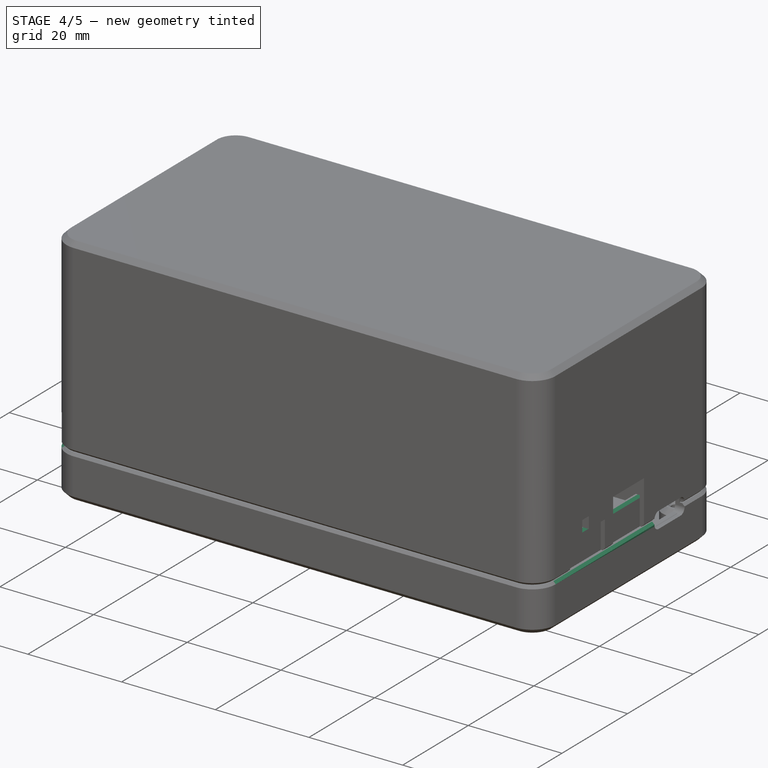
[diagram: stage 4 of 5 — iso view after this stage's code; geometry added in this stage tinted green]
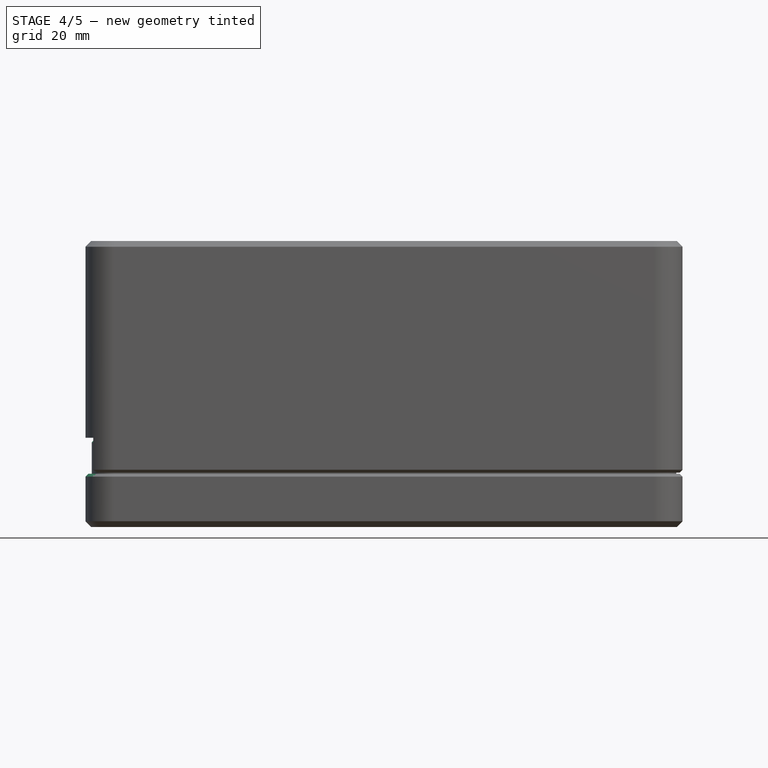
[diagram: stage 4 of 5 — front view after this stage's code; geometry added in this stage tinted green]
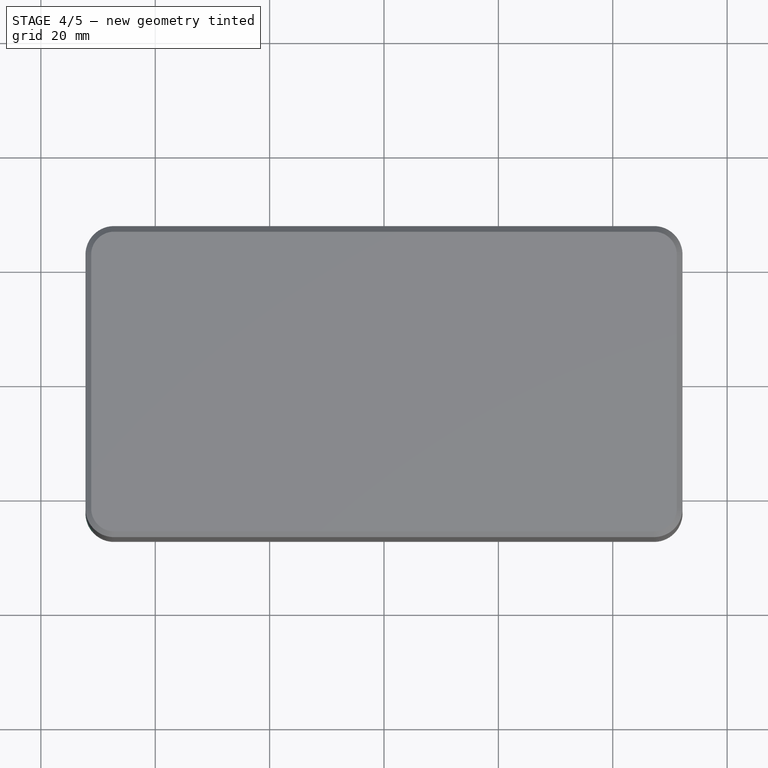
[diagram: stage 4 of 5 — top view after this stage's code; geometry added in this stage tinted green]
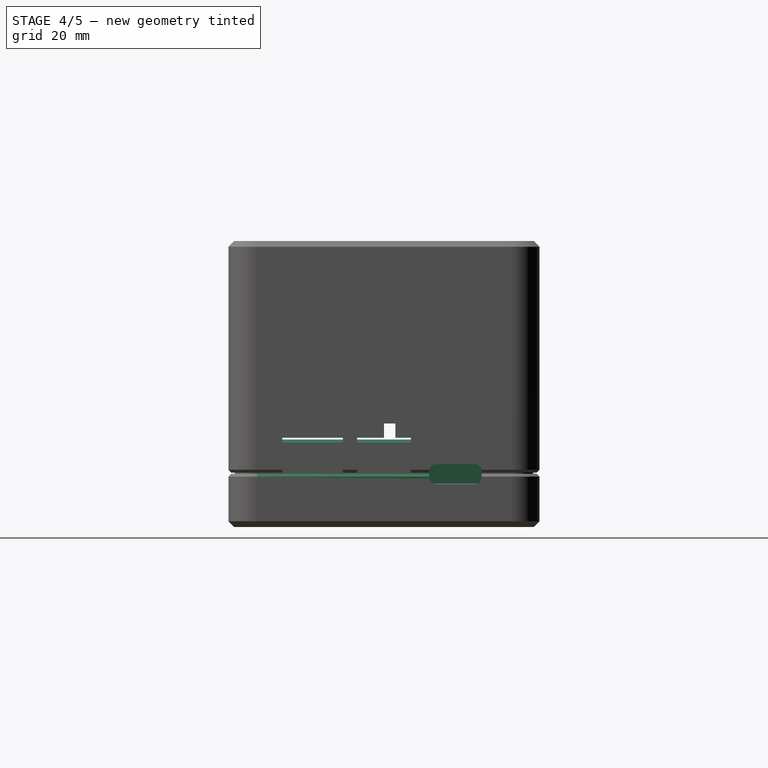
[diagram: stage 4 of 5 — right view after this stage's code; geometry added in this stage tinted green]
FEATURE [Sketcher::SketchObject] Sketch003  label="Screwholes"
  FullyConstrained = true
  MapMode = 5
  Placement = pos=(0,0,2) rot=(0,0,1;0rad)
  Support = -> [DatumPlane]
  sketch-geometry (4):
    g0: Circle CenterX=-40 CenterY=15 CenterZ=0 NormalX=0 NormalY=0 NormalZ=1 AngleXU=0 Radius=2
    g1: Circle CenterX=40 CenterY=15 CenterZ=0 NormalX=0 NormalY=0 NormalZ=1 AngleXU=0 Radius=2
    g2: Circle CenterX=40 CenterY=-15 CenterZ=0 NormalX=0 NormalY=0 NormalZ=1 AngleXU=0 Radius=2
    g3: Circle CenterX=-40 CenterY=-15 CenterZ=0 NormalX=0 NormalY=0 NormalZ=1 AngleXU=0 Radius=2
  constraints (10):
    c: Equal(g0,g1)
    c: Equal(g1,g2)
    c: Equal(g2,g3)
    c: Diameter(g1) = 4
    c: Horizontal(g2,g3)
    c: Vertical(g2,g1)
    c: Symmetric(g0,g3,g-1)
    c: DistanceY(g3,g0) = 30
    c: DistanceX(g0,g1) = 80
    c: Symmetric(g1,g0,g-2)
FEATURE [Sketcher::SketchObject] Sketch004
  FullyConstrained = true
  MapMode = 5
  Support = -> [XY_Plane190]
  sketch-geometry (16):
    g0: LineSegment StartX=-50 StartY=-25 StartZ=0 EndX=50 EndY=-25 EndZ=0
    g1: LineSegment StartX=50 StartY=-25 StartZ=0 EndX=50 EndY=25 EndZ=0
    g2: LineSegment StartX=50 StartY=25 StartZ=0 EndX=-50 EndY=25 EndZ=0
    g3: LineSegment StartX=-50 StartY=25 StartZ=0 EndX=-50 EndY=-25 EndZ=0
    g4: Circle CenterX=-38 CenterY=22 CenterZ=0 NormalX=0 NormalY=0 NormalZ=1 AngleXU=0 Radius=1.35
    g5: Circle CenterX=47 CenterY=22 CenterZ=0 NormalX=0 NormalY=0 NormalZ=1 AngleXU=0 Radius=1.35
    g6: Circle CenterX=47 CenterY=-22 CenterZ=0 NormalX=0 NormalY=0 NormalZ=1 AngleXU=0 Radius=1.35
    g7: Circle CenterX=-38 CenterY=-22 CenterZ=0 NormalX=0 NormalY=0 NormalZ=1 AngleXU=0 Radius=1.35
    g8: ArcOfCircle CenterX=-47.2 CenterY=22.2 CenterZ=0 NormalX=0 NormalY=0 NormalZ=1 AngleXU=0 Radius=3 StartAngle=1.5708 EndAngle=3.14159
    g9: ArcOfCircle CenterX=-47.2 CenterY=22.2 CenterZ=0 NormalX=0 NormalY=0 NormalZ=1 AngleXU=0 Radius=5 StartAngle=1.5708 EndAngle=3.14159
    g10: LineSegment StartX=-47.2 StartY=27.2 StartZ=0 EndX=0 EndY=27.2 EndZ=0
    g11: LineSegment StartX=-47.2 StartY=25.2 StartZ=0 EndX=0 EndY=25.2 EndZ=0
    g12: LineSegment StartX=0 StartY=27.2 StartZ=0 EndX=0 EndY=25.2 EndZ=0
    g13: LineSegment StartX=-52.2 StartY=22.2 StartZ=0 EndX=-52.2 EndY=0 EndZ=0
    g14: LineSegment StartX=-50.2 StartY=22.2 StartZ=0 EndX=-50.2 EndY=0 EndZ=0
    g15: LineSegment StartX=-52.2 StartY=0 StartZ=0 EndX=-50.2 EndY=0 EndZ=0
  constraints (46):
    c: Coincident(g0,g1)
    c: Coincident(g1,g2)
    c: Coincident(g2,g3)
    c: Coincident(g3,g0)
    c: Horizontal(g0)
    c: Vertical(g3)
    c: Symmetric(g2,g1,g-2)
    c: Symmetric(g0,g1,g-1)
    c: Distance(g2) = 100
    c: Distance(g3) = 50
    c: Equal(g4,g5)
    c: Equal(g5,g6)
    c: Equal(g6,g7)
    c: Diameter(g6) = 2.7
    c: DistanceY(g6,g5) = 44
    c: Horizontal(g5,g4)
    c: Horizontal(g7,g6)
    c: DistanceX(g4,g5) = 85
    c: Symmetric(g5,g6,g-1)
    c: DistanceX(g-1,g5) = 47
    c: Vertical(g7,g4)
    c: Coincident(g9,g8)
    c: Vertical(g9,g8)
    c: Vertical(g8,g8)
    c: Horizontal(g9,g8)
    c: Horizontal(g8,g8)
    c: DistanceX(g9,g8) = 2
    c: Radius(g9) = 5
    c: DistanceX(g8,g2) = 0.2
    c: Coincident(g10,g9)
    c: PointOnObject(g10,g-2)
    c: Horizontal(g10)
    c: Coincident(g11,g8)
    c: PointOnObject(g11,g-2)
    c: Horizontal(g11)
    c: Coincident(g12,g10)
    c: Coincident(g12,g11)
    c: Coincident(g13,g9)
    c: PointOnObject(g13,g-1)
    c: Vertical(g13)
    c: Coincident(g14,g8)
    c: PointOnObject(g14,g-1)
    c: Vertical(g14)
    c: Coincident(g15,g13)
    c: Coincident(g15,g14)
    c: DistanceY(g2,g8) = 0.2
FEATURE [PartDesign::Pad] Pad003  label="Wall001"
  Direction = (1,1,1)
  Length = 15.3
  Length2 = 100
  Profile = -> Sketch004
  Refine = true
  Type = 0
  expr: Length = <<Variables>>.BotWall
FEATURE [PartDesign::Mirrored] Mirrored005
  MirrorPlane = -> Sketch004 [V_Axis]
  Overlap = 0
  Refine = true
FEATURE [PartDesign::Mirrored] Mirrored006
  MirrorPlane = -> Sketch004 [H_Axis]
  Overlap = 0
  Refine = true
FEATURE [PartDesign::MultiTransform] MultiTransform002
  BaseFeature = -> Pad003
  Originals = -> [Pad003]
  Overlap = 0
  Refine = true
  Transformations = -> [Mirrored005,Mirrored006]
FEATURE [Sketcher::SketchObject] Sketch005
  FullyConstrained = true
  MapMode = 5
  Support = -> [XY_Plane190]
  sketch-geometry (5):
    g0: ArcOfCircle CenterX=-47.2 CenterY=22.2 CenterZ=0 NormalX=0 NormalY=0 NormalZ=1 AngleXU=0 Radius=3 StartAngle=1.5708 EndAngle=3.14159
    g1: LineSegment StartX=-47.2 StartY=25.2 StartZ=0 EndX=0 EndY=25.2 EndZ=0
    g2: LineSegment StartX=-50.2 StartY=22.2 StartZ=0 EndX=-50.2 EndY=0 EndZ=0
    g3: LineSegment StartX=-50.2 StartY=0 StartZ=0 EndX=0 EndY=0 EndZ=0
    g4: LineSegment StartX=0 StartY=0 StartZ=0 EndX=0 EndY=25.2 EndZ=0
  constraints (15):
    c: Vertical(g0,g0)
    c: Horizontal(g0,g0)
    c: Radius(g0) = 3
    c: DistanceY(g-1,g0) = 25.2
    c: DistanceX(g0,g-1) = 50.2
    c: Coincident(g1,g0)
    c: PointOnObject(g1,g-2)
    c: Horizontal(g1)
    c: Coincident(g2,g0)
    c: PointOnObject(g2,g-1)
    c: Vertical(g2)
    c: Coincident(g3,g2)
    c: Coincident(g3,g-1)
    c: Coincident(g4,g3)
    c: Coincident(g4,g1)
FEATURE [PartDesign::Pad] Pad004  label="Floor001"
  BaseFeature = -> MultiTransform002
  Direction = (1,1,1)
  Length = 2
  Length2 = 100
  Profile = -> Sketch005
  Refine = true
  Type = 0
FEATURE [PartDesign::Mirrored] Mirrored007
  MirrorPlane = -> Sketch005 [V_Axis]
  Overlap = 0
  Refine = true
FEATURE [PartDesign::Mirrored] Mirrored008
  MirrorPlane = -> Sketch005 [H_Axis]
  Overlap = 0
  Refine = true
FEATURE [PartDesign::MultiTransform] MultiTransform003
  BaseFeature = -> Pad004
  Originals = -> [Pad004]
  Overlap = 0
  Refine = true
  Transformations = -> [Mirrored007,Mirrored008]
FEATURE [PartDesign::Plane] DatumPlane001  label="InnerFloor001"
  AttachmentOffset = pos=(0,0,2) rot=(0,0,1;0rad)
  Length = 119.472
  MapMode = 5
  Placement = pos=(0,0,2) rot=(0,0,1;0rad)
  ResizeMode = 0
  Support = -> [XY_Plane190]
  Width = 69.4723
FEATURE [Sketcher::SketchObject] Sketch006
  FullyConstrained = true
  MapMode = 5
  Placement = pos=(0,0,2) rot=(0,0,1;0rad)
  Support = -> [MultiTransform003]
  sketch-geometry (12):
    g0: Circle CenterX=47 CenterY=22 CenterZ=0 NormalX=0 NormalY=0 NormalZ=1 AngleXU=0 Radius=1
    g1: ArcOfCircle CenterX=47.2 CenterY=22.2 CenterZ=0 NormalX=0 NormalY=0 NormalZ=1 AngleXU=0 Radius=3 StartAngle=0 EndAngle=1.5708
    g2: ArcOfCircle CenterX=47 CenterY=22 CenterZ=0 NormalX=0 NormalY=0 NormalZ=1 AngleXU=0 Radius=3 StartAngle=3.14159 EndAngle=4.71239
    g3: LineSegment StartX=44 StartY=22 StartZ=0 EndX=44 EndY=25.2 EndZ=0
    g4: LineSegment StartX=47.2 StartY=25.2 StartZ=0 EndX=44 EndY=25.2 EndZ=0
    g5: LineSegment StartX=47 StartY=19 StartZ=0 EndX=50.2 EndY=19 EndZ=0
    g6: LineSegment StartX=50.2 StartY=22.2 StartZ=0 EndX=50.2 EndY=19 EndZ=0
    g7: Circle CenterX=-38 CenterY=22 CenterZ=0 NormalX=0 NormalY=0 NormalZ=1 AngleXU=0 Radius=1
    g8: ArcOfCircle CenterX=-38 CenterY=22 CenterZ=0 NormalX=0 NormalY=0 NormalZ=1 AngleXU=0 Radius=3 StartAngle=3.14159 EndAngle=6.28319
    g9: LineSegment StartX=-35 StartY=22 StartZ=0 EndX=-35 EndY=25.2 EndZ=0
    g10: LineSegment StartX=-41 StartY=22 StartZ=0 EndX=-41 EndY=25.2 EndZ=0
    g11: LineSegment StartX=-41 StartY=25.2 StartZ=0 EndX=-35 EndY=25.2 EndZ=0
  constraints (37):
    c: DistanceY(g-1,g0) = 22
    c: DistanceX(g-1,g0) = 47
    c: DistanceX(g0,g1) = 0.2
    c: DistanceY(g0,g1) = 0.2
    c: Radius(g1) = 3
    c: Vertical(g1,g1)
    c: Horizontal(g1,g1)
    c: Diameter(g0) = 2
    c: Coincident(g2,g0)
    c: Horizontal(g2,g0)
    c: Vertical(g2,g0)
    c: Radius(g2) = 3
    c: Coincident(g3,g2)
    c: Vertical(g3)
    c: Coincident(g4,g1)
    c: Coincident(g4,g3)
    c: Horizontal(g4)
    c: Coincident(g5,g2)
    c: Horizontal(g5)
    c: Coincident(g6,g1)
    c: Coincident(g6,g5)
    c: Vertical(g6)
    c: Equal(g7,g0)
    c: Horizontal(g7,g0)
    c: DistanceX(g7,g0) = 85
    c: Coincident(g8,g7)
    c: Radius(g8) = 3
    c: Horizontal(g8,g7)
    c: Horizontal(g7,g8)
    c: Coincident(g9,g8)
    c: Vertical(g9)
    c: Coincident(g10,g8)
    c: Vertical(g10)
    c: Coincident(g11,g10)
    c: Coincident(g11,g9)
    c: Horizontal(g11)
    c: Horizontal(g9,g3)
FEATURE [PartDesign::Pad] Pad005  label="Headers001"
  BaseFeature = -> MultiTransform003
  Direction = (1,1,1)
  Length = 4
  Length2 = 100
  Profile = -> Sketch006
  Refine = true
  Type = 0
FEATURE [PartDesign::Mirrored] Mirrored009
  BaseFeature = -> Pad005
  MirrorPlane = -> Sketch006 [H_Axis]
  Originals = -> [Pad005]
  Overlap = 0
  Refine = true
FEATURE [Sketcher::SketchObject] Sketch010
  FullyConstrained = true
  MapMode = 5
  Placement = pos=(0,0,15.3) rot=(0,0,1;0rad)
  Support = -> [Mirrored009]
  sketch-geometry (8):
    g0: ArcOfCircle CenterX=-47.2 CenterY=22.2 CenterZ=0 NormalX=0 NormalY=0 NormalZ=1 AngleXU=0 Radius=5 StartAngle=1.5708 EndAngle=3.14159
    g1: ArcOfCircle CenterX=-47.2 CenterY=22.2 CenterZ=0 NormalX=0 NormalY=0 NormalZ=1 AngleXU=0 Radius=3.9 StartAngle=1.5708 EndAngle=3.14159
    g2: LineSegment StartX=-51.1 StartY=22.2 StartZ=0 EndX=-51.1 EndY=0 EndZ=0
    g3: LineSegment StartX=-51.1 StartY=0 StartZ=0 EndX=-52.2 EndY=0 EndZ=0
    g4: LineSegment StartX=-52.2 StartY=0 StartZ=0 EndX=-52.2 EndY=22.2 EndZ=0
    g5: LineSegment StartX=-47.2 StartY=27.2 StartZ=0 EndX=0 EndY=27.2 EndZ=0
    g6: LineSegment StartX=0 StartY=27.2 StartZ=0 EndX=0 EndY=26.1 EndZ=0
    g7: LineSegment StartX=0 StartY=26.1 StartZ=0 EndX=-47.2 EndY=26.1 EndZ=0
  constraints (23):
    c: Coincident(g1,g0)
    c: Vertical(g0,g1)
    c: Vertical(g1,g0)
    c: Horizontal(g0,g1)
    c: Horizontal(g1,g0)
    c: Radius(g0) = 5
    c: DistanceY(g1,g0) = 1.1
    c: DistanceX(g0,g-1) = 47.2
    c: DistanceY(g-1,g0) = 22.2
    c: Tangent(g1,g2) = -1.5708
    c: Coincident(g2,g3)
    c: PointOnObject(g3,g-1)
    c: Coincident(g3,g4)
    c: Coincident(g4,g0)
    c: Vertical(g4)
    c: Horizontal(g3)
    c: Tangent(g0,g5) = 1.5708
    c: Coincident(g5,g6)
    c: PointOnObject(g6,g-2)
    c: Vertical(g6)
    c: Coincident(g6,g7)
    c: Coincident(g7,g1)
    c: Horizontal(g7)
FEATURE [PartDesign::Pocket] Pocket001
  BaseFeature = -> Mirrored009
  Length = 6
  Length2 = 100
  Profile = -> Sketch010
  Refine = true
  Type = 0
  expr: Length = <<Variables>>.Overlap
FEATURE [PartDesign::Mirrored] Mirrored012
  MirrorPlane = -> Sketch010 [V_Axis]
  Overlap = 0
  Refine = true
FEATURE [PartDesign::Mirrored] Mirrored013
  MirrorPlane = -> Sketch010 [H_Axis]
  Overlap = 0
  Refine = true
FEATURE [PartDesign::MultiTransform] MultiTransform005
  BaseFeature = -> Pocket001
  Originals = -> [Pocket001]
  Overlap = 0
  Refine = true
  Transformations = -> [Mirrored012,Mirrored013]
FEATURE [Sketcher::SketchObject] Sketch012  label="Snap"
  FullyConstrained = true
  MapMode = 5
  Placement = pos=(0,0,0) rot=(0.57735,0.57735,0.57735;2.0944rad)
  Support = -> [YZ_Plane190]
  expr: Constraints[5] = <<Variables>>.BotWall - <<Variables>>.Overlap / 2
  sketch-geometry (2):
    g0: ArcOfCircle CenterX=-26.1 CenterY=12.3 CenterZ=0 NormalX=0 NormalY=0 NormalZ=1 AngleXU=0 Radius=0.6 StartAngle=1.5708 EndAngle=4.71239
    g1: LineSegment StartX=-26.1 StartY=12.9 StartZ=0 EndX=-26.1 EndY=11.7 EndZ=0
  constraints (7):
    c: Vertical(g0,g0)
    c: Vertical(g0,g0)
    c: Coincident(g1,g0)
    c: Coincident(g1,g0)
    c: Radius(g0) = 0.6
    c: DistanceY(g-1,g0) = 12.3
    c: DistanceX(g0,g-1) = 26.1
FEATURE [PartDesign::Pad] Pad008
  BaseFeature = -> MultiTransform005
  Direction = (1,1,1)
  Length = 60
  Length2 = 100
  Midplane = true
  Profile = -> Sketch012
  Refine = true
  Type = 0
FEATURE [PartDesign::Pocket] Pocket002
  BaseFeature = -> Pad008
  Length = 40
  Length2 = 100
  Midplane = true
  Profile = -> Sketch012
  Refine = true
  Reversed = true
  Type = 0
FEATURE [PartDesign::Mirrored] Mirrored016
  BaseFeature = -> Pocket002
  MirrorPlane = -> Sketch012 [V_Axis]
  Originals = -> [Pad008,Pocket002]
  Overlap = 0
  Refine = true
FEATURE [PartDesign::Plane] DatumPlane004  label="Right"
  AttachmentOffset = pos=(0,0,52.2) rot=(0,0,1;0rad)
  Length = 64.8307
  MapMode = 5
  Placement = pos=(52.2,-1.16e-14,1.16e-14) rot=(0.57735,0.57735,0.57735;2.0944rad)
  ResizeMode = 0
  Support = -> [YZ_Plane190]
  Width = 60.4307
FEATURE [PartDesign::Plane] DatumPlane005  label="Left"
  AttachmentOffset = pos=(0,0,-52.2) rot=(0,1,0;3.14159rad)
  Length = 64.8307
  MapMode = 5
  Placement = pos=(-52.2,1.16e-14,-1.16e-14) rot=(-0.57735,0.57735,0.57735;4.18879rad)
  ResizeMode = 0
  Support = -> [YZ_Plane190]
  Width = 60.4307
FEATURE [Sketcher::SketchObject] Sketch014  label="USB"
  FullyConstrained = true
  MapMode = 5
  Placement = pos=(52.2,-1.16e-14,1.16e-14) rot=(0.57735,0.57735,0.57735;2.0944rad)
  Support = -> [DatumPlane004]
  sketch-geometry (8):
    g0: ArcOfCircle CenterX=9.15 CenterY=8.75 CenterZ=0 NormalX=0 NormalY=0 NormalZ=1 AngleXU=0 Radius=1.25 StartAngle=3.14159 EndAngle=4.71239
    g1: ArcOfCircle CenterX=15.85 CenterY=8.75 CenterZ=0 NormalX=0 NormalY=0 NormalZ=1 AngleXU=0 Radius=1.25 StartAngle=4.71239 EndAngle=6.28319
    g2: LineSegment StartX=9.15 StartY=7.5 StartZ=0 EndX=15.85 EndY=7.5 EndZ=0
    g3: LineSegment StartX=17.1 StartY=8.75 StartZ=0 EndX=17.1 EndY=58.75 EndZ=0
    g4: LineSegment StartX=7.9 StartY=8.75 StartZ=0 EndX=7.9 EndY=58.75 EndZ=0
    g5: LineSegment StartX=7.9 StartY=58.75 StartZ=0 EndX=17.1 EndY=58.75 EndZ=0
    g6: LineSegment StartX=9.15 StartY=7.5 StartZ=0 EndX=12.5 EndY=7.5 EndZ=0
    g7: LineSegment StartX=12.5 StartY=7.5 StartZ=0 EndX=15.85 EndY=7.5 EndZ=0
  constraints (25):
    c: Coincident(g2,g0)
    c: Coincident(g2,g1)
    c: Coincident(g3,g1)
    c: Vertical(g3)
    c: Coincident(g4,g0)
    c: Vertical(g4)
    c: Coincident(g5,g4)
    c: Coincident(g5,g3)
    c: Horizontal(g5)
    c: Horizontal(g0,g1)
    c: Horizontal(g0,g0)
    c: Horizontal(g0,g1)
    c: Horizontal(g1,g1)
    c: Vertical(g0,g0)
    c: Vertical(g1,g1)
    c: DistanceX(g0,g1) = 9.2
    c: Coincident(g6,g0)
    c: Coincident(g7,g6)
    c: Coincident(g7,g1)
    c: Equal(g7,g6)
    c: Horizontal(g7)
    c: DistanceX(g-1,g6) = 12.5
    c: Radius(g0) = 1.25
    c: DistanceY(g-1,g0) = 7.5
    c: DistanceY(g3,g3) = 50
FEATURE [Sketcher::SketchObject] Sketch015  label="Barrel"
  FullyConstrained = true
  MapMode = 5
  Placement = pos=(52.2,-1.16e-14,1.16e-14) rot=(0.57735,0.57735,0.57735;2.0944rad)
  Support = -> [DatumPlane004]
  sketch-geometry (4):
    g0: LineSegment StartX=-4.7 StartY=7.6 StartZ=0 EndX=4.7 EndY=7.6 EndZ=0
    g1: LineSegment StartX=4.7 StartY=7.6 StartZ=0 EndX=4.7 EndY=57.6 EndZ=0
    g2: LineSegment StartX=4.7 StartY=57.6 StartZ=0 EndX=-4.7 EndY=57.6 EndZ=0
    g3: LineSegment StartX=-4.7 StartY=57.6 StartZ=0 EndX=-4.7 EndY=7.6 EndZ=0
  constraints (11):
    c: Coincident(g0,g1)
    c: Coincident(g1,g2)
    c: Coincident(g2,g3)
    c: Coincident(g3,g0)
    c: Horizontal(g0)
    c: Vertical(g1)
    c: Vertical(g3)
    c: Symmetric(g2,g1,g-2)
    c: Distance(g2) = 9.4
    c: DistanceY(g1,g1) = 50
    c: DistanceY(g-1,g0) = 7.6
FEATURE [Sketcher::SketchObject] Sketch016  label="DC"
  FullyConstrained = true
  MapMode = 5
  Placement = pos=(52.2,-1.16e-14,1.16e-14) rot=(0.57735,0.57735,0.57735;2.0944rad)
  Support = -> [DatumPlane004]
  sketch-geometry (10):
    g0: LineSegment StartX=-17.8 StartY=7.6 StartZ=0 EndX=-7.2 EndY=7.6 EndZ=0
    g1: LineSegment StartX=-7.2 StartY=7.6 StartZ=0 EndX=-7.2 EndY=15.6 EndZ=0
    g2: LineSegment StartX=-7.2 StartY=15.6 StartZ=0 EndX=-12.1 EndY=15.6 EndZ=0
    g3: LineSegment StartX=-12.1 StartY=15.6 StartZ=0 EndX=-12.1 EndY=18.1 EndZ=0
    g4: LineSegment StartX=-12.1 StartY=18.1 StartZ=0 EndX=-14.1 EndY=18.1 EndZ=0
    g5: LineSegment StartX=-14.1 StartY=18.1 StartZ=0 EndX=-14.1 EndY=15.6 EndZ=0
    g6: LineSegment StartX=-14.1 StartY=15.6 StartZ=0 EndX=-17.8 EndY=15.6 EndZ=0
    g7: LineSegment StartX=-17.8 StartY=15.6 StartZ=0 EndX=-17.8 EndY=7.6 EndZ=0
    g8: LineSegment StartX=-17.8 StartY=7.6 StartZ=0 EndX=-12.5 EndY=7.6 EndZ=0
    g9: LineSegment StartX=-12.5 StartY=7.6 StartZ=0 EndX=-7.2 EndY=7.6 EndZ=0
  constraints (29):
    c: Horizontal(g0)
    c: Coincident(g0,g1)
    c: Vertical(g1)
    c: Coincident(g1,g2)
    c: Horizontal(g2)
    c: Coincident(g2,g3)
    c: Vertical(g3)
    c: Coincident(g3,g4)
    c: Horizontal(g4)
    c: Coincident(g4,g5)
    c: Vertical(g5)
    c: Coincident(g5,g6)
    c: Horizontal(g6)
    c: Coincident(g6,g7)
    c: Coincident(g7,g0)
    c: Vertical(g7)
    c: DistanceX(g0,g0) = 10.6
    c: DistanceY(g1,g1) = 8
    c: Horizontal(g5,g2)
    c: DistanceY(g3,g3) = 2.5
    c: DistanceX(g4,g4) = 2
    c: Coincident(g8,g0)
    c: Coincident(g9,g8)
    c: Coincident(g9,g0)
    c: Equal(g9,g8)
    c: Horizontal(g9)
    c: DistanceX(g8,g-1) = 12.5
    c: DistanceY(g-1,g8) = 7.6
    c: DistanceX(g6,g6) = 3.7
FEATURE [PartDesign::Plane] DatumPlane006  label="Right001"
  AttachmentOffset = pos=(0,0,52.2) rot=(0,0,1;0rad)
  Length = 64.8307
  MapMode = 5
  Placement = pos=(52.2,-1.16e-14,1.16e-14) rot=(0.57735,0.57735,0.57735;2.0944rad)
  ResizeMode = 0
  Support = -> [YZ_Plane191]
  Width = 60.4307
FEATURE [PartDesign::Plane] DatumPlane007  label="Left001"
  AttachmentOffset = pos=(0,0,-52.2) rot=(0,1,0;3.14159rad)
  Length = 64.8307
  MapMode = 5
  Placement = pos=(-52.2,1.16e-14,-1.16e-14) rot=(-0.57735,0.57735,0.57735;4.18879rad)
  ResizeMode = 0
  Support = -> [YZ_Plane191]
  Width = 60.4307
FEATURE [Sketcher::SketchObject] Sketch017  label="DC002"
  FullyConstrained = true
  MapMode = 5
  Placement = pos=(52.2,-1.16e-14,1.16e-14) rot=(0.57735,0.57735,0.57735;2.0944rad)
  Support = -> [DatumPlane006]
  expr: Constraints[14] = Sketch016.Constraints[17]
  expr: Constraints[22] = Sketch016.Constraints[27]
  expr: Constraints[17] = Sketch016.Constraints[20]
  expr: Constraints[13] = Sketch016.Constraints[16]
  expr: Constraints[16] = Sketch016.Constraints[19]
  expr: Constraints[21] = Sketch016.Constraints[26]
  expr: Constraints[23] = Sketch016.Constraints[28]
  sketch-geometry (12):
    g0: LineSegment StartX=-7.2 StartY=7.6 StartZ=0 EndX=-7.2 EndY=15.6 EndZ=0
    g1: LineSegment StartX=-7.2 StartY=15.6 StartZ=0 EndX=-12.1 EndY=15.6 EndZ=0
    g2: LineSegment StartX=-12.1 StartY=15.6 StartZ=0 EndX=-12.1 EndY=18.1 EndZ=0
    g3: LineSegment StartX=-12.1 StartY=18.1 StartZ=0 EndX=-14.1 EndY=18.1 EndZ=0
    g4: LineSegment StartX=-14.1 StartY=18.1 StartZ=0 EndX=-14.1 EndY=15.6 EndZ=0
    g5: LineSegment StartX=-14.1 StartY=15.6 StartZ=0 EndX=-17.8 EndY=15.6 EndZ=0
    g6: LineSegment StartX=-17.8 StartY=15.6 StartZ=0 EndX=-17.8 EndY=7.6 EndZ=0
    g7: LineSegment StartX=-17.8 StartY=7.6 StartZ=0 EndX=-12.5 EndY=7.6 EndZ=0
    g8: LineSegment StartX=-12.5 StartY=7.6 StartZ=0 EndX=-7.2 EndY=7.6 EndZ=0
    g9: LineSegment StartX=-7.2 StartY=7.6 StartZ=0 EndX=-7.2 EndY=2.6 EndZ=0
    g10: LineSegment StartX=-7.2 StartY=2.6 StartZ=0 EndX=-17.8 EndY=2.6 EndZ=0
    g11: LineSegment StartX=-17.8 StartY=7.6 StartZ=0 EndX=-17.8 EndY=2.6 EndZ=0
  constraints (35):
    c: Vertical(g0)
    c: Coincident(g0,g1)
    c: Horizontal(g1)
    c: Coincident(g1,g2)
    c: Vertical(g2)
    c: Coincident(g2,g3)
    c: Horizontal(g3)
    c: Coincident(g3,g4)
    c: Vertical(g4)
    c: Coincident(g4,g5)
    c: Horizontal(g5)
    c: Coincident(g5,g6)
    c: Vertical(g6)
    c: DistanceX(g6,g0) = 10.6
    c: DistanceY(g0,g0) = 8
    c: Horizontal(g4,g1)
    c: DistanceY(g2,g2) = 2.5
    c: DistanceX(g3,g3) = 2
    c: Coincident(g8,g7)
    c: Equal(g8,g7)
    c: Horizontal(g8)
    c: DistanceX(g7,g-1) = 12.5
    c: DistanceY(g-1,g7) = 7.6
    c: DistanceX(g5,g5) = 3.7
    c: Coincident(g8,g0)
    c: Coincident(g7,g6)
    c: Horizontal(g7)
    c: Coincident(g9,g0)
    c: Vertical(g9)
    c: DistanceY(g9,g9) = 5
    c: Coincident(g10,g9)
    c: Horizontal(g10)
    c: Coincident(g11,g6)
    c: Coincident(g11,g10)
    c: Vertical(g11)
FEATURE [Sketcher::SketchObject] Sketch018  label="Barrel002"
  FullyConstrained = true
  MapMode = 5
  Placement = pos=(52.2,-1.16e-14,1.16e-14) rot=(0.57735,0.57735,0.57735;2.0944rad)
  Support = -> [DatumPlane006]
  expr: Constraints[8] = Sketch015.Constraints[8]
  expr: Constraints[9] = Sketch015.Constraints[9]
  sketch-geometry (4):
    g0: LineSegment StartX=-4.7 StartY=-31 StartZ=0 EndX=4.7 EndY=-31 EndZ=0
    g1: LineSegment StartX=4.7 StartY=-31 StartZ=0 EndX=4.7 EndY=19 EndZ=0
    g2: LineSegment StartX=4.7 StartY=19 StartZ=0 EndX=-4.7 EndY=19 EndZ=0
    g3: LineSegment StartX=-4.7 StartY=19 StartZ=0 EndX=-4.7 EndY=-31 EndZ=0
  constraints (11):
    c: Coincident(g0,g1)
    c: Coincident(g1,g2)
    c: Coincident(g2,g3)
    c: Coincident(g3,g0)
    c: Horizontal(g0)
    c: Vertical(g1)
    c: Vertical(g3)
    c: Symmetric(g2,g1,g-2)
    c: Distance(g2) = 9.4
    c: DistanceY(g1,g1) = 50
    c: DistanceY(g-1,g2) = 19
FEATURE [Sketcher::SketchObject] Sketch019  label="USB002"
  FullyConstrained = true
  MapMode = 5
  Placement = pos=(52.2,-1.16e-14,1.16e-14) rot=(0.57735,0.57735,0.57735;2.0944rad)
  Support = -> [DatumPlane006]
  sketch-geometry (8):
    g0: LineSegment StartX=7.9 StartY=-40.25 StartZ=0 EndX=7.9 EndY=9.75 EndZ=0
    g1: LineSegment StartX=9.15 StartY=11 StartZ=0 EndX=15.85 EndY=11 EndZ=0
    g2: LineSegment StartX=17.1 StartY=9.75 StartZ=0 EndX=17.1 EndY=-40.25 EndZ=0
    g3: ArcOfCircle CenterX=15.85 CenterY=9.75 CenterZ=0 NormalX=0 NormalY=0 NormalZ=1 AngleXU=0 Radius=1.25 StartAngle=0 EndAngle=1.5708
    g4: ArcOfCircle CenterX=9.15 CenterY=9.75 CenterZ=0 NormalX=0 NormalY=0 NormalZ=1 AngleXU=0 Radius=1.25 StartAngle=1.5708 EndAngle=3.14159
    g5: LineSegment StartX=9.15 StartY=11 StartZ=0 EndX=12.5 EndY=11 EndZ=0
    g6: LineSegment StartX=12.5 StartY=11 StartZ=0 EndX=15.85 EndY=11 EndZ=0
    g7: LineSegment StartX=7.9 StartY=-40.25 StartZ=0 EndX=17.1 EndY=-40.25 EndZ=0
  constraints (25):
    c: Vertical(g0)
    c: Horizontal(g1)
    c: Vertical(g2)
    c: Coincident(g3,g1)
    c: Coincident(g3,g2)
    c: Coincident(g4,g0)
    c: Coincident(g4,g1)
    c: Equal(g3,g4)
    c: Radius(g3) = 1.25
    c: Horizontal(g0,g4)
    c: Horizontal(g3,g2)
    c: Vertical(g1,g3)
    c: Vertical(g1,g4)
    c: DistanceX(g0,g2) = 9.2
    c: Coincident(g5,g1)
    c: Coincident(g6,g5)
    c: Coincident(g6,g1)
    c: Equal(g5,g6)
    c: Horizontal(g5)
    c: DistanceX(g-1,g5) = 12.5
    c: DistanceY(g-1,g1) = 11
    c: DistanceY(g2,g2) = 50
    c: Coincident(g7,g0)
    c: Coincident(g7,g2)
    c: Horizontal(g7)
FEATURE [Sketcher::SketchObject] Sketch020  label="J3"
  FullyConstrained = true
  MapMode = 5
  Placement = pos=(-52.2,1.16e-14,-1.16e-14) rot=(-0.57735,0.57735,0.57735;4.18879rad)
  Support = -> [DatumPlane005]
  sketch-geometry (10):
    g0: LineSegment StartX=-5.3 StartY=7.6 StartZ=0 EndX=5.3 EndY=7.6 EndZ=0
    g1: LineSegment StartX=5.3 StartY=7.6 StartZ=0 EndX=5.3 EndY=15.6 EndZ=0
    g2: LineSegment StartX=5.3 StartY=15.6 StartZ=0 EndX=9e-16 EndY=15.6 EndZ=0
    g3: LineSegment StartX=9e-16 StartY=15.6 StartZ=0 EndX=9e-16 EndY=18.1 EndZ=0
    g4: LineSegment StartX=9e-16 StartY=18.1 StartZ=0 EndX=-2 EndY=18.1 EndZ=0
    g5: LineSegment StartX=-2 StartY=18.1 StartZ=0 EndX=-2 EndY=15.6 EndZ=0
    g6: LineSegment StartX=-2 StartY=15.6 StartZ=0 EndX=-5.3 EndY=15.6 EndZ=0
    g7: LineSegment StartX=-5.3 StartY=15.6 StartZ=0 EndX=-5.3 EndY=7.6 EndZ=0
    g8: LineSegment StartX=-5.3 StartY=7.6 StartZ=0 EndX=0 EndY=7.6 EndZ=0
    g9: LineSegment StartX=0 StartY=7.6 StartZ=0 EndX=5.3 EndY=7.6 EndZ=0
  constraints (29):
    c: Horizontal(g0)
    c: Coincident(g0,g1)
    c: Vertical(g1)
    c: Coincident(g1,g2)
    c: Horizontal(g2)
    c: Coincident(g2,g3)
    c: Vertical(g3)
    c: Coincident(g3,g4)
    c: Coincident(g4,g5)
    c: Vertical(g5)
    c: Coincident(g5,g6)
    c: Horizontal(g6)
    c: Coincident(g6,g7)
    c: Coincident(g7,g0)
    c: Vertical(g7)
    c: Horizontal(g4)
    c: DistanceX(g4,g4) = 2
    c: DistanceY(g3,g3) = 2.5
    c: DistanceY(g1,g1) = 8
    c: DistanceX(g0,g0) = 10.6
    c: Horizontal(g5,g2)
    c: DistanceY(g-1,g0) = 7.6
    c: DistanceX(g6,g6) = 3.3
    c: Coincident(g8,g0)
    c: Coincident(g9,g8)
    c: Coincident(g9,g0)
    c: Equal(g9,g8)
    c: Horizontal(g8)
    c: DistanceX(g8,g-1) = 0
FEATURE [Sketcher::SketchObject] Sketch021  label="J1"
  FullyConstrained = true
  MapMode = 5
  Placement = pos=(-52.2,1.16e-14,-1.16e-14) rot=(-0.57735,0.57735,0.57735;4.18879rad)
  Support = -> [DatumPlane005]
  expr: Constraints[28] = 5.08 * 4
  sketch-geometry (10):
    g0: LineSegment StartX=-25.62 StartY=7.6 StartZ=0 EndX=-15.02 EndY=7.6 EndZ=0
    g1: LineSegment StartX=-15.02 StartY=7.6 StartZ=0 EndX=-15.02 EndY=15.6 EndZ=0
    g2: LineSegment StartX=-15.02 StartY=15.6 StartZ=0 EndX=-19.92 EndY=15.6 EndZ=0
    g3: LineSegment StartX=-19.92 StartY=15.6 StartZ=0 EndX=-19.92 EndY=18.1 EndZ=0
    g4: LineSegment StartX=-19.92 StartY=18.1 StartZ=0 EndX=-21.92 EndY=18.1 EndZ=0
    g5: LineSegment StartX=-21.92 StartY=18.1 StartZ=0 EndX=-21.92 EndY=15.6 EndZ=0
    g6: LineSegment StartX=-21.92 StartY=15.6 StartZ=0 EndX=-25.62 EndY=15.6 EndZ=0
    g7: LineSegment StartX=-25.62 StartY=15.6 StartZ=0 EndX=-25.62 EndY=7.6 EndZ=0
    g8: LineSegment StartX=-25.62 StartY=7.6 StartZ=0 EndX=-20.32 EndY=7.6 EndZ=0
    g9: LineSegment StartX=-20.32 StartY=7.6 StartZ=0 EndX=-15.02 EndY=7.6 EndZ=0
  constraints (29):
    c: Horizontal(g0)
    c: Coincident(g0,g1)
    c: Vertical(g1)
    c: Coincident(g1,g2)
    c: Horizontal(g2)
    c: Coincident(g2,g3)
    c: Vertical(g3)
    c: Coincident(g3,g4)
    c: Coincident(g4,g5)
    c: Vertical(g5)
    c: Coincident(g5,g6)
    c: Horizontal(g6)
    c: Coincident(g6,g7)
    c: Coincident(g7,g0)
    c: Vertical(g7)
    c: Horizontal(g4)
    c: DistanceX(g4,g4) = 2
    c: DistanceY(g3,g3) = 2.5
    c: DistanceY(g1,g1) = 8
    c: DistanceX(g0,g0) = 10.6
    c: Horizontal(g5,g2)
    c: DistanceY(g-1,g0) = 7.6
    c: DistanceX(g6,g6) = 3.7
    c: Coincident(g8,g0)
    c: Coincident(g9,g8)
    c: Coincident(g9,g0)
    c: Equal(g9,g8)
    c: Horizontal(g8)
    c: DistanceX(g8,g-1) = 20.32
FEATURE [Sketcher::SketchObject] Sketch022  label="J2"
  FullyConstrained = true
  MapMode = 5
  Placement = pos=(-52.2,1.16e-14,-1.16e-14) rot=(-0.57735,0.57735,0.57735;4.18879rad)
  Support = -> [DatumPlane005]
  sketch-geometry (10):
    g0: LineSegment StartX=-15.46 StartY=7.6 StartZ=0 EndX=-4.86 EndY=7.6 EndZ=0
    g1: LineSegment StartX=-4.86 StartY=7.6 StartZ=0 EndX=-4.86 EndY=15.6 EndZ=0
    g2: LineSegment StartX=-4.86 StartY=15.6 StartZ=0 EndX=-9.76 EndY=15.6 EndZ=0
    g3: LineSegment StartX=-9.76 StartY=15.6 StartZ=0 EndX=-9.76 EndY=18.1 EndZ=0
    g4: LineSegment StartX=-9.76 StartY=18.1 StartZ=0 EndX=-11.76 EndY=18.1 EndZ=0
    g5: LineSegment StartX=-11.76 StartY=18.1 StartZ=0 EndX=-11.76 EndY=15.6 EndZ=0
    g6: LineSegment StartX=-11.76 StartY=15.6 StartZ=0 EndX=-15.46 EndY=15.6 EndZ=0
    g7: LineSegment StartX=-15.46 StartY=15.6 StartZ=0 EndX=-15.46 EndY=7.6 EndZ=0
    g8: LineSegment StartX=-15.46 StartY=7.6 StartZ=0 EndX=-10.16 EndY=7.6 EndZ=0
    g9: LineSegment StartX=-10.16 StartY=7.6 StartZ=0 EndX=-4.86 EndY=7.6 EndZ=0
  constraints (29):
    c: Horizontal(g0)
    c: Coincident(g0,g1)
    c: Vertical(g1)
    c: Coincident(g1,g2)
    c: Horizontal(g2)
    c: Coincident(g2,g3)
    c: Vertical(g3)
    c: Coincident(g3,g4)
    c: Coincident(g4,g5)
    c: Vertical(g5)
    c: Coincident(g5,g6)
    c: Horizontal(g6)
    c: Coincident(g6,g7)
    c: Coincident(g7,g0)
    c: Vertical(g7)
    c: Horizontal(g4)
    c: DistanceX(g4,g4) = 2
    c: DistanceY(g3,g3) = 2.5
    c: DistanceY(g1,g1) = 8
    c: DistanceX(g0,g0) = 10.6
    c: Horizontal(g5,g2)
    c: DistanceY(g-1,g0) = 7.6
    c: DistanceX(g6,g6) = 3.7
    c: Coincident(g8,g0)
    c: Coincident(g9,g8)
    c: Coincident(g9,g0)
    c: Equal(g9,g8)
    c: Horizontal(g8)
    c: DistanceX(g8,g-1) = 10.16
FEATURE [Sketcher::SketchObject] Sketch023  label="J4"
  FullyConstrained = true
  MapMode = 5
  Placement = pos=(-52.2,1.16e-14,-1.16e-14) rot=(-0.57735,0.57735,0.57735;4.18879rad)
  Support = -> [DatumPlane005]
  sketch-geometry (10):
    g0: LineSegment StartX=4.86 StartY=7.6 StartZ=0 EndX=15.46 EndY=7.6 EndZ=0
    g1: LineSegment StartX=15.46 StartY=7.6 StartZ=0 EndX=15.46 EndY=15.6 EndZ=0
    g2: LineSegment StartX=15.46 StartY=15.6 StartZ=0 EndX=10.56 EndY=15.6 EndZ=0
    g3: LineSegment StartX=10.56 StartY=15.6 StartZ=0 EndX=10.56 EndY=18.1 EndZ=0
    g4: LineSegment StartX=10.56 StartY=18.1 StartZ=0 EndX=8.56 EndY=18.1 EndZ=0
    g5: LineSegment StartX=8.56 StartY=18.1 StartZ=0 EndX=8.56 EndY=15.6 EndZ=0
    g6: LineSegment StartX=8.56 StartY=15.6 StartZ=0 EndX=4.86 EndY=15.6 EndZ=0
    g7: LineSegment StartX=4.86 StartY=15.6 StartZ=0 EndX=4.86 EndY=7.6 EndZ=0
    g8: LineSegment StartX=4.86 StartY=7.6 StartZ=0 EndX=10.16 EndY=7.6 EndZ=0
    g9: LineSegment StartX=10.16 StartY=7.6 StartZ=0 EndX=15.46 EndY=7.6 EndZ=0
  constraints (29):
    c: Horizontal(g0)
    c: Coincident(g0,g1)
    c: Vertical(g1)
    c: Coincident(g1,g2)
    c: Horizontal(g2)
    c: Coincident(g2,g3)
    c: Vertical(g3)
    c: Coincident(g3,g4)
    c: Coincident(g4,g5)
    c: Vertical(g5)
    c: Coincident(g5,g6)
    c: Horizontal(g6)
    c: Coincident(g6,g7)
    c: Coincident(g7,g0)
    c: Vertical(g7)
    c: Horizontal(g4)
    c: DistanceX(g4,g4) = 2
    c: DistanceY(g3,g3) = 2.5
    c: DistanceY(g1,g1) = 8
    c: DistanceX(g0,g0) = 10.6
    c: Horizontal(g5,g2)
    c: DistanceY(g-1,g0) = 7.6
    c: DistanceX(g6,g6) = 3.7
    c: Coincident(g8,g0)
    c: Coincident(g9,g8)
    c: Coincident(g9,g0)
    c: Equal(g9,g8)
    c: Horizontal(g8)
    c: DistanceX(g-1,g8) = 10.16
FEATURE [Sketcher::SketchObject] Sketch024  label="J5"
  FullyConstrained = true
  MapMode = 5
  Placement = pos=(-52.2,1.16e-14,-1.16e-14) rot=(-0.57735,0.57735,0.57735;4.18879rad)
  Support = -> [DatumPlane005]
  sketch-geometry (10):
    g0: LineSegment StartX=15.02 StartY=7.6 StartZ=0 EndX=25.62 EndY=7.6 EndZ=0
    g1: LineSegment StartX=25.62 StartY=7.6 StartZ=0 EndX=25.62 EndY=15.6 EndZ=0
    g2: LineSegment StartX=25.62 StartY=15.6 StartZ=0 EndX=20.72 EndY=15.6 EndZ=0
    g3: LineSegment StartX=20.72 StartY=15.6 StartZ=0 EndX=20.72 EndY=18.1 EndZ=0
    g4: LineSegment StartX=20.72 StartY=18.1 StartZ=0 EndX=18.72 EndY=18.1 EndZ=0
    g5: LineSegment StartX=18.72 StartY=18.1 StartZ=0 EndX=18.72 EndY=15.6 EndZ=0
    g6: LineSegment StartX=18.72 StartY=15.6 StartZ=0 EndX=15.02 EndY=15.6 EndZ=0
    g7: LineSegment StartX=15.02 StartY=15.6 StartZ=0 EndX=15.02 EndY=7.6 EndZ=0
    g8: LineSegment StartX=15.02 StartY=7.6 StartZ=0 EndX=20.32 EndY=7.6 EndZ=0
    g9: LineSegment StartX=20.32 StartY=7.6 StartZ=0 EndX=25.62 EndY=7.6 EndZ=0
  constraints (29):
    c: Horizontal(g0)
    c: Coincident(g0,g1)
    c: Vertical(g1)
    c: Coincident(g1,g2)
    c: Horizontal(g2)
    c: Coincident(g2,g3)
    c: Vertical(g3)
    c: Coincident(g3,g4)
    c: Coincident(g4,g5)
    c: Vertical(g5)
    c: Coincident(g5,g6)
    c: Horizontal(g6)
    c: Coincident(g6,g7)
    c: Coincident(g7,g0)
    c: Vertical(g7)
    c: Horizontal(g4)
    c: DistanceX(g4,g4) = 2
    c: DistanceY(g3,g3) = 2.5
    c: DistanceY(g1,g1) = 8
    c: DistanceX(g0,g0) = 10.6
    c: Horizontal(g5,g2)
    c: DistanceY(g-1,g0) = 7.6
    c: DistanceX(g6,g6) = 3.7
    c: Coincident(g8,g0)
    c: Coincident(g9,g8)
    c: Coincident(g9,g0)
    c: Equal(g9,g8)
    c: Horizontal(g8)
    c: DistanceX(g-1,g8) = 20.32
FEATURE [Sketcher::SketchObject] Sketch025  label="BJ3"
  FullyConstrained = true
  MapMode = 5
  Placement = pos=(-52.2,1.16e-14,-1.16e-14) rot=(-0.57735,0.57735,0.57735;4.18879rad)
  Support = -> [DatumPlane007]
  expr: Constraints[16] = Sketch020.Constraints[16]
  expr: Constraints[17] = Sketch020.Constraints[17]
  expr: Constraints[22] = Sketch020.Constraints[22]
  expr: Constraints[18] = Sketch020.Constraints[18]
  expr: Constraints[19] = Sketch020.Constraints[19]
  expr: Constraints[21] = Sketch020.Constraints[21]
  expr: Constraints[28] = Sketch020.Constraints[28]
  sketch-geometry (13):
    g0: LineSegment StartX=-5.3 StartY=7.6 StartZ=0 EndX=5.3 EndY=7.6 EndZ=0
    g1: LineSegment StartX=5.3 StartY=7.6 StartZ=0 EndX=5.3 EndY=15.6 EndZ=0
    g2: LineSegment StartX=5.3 StartY=15.6 StartZ=0 EndX=0 EndY=15.6 EndZ=0
    g3: LineSegment StartX=4e-16 StartY=15.6 StartZ=0 EndX=4e-16 EndY=18.1 EndZ=0
    g4: LineSegment StartX=4e-16 StartY=18.1 StartZ=0 EndX=-2 EndY=18.1 EndZ=0
    g5: LineSegment StartX=-2 StartY=18.1 StartZ=0 EndX=-2 EndY=15.6 EndZ=0
    g6: LineSegment StartX=-2 StartY=15.6 StartZ=0 EndX=-5.3 EndY=15.6 EndZ=0
    g7: LineSegment StartX=-5.3 StartY=15.6 StartZ=0 EndX=-5.3 EndY=7.6 EndZ=0
    g8: LineSegment StartX=-5.3 StartY=7.6 StartZ=0 EndX=0 EndY=7.6 EndZ=0
    g9: LineSegment StartX=0 StartY=7.6 StartZ=0 EndX=5.3 EndY=7.6 EndZ=0
    g10: LineSegment StartX=5.3 StartY=7.6 StartZ=0 EndX=5.3 EndY=-42.4 EndZ=0
    g11: LineSegment StartX=5.3 StartY=-42.4 StartZ=0 EndX=-5.3 EndY=-42.4 EndZ=0
    g12: LineSegment StartX=-5.3 StartY=-42.4 StartZ=0 EndX=-5.3 EndY=7.6 EndZ=0
  constraints (37):
    c: Horizontal(g0)
    c: Coincident(g0,g1)
    c: Vertical(g1)
    c: Coincident(g1,g2)
    c: Horizontal(g2)
    c: Coincident(g2,g3)
    c: Vertical(g3)
    c: Coincident(g3,g4)
    c: Coincident(g4,g5)
    c: Vertical(g5)
    c: Coincident(g5,g6)
    c: Horizontal(g6)
    c: Coincident(g6,g7)
    c: Coincident(g7,g0)
    c: Vertical(g7)
    c: Horizontal(g4)
    c: DistanceX(g4,g4) = 2
    c: DistanceY(g3,g3) = 2.5
    c: DistanceY(g1,g1) = 8
    c: DistanceX(g0,g0) = 10.6
    c: Horizontal(g5,g2)
    c: DistanceY(g-1,g0) = 7.6
    c: DistanceX(g6,g6) = 3.3
    c: Coincident(g8,g0)
    c: Coincident(g9,g8)
    c: Coincident(g9,g0)
    c: Equal(g9,g8)
    c: Horizontal(g8)
    c: DistanceX(g8,g-1) = 0
    c: Coincident(g10,g1)
    c: Vertical(g10)
    c: Coincident(g11,g10)
    c: Horizontal(g11)
    c: Coincident(g12,g11)
    c: Coincident(g12,g7)
    c: Vertical(g12)
    c: DistanceY(g12,g12) = 50
FEATURE [Sketcher::SketchObject] Sketch026  label="BJ001"
  FullyConstrained = true
  MapMode = 5
  Placement = pos=(-52.2,1.16e-14,-1.16e-14) rot=(-0.57735,0.57735,0.57735;4.18879rad)
  Support = -> [DatumPlane007]
  expr: Constraints[21] = Sketch020.Constraints[21]
  expr: Constraints[19] = Sketch020.Constraints[19]
  expr: Constraints[18] = Sketch020.Constraints[18]
  expr: Constraints[22] = Sketch020.Constraints[22]
  expr: Constraints[17] = Sketch020.Constraints[17]
  expr: Constraints[16] = Sketch020.Constraints[16]
  sketch-geometry (13):
    g0: LineSegment StartX=-25.62 StartY=7.6 StartZ=0 EndX=-15.02 EndY=7.6 EndZ=0
    g1: LineSegment StartX=-15.02 StartY=7.6 StartZ=0 EndX=-15.02 EndY=15.6 EndZ=0
    g2: LineSegment StartX=-15.02 StartY=15.6 StartZ=0 EndX=-20.32 EndY=15.6 EndZ=0
    g3: LineSegment StartX=-20.32 StartY=15.6 StartZ=0 EndX=-20.32 EndY=18.1 EndZ=0
    g4: LineSegment StartX=-20.32 StartY=18.1 StartZ=0 EndX=-22.32 EndY=18.1 EndZ=0
    g5: LineSegment StartX=-22.32 StartY=18.1 StartZ=0 EndX=-22.32 EndY=15.6 EndZ=0
    g6: LineSegment StartX=-22.32 StartY=15.6 StartZ=0 EndX=-25.62 EndY=15.6 EndZ=0
    g7: LineSegment StartX=-25.62 StartY=15.6 StartZ=0 EndX=-25.62 EndY=7.6 EndZ=0
    g8: LineSegment StartX=-25.62 StartY=7.6 StartZ=0 EndX=-20.32 EndY=7.6 EndZ=0
    g9: LineSegment StartX=-20.32 StartY=7.6 StartZ=0 EndX=-15.02 EndY=7.6 EndZ=0
    g10: LineSegment StartX=-15.02 StartY=7.6 StartZ=0 EndX=-15.02 EndY=-42.4 EndZ=0
    g11: LineSegment StartX=-15.02 StartY=-42.4 StartZ=0 EndX=-25.62 EndY=-42.4 EndZ=0
    g12: LineSegment StartX=-25.62 StartY=-42.4 StartZ=0 EndX=-25.62 EndY=7.6 EndZ=0
  constraints (37):
    c: Horizontal(g0)
    c: Coincident(g0,g1)
    c: Vertical(g1)
    c: Coincident(g1,g2)
    c: Horizontal(g2)
    c: Coincident(g2,g3)
    c: Vertical(g3)
    c: Coincident(g3,g4)
    c: Coincident(g4,g5)
    c: Vertical(g5)
    c: Coincident(g5,g6)
    c: Horizontal(g6)
    c: Coincident(g6,g7)
    c: Coincident(g7,g0)
    c: Vertical(g7)
    c: Horizontal(g4)
    c: DistanceX(g4,g4) = 2
    c: DistanceY(g3,g3) = 2.5
    c: DistanceY(g1,g1) = 8
    c: DistanceX(g0,g0) = 10.6
    c: Horizontal(g5,g2)
    c: DistanceY(g-1,g0) = 7.6
    c: DistanceX(g6,g6) = 3.3
    c: Coincident(g8,g0)
    c: Coincident(g9,g8)
    c: Coincident(g9,g0)
    c: Equal(g9,g8)
    c: Horizontal(g8)
    c: Coincident(g10,g1)
    c: Vertical(g10)
    c: Coincident(g11,g10)
    c: Horizontal(g11)
    c: Coincident(g12,g11)
    c: Coincident(g12,g7)
    c: Vertical(g12)
    c: DistanceY(g12,g12) = 50
    c: DistanceX(g8,g-1) = 20.32
FEATURE [Sketcher::SketchObject] Sketch027  label="BJ002"
  FullyConstrained = true
  MapMode = 5
  Placement = pos=(-52.2,1.16e-14,-1.16e-14) rot=(-0.57735,0.57735,0.57735;4.18879rad)
  Support = -> [DatumPlane007]
  expr: Constraints[21] = Sketch020.Constraints[21]
  expr: Constraints[19] = Sketch020.Constraints[19]
  expr: Constraints[18] = Sketch020.Constraints[18]
  expr: Constraints[22] = Sketch020.Constraints[22]
  expr: Constraints[17] = Sketch020.Constraints[17]
  expr: Constraints[16] = Sketch020.Constraints[16]
  sketch-geometry (13):
    g0: LineSegment StartX=-15.46 StartY=7.6 StartZ=0 EndX=-4.86 EndY=7.6 EndZ=0
    g1: LineSegment StartX=-4.86 StartY=7.6 StartZ=0 EndX=-4.86 EndY=15.6 EndZ=0
    g2: LineSegment StartX=-4.86 StartY=15.6 StartZ=0 EndX=-10.16 EndY=15.6 EndZ=0
    g3: LineSegment StartX=-10.16 StartY=15.6 StartZ=0 EndX=-10.16 EndY=18.1 EndZ=0
    g4: LineSegment StartX=-10.16 StartY=18.1 StartZ=0 EndX=-12.16 EndY=18.1 EndZ=0
    g5: LineSegment StartX=-12.16 StartY=18.1 StartZ=0 EndX=-12.16 EndY=15.6 EndZ=0
    g6: LineSegment StartX=-12.16 StartY=15.6 StartZ=0 EndX=-15.46 EndY=15.6 EndZ=0
    g7: LineSegment StartX=-15.46 StartY=15.6 StartZ=0 EndX=-15.46 EndY=7.6 EndZ=0
    g8: LineSegment StartX=-15.46 StartY=7.6 StartZ=0 EndX=-10.16 EndY=7.6 EndZ=0
    g9: LineSegment StartX=-10.16 StartY=7.6 StartZ=0 EndX=-4.86 EndY=7.6 EndZ=0
    g10: LineSegment StartX=-4.86 StartY=7.6 StartZ=0 EndX=-4.86 EndY=-42.4 EndZ=0
    g11: LineSegment StartX=-4.86 StartY=-42.4 StartZ=0 EndX=-15.46 EndY=-42.4 EndZ=0
    g12: LineSegment StartX=-15.46 StartY=-42.4 StartZ=0 EndX=-15.46 EndY=7.6 EndZ=0
  constraints (37):
    c: Horizontal(g0)
    c: Coincident(g0,g1)
    c: Vertical(g1)
    c: Coincident(g1,g2)
    c: Horizontal(g2)
    c: Coincident(g2,g3)
    c: Vertical(g3)
    c: Coincident(g3,g4)
    c: Coincident(g4,g5)
    c: Vertical(g5)
    c: Coincident(g5,g6)
    c: Horizontal(g6)
    c: Coincident(g6,g7)
    c: Coincident(g7,g0)
    c: Vertical(g7)
    c: Horizontal(g4)
    c: DistanceX(g4,g4) = 2
    c: DistanceY(g3,g3) = 2.5
    c: DistanceY(g1,g1) = 8
    c: DistanceX(g0,g0) = 10.6
    c: Horizontal(g5,g2)
    c: DistanceY(g-1,g0) = 7.6
    c: DistanceX(g6,g6) = 3.3
    c: Coincident(g8,g0)
    c: Coincident(g9,g8)
    c: Coincident(g9,g0)
    c: Equal(g9,g8)
    c: Horizontal(g8)
    c: Coincident(g10,g1)
    c: Vertical(g10)
    c: Coincident(g11,g10)
    c: Horizontal(g11)
    c: Coincident(g12,g11)
    c: Coincident(g12,g7)
    c: Vertical(g12)
    c: DistanceY(g12,g12) = 50
    c: DistanceX(g8,g-1) = 10.16
FEATURE [Sketcher::SketchObject] Sketch028  label="BJ004"
  FullyConstrained = true
  MapMode = 5
  Placement = pos=(-52.2,1.16e-14,-1.16e-14) rot=(-0.57735,0.57735,0.57735;4.18879rad)
  Support = -> [DatumPlane007]
  expr: Constraints[21] = Sketch020.Constraints[21]
  expr: Constraints[19] = Sketch020.Constraints[19]
  expr: Constraints[18] = Sketch020.Constraints[18]
  expr: Constraints[22] = Sketch020.Constraints[22]
  expr: Constraints[17] = Sketch020.Constraints[17]
  expr: Constraints[16] = Sketch020.Constraints[16]
  sketch-geometry (13):
    g0: LineSegment StartX=4.86 StartY=7.6 StartZ=0 EndX=15.46 EndY=7.6 EndZ=0
    g1: LineSegment StartX=15.46 StartY=7.6 StartZ=0 EndX=15.46 EndY=15.6 EndZ=0
    g2: LineSegment StartX=15.46 StartY=15.6 StartZ=0 EndX=10.16 EndY=15.6 EndZ=0
    g3: LineSegment StartX=10.16 StartY=15.6 StartZ=0 EndX=10.16 EndY=18.1 EndZ=0
    g4: LineSegment StartX=10.16 StartY=18.1 StartZ=0 EndX=8.16 EndY=18.1 EndZ=0
    g5: LineSegment StartX=8.16 StartY=18.1 StartZ=0 EndX=8.16 EndY=15.6 EndZ=0
    g6: LineSegment StartX=8.16 StartY=15.6 StartZ=0 EndX=4.86 EndY=15.6 EndZ=0
    g7: LineSegment StartX=4.86 StartY=15.6 StartZ=0 EndX=4.86 EndY=7.6 EndZ=0
    g8: LineSegment StartX=4.86 StartY=7.6 StartZ=0 EndX=10.16 EndY=7.6 EndZ=0
    g9: LineSegment StartX=10.16 StartY=7.6 StartZ=0 EndX=15.46 EndY=7.6 EndZ=0
    g10: LineSegment StartX=15.46 StartY=7.6 StartZ=0 EndX=15.46 EndY=-42.4 EndZ=0
    g11: LineSegment StartX=15.46 StartY=-42.4 StartZ=0 EndX=4.86 EndY=-42.4 EndZ=0
    g12: LineSegment StartX=4.86 StartY=-42.4 StartZ=0 EndX=4.86 EndY=7.6 EndZ=0
  constraints (37):
    c: Horizontal(g0)
    c: Coincident(g0,g1)
    c: Vertical(g1)
    c: Coincident(g1,g2)
    c: Horizontal(g2)
    c: Coincident(g2,g3)
    c: Vertical(g3)
    c: Coincident(g3,g4)
    c: Coincident(g4,g5)
    c: Vertical(g5)
    c: Coincident(g5,g6)
    c: Horizontal(g6)
    c: Coincident(g6,g7)
    c: Coincident(g7,g0)
    c: Vertical(g7)
    c: Horizontal(g4)
    c: DistanceX(g4,g4) = 2
    c: DistanceY(g3,g3) = 2.5
    c: DistanceY(g1,g1) = 8
    c: DistanceX(g0,g0) = 10.6
    c: Horizontal(g5,g2)
    c: DistanceY(g-1,g0) = 7.6
    c: DistanceX(g6,g6) = 3.3
    c: Coincident(g8,g0)
    c: Coincident(g9,g8)
    c: Coincident(g9,g0)
    c: Equal(g9,g8)
    c: Horizontal(g8)
    c: Coincident(g10,g1)
    c: Vertical(g10)
    c: Coincident(g11,g10)
    c: Horizontal(g11)
    c: Coincident(g12,g11)
    c: Coincident(g12,g7)
    c: Vertical(g12)
    c: DistanceY(g12,g12) = 50
    c: DistanceX(g-1,g8) = 10.16
FEATURE [Sketcher::SketchObject] Sketch029  label="BJ005"
  FullyConstrained = true
  MapMode = 5
  Placement = pos=(-52.2,1.16e-14,-1.16e-14) rot=(-0.57735,0.57735,0.57735;4.18879rad)
  Support = -> [DatumPlane007]
  expr: Constraints[21] = Sketch020.Constraints[21]
  expr: Constraints[19] = Sketch020.Constraints[19]
  expr: Constraints[18] = Sketch020.Constraints[18]
  expr: Constraints[22] = Sketch020.Constraints[22]
  expr: Constraints[17] = Sketch020.Constraints[17]
  expr: Constraints[16] = Sketch020.Constraints[16]
  sketch-geometry (13):
    g0: LineSegment StartX=15.02 StartY=7.6 StartZ=0 EndX=25.62 EndY=7.6 EndZ=0
    g1: LineSegment StartX=25.62 StartY=7.6 StartZ=0 EndX=25.62 EndY=15.6 EndZ=0
    g2: LineSegment StartX=25.62 StartY=15.6 StartZ=0 EndX=20.32 EndY=15.6 EndZ=0
    g3: LineSegment StartX=20.32 StartY=15.6 StartZ=0 EndX=20.32 EndY=18.1 EndZ=0
    g4: LineSegment StartX=20.32 StartY=18.1 StartZ=0 EndX=18.32 EndY=18.1 EndZ=0
    g5: LineSegment StartX=18.32 StartY=18.1 StartZ=0 EndX=18.32 EndY=15.6 EndZ=0
    g6: LineSegment StartX=18.32 StartY=15.6 StartZ=0 EndX=15.02 EndY=15.6 EndZ=0
    g7: LineSegment StartX=15.02 StartY=15.6 StartZ=0 EndX=15.02 EndY=7.6 EndZ=0
    g8: LineSegment StartX=15.02 StartY=7.6 StartZ=0 EndX=20.32 EndY=7.6 EndZ=0
    g9: LineSegment StartX=20.32 StartY=7.6 StartZ=0 EndX=25.62 EndY=7.6 EndZ=0
    g10: LineSegment StartX=25.62 StartY=7.6 StartZ=0 EndX=25.62 EndY=-42.4 EndZ=0
    g11: LineSegment StartX=25.62 StartY=-42.4 StartZ=0 EndX=15.02 EndY=-42.4 EndZ=0
    g12: LineSegment StartX=15.02 StartY=-42.4 StartZ=0 EndX=15.02 EndY=7.6 EndZ=0
  constraints (37):
    c: Horizontal(g0)
    c: Coincident(g0,g1)
    c: Vertical(g1)
    c: Coincident(g1,g2)
    c: Horizontal(g2)
    c: Coincident(g2,g3)
    c: Vertical(g3)
    c: Coincident(g3,g4)
    c: Coincident(g4,g5)
    c: Vertical(g5)
    c: Coincident(g5,g6)
    c: Horizontal(g6)
    c: Coincident(g6,g7)
    c: Coincident(g7,g0)
    c: Vertical(g7)
    c: Horizontal(g4)
    c: DistanceX(g4,g4) = 2
    c: DistanceY(g3,g3) = 2.5
    c: DistanceY(g1,g1) = 8
    c: DistanceX(g0,g0) = 10.6
    c: Horizontal(g5,g2)
    c: DistanceY(g-1,g0) = 7.6
    c: DistanceX(g6,g6) = 3.3
    c: Coincident(g8,g0)
    c: Coincident(g9,g8)
    c: Coincident(g9,g0)
    c: Equal(g9,g8)
    c: Horizontal(g8)
    c: Coincident(g10,g1)
    c: Vertical(g10)
    c: Coincident(g11,g10)
    c: Horizontal(g11)
    c: Coincident(g12,g11)
    c: Coincident(g12,g7)
    c: Vertical(g12)
    c: DistanceY(g12,g12) = 50
    c: DistanceX(g-1,g8) = 20.32
FEATURE [Sketcher::SketchObject] Sketch030  label="Topholes"
  FullyConstrained = true
  MapMode = 5
  Placement = pos=(0,0,17.8) rot=(0,0,1;0rad)
  Support = -> [DatumPlane002]
  sketch-geometry (8):
    g0: LineSegment StartX=-34.26 StartY=-16.32 StartZ=0 EndX=14.74 EndY=-16.32 EndZ=0
    g1: LineSegment StartX=14.74 StartY=-16.32 StartZ=0 EndX=14.74 EndY=-24.82 EndZ=0
    g2: LineSegment StartX=14.74 StartY=-24.82 StartZ=0 EndX=-34.26 EndY=-24.82 EndZ=0
    g3: LineSegment StartX=-34.26 StartY=-24.82 StartZ=0 EndX=-34.26 EndY=-16.32 EndZ=0
    g4: LineSegment StartX=5.41 StartY=16.32 StartZ=0 EndX=42.21 EndY=16.32 EndZ=0
    g5: LineSegment StartX=42.21 StartY=16.32 StartZ=0 EndX=42.21 EndY=24.82 EndZ=0
    g6: LineSegment StartX=42.21 StartY=24.82 StartZ=0 EndX=5.41 EndY=24.82 EndZ=0
    g7: LineSegment StartX=5.41 StartY=24.82 StartZ=0 EndX=5.41 EndY=16.32 EndZ=0
  constraints (24):
    c: Coincident(g0,g1)
    c: Coincident(g1,g2)
    c: Coincident(g2,g3)
    c: Coincident(g3,g0)
    c: Horizontal(g0)
    c: Horizontal(g2)
    c: Vertical(g1)
    c: Vertical(g3)
    c: Coincident(g4,g5)
    c: Coincident(g5,g6)
    c: Coincident(g6,g7)
    c: Coincident(g7,g4)
    c: Horizontal(g4)
    c: Horizontal(g6)
    c: Vertical(g5)
    c: Vertical(g7)
    c: DistanceY(g3,g3) = 8.5
    c: DistanceY(g7,g7) = 8.5
    c: DistanceX(g6,g6) = 36.8
    c: DistanceX(g2,g2) = 49
    c: DistanceX(g-1,g0) = 14.74
    c: DistanceY(g0,g-1) = 16.32
    c: DistanceY(g-1,g4) = 16.32
    c: DistanceX(g-1,g4) = 5.41
FEATURE [PartDesign::Chamfer] Chamfer
  Angle = 45
  Base = -> Mirrored016 [Edge9]
  BaseFeature = -> Mirrored016
  ChamferType = 0
  FlipDirection = false
  Refine = true
  Size = 1
  Size2 = 1
  SupportTransform = false
FEATURE [PartDesign::Chamfer] Chamfer001
  Angle = 45
  Base = -> Chamfer [Edge149,Edge164,Edge154,Edge131]
  BaseFeature = -> Chamfer
  ChamferType = 0
  FlipDirection = false
  Refine = true
  Size = 1
  Size2 = 1
  SupportTransform = false
FEATURE [PartDesign::Chamfer] Chamfer002
  Angle = 45
  Base = -> Chamfer001 [Edge66,Edge19,Edge165,Edge140]
  BaseFeature = -> Chamfer001
  ChamferType = 0
  FlipDirection = false
  Refine = true
  Size = 0.5
  Size2 = 1
  SupportTransform = false
FEATURE [PartDesign::Chamfer] Chamfer003
  Angle = 45
  Base = -> Chamfer002 [Edge45]
  BaseFeature = -> Chamfer002
  ChamferType = 0
  FlipDirection = false
  Refine = true
  Size = 0.5
  Size2 = 1
  SupportTransform = false
FEATURE [PartDesign::Chamfer] Chamfer004
  Angle = 45
  Base = -> Chamfer003 [Edge160]
  BaseFeature = -> Chamfer003
  ChamferType = 0
  FlipDirection = false
  Refine = true
  Size = 0.5
  Size2 = 1
  SupportTransform = false
FEATURE [PartDesign::Body] Body003  label="SlimTop"
  Group = -> [DatumPlane002,Sketch008,Pad006,Sketch009,Pocket,MultiTransform004,Mirrored010,Mirrored011,Sketch011,Pad007,MultiTransform006,Mirrored014,Mirrored015,Sketch013,Pocket003,Pad009,Pocket004,Mirrored017,DatumPlane006,DatumPlane007,Sketch017,Sketch018,Sketch019,Sketch025,Sketch026,Sketch027,Sketch028,Sketch029,Sketch030,Chamfer005,Chamfer006,Chamfer007,Pocket010,Pocket011,Pocket012,Pocket013,Pocket014,+4 more]
  Origin = -> Origin191
  Tip = -> Pocket018
FEATURE [PartDesign::Pocket] Pocket019  label="BHoleUSB"
  BaseFeature = -> Chamfer004
  Length = 5
  Length2 = 100
  Profile = -> Sketch014
  Refine = true
  Type = 0
FEATURE [PartDesign::Chamfer] Chamfer022
  Angle = 45
  Base = -> Mirrored028 [Edge19]
  BaseFeature = -> Mirrored028
  ChamferType = 0
  FlipDirection = false
  Placement = pos=(0,0,33) rot=(0,0,1;0rad)
  Refine = true
  Size = 0.5
  Size2 = 1
  SupportTransform = false
FEATURE [PartDesign::Chamfer] Chamfer020
  Angle = 45
  Base = -> Chamfer022 [Edge13]
  BaseFeature = -> Chamfer022
  ChamferType = 0
  FlipDirection = false
  Placement = pos=(0,0,33) rot=(0,0,1;0rad)
  Refine = true
  Size = 1
  Size2 = 1
  SupportTransform = false
FEATURE [PartDesign::Chamfer] Chamfer024
  Angle = 45
  Base = -> Chamfer020 [Edge122]
  BaseFeature = -> Chamfer020
  ChamferType = 0
  FlipDirection = false
  Placement = pos=(0,0,33) rot=(0,0,1;0rad)
  Refine = true
  Size = 0.2999
  Size2 = 1
  SupportTransform = false
FEATURE [PartDesign::Pocket] Pocket046  label="HoleDC001"
  BaseFeature = -> Chamfer024
  Length = 10
  Length2 = 100
  Placement = pos=(0,0,33) rot=(0,0,1;0rad)
  Profile = -> Sketch041
  Refine = true
  Type = 0
FEATURE [PartDesign::Pocket] Pocket033  label="HoleBarrel001"
  BaseFeature = -> Pocket046
  Length = 15
  Length2 = 100
  Placement = pos=(0,0,33) rot=(0,0,1;0rad)
  Profile = -> Sketch049
  Refine = true
  Type = 0
FEATURE [PartDesign::Pocket] Pocket041  label="HoleUSB001"
  BaseFeature = -> Pocket033
  Length = 5
  Length2 = 100
  Placement = pos=(0,0,33) rot=(0,0,1;0rad)
  Profile = -> Sketch056
  Refine = true
  Type = 0
FEATURE [PartDesign::Pocket] Pocket044  label="HoleJ010"
  BaseFeature = -> Pocket041
  Length = 10
  Length2 = 100
  Placement = pos=(0,0,33) rot=(0,0,1;0rad)
  Profile = -> Sketch050
  Refine = true
  Type = 0
FEATURE [PartDesign::Pocket] Pocket040  label="HoleJ007"
  BaseFeature = -> Pocket044
  Length = 10
  Length2 = 100
  Placement = pos=(0,0,33) rot=(0,0,1;0rad)
  Profile = -> Sketch046
  Refine = true
  Type = 0
FEATURE [PartDesign::Pocket] Pocket042  label="HoleJ008"
  BaseFeature = -> Pocket040
  Length = 10
  Length2 = 100
  Placement = pos=(0,0,33) rot=(0,0,1;0rad)
  Profile = -> Sketch057
  Refine = true
  Type = 0
FEATURE [PartDesign::Pocket] Pocket043  label="HoleJ009"
  BaseFeature = -> Pocket042
  Length = 10
  Length2 = 100
  Placement = pos=(0,0,33) rot=(0,0,1;0rad)
  Profile = -> Sketch054
  Refine = true
  Type = 0
FEATURE [PartDesign::Pocket] Pocket030  label="HoleJ006"
  BaseFeature = -> Pocket043
  Length = 10
  Length2 = 100
  Placement = pos=(0,0,33) rot=(0,0,1;0rad)
  Profile = -> Sketch039
  Refine = true
  Type = 0
FEATURE [PartDesign::Pocket] Pocket032  label="Screwholes004"
  BaseFeature = -> Pocket049
  Length = 5
  Length2 = 100
  Profile = -> Sketch038
  Refine = true
  Type = 0
FEATURE [PartDesign::Chamfer] Chamfer025  label="ScrewholeChamfer001"
  Angle = 45
  Base = -> Pocket032 [Edge202,Edge203,Edge201,Edge200]
  BaseFeature = -> Pocket032
  ChamferType = 0
  FlipDirection = false
  Refine = true
  Size = 1.5
  Size2 = 1
  SupportTransform = false
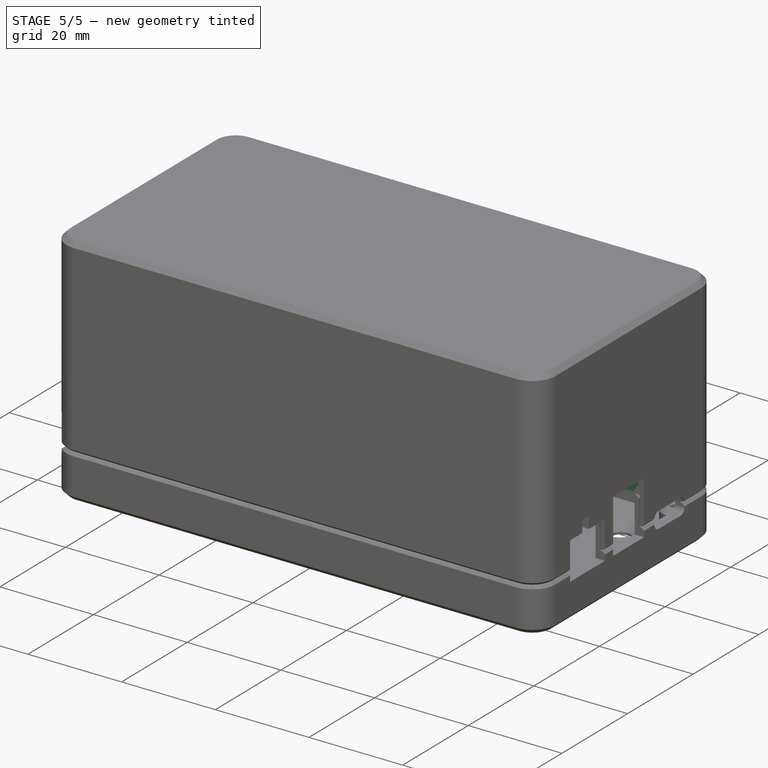
[diagram: stage 5 of 5 — iso view after this stage's code; geometry added in this stage tinted green]
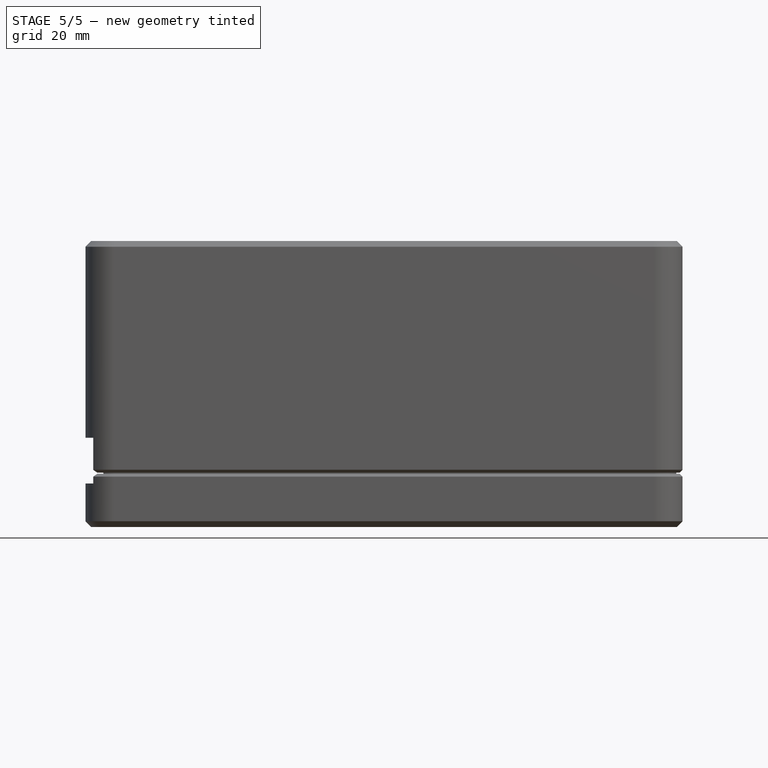
[diagram: stage 5 of 5 — front view after this stage's code; geometry added in this stage tinted green]
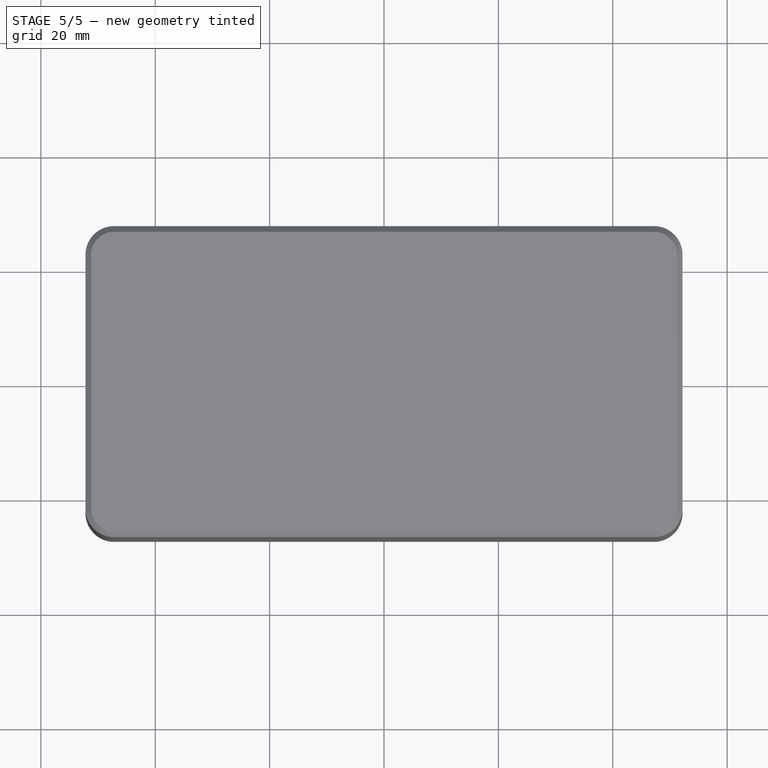
[diagram: stage 5 of 5 — top view after this stage's code; geometry added in this stage tinted green]
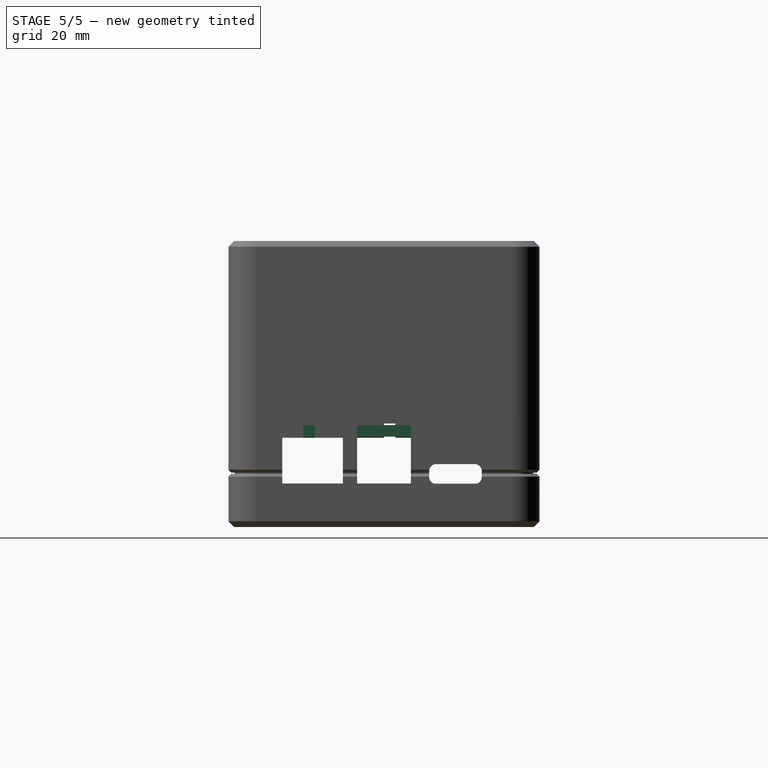
[diagram: stage 5 of 5 — right view after this stage's code; geometry added in this stage tinted green]
FEATURE [Sketcher::SketchObject] Sketch007  label="Screwholes001"
  FullyConstrained = true
  MapMode = 5
  Placement = pos=(0,0,2) rot=(0,0,1;0rad)
  Support = -> [DatumPlane001]
  sketch-geometry (4):
    g0: Circle CenterX=-40 CenterY=15 CenterZ=0 NormalX=0 NormalY=0 NormalZ=1 AngleXU=0 Radius=2
    g1: Circle CenterX=40 CenterY=15 CenterZ=0 NormalX=0 NormalY=0 NormalZ=1 AngleXU=0 Radius=2
    g2: Circle CenterX=40 CenterY=-15 CenterZ=0 NormalX=0 NormalY=0 NormalZ=1 AngleXU=0 Radius=2
    g3: Circle CenterX=-40 CenterY=-15 CenterZ=0 NormalX=0 NormalY=0 NormalZ=1 AngleXU=0 Radius=2
  constraints (10):
    c: Equal(g0,g1)
    c: Equal(g1,g2)
    c: Equal(g2,g3)
    c: Diameter(g1) = 4
    c: Horizontal(g2,g3)
    c: Vertical(g2,g1)
    c: Symmetric(g0,g3,g-1)
    c: DistanceY(g3,g0) = 30
    c: DistanceX(g0,g1) = 80
    c: Symmetric(g1,g0,g-2)
FEATURE [PartDesign::Plane] DatumPlane002  label="Top"
  AttachmentOffset = pos=(0,0,17.8) rot=(0,0,1;0rad)
  Length = 119.472
  MapMode = 5
  Placement = pos=(0,0,17.8) rot=(0,0,1;0rad)
  ResizeMode = 0
  Support = -> [XY_Plane191]
  Width = 69.4723
  expr: .AttachmentOffset.Base.z = <<Variables>>.SlimWall
FEATURE [Sketcher::SketchObject] Sketch008
  FullyConstrained = true
  MapMode = 5
  Placement = pos=(0,0,17.8) rot=(0,0,1;0rad)
  Support = -> [DatumPlane002]
  sketch-geometry (8):
    g0: ArcOfCircle CenterX=-47.2 CenterY=22.2 CenterZ=0 NormalX=0 NormalY=0 NormalZ=1 AngleXU=0 Radius=5 StartAngle=1.5708 EndAngle=3.14159
    g1: ArcOfCircle CenterX=-47.2 CenterY=22.2 CenterZ=0 NormalX=0 NormalY=0 NormalZ=1 AngleXU=0 Radius=3 StartAngle=1.5708 EndAngle=3.14159
    g2: LineSegment StartX=-47.2 StartY=27.2 StartZ=0 EndX=0 EndY=27.2 EndZ=0
    g3: LineSegment StartX=0 StartY=27.2 StartZ=0 EndX=0 EndY=25.2 EndZ=0
    g4: LineSegment StartX=0 StartY=25.2 StartZ=0 EndX=-47.2 EndY=25.2 EndZ=0
    g5: LineSegment StartX=-50.2 StartY=22.2 StartZ=0 EndX=-50.2 EndY=0 EndZ=0
    g6: LineSegment StartX=-50.2 StartY=0 StartZ=0 EndX=-52.2 EndY=0 EndZ=0
    g7: LineSegment StartX=-52.2 StartY=0 StartZ=0 EndX=-52.2 EndY=22.2 EndZ=0
  constraints (25):
    c: Coincident(g1,g0)
    c: Vertical(g0,g1)
    c: Vertical(g1,g0)
    c: Horizontal(g0,g1)
    c: Horizontal(g1,g0)
    c: Radius(g1) = 3
    c: Radius(g0) = 5
    c: Coincident(g2,g0)
    c: PointOnObject(g2,g-2)
    c: Horizontal(g2)
    c: Coincident(g3,g2)
    c: PointOnObject(g3,g-2)
    c: Coincident(g4,g3)
    c: Coincident(g4,g1)
    c: Horizontal(g4)
    c: Coincident(g5,g1)
    c: PointOnObject(g5,g-1)
    c: Vertical(g5)
    c: Coincident(g6,g5)
    c: PointOnObject(g6,g-1)
    c: Coincident(g7,g6)
    c: Coincident(g7,g0)
    c: Vertical(g7)
    c: DistanceY(g-1,g0) = 22.2
    c: DistanceX(g0,g-1) = 47.2
FEATURE [PartDesign::Pad] Pad006
  Direction = (1,1,1)
  Length = 8.3
  Length2 = 100
  Placement = pos=(0,0,17.8) rot=(0,0,1;0rad)
  Profile = -> Sketch008
  Refine = true
  Reversed = true
  Type = 0
  expr: Length = <<Variables>>.SlimWall - <<Variables>>.BotWall + <<Variables>>.Overlap - 0.2
FEATURE [Sketcher::SketchObject] Sketch009
  FullyConstrained = true
  MapMode = 5
  Placement = pos=(0,0,9.5) rot=(1,0,0;3.14159rad)
  Support = -> [Pad006]
  sketch-geometry (8):
    g0: ArcOfCircle CenterX=-47.2 CenterY=-22.2 CenterZ=0 NormalX=0 NormalY=0 NormalZ=1 AngleXU=0 Radius=3 StartAngle=3.14159 EndAngle=4.71239
    g1: ArcOfCircle CenterX=-47.2 CenterY=-22.2 CenterZ=0 NormalX=0 NormalY=0 NormalZ=1 AngleXU=0 Radius=4.1 StartAngle=3.14159 EndAngle=4.71239
    g2: LineSegment StartX=-50.2 StartY=-22.2 StartZ=0 EndX=-50.2 EndY=0 EndZ=0
    g3: LineSegment StartX=-50.2 StartY=0 StartZ=0 EndX=-51.3 EndY=0 EndZ=0
    g4: LineSegment StartX=-51.3 StartY=0 StartZ=0 EndX=-51.3 EndY=-22.2 EndZ=0
    g5: LineSegment StartX=-47.2 StartY=-25.2 StartZ=0 EndX=0 EndY=-25.2 EndZ=0
    g6: LineSegment StartX=0 StartY=-25.2 StartZ=0 EndX=0 EndY=-26.3 EndZ=0
    g7: LineSegment StartX=0 StartY=-26.3 StartZ=0 EndX=-47.2 EndY=-26.3 EndZ=0
  constraints (25):
    c: Coincident(g1,g0)
    c: Horizontal(g1,g0)
    c: Horizontal(g0,g0)
    c: Vertical(g0,g0)
    c: Vertical(g0,g1)
    c: Radius(g0) = 3
    c: DistanceX(g1,g0) = 1.1
    c: DistanceY(g0,g-1) = 22.2
    c: DistanceX(g0,g-1) = 47.2
    c: Coincident(g2,g0)
    c: PointOnObject(g2,g-1)
    c: Vertical(g2)
    c: Coincident(g3,g2)
    c: PointOnObject(g3,g-1)
    c: Coincident(g4,g3)
    c: Vertical(g4)
    c: Coincident(g4,g1)
    c: Coincident(g5,g0)
    c: PointOnObject(g5,g-2)
    c: Horizontal(g5)
    c: Coincident(g6,g5)
    c: PointOnObject(g6,g-2)
    c: Coincident(g7,g6)
    c: Coincident(g7,g1)
    c: Horizontal(g7)
FEATURE [PartDesign::Pocket] Pocket
  BaseFeature = -> Pad006
  Length = 6
  Length2 = 100
  Placement = pos=(0,0,17.8) rot=(0,0,1;0rad)
  Profile = -> Sketch009
  Refine = true
  Type = 0
  expr: Length = <<Variables>>.Overlap
FEATURE [PartDesign::Mirrored] Mirrored010
  MirrorPlane = -> Sketch008 [V_Axis]
  Overlap = 0
  Placement = pos=(0,0,17.8) rot=(0,0,1;0rad)
  Refine = true
FEATURE [PartDesign::Mirrored] Mirrored011
  MirrorPlane = -> Sketch008 [H_Axis]
  Overlap = 0
  Placement = pos=(0,0,17.8) rot=(0,0,1;0rad)
  Refine = true
FEATURE [PartDesign::MultiTransform] MultiTransform004
  BaseFeature = -> Pocket
  Originals = -> [Pad006,Pocket]
  Overlap = 0
  Placement = pos=(0,0,17.8) rot=(0,0,1;0rad)
  Refine = true
  Transformations = -> [Mirrored010,Mirrored011]
FEATURE [Sketcher::SketchObject] Sketch011
  FullyConstrained = true
  MapMode = 5
  Placement = pos=(0,0,17.8) rot=(0,0,1;0rad)
  Support = -> [DatumPlane002]
  sketch-geometry (5):
    g0: ArcOfCircle CenterX=-47.2 CenterY=22.2 CenterZ=0 NormalX=0 NormalY=0 NormalZ=1 AngleXU=0 Radius=3 StartAngle=1.5708 EndAngle=3.14159
    g1: LineSegment StartX=-50.2 StartY=22.2 StartZ=0 EndX=-50.2 EndY=0 EndZ=0
    g2: LineSegment StartX=-50.2 StartY=0 StartZ=0 EndX=0 EndY=0 EndZ=0
    g3: LineSegment StartX=0 StartY=0 StartZ=0 EndX=0 EndY=25.2 EndZ=0
    g4: LineSegment StartX=0 StartY=25.2 StartZ=0 EndX=-47.2 EndY=25.2 EndZ=0
  constraints (15):
    c: Coincident(g1,g0)
    c: PointOnObject(g1,g-1)
    c: Vertical(g1)
    c: Coincident(g2,g1)
    c: Coincident(g2,g-1)
    c: Coincident(g3,g2)
    c: PointOnObject(g3,g-2)
    c: Coincident(g4,g3)
    c: Coincident(g4,g0)
    c: Horizontal(g4)
    c: Vertical(g0,g0)
    c: Horizontal(g0,g0)
    c: Radius(g0) = 3
    c: DistanceY(g2,g0) = 22.2
    c: DistanceX(g0,g2) = 47.2
FEATURE [PartDesign::Pad] Pad007
  BaseFeature = -> MultiTransform004
  Direction = (1,1,1)
  Length = 2
  Length2 = 100
  Placement = pos=(0,0,17.8) rot=(0,0,1;0rad)
  Profile = -> Sketch011
  Refine = true
  Reversed = true
  Type = 0
FEATURE [PartDesign::Mirrored] Mirrored014
  MirrorPlane = -> Sketch011 [V_Axis]
  Overlap = 0
  Placement = pos=(0,0,17.8) rot=(0,0,1;0rad)
  Refine = true
FEATURE [PartDesign::Mirrored] Mirrored015
  MirrorPlane = -> Sketch011 [H_Axis]
  Overlap = 0
  Placement = pos=(0,0,17.8) rot=(0,0,1;0rad)
  Refine = true
FEATURE [PartDesign::MultiTransform] MultiTransform006
  BaseFeature = -> Pad007
  Originals = -> [Pad007]
  Overlap = 0
  Placement = pos=(0,0,17.8) rot=(0,0,1;0rad)
  Refine = true
  Transformations = -> [Mirrored014,Mirrored015]
FEATURE [Sketcher::SketchObject] Sketch013
  FullyConstrained = true
  MapMode = 5
  Placement = pos=(0,0,0) rot=(0.57735,0.57735,0.57735;2.0944rad)
  Support = -> [YZ_Plane191]
  expr: Constraints[5] = <<Variables>>.BotWall - <<Variables>>.Overlap / 2
  sketch-geometry (2):
    g0: ArcOfCircle CenterX=-26.1 CenterY=12.3 CenterZ=0 NormalX=0 NormalY=0 NormalZ=1 AngleXU=0 Radius=0.6 StartAngle=1.5708 EndAngle=4.71239
    g1: LineSegment StartX=-26.1 StartY=12.9 StartZ=0 EndX=-26.1 EndY=11.7 EndZ=0
  constraints (7):
    c: Coincident(g1,g0)
    c: Coincident(g1,g0)
    c: Vertical(g1)
    c: Vertical(g0,g0)
    c: Radius(g0) = 0.6
    c: DistanceY(g-1,g0) = 12.3
    c: DistanceX(g0,g-1) = 26.1
FEATURE [PartDesign::Pocket] Pocket003
  BaseFeature = -> MultiTransform006
  Length = 61
  Length2 = 100
  Midplane = true
  Placement = pos=(0,0,17.8) rot=(0,0,1;0rad)
  Profile = -> Sketch013
  Refine = true
  Type = 0
FEATURE [PartDesign::Pad] Pad009
  BaseFeature = -> Pocket003
  Direction = (1,1,1)
  Length = 39
  Length2 = 100
  Midplane = true
  Placement = pos=(0,0,17.8) rot=(0,0,1;0rad)
  Profile = -> Sketch013
  Refine = true
  Type = 0
FEATURE [PartDesign::Pocket] Pocket004
  BaseFeature = -> Pad009
  Length = 0.2
  Length2 = 100
  Placement = pos=(0,0,17.8) rot=(0,0,1;0rad)
  Profile = -> Pad009 [Face36]
  Refine = true
  Type = 0
FEATURE [PartDesign::Mirrored] Mirrored017
  BaseFeature = -> Pocket004
  MirrorPlane = -> Sketch013 [V_Axis]
  Originals = -> [Pocket003,Pad009,Pocket004]
  Overlap = 0
  Placement = pos=(0,0,17.8) rot=(0,0,1;0rad)
  Refine = true
FEATURE [PartDesign::Chamfer] Chamfer005
  Angle = 45
  Base = -> Mirrored017 [Edge19]
  BaseFeature = -> Mirrored017
  ChamferType = 0
  FlipDirection = false
  Placement = pos=(0,0,17.8) rot=(0,0,1;0rad)
  Refine = true
  Size = 0.5
  Size2 = 1
  SupportTransform = false
FEATURE [PartDesign::Chamfer] Chamfer006
  Angle = 45
  Base = -> Chamfer005 [Edge13]
  BaseFeature = -> Chamfer005
  ChamferType = 0
  FlipDirection = false
  Placement = pos=(0,0,17.8) rot=(0,0,1;0rad)
  Refine = true
  Size = 1
  Size2 = 1
  SupportTransform = false
FEATURE [PartDesign::Chamfer] Chamfer007
  Angle = 45
  Base = -> Chamfer006 [Edge122]
  BaseFeature = -> Chamfer006
  ChamferType = 0
  FlipDirection = false
  Placement = pos=(0,0,17.8) rot=(0,0,1;0rad)
  Refine = true
  Size = 0.2999
  Size2 = 1
  SupportTransform = false
FEATURE [PartDesign::Pocket] Pocket010  label="HolesTop"
  BaseFeature = -> Chamfer007
  Length = 5
  Length2 = 100
  Placement = pos=(0,0,17.8) rot=(0,0,1;0rad)
  Profile = -> Sketch030
  Refine = true
  Type = 0
FEATURE [PartDesign::Pocket] Pocket011  label="HoleDC"
  BaseFeature = -> Pocket010
  Length = 10
  Length2 = 100
  Placement = pos=(0,0,17.8) rot=(0,0,1;0rad)
  Profile = -> Sketch017
  Refine = true
  Type = 0
FEATURE [PartDesign::Pocket] Pocket012  label="HoleBarrel"
  BaseFeature = -> Pocket011
  Length = 15
  Length2 = 100
  Placement = pos=(0,0,17.8) rot=(0,0,1;0rad)
  Profile = -> Sketch018
  Refine = true
  Type = 0
FEATURE [PartDesign::Pocket] Pocket013  label="HoleUSB"
  BaseFeature = -> Pocket012
  Length = 5
  Length2 = 100
  Placement = pos=(0,0,17.8) rot=(0,0,1;0rad)
  Profile = -> Sketch019
  Refine = true
  Type = 0
FEATURE [PartDesign::Pocket] Pocket014  label="HoleJ1"
  BaseFeature = -> Pocket013
  Length = 10
  Length2 = 100
  Placement = pos=(0,0,17.8) rot=(0,0,1;0rad)
  Profile = -> Sketch026
  Refine = true
  Type = 0
FEATURE [PartDesign::Pocket] Pocket015  label="HoleJ2"
  BaseFeature = -> Pocket014
  Length = 10
  Length2 = 100
  Placement = pos=(0,0,17.8) rot=(0,0,1;0rad)
  Profile = -> Sketch027
  Refine = true
  Type = 0
FEATURE [PartDesign::Pocket] Pocket016  label="HoleJ3"
  BaseFeature = -> Pocket015
  Length = 10
  Length2 = 100
  Placement = pos=(0,0,17.8) rot=(0,0,1;0rad)
  Profile = -> Sketch025
  Refine = true
  Type = 0
FEATURE [PartDesign::Pocket] Pocket017  label="HoleJ4"
  BaseFeature = -> Pocket016
  Length = 10
  Length2 = 100
  Placement = pos=(0,0,17.8) rot=(0,0,1;0rad)
  Profile = -> Sketch028
  Refine = true
  Type = 0
FEATURE [PartDesign::Pocket] Pocket018  label="HoleJ5"
  BaseFeature = -> Pocket017
  Length = 10
  Length2 = 100
  Placement = pos=(0,0,17.8) rot=(0,0,1;0rad)
  Profile = -> Sketch029
  Refine = true
  Type = 0
FEATURE [PartDesign::Pocket] Pocket020  label="BHoleBarrel"
  BaseFeature = -> Pocket019
  Length = 5
  Length2 = 100
  Profile = -> Sketch015
  Refine = true
  Type = 0
FEATURE [PartDesign::Pocket] Pocket021  label="BHoleDC"
  BaseFeature = -> Pocket020
  Length = 10
  Length2 = 100
  Profile = -> Sketch016
  Refine = true
  Type = 0
FEATURE [PartDesign::Pocket] Pocket022  label="BHoleJ1"
  BaseFeature = -> Pocket021
  Length = 10
  Length2 = 100
  Profile = -> Sketch021
  Refine = true
  Type = 0
FEATURE [PartDesign::Pocket] Pocket023  label="BHoleJ2"
  BaseFeature = -> Pocket022
  Length = 10
  Length2 = 100
  Profile = -> Sketch022
  Refine = true
  Type = 0
FEATURE [PartDesign::Pocket] Pocket024  label="BHoleJ3"
  BaseFeature = -> Pocket023
  Length = 10
  Length2 = 100
  Profile = -> Sketch020
  Refine = true
  Type = 0
FEATURE [PartDesign::Pocket] Pocket025  label="BHoleJ4"
  BaseFeature = -> Pocket024
  Length = 10
  Length2 = 100
  Profile = -> Sketch023
  Refine = true
  Type = 0
FEATURE [PartDesign::Pocket] Pocket026  label="BHoleJ5"
  BaseFeature = -> Pocket025
  Length = 10
  Length2 = 100
  Profile = -> Sketch024
  Refine = true
  Type = 0
FEATURE [PartDesign::Pocket] Pocket027  label="Screwholes003"
  BaseFeature = -> Pocket026
  Length = 5
  Length2 = 100
  Profile = -> Sketch007
  Refine = true
  Type = 0
FEATURE [PartDesign::Chamfer] Chamfer016  label="ScrewholeChamfer"
  Angle = 45
  Base = -> Pocket027 [Edge202,Edge203,Edge201,Edge200]
  BaseFeature = -> Pocket027
  ChamferType = 0
  FlipDirection = false
  Refine = true
  Size = 1.5
  Size2 = 1
  SupportTransform = false
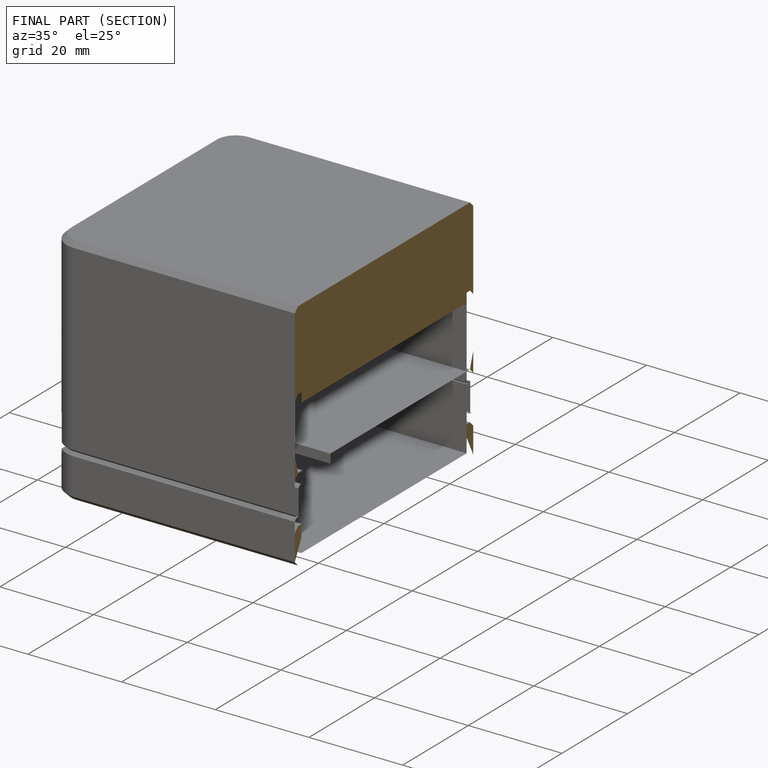
[diagram: finished part — half-section view (interior)]
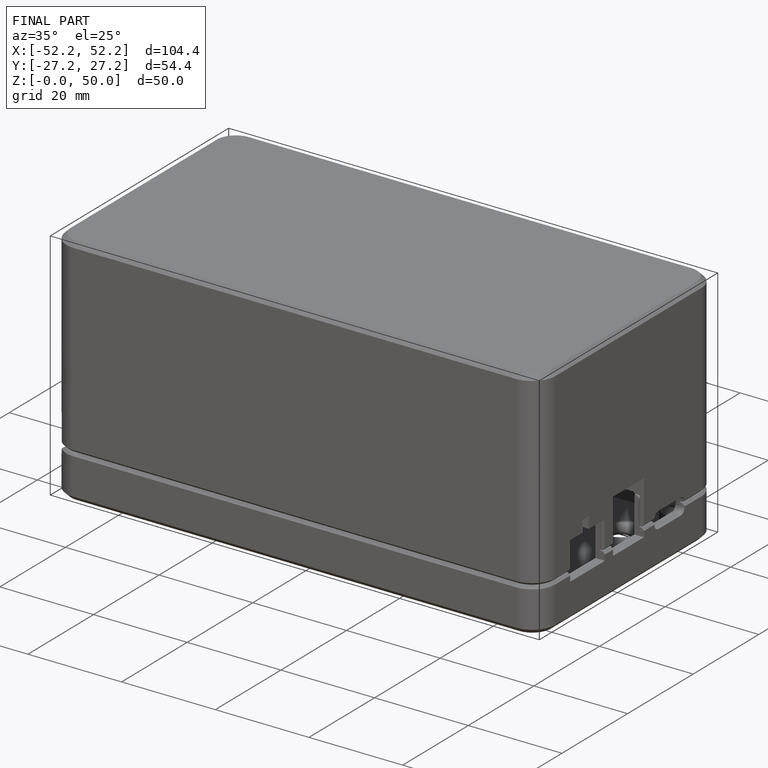
[diagram: finished part — iso view with bounding-box wireframe]
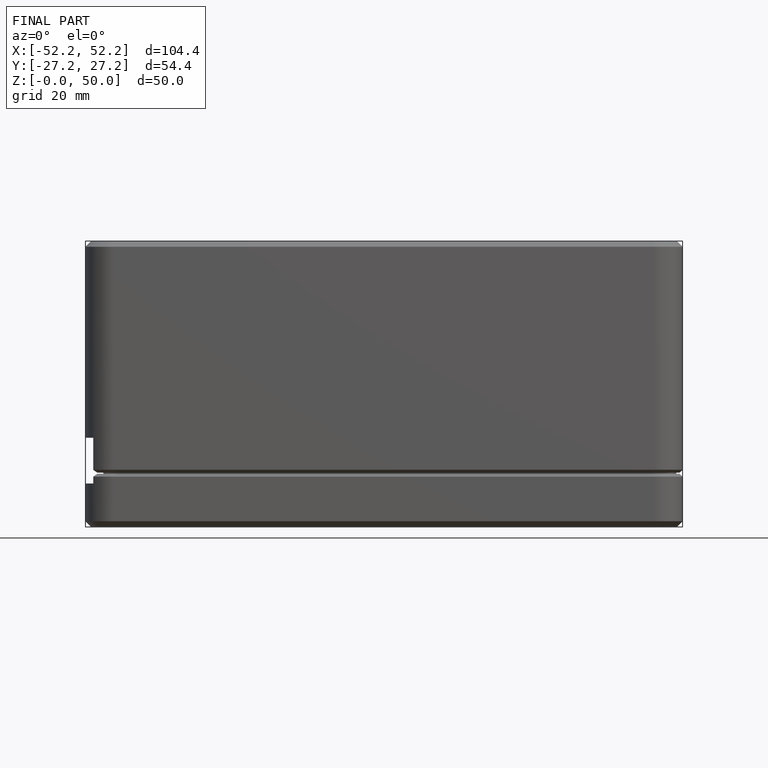
[diagram: finished part — front view with bounding-box wireframe]
